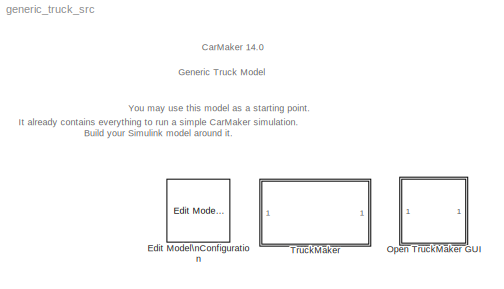
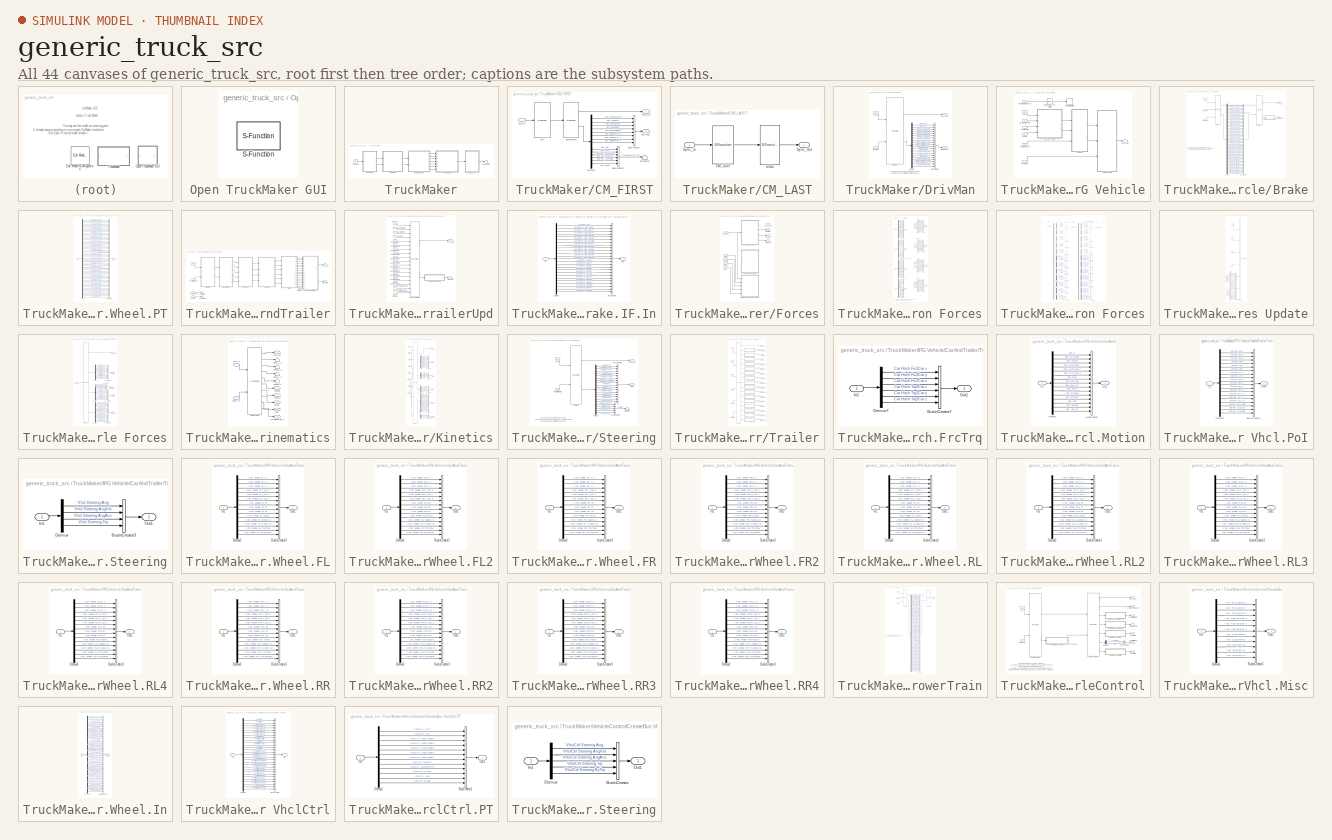
[diagram: thumbnail index - all 44 canvases of the model, root first then tree order]
MODEL generic_truck_src
KIND model
BLOCK [Reference] Edit Model\nConfiguration  REF=TruckMaker4SL/Edit Model\nConfiguration
  MultithreadedSim = auto
  Ports = []
  SFunctionModules = ''
  SID = 758
  SourceBlock = TruckMaker4SL/Edit Model\nConfiguration
  SourceProductName = TruckMaker4SL
BLOCK [SubSystem] Open TruckMaker GUI
  LoadFcn = if ~length(which('cmself')), cmenv; end
  OpenFcn = cmblockmagic('gui_fix_display'); TM_Simulink
  Ports = []
  RequestExecContextInheritance = off
  SID = 759
BLOCK [S-Function] Open TruckMaker GUI/S-Function
  EnableBusSupport = off
  FunctionName = cm_gui
  Ports = []
  SFcnIsStateOwnerBlock = off
  SFunctionDeploymentMode = off
  SID = 761
BLOCK [SubSystem] TruckMaker
  Ports = []
  RequestExecContextInheritance = off
  SID = 2126
  TreatAsAtomicUnit = on
BLOCK [SubSystem] TruckMaker/CM_FIRST
  Ports = [1, 2]
  RequestExecContextInheritance = off
  SID = 2127
BLOCK [BusCreator] TruckMaker/CM_FIRST/BusCreator1
  InheritFromInputs = on
  Inputs = 8
  Ports = [8, 1]
  SID = 2129
BLOCK [BusCreator] TruckMaker/CM_FIRST/BusCreator2
  InheritFromInputs = on
  Inputs = 6
  Ports = [6, 1]
  SID = 2130
BLOCK [Demux] TruckMaker/CM_FIRST/Demux1
  DisplayOption = none
  Outputs = 14
  Ports = [1, 14]
  SID = 2131
BLOCK [Outport] TruckMaker/CM_FIRST/Env.Misc
  Port = 2
  SID = 2136
  VectorParamsAs1DForOutWhenUnconnected = off
BLOCK [S-Function] TruckMaker/CM_FIRST/Environment
  EnableBusSupport = off
  FunctionName = TM_Sfun
  Parameters = 'Environment'
  Ports = [1, 2]
  SFcnIsStateOwnerBlock = off
  SFunctionDeploymentMode = off
  SID = 2132
BLOCK [S-Function] TruckMaker/CM_FIRST/IoIn
  EnableBusSupport = off
  FunctionName = TM_Sfun
  Parameters = 'IoIn'
  Ports = [1, 1]
  SFcnIsStateOwnerBlock = off
  SFunctionDeploymentMode = off
  SID = 2133
BLOCK [Inport] TruckMaker/CM_FIRST/Sync_In
  SID = 2128
BLOCK [Outport] TruckMaker/CM_FIRST/Sync_Out
  SID = 2135
  VectorParamsAs1DForOutWhenUnconnected = off
BLOCK [Terminator] TruckMaker/CM_FIRST/Terminator
  SID = 2134
BLOCK [SubSystem] TruckMaker/CM_LAST
  Ports = [1, 1]
  RequestExecContextInheritance = off
  SID = 2137
BLOCK [S-Function] TruckMaker/CM_LAST/CM_User
  EnableBusSupport = off
  FunctionName = TM_Sfun
  Parameters = 'CM_User'
  Ports = [1, 1]
  SFcnIsStateOwnerBlock = off
  SFunctionDeploymentMode = off
  SID = 2139
BLOCK [S-Function] TruckMaker/CM_LAST/IoOut
  EnableBusSupport = off
  FunctionName = TM_Sfun
  Parameters = 'IoOut'
  Ports = [1, 1]
  SFcnIsStateOwnerBlock = off
  SFunctionDeploymentMode = off
  SID = 2140
BLOCK [Inport] TruckMaker/CM_LAST/Sync_In
  SID = 2138
BLOCK [Outport] TruckMaker/CM_LAST/Sync_Out
  SID = 2141
  VectorParamsAs1DForOutWhenUnconnected = off
BLOCK [SubSystem] TruckMaker/DrivMan
  Ports = [2, 2]
  RequestExecContextInheritance = off
  SID = 2142
BLOCK [BusCreator] TruckMaker/DrivMan/BusCreator
  InheritFromInputs = on
  Inputs = 20
  Ports = [20, 1]
  SID = 2145
BLOCK [Demux] TruckMaker/DrivMan/Demux
  DisplayOption = none
  Outputs = 20
  Ports = [1, 20]
  SID = 2146
BLOCK [S-Function] TruckMaker/DrivMan/DrivMan
  EnableBusSupport = off
  FunctionName = TM_Sfun
  Parameters = 'DrivMan'
  Ports = [2, 2]
  SFcnIsStateOwnerBlock = off
  SFunctionDeploymentMode = off
  SID = 2147
BLOCK [Outport] TruckMaker/DrivMan/DrivMan.Out
  Port = 2
  SID = 2149
  VectorParamsAs1DForOutWhenUnconnected = off
BLOCK [Inport] TruckMaker/DrivMan/Env.Misc
  Port = 2
  SID = 2144
BLOCK [Inport] TruckMaker/DrivMan/Sync_In
  SID = 2143
BLOCK [Outport] TruckMaker/DrivMan/Sync_Out
  SID = 2148
  VectorParamsAs1DForOutWhenUnconnected = off
BLOCK [Ground] TruckMaker/Ground
  SID = 2151
BLOCK [SubSystem] TruckMaker/IPG Vehicle
  Ports = [7, 1]
  RequestExecContextInheritance = off
  SID = 2152
  TreatAsAtomicUnit = on
BLOCK [SubSystem] TruckMaker/IPG Vehicle/Brake
  Ports = [3, 2]
  RequestExecContextInheritance = off
  SID = 2600
BLOCK [S-Function] TruckMaker/IPG Vehicle/Brake/Brake
  EnableBusSupport = off
  FunctionName = TM_Sfun
  Parameters = 'Brake'
  Ports = [3, 2]
  SFcnIsStateOwnerBlock = off
  SFunctionDeploymentMode = off
  SID = 2604
BLOCK [Inport] TruckMaker/IPG Vehicle/Brake/Brake.IF.In
  Port = 2
  SID = 2602
BLOCK [S-Function] TruckMaker/IPG Vehicle/Brake/BrakeUpd
  EnableBusSupport = off
  FunctionName = TM_Sfun
  Parameters = 'BrakeUpd'
  Ports = [2, 2]
  SFcnIsStateOwnerBlock = off
  SFunctionDeploymentMode = off
  SID = 2605
BLOCK [BusCreator] TruckMaker/IPG Vehicle/Brake/BusCreator
  InheritFromInputs = on
  Inputs = 48
  Ports = [48, 1]
  SID = 2606
BLOCK [SubSystem] TruckMaker/IPG Vehicle/Brake/CreateBus Vhcl.Wheel.PT
  Ports = [1, 1]
  RequestExecContextInheritance = off
  SID = 2607
BLOCK [BusCreator] TruckMaker/IPG Vehicle/Brake/CreateBus Vhcl.Wheel.PT/BusCreator
  InheritFromInputs = on
  Inputs = 60
  Ports = [60, 1]
  SID = 2609
BLOCK [Demux] TruckMaker/IPG Vehicle/Brake/CreateBus Vhcl.Wheel.PT/Demux
  DisplayOption = none
  Outputs = 60
  Ports = [1, 60]
  SID = 2610
BLOCK [Inport] TruckMaker/IPG Vehicle/Brake/CreateBus Vhcl.Wheel.PT/In
  SID = 2608
BLOCK [Outport] TruckMaker/IPG Vehicle/Brake/CreateBus Vhcl.Wheel.PT/Out
  SID = 2611
  VectorParamsAs1DForOutWhenUnconnected = off
BLOCK [Demux] TruckMaker/IPG Vehicle/Brake/Demux
  DisplayOption = none
  Outputs = 48
  Ports = [1, 48]
  SID = 2612
BLOCK [Inport] TruckMaker/IPG Vehicle/Brake/Sync_In
  SID = 2601
BLOCK [Outport] TruckMaker/IPG Vehicle/Brake/Sync_Out
  SID = 2613
  VectorParamsAs1DForOutWhenUnconnected = off
BLOCK [Outport] TruckMaker/IPG Vehicle/Brake/Vhcl.Wheel.PT
  Port = 2
  SID = 2614
  VectorParamsAs1DForOutWhenUnconnected = off
BLOCK [Inport] TruckMaker/IPG Vehicle/Brake/VhclCtrl.Brake
  Port = 3
  SID = 2603
BLOCK [SubSystem] TruckMaker/IPG Vehicle/CarAndTrailer
  Ports = [4, 2]
  RequestExecContextInheritance = off
  SID = 2177
BLOCK [Outport] TruckMaker/IPG Vehicle/CarAndTrailer/Brake.IF.In
  Port = 2
  SID = 2543
  VectorParamsAs1DForOutWhenUnconnected = off
BLOCK [SubSystem] TruckMaker/IPG Vehicle/CarAndTrailer/CarAndTrailerUpd
  Ports = [18, 2]
  RequestExecContextInheritance = off
  SID = 2182
BLOCK [Outport] TruckMaker/IPG Vehicle/CarAndTrailer/CarAndTrailerUpd/Brake.IF.In
  Port = 2
  SID = 2208
  VectorParamsAs1DForOutWhenUnconnected = off
BLOCK [Inport] TruckMaker/IPG Vehicle/CarAndTrailer/CarAndTrailerUpd/Car.Hitch.FrcTrq
  Port = 17
  SID = 2199
BLOCK [S-Function] TruckMaker/IPG Vehicle/CarAndTrailer/CarAndTrailerUpd/CarAndTrailerUpd
  EnableBusSupport = off
  FunctionName = TM_Sfun
  Parameters = 'CarAndTrUpd'
  Ports = [18, 2]
  SFcnIsStateOwnerBlock = off
  SFunctionDeploymentMode = off
  SID = 2201
BLOCK [SubSystem] TruckMaker/IPG Vehicle/CarAndTrailer/CarAndTrailerUpd/CreateBus Brake.IF.In
  Ports = [1, 1]
  RequestExecContextInheritance = off
  SID = 2202
BLOCK [BusCreator] TruckMaker/IPG Vehicle/CarAndTrailer/CarAndTrailerUpd/CreateBus Brake.IF.In/BusCreator
  InheritFromInputs = on
  Inputs = 25
  Ports = [25, 1]
  SID = 2204
BLOCK [Demux] TruckMaker/IPG Vehicle/CarAndTrailer/CarAndTrailerUpd/CreateBus Brake.IF.In/Demux
  DisplayOption = none
  Outputs = 25
  Ports = [1, 25]
  SID = 2205
BLOCK [Inport] TruckMaker/IPG Vehicle/CarAndTrailer/CarAndTrailerUpd/CreateBus Brake.IF.In/In
  SID = 2203
BLOCK [Outport] TruckMaker/IPG Vehicle/CarAndTrailer/CarAndTrailerUpd/CreateBus Brake.IF.In/Out
  SID = 2206
  VectorParamsAs1DForOutWhenUnconnected = off
BLOCK [Inport] TruckMaker/IPG Vehicle/CarAndTrailer/CarAndTrailerUpd/Sync_In
  SID = 2183
BLOCK [Outport] TruckMaker/IPG Vehicle/CarAndTrailer/CarAndTrailerUpd/Sync_Out
  SID = 2207
  VectorParamsAs1DForOutWhenUnconnected = off
BLOCK [Inport] TruckMaker/IPG Vehicle/CarAndTrailer/CarAndTrailerUpd/Vhcl.Fr1A
  Port = 18
  SID = 2200
BLOCK [Inport] TruckMaker/IPG Vehicle/CarAndTrailer/CarAndTrailerUpd/Vhcl.Motion
  Port = 3
  SID = 2185
BLOCK [Inport] TruckMaker/IPG Vehicle/CarAndTrailer/CarAndTrailerUpd/Vhcl.PoI
  Port = 4
  SID = 2186
BLOCK [Inport] TruckMaker/IPG Vehicle/CarAndTrailer/CarAndTrailerUpd/Vhcl.Steering
  Port = 2
  SID = 2184
BLOCK [Inport] TruckMaker/IPG Vehicle/CarAndTrailer/CarAndTrailerUpd/Vhcl.Wheel.FL
  Port = 5
  SID = 2187
BLOCK [Inport] TruckMaker/IPG Vehicle/CarAndTrailer/CarAndTrailerUpd/Vhcl.Wheel.FL2
  Port = 11
  SID = 2193
BLOCK [Inport] TruckMaker/IPG Vehicle/CarAndTrailer/CarAndTrailerUpd/Vhcl.Wheel.FR
  Port = 6
  SID = 2188
BLOCK [Inport] TruckMaker/IPG Vehicle/CarAndTrailer/CarAndTrailerUpd/Vhcl.Wheel.FR2
  Port = 12
  SID = 2194
BLOCK [Inport] TruckMaker/IPG Vehicle/CarAndTrailer/CarAndTrailerUpd/Vhcl.Wheel.RL
  Port = 7
  SID = 2189
BLOCK [Inport] TruckMaker/IPG Vehicle/CarAndTrailer/CarAndTrailerUpd/Vhcl.Wheel.RL2
  Port = 9
  SID = 2191
BLOCK [Inport] TruckMaker/IPG Vehicle/CarAndTrailer/CarAndTrailerUpd/Vhcl.Wheel.RL3
  Port = 13
  SID = 2195
BLOCK [Inport] TruckMaker/IPG Vehicle/CarAndTrailer/CarAndTrailerUpd/Vhcl.Wheel.RL4
  Port = 15
  SID = 2197
BLOCK [Inport] TruckMaker/IPG Vehicle/CarAndTrailer/CarAndTrailerUpd/Vhcl.Wheel.RR
  Port = 8
  SID = 2190
BLOCK [Inport] TruckMaker/IPG Vehicle/CarAndTrailer/CarAndTrailerUpd/Vhcl.Wheel.RR2
  Port = 10
  SID = 2192
BLOCK [Inport] TruckMaker/IPG Vehicle/CarAndTrailer/CarAndTrailerUpd/Vhcl.Wheel.RR3
  Port = 14
  SID = 2196
BLOCK [Inport] TruckMaker/IPG Vehicle/CarAndTrailer/CarAndTrailerUpd/Vhcl.Wheel.RR4
  Port = 16
  SID = 2198
BLOCK [SubSystem] TruckMaker/IPG Vehicle/CarAndTrailer/Forces
  Ports = [5, 4]
  RequestExecContextInheritance = off
  SID = 2209
BLOCK [Outport] TruckMaker/IPG Vehicle/CarAndTrailer/Forces/Car.Aero
  Port = 3
  SID = 2374
  VectorParamsAs1DForOutWhenUnconnected = off
BLOCK [Outport] TruckMaker/IPG Vehicle/CarAndTrailer/Forces/Car.Load
  Port = 4
  SID = 2375
  VectorParamsAs1DForOutWhenUnconnected = off
BLOCK [Outport] TruckMaker/IPG Vehicle/CarAndTrailer/Forces/Car.Virtual
  Port = 2
  SID = 2373
  VectorParamsAs1DForOutWhenUnconnected = off
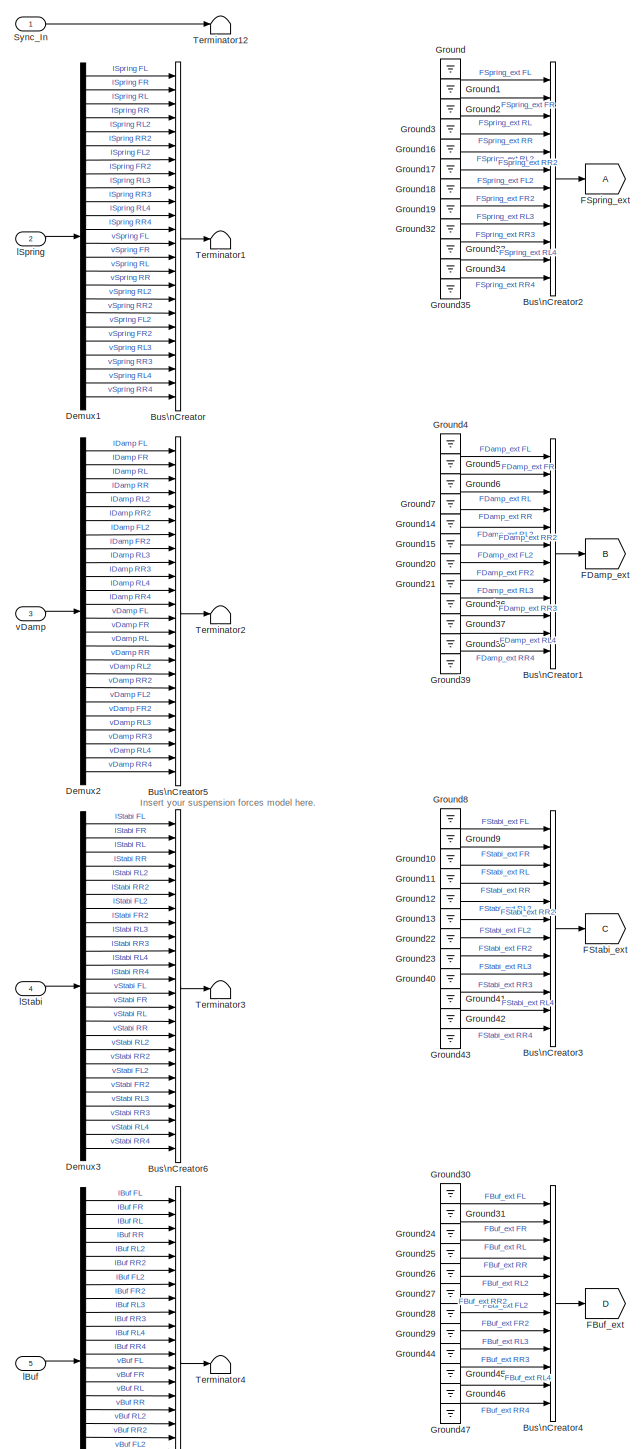
[diagram: TruckMaker/IPG Vehicle/CarAndTrailer/Forces/External Suspension Forces - part 1/2, most of the canvas]
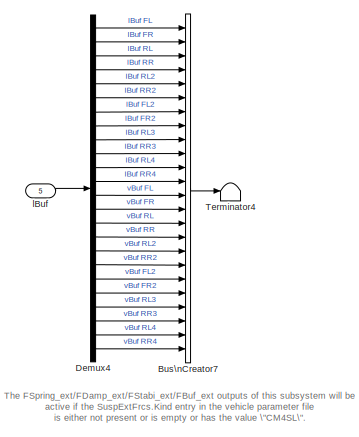
[diagram: TruckMaker/IPG Vehicle/CarAndTrailer/Forces/External Suspension Forces - part 2/2, bottom left region]
BLOCK [SubSystem] TruckMaker/IPG Vehicle/CarAndTrailer/Forces/External Suspension Forces
  Ports = [5]
  RequestExecContextInheritance = off
  SID = 2215
BLOCK [BusCreator] TruckMaker/IPG Vehicle/CarAndTrailer/Forces/External Suspension Forces/Bus\nCreator
  DisplayOption = bar
  InheritFromInputs = on
  Inputs = 24
  Ports = [24, 1]
  SID = 2221
BLOCK [BusCreator] TruckMaker/IPG Vehicle/CarAndTrailer/Forces/External Suspension Forces/Bus\nCreator1
  DisplayOption = bar
  InheritFromInputs = on
  Inputs = 12
  Ports = [12, 1]
  SID = 2222
BLOCK [BusCreator] TruckMaker/IPG Vehicle/CarAndTrailer/Forces/External Suspension Forces/Bus\nCreator2
  DisplayOption = bar
  InheritFromInputs = on
  Inputs = 12
  Ports = [12, 1]
  SID = 2223
BLOCK [BusCreator] TruckMaker/IPG Vehicle/CarAndTrailer/Forces/External Suspension Forces/Bus\nCreator3
  DisplayOption = bar
  InheritFromInputs = on
  Inputs = 12
  Ports = [12, 1]
  SID = 2224
BLOCK [BusCreator] TruckMaker/IPG Vehicle/CarAndTrailer/Forces/External Suspension Forces/Bus\nCreator4
  DisplayOption = bar
  InheritFromInputs = on
  Inputs = 12
  Ports = [12, 1]
  SID = 2225
BLOCK [BusCreator] TruckMaker/IPG Vehicle/CarAndTrailer/Forces/External Suspension Forces/Bus\nCreator5
  DisplayOption = bar
  InheritFromInputs = on
  Inputs = 24
  Ports = [24, 1]
  SID = 2226
BLOCK [BusCreator] TruckMaker/IPG Vehicle/CarAndTrailer/Forces/External Suspension Forces/Bus\nCreator6
  DisplayOption = bar
  InheritFromInputs = on
  Inputs = 24
  Ports = [24, 1]
  SID = 2227
BLOCK [BusCreator] TruckMaker/IPG Vehicle/CarAndTrailer/Forces/External Suspension Forces/Bus\nCreator7
  DisplayOption = bar
  InheritFromInputs = on
  Inputs = 24
  Ports = [24, 1]
  SID = 2228
BLOCK [Demux] TruckMaker/IPG Vehicle/CarAndTrailer/Forces/External Suspension Forces/Demux1
  DisplayOption = none
  Outputs = 24
  Ports = [1, 24]
  SID = 2229
BLOCK [Demux] TruckMaker/IPG Vehicle/CarAndTrailer/Forces/External Suspension Forces/Demux2
  DisplayOption = none
  Outputs = 24
  Ports = [1, 24]
  SID = 2230
BLOCK [Demux] TruckMaker/IPG Vehicle/CarAndTrailer/Forces/External Suspension Forces/Demux3
  DisplayOption = none
  Outputs = 24
  Ports = [1, 24]
  SID = 2231
BLOCK [Demux] TruckMaker/IPG Vehicle/CarAndTrailer/Forces/External Suspension Forces/Demux4
  DisplayOption = none
  Outputs = 24
  Ports = [1, 24]
  SID = 2232
BLOCK [Goto] TruckMaker/IPG Vehicle/CarAndTrailer/Forces/External Suspension Forces/FBuf_ext
  GotoTag = D
  SID = 2627
  TagVisibility = global
BLOCK [Goto] TruckMaker/IPG Vehicle/CarAndTrailer/Forces/External Suspension Forces/FDamp_ext
  GotoTag = B
  SID = 2624
  TagVisibility = global
BLOCK [Goto] TruckMaker/IPG Vehicle/CarAndTrailer/Forces/External Suspension Forces/FSpring_ext
  SID = 2625
  TagVisibility = global
BLOCK [Goto] TruckMaker/IPG Vehicle/CarAndTrailer/Forces/External Suspension Forces/FStabi_ext
  GotoTag = C
  SID = 2626
  TagVisibility = global
BLOCK [Ground] TruckMaker/IPG Vehicle/CarAndTrailer/Forces/External Suspension Forces/Ground
  SID = 2233
BLOCK [Ground] TruckMaker/IPG Vehicle/CarAndTrailer/Forces/External Suspension Forces/Ground1
  SID = 2234
BLOCK [Ground] TruckMaker/IPG Vehicle/CarAndTrailer/Forces/External Suspension Forces/Ground10
  SID = 2235
BLOCK [Ground] TruckMaker/IPG Vehicle/CarAndTrailer/Forces/External Suspension Forces/Ground11
  SID = 2236
BLOCK [Ground] TruckMaker/IPG Vehicle/CarAndTrailer/Forces/External Suspension Forces/Ground12
  SID = 2237
BLOCK [Ground] TruckMaker/IPG Vehicle/CarAndTrailer/Forces/External Suspension Forces/Ground13
  SID = 2238
BLOCK [Ground] TruckMaker/IPG Vehicle/CarAndTrailer/Forces/External Suspension Forces/Ground14
  SID = 2239
BLOCK [Ground] TruckMaker/IPG Vehicle/CarAndTrailer/Forces/External Suspension Forces/Ground15
  SID = 2240
BLOCK [Ground] TruckMaker/IPG Vehicle/CarAndTrailer/Forces/External Suspension Forces/Ground16
  SID = 2241
BLOCK [Ground] TruckMaker/IPG Vehicle/CarAndTrailer/Forces/External Suspension Forces/Ground17
  SID = 2242
BLOCK [Ground] TruckMaker/IPG Vehicle/CarAndTrailer/Forces/External Suspension Forces/Ground18
  SID = 2243
BLOCK [Ground] TruckMaker/IPG Vehicle/CarAndTrailer/Forces/External Suspension Forces/Ground19
  SID = 2244
BLOCK [Ground] TruckMaker/IPG Vehicle/CarAndTrailer/Forces/External Suspension Forces/Ground2
  SID = 2245
BLOCK [Ground] TruckMaker/IPG Vehicle/CarAndTrailer/Forces/External Suspension Forces/Ground20
  SID = 2246
BLOCK [Ground] TruckMaker/IPG Vehicle/CarAndTrailer/Forces/External Suspension Forces/Ground21
  SID = 2247
BLOCK [Ground] TruckMaker/IPG Vehicle/CarAndTrailer/Forces/External Suspension Forces/Ground22
  SID = 2248
BLOCK [Ground] TruckMaker/IPG Vehicle/CarAndTrailer/Forces/External Suspension Forces/Ground23
  SID = 2249
BLOCK [Ground] TruckMaker/IPG Vehicle/CarAndTrailer/Forces/External Suspension Forces/Ground24
  SID = 2250
BLOCK [Ground] TruckMaker/IPG Vehicle/CarAndTrailer/Forces/External Suspension Forces/Ground25
  SID = 2251
BLOCK [Ground] TruckMaker/IPG Vehicle/CarAndTrailer/Forces/External Suspension Forces/Ground26
  SID = 2252
BLOCK [Ground] TruckMaker/IPG Vehicle/CarAndTrailer/Forces/External Suspension Forces/Ground27
  SID = 2253
BLOCK [Ground] TruckMaker/IPG Vehicle/CarAndTrailer/Forces/External Suspension Forces/Ground28
  SID = 2254
BLOCK [Ground] TruckMaker/IPG Vehicle/CarAndTrailer/Forces/External Suspension Forces/Ground29
  SID = 2255
BLOCK [Ground] TruckMaker/IPG Vehicle/CarAndTrailer/Forces/External Suspension Forces/Ground3
  SID = 2256
BLOCK [Ground] TruckMaker/IPG Vehicle/CarAndTrailer/Forces/External Suspension Forces/Ground30
  SID = 2257
BLOCK [Ground] TruckMaker/IPG Vehicle/CarAndTrailer/Forces/External Suspension Forces/Ground31
  SID = 2258
BLOCK [Ground] TruckMaker/IPG Vehicle/CarAndTrailer/Forces/External Suspension Forces/Ground32
  SID = 2259
BLOCK [Ground] TruckMaker/IPG Vehicle/CarAndTrailer/Forces/External Suspension Forces/Ground33
  SID = 2260
BLOCK [Ground] TruckMaker/IPG Vehicle/CarAndTrailer/Forces/External Suspension Forces/Ground34
  SID = 2261
BLOCK [Ground] TruckMaker/IPG Vehicle/CarAndTrailer/Forces/External Suspension Forces/Ground35
  SID = 2262
BLOCK [Ground] TruckMaker/IPG Vehicle/CarAndTrailer/Forces/External Suspension Forces/Ground36
  SID = 2263
BLOCK [Ground] TruckMaker/IPG Vehicle/CarAndTrailer/Forces/External Suspension Forces/Ground37
  SID = 2264
BLOCK [Ground] TruckMaker/IPG Vehicle/CarAndTrailer/Forces/External Suspension Forces/Ground38
  SID = 2265
BLOCK [Ground] TruckMaker/IPG Vehicle/CarAndTrailer/Forces/External Suspension Forces/Ground39
  SID = 2266
BLOCK [Ground] TruckMaker/IPG Vehicle/CarAndTrailer/Forces/External Suspension Forces/Ground4
  SID = 2267
BLOCK [Ground] TruckMaker/IPG Vehicle/CarAndTrailer/Forces/External Suspension Forces/Ground40
  SID = 2268
BLOCK [Ground] TruckMaker/IPG Vehicle/CarAndTrailer/Forces/External Suspension Forces/Ground41
  SID = 2269
BLOCK [Ground] TruckMaker/IPG Vehicle/CarAndTrailer/Forces/External Suspension Forces/Ground42
  SID = 2270
BLOCK [Ground] TruckMaker/IPG Vehicle/CarAndTrailer/Forces/External Suspension Forces/Ground43
  SID = 2271
BLOCK [Ground] TruckMaker/IPG Vehicle/CarAndTrailer/Forces/External Suspension Forces/Ground44
  SID = 2272
BLOCK [Ground] TruckMaker/IPG Vehicle/CarAndTrailer/Forces/External Suspension Forces/Ground45
  SID = 2273
BLOCK [Ground] TruckMaker/IPG Vehicle/CarAndTrailer/Forces/External Suspension Forces/Ground46
  SID = 2274
BLOCK [Ground] TruckMaker/IPG Vehicle/CarAndTrailer/Forces/External Suspension Forces/Ground47
  SID = 2275
BLOCK [Ground] TruckMaker/IPG Vehicle/CarAndTrailer/Forces/External Suspension Forces/Ground5
  SID = 2276
BLOCK [Ground] TruckMaker/IPG Vehicle/CarAndTrailer/Forces/External Suspension Forces/Ground6
  SID = 2277
BLOCK [Ground] TruckMaker/IPG Vehicle/CarAndTrailer/Forces/External Suspension Forces/Ground7
  SID = 2278
BLOCK [Ground] TruckMaker/IPG Vehicle/CarAndTrailer/Forces/External Suspension Forces/Ground8
  SID = 2279
BLOCK [Ground] TruckMaker/IPG Vehicle/CarAndTrailer/Forces/External Suspension Forces/Ground9
  SID = 2280
BLOCK [Inport] TruckMaker/IPG Vehicle/CarAndTrailer/Forces/External Suspension Forces/Sync_In
  SID = 2216
BLOCK [Terminator] TruckMaker/IPG Vehicle/CarAndTrailer/Forces/External Suspension Forces/Terminator1
  SID = 2281
BLOCK [Terminator] TruckMaker/IPG Vehicle/CarAndTrailer/Forces/External Suspension Forces/Terminator12
  SID = 2282
BLOCK [Terminator] TruckMaker/IPG Vehicle/CarAndTrailer/Forces/External Suspension Forces/Terminator2
  SID = 2283
BLOCK [Terminator] TruckMaker/IPG Vehicle/CarAndTrailer/Forces/External Suspension Forces/Terminator3
  SID = 2284
BLOCK [Terminator] TruckMaker/IPG Vehicle/CarAndTrailer/Forces/External Suspension Forces/Terminator4
  SID = 2285
BLOCK [Inport] TruckMaker/IPG Vehicle/CarAndTrailer/Forces/External Suspension Forces/lBuf
  Port = 5
  SID = 2220
BLOCK [Inport] TruckMaker/IPG Vehicle/CarAndTrailer/Forces/External Suspension Forces/lSpring
  Port = 2
  SID = 2217
BLOCK [Inport] TruckMaker/IPG Vehicle/CarAndTrailer/Forces/External Suspension Forces/lStabi
  Port = 4
  SID = 2219
BLOCK [Inport] TruckMaker/IPG Vehicle/CarAndTrailer/Forces/External Suspension Forces/vDamp
  Port = 3
  SID = 2218
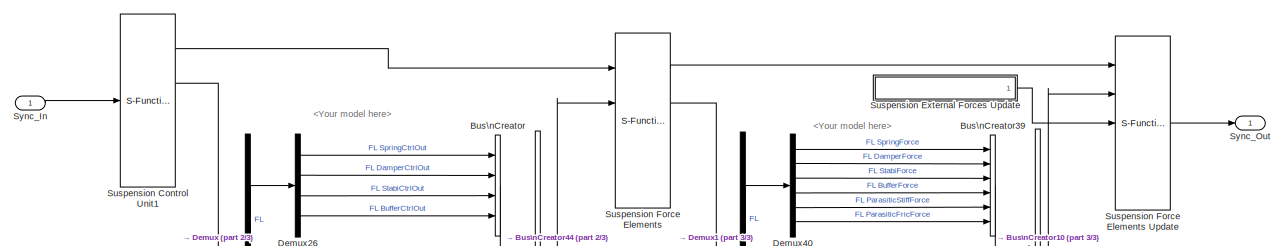
[diagram: TruckMaker/IPG Vehicle/CarAndTrailer/Forces/Suspension Forces - part 1/3, full width, top band]
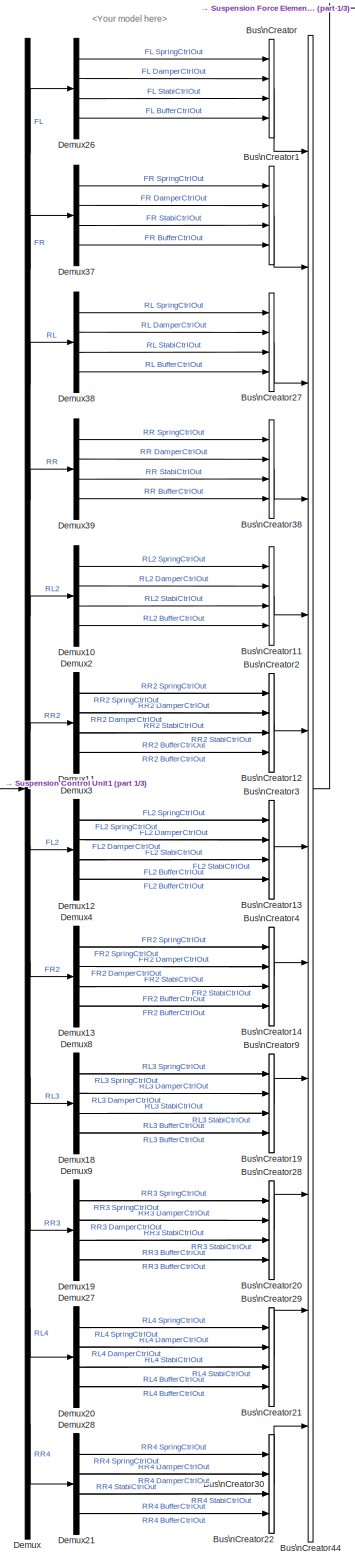
[diagram: TruckMaker/IPG Vehicle/CarAndTrailer/Forces/Suspension Forces - part 2/3, left side, full height]
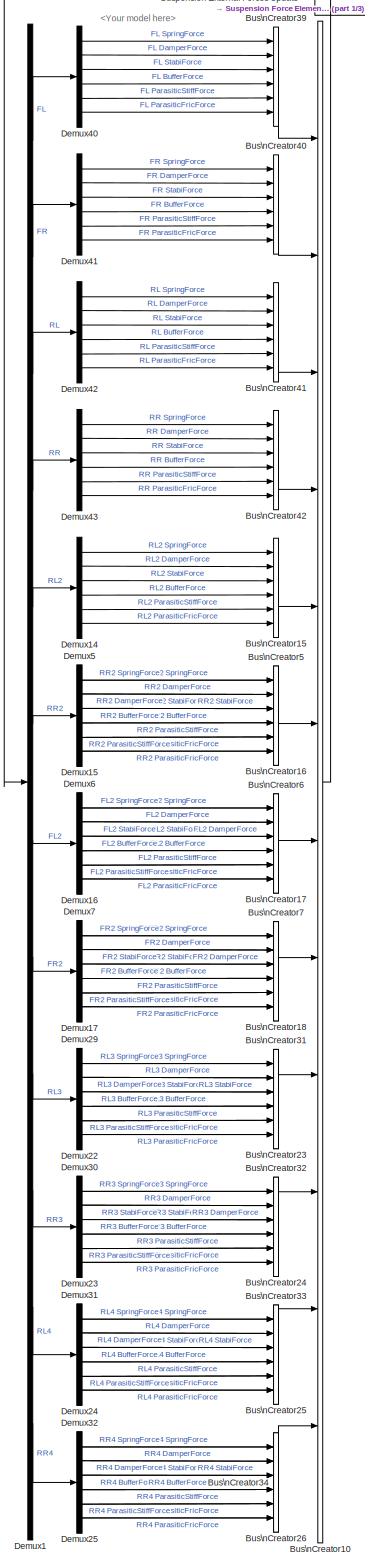
[diagram: TruckMaker/IPG Vehicle/CarAndTrailer/Forces/Suspension Forces - part 3/3, right side, full height]
BLOCK [SubSystem] TruckMaker/IPG Vehicle/CarAndTrailer/Forces/Suspension Forces
  Ports = [1, 1]
  RequestExecContextInheritance = off
  SID = 2292
BLOCK [BusCreator] TruckMaker/IPG Vehicle/CarAndTrailer/Forces/Suspension Forces/Bus\nCreator
  DisplayOption = bar
  InheritFromInputs = on
  Inputs = 4
  Ports = [4, 1]
  SID = 2991
BLOCK [BusCreator] TruckMaker/IPG Vehicle/CarAndTrailer/Forces/Suspension Forces/Bus\nCreator1
  DisplayOption = bar
  InheritFromInputs = on
  Inputs = 4
  Ports = [4, 1]
  SID = 2992
BLOCK [BusCreator] TruckMaker/IPG Vehicle/CarAndTrailer/Forces/Suspension Forces/Bus\nCreator10
  DisplayOption = bar
  InheritFromInputs = on
  Inputs = 12
  Ports = [12, 1]
  SID = 2993
BLOCK [BusCreator] TruckMaker/IPG Vehicle/CarAndTrailer/Forces/Suspension Forces/Bus\nCreator11
  DisplayOption = bar
  InheritFromInputs = on
  Inputs = 4
  Ports = [4, 1]
  SID = 2994
BLOCK [BusCreator] TruckMaker/IPG Vehicle/CarAndTrailer/Forces/Suspension Forces/Bus\nCreator12
  DisplayOption = bar
  InheritFromInputs = on
  Inputs = 4
  Ports = [4, 1]
  SID = 2302
BLOCK [BusCreator] TruckMaker/IPG Vehicle/CarAndTrailer/Forces/Suspension Forces/Bus\nCreator13
  DisplayOption = bar
  InheritFromInputs = on
  Inputs = 4
  Ports = [4, 1]
  SID = 2303
BLOCK [BusCreator] TruckMaker/IPG Vehicle/CarAndTrailer/Forces/Suspension Forces/Bus\nCreator14
  DisplayOption = bar
  InheritFromInputs = on
  Inputs = 4
  Ports = [4, 1]
  SID = 2304
BLOCK [BusCreator] TruckMaker/IPG Vehicle/CarAndTrailer/Forces/Suspension Forces/Bus\nCreator15
  DisplayOption = bar
  InheritFromInputs = on
  Inputs = 6
  Ports = [6, 1]
  SID = 2998
BLOCK [BusCreator] TruckMaker/IPG Vehicle/CarAndTrailer/Forces/Suspension Forces/Bus\nCreator16
  DisplayOption = bar
  InheritFromInputs = on
  Inputs = 6
  Ports = [6, 1]
  SID = 2306
BLOCK [BusCreator] TruckMaker/IPG Vehicle/CarAndTrailer/Forces/Suspension Forces/Bus\nCreator17
  DisplayOption = bar
  InheritFromInputs = on
  Inputs = 6
  Ports = [6, 1]
  SID = 2307
BLOCK [BusCreator] TruckMaker/IPG Vehicle/CarAndTrailer/Forces/Suspension Forces/Bus\nCreator18
  DisplayOption = bar
  InheritFromInputs = on
  Inputs = 6
  Ports = [6, 1]
  SID = 2308
BLOCK [BusCreator] TruckMaker/IPG Vehicle/CarAndTrailer/Forces/Suspension Forces/Bus\nCreator19
  DisplayOption = bar
  InheritFromInputs = on
  Inputs = 4
  Ports = [4, 1]
  SID = 2309
BLOCK [BusCreator] TruckMaker/IPG Vehicle/CarAndTrailer/Forces/Suspension Forces/Bus\nCreator2
  DisplayOption = bar
  InheritFromInputs = on
  Inputs = 4
  Ports = [4, 1]
  SID = 2995
BLOCK [BusCreator] TruckMaker/IPG Vehicle/CarAndTrailer/Forces/Suspension Forces/Bus\nCreator20
  DisplayOption = bar
  InheritFromInputs = on
  Inputs = 4
  Ports = [4, 1]
  SID = 2311
BLOCK [BusCreator] TruckMaker/IPG Vehicle/CarAndTrailer/Forces/Suspension Forces/Bus\nCreator21
  DisplayOption = bar
  InheritFromInputs = on
  Inputs = 4
  Ports = [4, 1]
  SID = 2312
BLOCK [BusCreator] TruckMaker/IPG Vehicle/CarAndTrailer/Forces/Suspension Forces/Bus\nCreator22
  DisplayOption = bar
  InheritFromInputs = on
  Inputs = 4
  Ports = [4, 1]
  SID = 2313
BLOCK [BusCreator] TruckMaker/IPG Vehicle/CarAndTrailer/Forces/Suspension Forces/Bus\nCreator23
  DisplayOption = bar
  InheritFromInputs = on
  Inputs = 6
  Ports = [6, 1]
  SID = 2314
BLOCK [BusCreator] TruckMaker/IPG Vehicle/CarAndTrailer/Forces/Suspension Forces/Bus\nCreator24
  DisplayOption = bar
  InheritFromInputs = on
  Inputs = 6
  Ports = [6, 1]
  SID = 2315
BLOCK [BusCreator] TruckMaker/IPG Vehicle/CarAndTrailer/Forces/Suspension Forces/Bus\nCreator25
  DisplayOption = bar
  InheritFromInputs = on
  Inputs = 6
  Ports = [6, 1]
  SID = 2316
BLOCK [BusCreator] TruckMaker/IPG Vehicle/CarAndTrailer/Forces/Suspension Forces/Bus\nCreator26
  DisplayOption = bar
  InheritFromInputs = on
  Inputs = 6
  Ports = [6, 1]
  SID = 2317
BLOCK [BusCreator] TruckMaker/IPG Vehicle/CarAndTrailer/Forces/Suspension Forces/Bus\nCreator27
  DisplayOption = bar
  InheritFromInputs = on
  Inputs = 4
  Ports = [4, 1]
  SID = 3003
BLOCK [BusCreator] TruckMaker/IPG Vehicle/CarAndTrailer/Forces/Suspension Forces/Bus\nCreator28
  DisplayOption = bar
  InheritFromInputs = on
  Inputs = 4
  Ports = [4, 1]
  SID = 3004
BLOCK [BusCreator] TruckMaker/IPG Vehicle/CarAndTrailer/Forces/Suspension Forces/Bus\nCreator29
  DisplayOption = bar
  InheritFromInputs = on
  Inputs = 4
  Ports = [4, 1]
  SID = 3005
BLOCK [BusCreator] TruckMaker/IPG Vehicle/CarAndTrailer/Forces/Suspension Forces/Bus\nCreator3
  DisplayOption = bar
  InheritFromInputs = on
  Inputs = 4
  Ports = [4, 1]
  SID = 2996
BLOCK [BusCreator] TruckMaker/IPG Vehicle/CarAndTrailer/Forces/Suspension Forces/Bus\nCreator30
  DisplayOption = bar
  InheritFromInputs = on
  Inputs = 4
  Ports = [4, 1]
  SID = 3006
BLOCK [BusCreator] TruckMaker/IPG Vehicle/CarAndTrailer/Forces/Suspension Forces/Bus\nCreator31
  DisplayOption = bar
  InheritFromInputs = on
  Inputs = 6
  Ports = [6, 1]
  SID = 3007
BLOCK [BusCreator] TruckMaker/IPG Vehicle/CarAndTrailer/Forces/Suspension Forces/Bus\nCreator32
  DisplayOption = bar
  InheritFromInputs = on
  Inputs = 6
  Ports = [6, 1]
  SID = 3008
BLOCK [BusCreator] TruckMaker/IPG Vehicle/CarAndTrailer/Forces/Suspension Forces/Bus\nCreator33
  DisplayOption = bar
  InheritFromInputs = on
  Inputs = 6
  Ports = [6, 1]
  SID = 3009
BLOCK [BusCreator] TruckMaker/IPG Vehicle/CarAndTrailer/Forces/Suspension Forces/Bus\nCreator34
  DisplayOption = bar
  InheritFromInputs = on
  Inputs = 6
  Ports = [6, 1]
  SID = 3010
BLOCK [BusCreator] TruckMaker/IPG Vehicle/CarAndTrailer/Forces/Suspension Forces/Bus\nCreator38
  DisplayOption = bar
  InheritFromInputs = on
  Inputs = 4
  Ports = [4, 1]
  SID = 3014
BLOCK [BusCreator] TruckMaker/IPG Vehicle/CarAndTrailer/Forces/Suspension Forces/Bus\nCreator39
  DisplayOption = bar
  InheritFromInputs = on
  Inputs = 6
  Ports = [6, 1]
  SID = 3015
BLOCK [BusCreator] TruckMaker/IPG Vehicle/CarAndTrailer/Forces/Suspension Forces/Bus\nCreator4
  DisplayOption = bar
  InheritFromInputs = on
  Inputs = 4
  Ports = [4, 1]
  SID = 2997
BLOCK [BusCreator] TruckMaker/IPG Vehicle/CarAndTrailer/Forces/Suspension Forces/Bus\nCreator40
  DisplayOption = bar
  InheritFromInputs = on
  Inputs = 6
  Ports = [6, 1]
  SID = 3016
BLOCK [BusCreator] TruckMaker/IPG Vehicle/CarAndTrailer/Forces/Suspension Forces/Bus\nCreator41
  DisplayOption = bar
  InheritFromInputs = on
  Inputs = 6
  Ports = [6, 1]
  SID = 3017
BLOCK [BusCreator] TruckMaker/IPG Vehicle/CarAndTrailer/Forces/Suspension Forces/Bus\nCreator42
  DisplayOption = bar
  InheritFromInputs = on
  Inputs = 6
  Ports = [6, 1]
  SID = 3018
BLOCK [BusCreator] TruckMaker/IPG Vehicle/CarAndTrailer/Forces/Suspension Forces/Bus\nCreator44
  DisplayOption = bar
  InheritFromInputs = on
  Inputs = 12
  Ports = [12, 1]
  SID = 3020
BLOCK [BusCreator] TruckMaker/IPG Vehicle/CarAndTrailer/Forces/Suspension Forces/Bus\nCreator5
  DisplayOption = bar
  InheritFromInputs = on
  Inputs = 6
  Ports = [6, 1]
  SID = 2999
BLOCK [BusCreator] TruckMaker/IPG Vehicle/CarAndTrailer/Forces/Suspension Forces/Bus\nCreator6
  DisplayOption = bar
  InheritFromInputs = on
  Inputs = 6
  Ports = [6, 1]
  SID = 3000
BLOCK [BusCreator] TruckMaker/IPG Vehicle/CarAndTrailer/Forces/Suspension Forces/Bus\nCreator7
  DisplayOption = bar
  InheritFromInputs = on
  Inputs = 6
  Ports = [6, 1]
  SID = 3001
BLOCK [BusCreator] TruckMaker/IPG Vehicle/CarAndTrailer/Forces/Suspension Forces/Bus\nCreator9
  DisplayOption = bar
  InheritFromInputs = on
  Inputs = 4
  Ports = [4, 1]
  SID = 3002
BLOCK [Demux] TruckMaker/IPG Vehicle/CarAndTrailer/Forces/Suspension Forces/Demux
  Outputs = 12
  Ports = [1, 12]
  SID = 3021
BLOCK [Demux] TruckMaker/IPG Vehicle/CarAndTrailer/Forces/Suspension Forces/Demux1
  Outputs = 12
  Ports = [1, 12]
  SID = 3022
BLOCK [Demux] TruckMaker/IPG Vehicle/CarAndTrailer/Forces/Suspension Forces/Demux10
  Ports = [1, 4]
  SID = 3023
BLOCK [Demux] TruckMaker/IPG Vehicle/CarAndTrailer/Forces/Suspension Forces/Demux11
  Ports = [1, 4]
  SID = 2328
BLOCK [Demux] TruckMaker/IPG Vehicle/CarAndTrailer/Forces/Suspension Forces/Demux12
  Ports = [1, 4]
  SID = 2329
BLOCK [Demux] TruckMaker/IPG Vehicle/CarAndTrailer/Forces/Suspension Forces/Demux13
  Ports = [1, 4]
  SID = 2330
BLOCK [Demux] TruckMaker/IPG Vehicle/CarAndTrailer/Forces/Suspension Forces/Demux14
  Outputs = 6
  Ports = [1, 6]
  SID = 3027
BLOCK [Demux] TruckMaker/IPG Vehicle/CarAndTrailer/Forces/Suspension Forces/Demux15
  Outputs = 6
  Ports = [1, 6]
  SID = 2332
BLOCK [Demux] TruckMaker/IPG Vehicle/CarAndTrailer/Forces/Suspension Forces/Demux16
  Outputs = 6
  Ports = [1, 6]
  SID = 2333
BLOCK [Demux] TruckMaker/IPG Vehicle/CarAndTrailer/Forces/Suspension Forces/Demux17
  Outputs = 6
  Ports = [1, 6]
  SID = 2334
BLOCK [Demux] TruckMaker/IPG Vehicle/CarAndTrailer/Forces/Suspension Forces/Demux18
  Ports = [1, 4]
  SID = 2335
BLOCK [Demux] TruckMaker/IPG Vehicle/CarAndTrailer/Forces/Suspension Forces/Demux19
  Ports = [1, 4]
  SID = 2336
BLOCK [Demux] TruckMaker/IPG Vehicle/CarAndTrailer/Forces/Suspension Forces/Demux2
  Ports = [1, 4]
  SID = 3024
BLOCK [Demux] TruckMaker/IPG Vehicle/CarAndTrailer/Forces/Suspension Forces/Demux20
  Ports = [1, 4]
  SID = 2338
BLOCK [Demux] TruckMaker/IPG Vehicle/CarAndTrailer/Forces/Suspension Forces/Demux21
  Ports = [1, 4]
  SID = 2339
BLOCK [Demux] TruckMaker/IPG Vehicle/CarAndTrailer/Forces/Suspension Forces/Demux22
  Outputs = 6
  Ports = [1, 6]
  SID = 2340
BLOCK [Demux] TruckMaker/IPG Vehicle/CarAndTrailer/Forces/Suspension Forces/Demux23
  Outputs = 6
  Ports = [1, 6]
  SID = 2341
BLOCK [Demux] TruckMaker/IPG Vehicle/CarAndTrailer/Forces/Suspension Forces/Demux24
  Outputs = 6
  Ports = [1, 6]
  SID = 2342
BLOCK [Demux] TruckMaker/IPG Vehicle/CarAndTrailer/Forces/Suspension Forces/Demux25
  Outputs = 6
  Ports = [1, 6]
  SID = 2343
BLOCK [Demux] TruckMaker/IPG Vehicle/CarAndTrailer/Forces/Suspension Forces/Demux26
  Ports = [1, 4]
  SID = 3033
BLOCK [Demux] TruckMaker/IPG Vehicle/CarAndTrailer/Forces/Suspension Forces/Demux27
  Ports = [1, 4]
  SID = 3034
BLOCK [Demux] TruckMaker/IPG Vehicle/CarAndTrailer/Forces/Suspension Forces/Demux28
  Ports = [1, 4]
  SID = 3035
BLOCK [Demux] TruckMaker/IPG Vehicle/CarAndTrailer/Forces/Suspension Forces/Demux29
  Outputs = 6
  Ports = [1, 6]
  SID = 3036
BLOCK [Demux] TruckMaker/IPG Vehicle/CarAndTrailer/Forces/Suspension Forces/Demux3
  Ports = [1, 4]
  SID = 3025
BLOCK [Demux] TruckMaker/IPG Vehicle/CarAndTrailer/Forces/Suspension Forces/Demux30
  Outputs = 6
  Ports = [1, 6]
  SID = 3037
BLOCK [Demux] TruckMaker/IPG Vehicle/CarAndTrailer/Forces/Suspension Forces/Demux31
  Outputs = 6
  Ports = [1, 6]
  SID = 3038
BLOCK [Demux] TruckMaker/IPG Vehicle/CarAndTrailer/Forces/Suspension Forces/Demux32
  Outputs = 6
  Ports = [1, 6]
  SID = 3039
BLOCK [Demux] TruckMaker/IPG Vehicle/CarAndTrailer/Forces/Suspension Forces/Demux37
  Ports = [1, 4]
  SID = 3044
BLOCK [Demux] TruckMaker/IPG Vehicle/CarAndTrailer/Forces/Suspension Forces/Demux38
  Ports = [1, 4]
  SID = 3045
BLOCK [Demux] TruckMaker/IPG Vehicle/CarAndTrailer/Forces/Suspension Forces/Demux39
  Ports = [1, 4]
  SID = 3046
BLOCK [Demux] TruckMaker/IPG Vehicle/CarAndTrailer/Forces/Suspension Forces/Demux4
  Ports = [1, 4]
  SID = 3026
BLOCK [Demux] TruckMaker/IPG Vehicle/CarAndTrailer/Forces/Suspension Forces/Demux40
  Outputs = 6
  Ports = [1, 6]
  SID = 3047
BLOCK [Demux] TruckMaker/IPG Vehicle/CarAndTrailer/Forces/Suspension Forces/Demux41
  Outputs = 6
  Ports = [1, 6]
  SID = 3048
BLOCK [Demux] TruckMaker/IPG Vehicle/CarAndTrailer/Forces/Suspension Forces/Demux42
  Outputs = 6
  Ports = [1, 6]
  SID = 3049
BLOCK [Demux] TruckMaker/IPG Vehicle/CarAndTrailer/Forces/Suspension Forces/Demux43
  Outputs = 6
  Ports = [1, 6]
  SID = 3050
BLOCK [Demux] TruckMaker/IPG Vehicle/CarAndTrailer/Forces/Suspension Forces/Demux5
  Outputs = 6
  Ports = [1, 6]
  SID = 3028
BLOCK [Demux] TruckMaker/IPG Vehicle/CarAndTrailer/Forces/Suspension Forces/Demux6
  Outputs = 6
  Ports = [1, 6]
  SID = 3029
BLOCK [Demux] TruckMaker/IPG Vehicle/CarAndTrailer/Forces/Suspension Forces/Demux7
  Outputs = 6
  Ports = [1, 6]
  SID = 3030
BLOCK [Demux] TruckMaker/IPG Vehicle/CarAndTrailer/Forces/Suspension Forces/Demux8
  Ports = [1, 4]
  SID = 3031
BLOCK [Demux] TruckMaker/IPG Vehicle/CarAndTrailer/Forces/Suspension Forces/Demux9
  Ports = [1, 4]
  SID = 3032
BLOCK [S-Function] TruckMaker/IPG Vehicle/CarAndTrailer/Forces/Suspension Forces/Suspension Control Unit1
  EnableBusSupport = off
  FunctionName = TM_Sfun
  Parameters = 'ForcesSuspControl'
  Ports = [1, 4]
  SFcnIsStateOwnerBlock = off
  SFunctionDeploymentMode = off
  SID = 3051
BLOCK [SubSystem] TruckMaker/IPG Vehicle/CarAndTrailer/Forces/Suspension Forces/Suspension External Forces Update
  Ports = [0, 1]
  RequestExecContextInheritance = off
  SID = 3052
BLOCK [BusCreator] TruckMaker/IPG Vehicle/CarAndTrailer/Forces/Suspension Forces/Suspension External Forces Update/Bus\nCreator1
  DisplayOption = bar
  InheritFromInputs = on
  Inputs = 12
  Ports = [12, 1]
  SID = 3053
BLOCK [BusCreator] TruckMaker/IPG Vehicle/CarAndTrailer/Forces/Suspension Forces/Suspension External Forces Update/Bus\nCreator21
  DisplayOption = bar
  InheritFromInputs = on
  Inputs = 6
  Ports = [6, 1]
  SID = 3054
BLOCK [BusCreator] TruckMaker/IPG Vehicle/CarAndTrailer/Forces/Suspension Forces/Suspension External Forces Update/Bus\nCreator3
  DisplayOption = bar
  InheritFromInputs = on
  Inputs = 12
  Ports = [12, 1]
  SID = 3055
BLOCK [From] TruckMaker/IPG Vehicle/CarAndTrailer/Forces/Suspension Forces/Suspension External Forces Update/From
  SID = 3056
  TagVisibility = global
BLOCK [From] TruckMaker/IPG Vehicle/CarAndTrailer/Forces/Suspension Forces/Suspension External Forces Update/From1
  GotoTag = B
  SID = 3057
  TagVisibility = global
BLOCK [From] TruckMaker/IPG Vehicle/CarAndTrailer/Forces/Suspension Forces/Suspension External Forces Update/From2
  GotoTag = C
  SID = 3058
  TagVisibility = global
BLOCK [From] TruckMaker/IPG Vehicle/CarAndTrailer/Forces/Suspension Forces/Suspension External Forces Update/From3
  GotoTag = D
  SID = 3059
  TagVisibility = global
BLOCK [Ground] TruckMaker/IPG Vehicle/CarAndTrailer/Forces/Suspension Forces/Suspension External Forces Update/Ground1
  SID = 3060
BLOCK [Ground] TruckMaker/IPG Vehicle/CarAndTrailer/Forces/Suspension Forces/Suspension External Forces Update/Ground10
  SID = 3061
BLOCK [Ground] TruckMaker/IPG Vehicle/CarAndTrailer/Forces/Suspension Forces/Suspension External Forces Update/Ground11
  SID = 3062
BLOCK [Ground] TruckMaker/IPG Vehicle/CarAndTrailer/Forces/Suspension Forces/Suspension External Forces Update/Ground12
  SID = 3063
BLOCK [Ground] TruckMaker/IPG Vehicle/CarAndTrailer/Forces/Suspension Forces/Suspension External Forces Update/Ground13
  SID = 3064
BLOCK [Ground] TruckMaker/IPG Vehicle/CarAndTrailer/Forces/Suspension Forces/Suspension External Forces Update/Ground14
  SID = 3065
BLOCK [Ground] TruckMaker/IPG Vehicle/CarAndTrailer/Forces/Suspension Forces/Suspension External Forces Update/Ground15
  SID = 3066
BLOCK [Ground] TruckMaker/IPG Vehicle/CarAndTrailer/Forces/Suspension Forces/Suspension External Forces Update/Ground16
  SID = 3067
BLOCK [Ground] TruckMaker/IPG Vehicle/CarAndTrailer/Forces/Suspension Forces/Suspension External Forces Update/Ground17
  SID = 3068
BLOCK [Ground] TruckMaker/IPG Vehicle/CarAndTrailer/Forces/Suspension Forces/Suspension External Forces Update/Ground18
  SID = 3069
BLOCK [Ground] TruckMaker/IPG Vehicle/CarAndTrailer/Forces/Suspension Forces/Suspension External Forces Update/Ground2
  SID = 3070
BLOCK [Ground] TruckMaker/IPG Vehicle/CarAndTrailer/Forces/Suspension Forces/Suspension External Forces Update/Ground22
  SID = 3071
BLOCK [Ground] TruckMaker/IPG Vehicle/CarAndTrailer/Forces/Suspension Forces/Suspension External Forces Update/Ground23
  SID = 3072
BLOCK [Ground] TruckMaker/IPG Vehicle/CarAndTrailer/Forces/Suspension Forces/Suspension External Forces Update/Ground3
  SID = 3073
BLOCK [Ground] TruckMaker/IPG Vehicle/CarAndTrailer/Forces/Suspension Forces/Suspension External Forces Update/Ground4
  SID = 3074
BLOCK [Ground] TruckMaker/IPG Vehicle/CarAndTrailer/Forces/Suspension Forces/Suspension External Forces Update/Ground40
  SID = 3075
BLOCK [Ground] TruckMaker/IPG Vehicle/CarAndTrailer/Forces/Suspension Forces/Suspension External Forces Update/Ground41
  SID = 3076
BLOCK [Ground] TruckMaker/IPG Vehicle/CarAndTrailer/Forces/Suspension Forces/Suspension External Forces Update/Ground42
  SID = 3077
BLOCK [Ground] TruckMaker/IPG Vehicle/CarAndTrailer/Forces/Suspension Forces/Suspension External Forces Update/Ground43
  SID = 3078
BLOCK [Ground] TruckMaker/IPG Vehicle/CarAndTrailer/Forces/Suspension Forces/Suspension External Forces Update/Ground5
  SID = 3079
BLOCK [Ground] TruckMaker/IPG Vehicle/CarAndTrailer/Forces/Suspension Forces/Suspension External Forces Update/Ground6
  SID = 3080
BLOCK [Ground] TruckMaker/IPG Vehicle/CarAndTrailer/Forces/Suspension Forces/Suspension External Forces Update/Ground7
  SID = 3081
BLOCK [Ground] TruckMaker/IPG Vehicle/CarAndTrailer/Forces/Suspension Forces/Suspension External Forces Update/Ground8
  SID = 3082
BLOCK [Ground] TruckMaker/IPG Vehicle/CarAndTrailer/Forces/Suspension Forces/Suspension External Forces Update/Ground9
  SID = 3083
BLOCK [Outport] TruckMaker/IPG Vehicle/CarAndTrailer/Forces/Suspension Forces/Suspension External Forces Update/Out1
  SID = 3084
BLOCK [S-Function] TruckMaker/IPG Vehicle/CarAndTrailer/Forces/Suspension Forces/Suspension Force Elements
  EnableBusSupport = off
  FunctionName = TM_Sfun
  Parameters = 'ForcesSusp'
  Ports = [4, 4]
  SFcnIsStateOwnerBlock = off
  SFunctionDeploymentMode = off
  SID = 3085
BLOCK [S-Function] TruckMaker/IPG Vehicle/CarAndTrailer/Forces/Suspension Forces/Suspension Force Elements Update
  EnableBusSupport = off
  FunctionName = TM_Sfun
  Parameters = 'ForcesSuspUpd'
  Ports = [5, 1]
  SFcnIsStateOwnerBlock = off
  SFunctionDeploymentMode = off
  SID = 3086
BLOCK [Inport] TruckMaker/IPG Vehicle/CarAndTrailer/Forces/Suspension Forces/Sync_In
  SID = 2986
BLOCK [Outport] TruckMaker/IPG Vehicle/CarAndTrailer/Forces/Suspension Forces/Sync_Out
  SID = 3091
  VectorParamsAs1DForOutWhenUnconnected = off
BLOCK [Inport] TruckMaker/IPG Vehicle/CarAndTrailer/Forces/Sync_In
  SID = 2210
BLOCK [Outport] TruckMaker/IPG Vehicle/CarAndTrailer/Forces/Sync_Out
  SID = 2372
  VectorParamsAs1DForOutWhenUnconnected = off
BLOCK [SubSystem] TruckMaker/IPG Vehicle/CarAndTrailer/Forces/Vehicle Forces
  Ports = [1, 4]
  RequestExecContextInheritance = off
  SID = 2357
BLOCK [BusCreator] TruckMaker/IPG Vehicle/CarAndTrailer/Forces/Vehicle Forces/BusCreator1
  InheritFromInputs = on
  Inputs = 4
  Ports = [4, 1]
  SID = 2361
BLOCK [BusCreator] TruckMaker/IPG Vehicle/CarAndTrailer/Forces/Vehicle Forces/BusCreator2
  InheritFromInputs = on
  Inputs = 9
  Ports = [9, 1]
  SID = 2362
BLOCK [BusCreator] TruckMaker/IPG Vehicle/CarAndTrailer/Forces/Vehicle Forces/Bus\nCreator1
  DisplayOption = bar
  InheritFromInputs = on
  Inputs = 12
  Ports = [12, 1]
  SID = 2359
BLOCK [BusCreator] TruckMaker/IPG Vehicle/CarAndTrailer/Forces/Vehicle Forces/Bus\nCreator8
  DisplayOption = bar
  InheritFromInputs = on
  Inputs = 16
  Ports = [16, 1]
  SID = 2360
BLOCK [Outport] TruckMaker/IPG Vehicle/CarAndTrailer/Forces/Vehicle Forces/Car.Aero
  Port = 3
  SID = 2370
  VectorParamsAs1DForOutWhenUnconnected = off
BLOCK [Outport] TruckMaker/IPG Vehicle/CarAndTrailer/Forces/Vehicle Forces/Car.Load
  Port = 4
  SID = 2371
  VectorParamsAs1DForOutWhenUnconnected = off
BLOCK [Outport] TruckMaker/IPG Vehicle/CarAndTrailer/Forces/Vehicle Forces/Car.Virtual
  Port = 2
  SID = 2369
  VectorParamsAs1DForOutWhenUnconnected = off
BLOCK [Demux] TruckMaker/IPG Vehicle/CarAndTrailer/Forces/Vehicle Forces/Demux
  DisplayOption = none
  Outputs = 16
  Ports = [1, 16]
  SID = 2363
BLOCK [Demux] TruckMaker/IPG Vehicle/CarAndTrailer/Forces/Vehicle Forces/Demux1
  DisplayOption = none
  Outputs = 12
  Ports = [1, 12]
  SID = 2364
BLOCK [Demux] TruckMaker/IPG Vehicle/CarAndTrailer/Forces/Vehicle Forces/Demux2
  DisplayOption = none
  Outputs = 13
  Ports = [1, 13]
  SID = 2365
BLOCK [S-Function] TruckMaker/IPG Vehicle/CarAndTrailer/Forces/Vehicle Forces/Forces
  EnableBusSupport = off
  FunctionName = TM_Sfun
  Parameters = 'Forces'
  Ports = [1, 4]
  SFcnIsStateOwnerBlock = off
  SFunctionDeploymentMode = off
  SID = 2366
BLOCK [Inport] TruckMaker/IPG Vehicle/CarAndTrailer/Forces/Vehicle Forces/Sync_In
  SID = 2358
BLOCK [Outport] TruckMaker/IPG Vehicle/CarAndTrailer/Forces/Vehicle Forces/Sync_Out
  SID = 2368
  VectorParamsAs1DForOutWhenUnconnected = off
BLOCK [Terminator] TruckMaker/IPG Vehicle/CarAndTrailer/Forces/Vehicle Forces/Terminator
  SID = 2367
BLOCK [Inport] TruckMaker/IPG Vehicle/CarAndTrailer/Forces/lBuf
  Port = 5
  SID = 2214
BLOCK [Inport] TruckMaker/IPG Vehicle/CarAndTrailer/Forces/lSpring
  Port = 2
  SID = 2211
BLOCK [Inport] TruckMaker/IPG Vehicle/CarAndTrailer/Forces/lStabi
  Port = 4
  SID = 2213
BLOCK [Inport] TruckMaker/IPG Vehicle/CarAndTrailer/Forces/vDamp
  Port = 3
  SID = 2212
BLOCK [Ground] TruckMaker/IPG Vehicle/CarAndTrailer/Ground
  SID = 2380
BLOCK [SubSystem] TruckMaker/IPG Vehicle/CarAndTrailer/Kinematics
  Ports = [2, 6]
  RequestExecContextInheritance = off
  SID = 2381
BLOCK [S-Function] TruckMaker/IPG Vehicle/CarAndTrailer/Kinematics/Kinematics
  EnableBusSupport = off
  FunctionName = TM_Sfun
  Parameters = 'Kinematics'
  Ports = [2, 10]
  SFcnIsStateOwnerBlock = off
  SFunctionDeploymentMode = off
  SID = 2384
BLOCK [Inport] TruckMaker/IPG Vehicle/CarAndTrailer/Kinematics/Steer.IF
  Port = 2
  SID = 2383
BLOCK [Inport] TruckMaker/IPG Vehicle/CarAndTrailer/Kinematics/Sync_In
  SID = 2382
BLOCK [Outport] TruckMaker/IPG Vehicle/CarAndTrailer/Kinematics/Sync_Out
  SID = 2389
  VectorParamsAs1DForOutWhenUnconnected = off
BLOCK [Terminator] TruckMaker/IPG Vehicle/CarAndTrailer/Kinematics/TireFL.In
  SID = 2385
BLOCK [Terminator] TruckMaker/IPG Vehicle/CarAndTrailer/Kinematics/TireFR.In
  SID = 2386
BLOCK [Terminator] TruckMaker/IPG Vehicle/CarAndTrailer/Kinematics/TireRL.In
  SID = 2387
BLOCK [Terminator] TruckMaker/IPG Vehicle/CarAndTrailer/Kinematics/TireRR.In
  SID = 2388
BLOCK [Outport] TruckMaker/IPG Vehicle/CarAndTrailer/Kinematics/lBuf
  Port = 5
  SID = 2393
  VectorParamsAs1DForOutWhenUnconnected = off
BLOCK [Outport] TruckMaker/IPG Vehicle/CarAndTrailer/Kinematics/lSpring
  Port = 2
  SID = 2390
  VectorParamsAs1DForOutWhenUnconnected = off
BLOCK [Outport] TruckMaker/IPG Vehicle/CarAndTrailer/Kinematics/lStabi
  Port = 4
  SID = 2392
  VectorParamsAs1DForOutWhenUnconnected = off
BLOCK [Outport] TruckMaker/IPG Vehicle/CarAndTrailer/Kinematics/tWheelCarrier_z
  Port = 6
  SID = 2622
  VectorParamsAs1DForOutWhenUnconnected = off
BLOCK [Outport] TruckMaker/IPG Vehicle/CarAndTrailer/Kinematics/vDamp
  Port = 3
  SID = 2391
  VectorParamsAs1DForOutWhenUnconnected = off
BLOCK [SubSystem] TruckMaker/IPG Vehicle/CarAndTrailer/Kinetics
  Ports = [4, 6]
  RequestExecContextInheritance = off
  SID = 2394
BLOCK [BusCreator] TruckMaker/IPG Vehicle/CarAndTrailer/Kinetics/Bus\nCreator
  DisplayOption = bar
  InheritFromInputs = on
  Inputs = 20
  Ports = [20, 1]
  SID = 2403
BLOCK [BusCreator] TruckMaker/IPG Vehicle/CarAndTrailer/Kinetics/Bus\nCreator1
  DisplayOption = bar
  InheritFromInputs = on
  Inputs = 12
  Ports = [12, 1]
  SID = 2404
BLOCK [BusCreator] TruckMaker/IPG Vehicle/CarAndTrailer/Kinetics/Bus\nCreator2
  DisplayOption = bar
  InheritFromInputs = on
  Inputs = 6
  Ports = [6, 1]
  SID = 2405
BLOCK [BusCreator] TruckMaker/IPG Vehicle/CarAndTrailer/Kinetics/Bus\nCreator3
  DisplayOption = bar
  InheritFromInputs = on
  Inputs = 6
  Ports = [6, 1]
  SID = 2406
BLOCK [BusCreator] TruckMaker/IPG Vehicle/CarAndTrailer/Kinetics/Bus\nCreator4
  DisplayOption = bar
  InheritFromInputs = on
  Inputs = 4
  Ports = [4, 1]
  SID = 2407
BLOCK [Inport] TruckMaker/IPG Vehicle/CarAndTrailer/Kinetics/Car.Aero
  Port = 3
  SID = 2397
BLOCK [Outport] TruckMaker/IPG Vehicle/CarAndTrailer/Kinetics/Car.Fr1
  Port = 4
  SID = 2421
  VectorParamsAs1DForOutWhenUnconnected = off
BLOCK [Outport] TruckMaker/IPG Vehicle/CarAndTrailer/Kinetics/Car.Hitch
  Port = 3
  SID = 2420
  VectorParamsAs1DForOutWhenUnconnected = off
BLOCK [Inport] TruckMaker/IPG Vehicle/CarAndTrailer/Kinetics/Car.Load
  Port = 4
  SID = 2398
BLOCK [Outport] TruckMaker/IPG Vehicle/CarAndTrailer/Kinetics/Car.Trq_T2W
  Port = 5
  SID = 2422
  VectorParamsAs1DForOutWhenUnconnected = off
BLOCK [Inport] TruckMaker/IPG Vehicle/CarAndTrailer/Kinetics/Car.Virtual
  Port = 2
  SID = 2396
BLOCK [Demux] TruckMaker/IPG Vehicle/CarAndTrailer/Kinetics/Demux
  DisplayOption = none
  Outputs = 12
  Ports = [1, 12]
  SID = 2408
BLOCK [Demux] TruckMaker/IPG Vehicle/CarAndTrailer/Kinetics/Demux1
  DisplayOption = none
  Outputs = 6
  Ports = [1, 6]
  SID = 2409
BLOCK [Demux] TruckMaker/IPG Vehicle/CarAndTrailer/Kinetics/Demux2
  DisplayOption = none
  Outputs = 6
  Ports = [1, 6]
  SID = 2410
BLOCK [Demux] TruckMaker/IPG Vehicle/CarAndTrailer/Kinetics/Demux3
  DisplayOption = none
  Ports = [1, 4]
  SID = 2411
BLOCK [Demux] TruckMaker/IPG Vehicle/CarAndTrailer/Kinetics/Demux4
  DisplayOption = none
  Outputs = 20
  Ports = [1, 20]
  SID = 2412
BLOCK [S-Function] TruckMaker/IPG Vehicle/CarAndTrailer/Kinetics/Kinetics
  EnableBusSupport = off
  FunctionName = TM_Sfun
  Parameters = 'Kinetics'
  Ports = [8, 6]
  SFcnIsStateOwnerBlock = off
  SFunctionDeploymentMode = off
  SID = 2413
BLOCK [Inport] TruckMaker/IPG Vehicle/CarAndTrailer/Kinetics/Sync_In
  SID = 2395
BLOCK [Outport] TruckMaker/IPG Vehicle/CarAndTrailer/Kinetics/Sync_Out
  SID = 2418
  VectorParamsAs1DForOutWhenUnconnected = off
BLOCK [Ground] TruckMaker/IPG Vehicle/CarAndTrailer/Kinetics/TireFL.Out
  SID = 2414
BLOCK [Ground] TruckMaker/IPG Vehicle/CarAndTrailer/Kinetics/TireFR.Out
  SID = 2415
BLOCK [Ground] TruckMaker/IPG Vehicle/CarAndTrailer/Kinetics/TireRL.Out
  SID = 2416
BLOCK [Ground] TruckMaker/IPG Vehicle/CarAndTrailer/Kinetics/TireRR.Out
  SID = 2417
BLOCK [Outport] TruckMaker/IPG Vehicle/CarAndTrailer/Kinetics/Trailer.Load
  Port = 2
  SID = 2419
  VectorParamsAs1DForOutWhenUnconnected = off
BLOCK [Outport] TruckMaker/IPG Vehicle/CarAndTrailer/Kinetics/WheelCarrier.Misc
  Port = 6
  SID = 2423
  VectorParamsAs1DForOutWhenUnconnected = off
BLOCK [SubSystem] TruckMaker/IPG Vehicle/CarAndTrailer/Steering
  Ports = [2, 2]
  RequestExecContextInheritance = off
  SID = 2424
BLOCK [BusCreator] TruckMaker/IPG Vehicle/CarAndTrailer/Steering/Bus\nCreator1
  DisplayOption = bar
  InheritFromInputs = on
  Inputs = 16
  Ports = [16, 1]
  SID = 2427
BLOCK [BusCreator] TruckMaker/IPG Vehicle/CarAndTrailer/Steering/Bus\nCreator2
  DisplayOption = bar
  InheritFromInputs = on
  Inputs = 5
  Ports = [5, 1]
  SID = 2428
BLOCK [Demux] TruckMaker/IPG Vehicle/CarAndTrailer/Steering/Demux
  DisplayOption = none
  Outputs = 21
  Ports = [1, 21]
  SID = 2429
BLOCK [Outport] TruckMaker/IPG Vehicle/CarAndTrailer/Steering/Steer.IF
  Port = 2
  SID = 2433
  VectorParamsAs1DForOutWhenUnconnected = off
BLOCK [S-Function] TruckMaker/IPG Vehicle/CarAndTrailer/Steering/Steering
  EnableBusSupport = off
  FunctionName = TM_Sfun
  Parameters = 'Steering'
  Ports = [2, 2]
  SFcnIsStateOwnerBlock = off
  SFunctionDeploymentMode = off
  SID = 2430
BLOCK [Inport] TruckMaker/IPG Vehicle/CarAndTrailer/Steering/Sync_In
  SID = 2425
BLOCK [Outport] TruckMaker/IPG Vehicle/CarAndTrailer/Steering/Sync_Out
  SID = 2432
  VectorParamsAs1DForOutWhenUnconnected = off
BLOCK [Terminator] TruckMaker/IPG Vehicle/CarAndTrailer/Steering/Terminator
  SID = 2431
BLOCK [Inport] TruckMaker/IPG Vehicle/CarAndTrailer/Steering/VhclCtrl.Steering
  Port = 2
  SID = 2426
BLOCK [Inport] TruckMaker/IPG Vehicle/CarAndTrailer/Sync_In
  SID = 2178
BLOCK [Outport] TruckMaker/IPG Vehicle/CarAndTrailer/Sync_Out
  SID = 2542
  VectorParamsAs1DForOutWhenUnconnected = off
BLOCK [Terminator] TruckMaker/IPG Vehicle/CarAndTrailer/Terminator
  SID = 2435
BLOCK [Terminator] TruckMaker/IPG Vehicle/CarAndTrailer/Terminator1
  SID = 2436
BLOCK [SubSystem] TruckMaker/IPG Vehicle/CarAndTrailer/Trailer
  Ports = [6, 17]
  RequestExecContextInheritance = off
  SID = 2437
BLOCK [Inport] TruckMaker/IPG Vehicle/CarAndTrailer/Trailer/Car.Fr1
  Port = 4
  SID = 2441
BLOCK [Inport] TruckMaker/IPG Vehicle/CarAndTrailer/Trailer/Car.Hitch
  Port = 3
  SID = 2440
BLOCK [Outport] TruckMaker/IPG Vehicle/CarAndTrailer/Trailer/Car.Hitch.FrcTrq
  Port = 17
  SID = 2541
  VectorParamsAs1DForOutWhenUnconnected = off
BLOCK [Inport] TruckMaker/IPG Vehicle/CarAndTrailer/Trailer/Car.Trq_T2W
  Port = 5
  SID = 2442
BLOCK [SubSystem] TruckMaker/IPG Vehicle/CarAndTrailer/Trailer/CreateBus Car.Hitch.FrcTrq
  Ports = [1, 1]
  RequestExecContextInheritance = off
  SID = 2617
BLOCK [BusCreator] TruckMaker/IPG Vehicle/CarAndTrailer/Trailer/CreateBus Car.Hitch.FrcTrq/Bus\nCreator7
  DisplayOption = bar
  InheritFromInputs = on
  Inputs = 6
  Ports = [6, 1]
  SID = 2619
BLOCK [Demux] TruckMaker/IPG Vehicle/CarAndTrailer/Trailer/CreateBus Car.Hitch.FrcTrq/Demux7
  DisplayOption = none
  Outputs = 6
  Ports = [1, 6]
  SID = 2620
BLOCK [Inport] TruckMaker/IPG Vehicle/CarAndTrailer/Trailer/CreateBus Car.Hitch.FrcTrq/In1
  SID = 2618
BLOCK [Outport] TruckMaker/IPG Vehicle/CarAndTrailer/Trailer/CreateBus Car.Hitch.FrcTrq/Out1
  SID = 2621
  VectorParamsAs1DForOutWhenUnconnected = off
BLOCK [SubSystem] TruckMaker/IPG Vehicle/CarAndTrailer/Trailer/CreateBus Vhcl.Motion
  Ports = [1, 1]
  RequestExecContextInheritance = off
  SID = 2449
BLOCK [BusCreator] TruckMaker/IPG Vehicle/CarAndTrailer/Trailer/CreateBus Vhcl.Motion/BusCreator
  InheritFromInputs = on
  Inputs = 15
  Ports = [15, 1]
  SID = 2451
BLOCK [Demux] TruckMaker/IPG Vehicle/CarAndTrailer/Trailer/CreateBus Vhcl.Motion/Demux
  DisplayOption = none
  Outputs = 15
  Ports = [1, 15]
  SID = 2452
BLOCK [Inport] TruckMaker/IPG Vehicle/CarAndTrailer/Trailer/CreateBus Vhcl.Motion/In1
  SID = 2450
BLOCK [Outport] TruckMaker/IPG Vehicle/CarAndTrailer/Trailer/CreateBus Vhcl.Motion/Out1
  SID = 2453
  VectorParamsAs1DForOutWhenUnconnected = off
BLOCK [SubSystem] TruckMaker/IPG Vehicle/CarAndTrailer/Trailer/CreateBus Vhcl.PoI
  Ports = [1, 1]
  RequestExecContextInheritance = off
  SID = 2454
BLOCK [BusCreator] TruckMaker/IPG Vehicle/CarAndTrailer/Trailer/CreateBus Vhcl.PoI/Bus\nCreator3
  DisplayOption = bar
  InheritFromInputs = on
  Inputs = 18
  Ports = [18, 1]
  SID = 2456
BLOCK [Demux] TruckMaker/IPG Vehicle/CarAndTrailer/Trailer/CreateBus Vhcl.PoI/Demux3
  DisplayOption = none
  Outputs = 18
  Ports = [1, 18]
  SID = 2457
BLOCK [Inport] TruckMaker/IPG Vehicle/CarAndTrailer/Trailer/CreateBus Vhcl.PoI/In1
  SID = 2455
BLOCK [Outport] TruckMaker/IPG Vehicle/CarAndTrailer/Trailer/CreateBus Vhcl.PoI/Out1
  SID = 2458
  VectorParamsAs1DForOutWhenUnconnected = off
BLOCK [SubSystem] TruckMaker/IPG Vehicle/CarAndTrailer/Trailer/CreateBus Vhcl.Steering
  Ports = [1, 1]
  RequestExecContextInheritance = off
  SID = 2459
BLOCK [BusCreator] TruckMaker/IPG Vehicle/CarAndTrailer/Trailer/CreateBus Vhcl.Steering/Bus\nCreator3
  DisplayOption = bar
  InheritFromInputs = on
  Inputs = 4
  Ports = [4, 1]
  SID = 2461
BLOCK [Demux] TruckMaker/IPG Vehicle/CarAndTrailer/Trailer/CreateBus Vhcl.Steering/Demux
  DisplayOption = none
  Ports = [1, 4]
  SID = 2462
BLOCK [Inport] TruckMaker/IPG Vehicle/CarAndTrailer/Trailer/CreateBus Vhcl.Steering/In1
  SID = 2460
BLOCK [Outport] TruckMaker/IPG Vehicle/CarAndTrailer/Trailer/CreateBus Vhcl.Steering/Out1
  SID = 2463
  VectorParamsAs1DForOutWhenUnconnected = off
BLOCK [SubSystem] TruckMaker/IPG Vehicle/CarAndTrailer/Trailer/CreateBus Vhcl.Wheel.FL
  Ports = [1, 1]
  RequestExecContextInheritance = off
  SID = 2464
BLOCK [BusCreator] TruckMaker/IPG Vehicle/CarAndTrailer/Trailer/CreateBus Vhcl.Wheel.FL/Bus\nCreator3
  DisplayOption = bar
  InheritFromInputs = on
  Inputs = 14
  Ports = [14, 1]
  SID = 2466
BLOCK [Demux] TruckMaker/IPG Vehicle/CarAndTrailer/Trailer/CreateBus Vhcl.Wheel.FL/Demux3
  DisplayOption = none
  Outputs = 14
  Ports = [1, 14]
  SID = 2467
BLOCK [Inport] TruckMaker/IPG Vehicle/CarAndTrailer/Trailer/CreateBus Vhcl.Wheel.FL/In1
  SID = 2465
BLOCK [Outport] TruckMaker/IPG Vehicle/CarAndTrailer/Trailer/CreateBus Vhcl.Wheel.FL/Out1
  SID = 2468
  VectorParamsAs1DForOutWhenUnconnected = off
BLOCK [SubSystem] TruckMaker/IPG Vehicle/CarAndTrailer/Trailer/CreateBus Vhcl.Wheel.FL2
  Ports = [1, 1]
  RequestExecContextInheritance = off
  SID = 2469
BLOCK [BusCreator] TruckMaker/IPG Vehicle/CarAndTrailer/Trailer/CreateBus Vhcl.Wheel.FL2/Bus\nCreator3
  DisplayOption = bar
  InheritFromInputs = on
  Inputs = 14
  Ports = [14, 1]
  SID = 2471
BLOCK [Demux] TruckMaker/IPG Vehicle/CarAndTrailer/Trailer/CreateBus Vhcl.Wheel.FL2/Demux3
  DisplayOption = none
  Outputs = 14
  Ports = [1, 14]
  SID = 2472
BLOCK [Inport] TruckMaker/IPG Vehicle/CarAndTrailer/Trailer/CreateBus Vhcl.Wheel.FL2/In1
  SID = 2470
BLOCK [Outport] TruckMaker/IPG Vehicle/CarAndTrailer/Trailer/CreateBus Vhcl.Wheel.FL2/Out1
  SID = 2473
  VectorParamsAs1DForOutWhenUnconnected = off
BLOCK [SubSystem] TruckMaker/IPG Vehicle/CarAndTrailer/Trailer/CreateBus Vhcl.Wheel.FR
  Ports = [1, 1]
  RequestExecContextInheritance = off
  SID = 2474
BLOCK [BusCreator] TruckMaker/IPG Vehicle/CarAndTrailer/Trailer/CreateBus Vhcl.Wheel.FR/Bus\nCreator3
  DisplayOption = bar
  InheritFromInputs = on
  Inputs = 14
  Ports = [14, 1]
  SID = 2476
BLOCK [Demux] TruckMaker/IPG Vehicle/CarAndTrailer/Trailer/CreateBus Vhcl.Wheel.FR/Demux3
  DisplayOption = none
  Outputs = 14
  Ports = [1, 14]
  SID = 2477
BLOCK [Inport] TruckMaker/IPG Vehicle/CarAndTrailer/Trailer/CreateBus Vhcl.Wheel.FR/In1
  SID = 2475
BLOCK [Outport] TruckMaker/IPG Vehicle/CarAndTrailer/Trailer/CreateBus Vhcl.Wheel.FR/Out1
  SID = 2478
  VectorParamsAs1DForOutWhenUnconnected = off
BLOCK [SubSystem] TruckMaker/IPG Vehicle/CarAndTrailer/Trailer/CreateBus Vhcl.Wheel.FR2
  Ports = [1, 1]
  RequestExecContextInheritance = off
  SID = 2479
BLOCK [BusCreator] TruckMaker/IPG Vehicle/CarAndTrailer/Trailer/CreateBus Vhcl.Wheel.FR2/Bus\nCreator3
  DisplayOption = bar
  InheritFromInputs = on
  Inputs = 14
  Ports = [14, 1]
  SID = 2481
BLOCK [Demux] TruckMaker/IPG Vehicle/CarAndTrailer/Trailer/CreateBus Vhcl.Wheel.FR2/Demux3
  DisplayOption = none
  Outputs = 14
  Ports = [1, 14]
  SID = 2482
BLOCK [Inport] TruckMaker/IPG Vehicle/CarAndTrailer/Trailer/CreateBus Vhcl.Wheel.FR2/In1
  SID = 2480
BLOCK [Outport] TruckMaker/IPG Vehicle/CarAndTrailer/Trailer/CreateBus Vhcl.Wheel.FR2/Out1
  SID = 2483
  VectorParamsAs1DForOutWhenUnconnected = off
BLOCK [SubSystem] TruckMaker/IPG Vehicle/CarAndTrailer/Trailer/CreateBus Vhcl.Wheel.RL
  Ports = [1, 1]
  RequestExecContextInheritance = off
  SID = 2484
BLOCK [BusCreator] TruckMaker/IPG Vehicle/CarAndTrailer/Trailer/CreateBus Vhcl.Wheel.RL/Bus\nCreator3
  DisplayOption = bar
  InheritFromInputs = on
  Inputs = 14
  Ports = [14, 1]
  SID = 2486
BLOCK [Demux] TruckMaker/IPG Vehicle/CarAndTrailer/Trailer/CreateBus Vhcl.Wheel.RL/Demux3
  DisplayOption = none
  Outputs = 14
  Ports = [1, 14]
  SID = 2487
BLOCK [Inport] TruckMaker/IPG Vehicle/CarAndTrailer/Trailer/CreateBus Vhcl.Wheel.RL/In1
  SID = 2485
BLOCK [Outport] TruckMaker/IPG Vehicle/CarAndTrailer/Trailer/CreateBus Vhcl.Wheel.RL/Out1
  SID = 2488
  VectorParamsAs1DForOutWhenUnconnected = off
BLOCK [SubSystem] TruckMaker/IPG Vehicle/CarAndTrailer/Trailer/CreateBus Vhcl.Wheel.RL2
  Ports = [1, 1]
  RequestExecContextInheritance = off
  SID = 2489
BLOCK [BusCreator] TruckMaker/IPG Vehicle/CarAndTrailer/Trailer/CreateBus Vhcl.Wheel.RL2/Bus\nCreator3
  DisplayOption = bar
  InheritFromInputs = on
  Inputs = 14
  Ports = [14, 1]
  SID = 2491
BLOCK [Demux] TruckMaker/IPG Vehicle/CarAndTrailer/Trailer/CreateBus Vhcl.Wheel.RL2/Demux3
  DisplayOption = none
  Outputs = 14
  Ports = [1, 14]
  SID = 2492
BLOCK [Inport] TruckMaker/IPG Vehicle/CarAndTrailer/Trailer/CreateBus Vhcl.Wheel.RL2/In1
  SID = 2490
BLOCK [Outport] TruckMaker/IPG Vehicle/CarAndTrailer/Trailer/CreateBus Vhcl.Wheel.RL2/Out1
  SID = 2493
  VectorParamsAs1DForOutWhenUnconnected = off
BLOCK [SubSystem] TruckMaker/IPG Vehicle/CarAndTrailer/Trailer/CreateBus Vhcl.Wheel.RL3
  Ports = [1, 1]
  RequestExecContextInheritance = off
  SID = 2494
BLOCK [BusCreator] TruckMaker/IPG Vehicle/CarAndTrailer/Trailer/CreateBus Vhcl.Wheel.RL3/Bus\nCreator3
  DisplayOption = bar
  InheritFromInputs = on
  Inputs = 14
  Ports = [14, 1]
  SID = 2496
BLOCK [Demux] TruckMaker/IPG Vehicle/CarAndTrailer/Trailer/CreateBus Vhcl.Wheel.RL3/Demux3
  DisplayOption = none
  Outputs = 14
  Ports = [1, 14]
  SID = 2497
BLOCK [Inport] TruckMaker/IPG Vehicle/CarAndTrailer/Trailer/CreateBus Vhcl.Wheel.RL3/In1
  SID = 2495
BLOCK [Outport] TruckMaker/IPG Vehicle/CarAndTrailer/Trailer/CreateBus Vhcl.Wheel.RL3/Out1
  SID = 2498
  VectorParamsAs1DForOutWhenUnconnected = off
BLOCK [SubSystem] TruckMaker/IPG Vehicle/CarAndTrailer/Trailer/CreateBus Vhcl.Wheel.RL4
  Ports = [1, 1]
  RequestExecContextInheritance = off
  SID = 2499
BLOCK [BusCreator] TruckMaker/IPG Vehicle/CarAndTrailer/Trailer/CreateBus Vhcl.Wheel.RL4/Bus\nCreator3
  DisplayOption = bar
  InheritFromInputs = on
  Inputs = 14
  Ports = [14, 1]
  SID = 2501
BLOCK [Demux] TruckMaker/IPG Vehicle/CarAndTrailer/Trailer/CreateBus Vhcl.Wheel.RL4/Demux3
  DisplayOption = none
  Outputs = 14
  Ports = [1, 14]
  SID = 2502
BLOCK [Inport] TruckMaker/IPG Vehicle/CarAndTrailer/Trailer/CreateBus Vhcl.Wheel.RL4/In1
  SID = 2500
BLOCK [Outport] TruckMaker/IPG Vehicle/CarAndTrailer/Trailer/CreateBus Vhcl.Wheel.RL4/Out1
  SID = 2503
  VectorParamsAs1DForOutWhenUnconnected = off
BLOCK [SubSystem] TruckMaker/IPG Vehicle/CarAndTrailer/Trailer/CreateBus Vhcl.Wheel.RR
  Ports = [1, 1]
  RequestExecContextInheritance = off
  SID = 2504
BLOCK [BusCreator] TruckMaker/IPG Vehicle/CarAndTrailer/Trailer/CreateBus Vhcl.Wheel.RR/Bus\nCreator3
  DisplayOption = bar
  InheritFromInputs = on
  Inputs = 14
  Ports = [14, 1]
  SID = 2506
BLOCK [Demux] TruckMaker/IPG Vehicle/CarAndTrailer/Trailer/CreateBus Vhcl.Wheel.RR/Demux3
  DisplayOption = none
  Outputs = 14
  Ports = [1, 14]
  SID = 2507
BLOCK [Inport] TruckMaker/IPG Vehicle/CarAndTrailer/Trailer/CreateBus Vhcl.Wheel.RR/In1
  SID = 2505
BLOCK [Outport] TruckMaker/IPG Vehicle/CarAndTrailer/Trailer/CreateBus Vhcl.Wheel.RR/Out1
  SID = 2508
  VectorParamsAs1DForOutWhenUnconnected = off
BLOCK [SubSystem] TruckMaker/IPG Vehicle/CarAndTrailer/Trailer/CreateBus Vhcl.Wheel.RR2
  Ports = [1, 1]
  RequestExecContextInheritance = off
  SID = 2509
BLOCK [BusCreator] TruckMaker/IPG Vehicle/CarAndTrailer/Trailer/CreateBus Vhcl.Wheel.RR2/Bus\nCreator3
  DisplayOption = bar
  InheritFromInputs = on
  Inputs = 14
  Ports = [14, 1]
  SID = 2511
BLOCK [Demux] TruckMaker/IPG Vehicle/CarAndTrailer/Trailer/CreateBus Vhcl.Wheel.RR2/Demux3
  DisplayOption = none
  Outputs = 14
  Ports = [1, 14]
  SID = 2512
BLOCK [Inport] TruckMaker/IPG Vehicle/CarAndTrailer/Trailer/CreateBus Vhcl.Wheel.RR2/In1
  SID = 2510
BLOCK [Outport] TruckMaker/IPG Vehicle/CarAndTrailer/Trailer/CreateBus Vhcl.Wheel.RR2/Out1
  SID = 2513
  VectorParamsAs1DForOutWhenUnconnected = off
BLOCK [SubSystem] TruckMaker/IPG Vehicle/CarAndTrailer/Trailer/CreateBus Vhcl.Wheel.RR3
  Ports = [1, 1]
  RequestExecContextInheritance = off
  SID = 2514
BLOCK [BusCreator] TruckMaker/IPG Vehicle/CarAndTrailer/Trailer/CreateBus Vhcl.Wheel.RR3/Bus\nCreator3
  DisplayOption = bar
  InheritFromInputs = on
  Inputs = 14
  Ports = [14, 1]
  SID = 2516
BLOCK [Demux] TruckMaker/IPG Vehicle/CarAndTrailer/Trailer/CreateBus Vhcl.Wheel.RR3/Demux3
  DisplayOption = none
  Outputs = 14
  Ports = [1, 14]
  SID = 2517
BLOCK [Inport] TruckMaker/IPG Vehicle/CarAndTrailer/Trailer/CreateBus Vhcl.Wheel.RR3/In1
  SID = 2515
BLOCK [Outport] TruckMaker/IPG Vehicle/CarAndTrailer/Trailer/CreateBus Vhcl.Wheel.RR3/Out1
  SID = 2518
  VectorParamsAs1DForOutWhenUnconnected = off
BLOCK [SubSystem] TruckMaker/IPG Vehicle/CarAndTrailer/Trailer/CreateBus Vhcl.Wheel.RR4
  Ports = [1, 1]
  RequestExecContextInheritance = off
  SID = 2519
BLOCK [BusCreator] TruckMaker/IPG Vehicle/CarAndTrailer/Trailer/CreateBus Vhcl.Wheel.RR4/Bus\nCreator3
  DisplayOption = bar
  InheritFromInputs = on
  Inputs = 14
  Ports = [14, 1]
  SID = 2521
BLOCK [Demux] TruckMaker/IPG Vehicle/CarAndTrailer/Trailer/CreateBus Vhcl.Wheel.RR4/Demux3
  DisplayOption = none
  Outputs = 14
  Ports = [1, 14]
  SID = 2522
BLOCK [Inport] TruckMaker/IPG Vehicle/CarAndTrailer/Trailer/CreateBus Vhcl.Wheel.RR4/In1
  SID = 2520
BLOCK [Outport] TruckMaker/IPG Vehicle/CarAndTrailer/Trailer/CreateBus Vhcl.Wheel.RR4/Out1
  SID = 2523
  VectorParamsAs1DForOutWhenUnconnected = off
BLOCK [Inport] TruckMaker/IPG Vehicle/CarAndTrailer/Trailer/Sync_In
  SID = 2438
BLOCK [Outport] TruckMaker/IPG Vehicle/CarAndTrailer/Trailer/Sync_Out
  SID = 2525
  VectorParamsAs1DForOutWhenUnconnected = off
BLOCK [S-Function] TruckMaker/IPG Vehicle/CarAndTrailer/Trailer/Trailer
  EnableBusSupport = off
  FunctionName = TM_Sfun
  Parameters = 'Trailer'
  Ports = [6, 17]
  SFcnIsStateOwnerBlock = off
  SFunctionDeploymentMode = off
  SID = 2524
BLOCK [Inport] TruckMaker/IPG Vehicle/CarAndTrailer/Trailer/Trailer.Load
  Port = 2
  SID = 2439
BLOCK [Outport] TruckMaker/IPG Vehicle/CarAndTrailer/Trailer/Vhcl.Motion
  Port = 3
  SID = 2527
  VectorParamsAs1DForOutWhenUnconnected = off
BLOCK [Outport] TruckMaker/IPG Vehicle/CarAndTrailer/Trailer/Vhcl.PoI
  Port = 4
  SID = 2528
  VectorParamsAs1DForOutWhenUnconnected = off
BLOCK [Outport] TruckMaker/IPG Vehicle/CarAndTrailer/Trailer/Vhcl.Steering
  Port = 2
  SID = 2526
  VectorParamsAs1DForOutWhenUnconnected = off
BLOCK [Outport] TruckMaker/IPG Vehicle/CarAndTrailer/Trailer/Vhcl.Wheel.FL
  Port = 5
  SID = 2529
  VectorParamsAs1DForOutWhenUnconnected = off
BLOCK [Outport] TruckMaker/IPG Vehicle/CarAndTrailer/Trailer/Vhcl.Wheel.FL2
  Port = 11
  SID = 2535
  VectorParamsAs1DForOutWhenUnconnected = off
BLOCK [Outport] TruckMaker/IPG Vehicle/CarAndTrailer/Trailer/Vhcl.Wheel.FR
  Port = 6
  SID = 2530
  VectorParamsAs1DForOutWhenUnconnected = off
BLOCK [Outport] TruckMaker/IPG Vehicle/CarAndTrailer/Trailer/Vhcl.Wheel.FR2
  Port = 12
  SID = 2536
  VectorParamsAs1DForOutWhenUnconnected = off
BLOCK [Outport] TruckMaker/IPG Vehicle/CarAndTrailer/Trailer/Vhcl.Wheel.RL
  Port = 7
  SID = 2531
  VectorParamsAs1DForOutWhenUnconnected = off
BLOCK [Outport] TruckMaker/IPG Vehicle/CarAndTrailer/Trailer/Vhcl.Wheel.RL2
  Port = 9
  SID = 2533
  VectorParamsAs1DForOutWhenUnconnected = off
BLOCK [Outport] TruckMaker/IPG Vehicle/CarAndTrailer/Trailer/Vhcl.Wheel.RL3
  Port = 13
  SID = 2537
  VectorParamsAs1DForOutWhenUnconnected = off
BLOCK [Outport] TruckMaker/IPG Vehicle/CarAndTrailer/Trailer/Vhcl.Wheel.RL4
  Port = 15
  SID = 2539
  VectorParamsAs1DForOutWhenUnconnected = off
BLOCK [Outport] TruckMaker/IPG Vehicle/CarAndTrailer/Trailer/Vhcl.Wheel.RR
  Port = 8
  SID = 2532
  VectorParamsAs1DForOutWhenUnconnected = off
BLOCK [Outport] TruckMaker/IPG Vehicle/CarAndTrailer/Trailer/Vhcl.Wheel.RR2
  Port = 10
  SID = 2534
  VectorParamsAs1DForOutWhenUnconnected = off
BLOCK [Outport] TruckMaker/IPG Vehicle/CarAndTrailer/Trailer/Vhcl.Wheel.RR3
  Port = 14
  SID = 2538
  VectorParamsAs1DForOutWhenUnconnected = off
BLOCK [Outport] TruckMaker/IPG Vehicle/CarAndTrailer/Trailer/Vhcl.Wheel.RR4
  Port = 16
  SID = 2540
  VectorParamsAs1DForOutWhenUnconnected = off
BLOCK [Inport] TruckMaker/IPG Vehicle/CarAndTrailer/Trailer/WheelCarrier.Misc
  Port = 6
  SID = 2443
BLOCK [Inport] TruckMaker/IPG Vehicle/CarAndTrailer/Vhcl.Misc
  Port = 4
  SID = 2181
BLOCK [Inport] TruckMaker/IPG Vehicle/CarAndTrailer/Vhcl.Wheel.In
  Port = 3
  SID = 2180
BLOCK [Inport] TruckMaker/IPG Vehicle/CarAndTrailer/VhclCtrl.Steering
  Port = 2
  SID = 2179
BLOCK [SubSystem] TruckMaker/IPG Vehicle/PowerTrain
  Ports = [3, 1]
  RequestExecContextInheritance = off
  SID = 2544
BLOCK [BusCreator] TruckMaker/IPG Vehicle/PowerTrain/BusCreator
  InheritFromInputs = on
  Inputs = 98
  Ports = [98, 1]
  SID = 2548
BLOCK [Demux] TruckMaker/IPG Vehicle/PowerTrain/Demux
  DisplayOption = none
  Outputs = 98
  Ports = [1, 98]
  SID = 2549
BLOCK [S-Function] TruckMaker/IPG Vehicle/PowerTrain/PowerTrain
  EnableBusSupport = off
  FunctionName = TM_Sfun
  Parameters = 'PowerTrain'
  Ports = [3, 2]
  SFcnIsStateOwnerBlock = off
  SFunctionDeploymentMode = off
  SID = 2550
BLOCK [S-Function] TruckMaker/IPG Vehicle/PowerTrain/PowerTrainUpd
  EnableBusSupport = off
  FunctionName = TM_Sfun
  Parameters = 'PowerTrainUpd'
  Ports = [2, 1]
  SFcnIsStateOwnerBlock = off
  SFunctionDeploymentMode = off
  SID = 2551
BLOCK [Inport] TruckMaker/IPG Vehicle/PowerTrain/Sync_In
  SID = 2545
BLOCK [Outport] TruckMaker/IPG Vehicle/PowerTrain/Sync_Out
  SID = 2552
  VectorParamsAs1DForOutWhenUnconnected = off
BLOCK [Inport] TruckMaker/IPG Vehicle/PowerTrain/Vhcl.Wheel.PT
  Port = 2
  SID = 2546
BLOCK [Inport] TruckMaker/IPG Vehicle/PowerTrain/VhclCtrl.PT
  Port = 3
  SID = 2547
BLOCK [Stop] TruckMaker/IPG Vehicle/Stop Simulation
  SID = 2555
BLOCK [Inport] TruckMaker/IPG Vehicle/Sync_In
  SID = 2153
BLOCK [Outport] TruckMaker/IPG Vehicle/Sync_Out
  SID = 2557
  VectorParamsAs1DForOutWhenUnconnected = off
BLOCK [Reference] TruckMaker/IPG Vehicle/VehicleSource_BuiltIn  REF=simulink/Logic and Bit\nOperations/Compare\nTo Constant
  OutDataTypeStr = boolean
  Ports = [1, 1]
  RTWMemSecDataConstants = Inherit from model
  RTWMemSecDataInternal = Inherit from model
  RTWMemSecDataParameters = Inherit from model
  RTWMemSecFuncExecute = Inherit from model
  RTWMemSecFuncInitTerm = Inherit from model
  SID = 2556
  SourceBlock = simulink/Logic and Bit\nOperations/Compare\nTo Constant
  SourceProductBaseCode = SL
  SourceType = Compare To Constant
  ZeroCross = off
  const = 1
  relop = ~=
BLOCK [Inport] TruckMaker/IPG Vehicle/Vhcl.Misc
  Port = 5
  SID = 2157
BLOCK [Inport] TruckMaker/IPG Vehicle/Vhcl.Model.Source
  Port = 2
  SID = 2154
BLOCK [Inport] TruckMaker/IPG Vehicle/Vhcl.Wheel.In
  Port = 4
  SID = 2156
BLOCK [Inport] TruckMaker/IPG Vehicle/VhclCtrl.Brake
  Port = 6
  SID = 2158
BLOCK [Inport] TruckMaker/IPG Vehicle/VhclCtrl.PT
  Port = 7
  SID = 2159
BLOCK [Inport] TruckMaker/IPG Vehicle/VhclCtrl.Steering
  Port = 3
  SID = 2155
BLOCK [Terminator] TruckMaker/Terminator
  SID = 2558
BLOCK [SubSystem] TruckMaker/VehicleControl
  Ports = [2, 7]
  RequestExecContextInheritance = off
  SID = 2559
BLOCK [BusCreator] TruckMaker/VehicleControl/Bus\nCreator2
  DisplayOption = bar
  InheritFromInputs = on
  Inputs = 2
  Ports = [2, 1]
  SID = 2562
BLOCK [SubSystem] TruckMaker/VehicleControl/CreateBus Vhcl.Misc
  Ports = [1, 1]
  RequestExecContextInheritance = off
  SID = 2563
BLOCK [BusCreator] TruckMaker/VehicleControl/CreateBus Vhcl.Misc/Bus\nCreator5
  DisplayOption = bar
  InheritFromInputs = on
  Inputs = 11
  Ports = [11, 1]
  SID = 2565
BLOCK [Demux] TruckMaker/VehicleControl/CreateBus Vhcl.Misc/Demux5
  DisplayOption = none
  Outputs = 11
  Ports = [1, 11]
  SID = 2566
BLOCK [Inport] TruckMaker/VehicleControl/CreateBus Vhcl.Misc/In1
  SID = 2564
BLOCK [Outport] TruckMaker/VehicleControl/CreateBus Vhcl.Misc/Out1
  SID = 2567
  VectorParamsAs1DForOutWhenUnconnected = off
BLOCK [SubSystem] TruckMaker/VehicleControl/CreateBus Vhcl.Wheel.In
  Ports = [1, 1]
  RequestExecContextInheritance = off
  SID = 2568
BLOCK [BusCreator] TruckMaker/VehicleControl/CreateBus Vhcl.Wheel.In/Bus\nCreator1
  DisplayOption = bar
  InheritFromInputs = on
  Inputs = 36
  Ports = [36, 1]
  SID = 2570
BLOCK [Demux] TruckMaker/VehicleControl/CreateBus Vhcl.Wheel.In/Demux1
  DisplayOption = none
  Outputs = 36
  Ports = [1, 36]
  SID = 2571
BLOCK [Inport] TruckMaker/VehicleControl/CreateBus Vhcl.Wheel.In/In1
  SID = 2569
BLOCK [Outport] TruckMaker/VehicleControl/CreateBus Vhcl.Wheel.In/Out1
  SID = 2572
  VectorParamsAs1DForOutWhenUnconnected = off
BLOCK [SubSystem] TruckMaker/VehicleControl/CreateBus VhclCtrl
  Ports = [1, 1]
  RequestExecContextInheritance = off
  SID = 2573
BLOCK [SubSystem] TruckMaker/VehicleControl/CreateBus VhclCtrl.PT
  Ports = [1, 1]
  RequestExecContextInheritance = off
  SID = 2578
BLOCK [BusCreator] TruckMaker/VehicleControl/CreateBus VhclCtrl.PT/BusCreator1
  InheritFromInputs = on
  Inputs = 12
  Ports = [12, 1]
  SID = 2580
BLOCK [Demux] TruckMaker/VehicleControl/CreateBus VhclCtrl.PT/Demux1
  DisplayOption = none
  Outputs = 12
  Ports = [1, 12]
  SID = 2581
BLOCK [Inport] TruckMaker/VehicleControl/CreateBus VhclCtrl.PT/In1
  SID = 2579
BLOCK [Outport] TruckMaker/VehicleControl/CreateBus VhclCtrl.PT/Out1
  SID = 2582
  VectorParamsAs1DForOutWhenUnconnected = off
BLOCK [SubSystem] TruckMaker/VehicleControl/CreateBus VhclCtrl.Steering
  Ports = [1, 1]
  RequestExecContextInheritance = off
  SID = 2583
BLOCK [BusCreator] TruckMaker/VehicleControl/CreateBus VhclCtrl.Steering/Bus\nCreator
  DisplayOption = bar
  InheritFromInputs = on
  Inputs = 5
  Ports = [5, 1]
  SID = 2585
BLOCK [Demux] TruckMaker/VehicleControl/CreateBus VhclCtrl.Steering/Demux
  DisplayOption = none
  Outputs = 5
  Ports = [1, 5]
  SID = 2586
BLOCK [Inport] TruckMaker/VehicleControl/CreateBus VhclCtrl.Steering/In1
  SID = 2584
BLOCK [Outport] TruckMaker/VehicleControl/CreateBus VhclCtrl.Steering/Out1
  SID = 2587
  VectorParamsAs1DForOutWhenUnconnected = off
BLOCK [BusCreator] TruckMaker/VehicleControl/CreateBus VhclCtrl/BusCreator
  InheritFromInputs = on
  Inputs = 29
  Ports = [29, 1]
  SID = 2575
BLOCK [Demux] TruckMaker/VehicleControl/CreateBus VhclCtrl/Demux
  DisplayOption = none
  Outputs = 29
  Ports = [1, 29]
  SID = 2576
BLOCK [Inport] TruckMaker/VehicleControl/CreateBus VhclCtrl/In
  SID = 2574
BLOCK [Outport] TruckMaker/VehicleControl/CreateBus VhclCtrl/Out
  SID = 2577
  VectorParamsAs1DForOutWhenUnconnected = off
BLOCK [Demux] TruckMaker/VehicleControl/Demux2
  DisplayOption = none
  Outputs = 2
  Ports = [1, 2]
  SID = 2588
BLOCK [Inport] TruckMaker/VehicleControl/DrivMan.In
  Port = 2
  SID = 2561
BLOCK [Inport] TruckMaker/VehicleControl/Sync_In
  SID = 2560
BLOCK [Outport] TruckMaker/VehicleControl/Sync_Out
  SID = 2591
  VectorParamsAs1DForOutWhenUnconnected = off
BLOCK [S-Function] TruckMaker/VehicleControl/VehicleControl
  EnableBusSupport = off
  FunctionName = TM_Sfun
  Parameters = 'VehicleControl'
  Ports = [2, 2]
  SFcnIsStateOwnerBlock = off
  SFunctionDeploymentMode = off
  SID = 2589
BLOCK [S-Function] TruckMaker/VehicleControl/VehicleControlUpd
  EnableBusSupport = off
  FunctionName = TM_Sfun
  Parameters = 'VehicleControlUpd'
  Ports = [2, 7]
  SFcnIsStateOwnerBlock = off
  SFunctionDeploymentMode = off
  SID = 2590
BLOCK [Outport] TruckMaker/VehicleControl/Vhcl.Misc
  Port = 5
  SID = 2595
  VectorParamsAs1DForOutWhenUnconnected = off
BLOCK [Outport] TruckMaker/VehicleControl/Vhcl.Model.Source
  Port = 2
  SID = 2592
  VectorParamsAs1DForOutWhenUnconnected = off
BLOCK [Outport] TruckMaker/VehicleControl/Vhcl.Wheel.In
  Port = 4
  SID = 2594
  VectorParamsAs1DForOutWhenUnconnected = off
BLOCK [Outport] TruckMaker/VehicleControl/VhclCtrl.Brake
  Port = 6
  SID = 2596
  VectorParamsAs1DForOutWhenUnconnected = off
BLOCK [Outport] TruckMaker/VehicleControl/VhclCtrl.PT
  Port = 7
  SID = 2597
  VectorParamsAs1DForOutWhenUnconnected = off
BLOCK [Outport] TruckMaker/VehicleControl/VhclCtrl.Steering
  Port = 3
  SID = 2593
  VectorParamsAs1DForOutWhenUnconnected = off
ANNOTATION (root): CarMaker 14.0
ANNOTATION (root): Generic Truck Model
ANNOTATION (root): It already contains everything to run a simple CarMaker simulation.\nBuild your Simulink model around it.
ANNOTATION (root): You may use this model as a starting point.
ANNOTATION TruckMaker/DrivMan: There's rarely a reason to override DrivMan signals.\nUse the VehicleControl interface for this purpose.
ANNOTATION TruckMaker/IPG Vehicle/Brake: When replacing the entire braking system,\nbe sure to disable the IPG brake model by using the brake\nmodel 'Model Manager off' in the vehicle GUI.
ANNOTATION TruckMaker/IPG Vehicle/CarAndTrailer/Forces/External Suspension Forces: Insert your suspension forces model here.
ANNOTATION TruckMaker/IPG Vehicle/CarAndTrailer/Forces/External Suspension Forces: The FSpring_ext/FDamp_ext/FStabi_ext/FBuf_ext outputs of this subsystem will be\nactive if the SuspExtFrcs.Kind entry in the vehicle parameter file\nis either not present or is empty or has the value \"CM4SL\".
ANNOTATION TruckMaker/IPG Vehicle/CarAndTrailer/Steering: When replacing the entire steering system,\nbe sure to disable the IPG steering model by using the steering\nmodel 'Model Manager off' in the vehicle GUI.
ANNOTATION TruckMaker/IPG Vehicle/PowerTrain: When replacing the entire powertrain,\nbe sure to disable the IPG powertrain model by using the powertrain\nmodel 'Model Manager off' in the vehicle GUI.
ANNOTATION TruckMaker/VehicleControl: When implementing a vehicle control model,\nbe sure to add '-disablevehiclecontrol' to the command line arguments\nin the CarMaker Model Configuration block.\nOtherwise your model will possibly not see the original DrivMan signals\non its inputs, but those of a currently activated C-coded vehicle control model instead.
LINE TruckMaker/CM_FIRST/BusCreator1:1 -> TruckMaker/CM_FIRST/Env.Misc:1
LINE TruckMaker/CM_FIRST/BusCreator2:1 -> TruckMaker/CM_FIRST/Terminator:1
LINE TruckMaker/CM_FIRST/Demux1:1 -> TruckMaker/CM_FIRST/BusCreator1:1
LINE TruckMaker/CM_FIRST/Demux1:10 -> TruckMaker/CM_FIRST/BusCreator2:2
LINE TruckMaker/CM_FIRST/Demux1:11 -> TruckMaker/CM_FIRST/BusCreator2:3
LINE TruckMaker/CM_FIRST/Demux1:12 -> TruckMaker/CM_FIRST/BusCreator2:4
LINE TruckMaker/CM_FIRST/Demux1:13 -> TruckMaker/CM_FIRST/BusCreator2:5
LINE TruckMaker/CM_FIRST/Demux1:14 -> TruckMaker/CM_FIRST/BusCreator2:6
LINE TruckMaker/CM_FIRST/Demux1:2 -> TruckMaker/CM_FIRST/BusCreator1:2
LINE TruckMaker/CM_FIRST/Demux1:3 -> TruckMaker/CM_FIRST/BusCreator1:3
LINE TruckMaker/CM_FIRST/Demux1:4 -> TruckMaker/CM_FIRST/BusCreator1:4
LINE TruckMaker/CM_FIRST/Demux1:5 -> TruckMaker/CM_FIRST/BusCreator1:5
LINE TruckMaker/CM_FIRST/Demux1:6 -> TruckMaker/CM_FIRST/BusCreator1:6
LINE TruckMaker/CM_FIRST/Demux1:7 -> TruckMaker/CM_FIRST/BusCreator1:7
LINE TruckMaker/CM_FIRST/Demux1:8 -> TruckMaker/CM_FIRST/BusCreator1:8
LINE TruckMaker/CM_FIRST/Demux1:9 -> TruckMaker/CM_FIRST/BusCreator2:1
LINE TruckMaker/CM_FIRST/Environment:1 -> TruckMaker/CM_FIRST/Sync_Out:1
LINE TruckMaker/CM_FIRST/Environment:2 -> TruckMaker/CM_FIRST/Demux1:1
LINE TruckMaker/CM_FIRST/IoIn:1 -> TruckMaker/CM_FIRST/Environment:1
LINE TruckMaker/CM_FIRST/Sync_In:1 -> TruckMaker/CM_FIRST/IoIn:1
LINE TruckMaker/CM_FIRST:1 -> TruckMaker/DrivMan:1
LINE TruckMaker/CM_FIRST:2 -> TruckMaker/DrivMan:2
LINE TruckMaker/CM_LAST/CM_User:1 -> TruckMaker/CM_LAST/IoOut:1
LINE TruckMaker/CM_LAST/IoOut:1 -> TruckMaker/CM_LAST/Sync_Out:1
LINE TruckMaker/CM_LAST/Sync_In:1 -> TruckMaker/CM_LAST/CM_User:1
LINE TruckMaker/CM_LAST:1 -> TruckMaker/Terminator:1
LINE TruckMaker/DrivMan/BusCreator:1 -> TruckMaker/DrivMan/DrivMan.Out:1
LINE TruckMaker/DrivMan/Demux:1 -> TruckMaker/DrivMan/BusCreator:1
LINE TruckMaker/DrivMan/Demux:10 -> TruckMaker/DrivMan/BusCreator:10
LINE TruckMaker/DrivMan/Demux:11 -> TruckMaker/DrivMan/BusCreator:11
LINE TruckMaker/DrivMan/Demux:12 -> TruckMaker/DrivMan/BusCreator:12
LINE TruckMaker/DrivMan/Demux:13 -> TruckMaker/DrivMan/BusCreator:13
LINE TruckMaker/DrivMan/Demux:14 -> TruckMaker/DrivMan/BusCreator:14
LINE TruckMaker/DrivMan/Demux:15 -> TruckMaker/DrivMan/BusCreator:15
LINE TruckMaker/DrivMan/Demux:16 -> TruckMaker/DrivMan/BusCreator:16
LINE TruckMaker/DrivMan/Demux:17 -> TruckMaker/DrivMan/BusCreator:17
LINE TruckMaker/DrivMan/Demux:18 -> TruckMaker/DrivMan/BusCreator:18
LINE TruckMaker/DrivMan/Demux:19 -> TruckMaker/DrivMan/BusCreator:19
LINE TruckMaker/DrivMan/Demux:2 -> TruckMaker/DrivMan/BusCreator:2
LINE TruckMaker/DrivMan/Demux:20 -> TruckMaker/DrivMan/BusCreator:20
LINE TruckMaker/DrivMan/Demux:3 -> TruckMaker/DrivMan/BusCreator:3
LINE TruckMaker/DrivMan/Demux:4 -> TruckMaker/DrivMan/BusCreator:4
LINE TruckMaker/DrivMan/Demux:5 -> TruckMaker/DrivMan/BusCreator:5
LINE TruckMaker/DrivMan/Demux:6 -> TruckMaker/DrivMan/BusCreator:6
LINE TruckMaker/DrivMan/Demux:7 -> TruckMaker/DrivMan/BusCreator:7
LINE TruckMaker/DrivMan/Demux:8 -> TruckMaker/DrivMan/BusCreator:8
LINE TruckMaker/DrivMan/Demux:9 -> TruckMaker/DrivMan/BusCreator:9
LINE TruckMaker/DrivMan/DrivMan:1 -> TruckMaker/DrivMan/Sync_Out:1
LINE TruckMaker/DrivMan/DrivMan:2 -> TruckMaker/DrivMan/Demux:1
LINE TruckMaker/DrivMan/Env.Misc:1 -> TruckMaker/DrivMan/DrivMan:2
LINE TruckMaker/DrivMan/Sync_In:1 -> TruckMaker/DrivMan/DrivMan:1
LINE TruckMaker/DrivMan:1 -> TruckMaker/VehicleControl:1
LINE TruckMaker/DrivMan:2 -> TruckMaker/VehicleControl:2
LINE TruckMaker/Ground:1 -> TruckMaker/CM_FIRST:1
LINE TruckMaker/IPG Vehicle/Brake/Brake.IF.In:1 -> TruckMaker/IPG Vehicle/Brake/Brake:2
LINE TruckMaker/IPG Vehicle/Brake/Brake:1 -> TruckMaker/IPG Vehicle/Brake/BrakeUpd:1
LINE TruckMaker/IPG Vehicle/Brake/Brake:2 -> TruckMaker/IPG Vehicle/Brake/Demux:1
LINE TruckMaker/IPG Vehicle/Brake/BrakeUpd:1 -> TruckMaker/IPG Vehicle/Brake/Sync_Out:1
LINE TruckMaker/IPG Vehicle/Brake/BrakeUpd:2 -> TruckMaker/IPG Vehicle/Brake/CreateBus Vhcl.Wheel.PT:1
LINE TruckMaker/IPG Vehicle/Brake/BusCreator:1 -> TruckMaker/IPG Vehicle/Brake/BrakeUpd:2
LINE TruckMaker/IPG Vehicle/Brake/CreateBus Vhcl.Wheel.PT/BusCreator:1 -> TruckMaker/IPG Vehicle/Brake/CreateBus Vhcl.Wheel.PT/Out:1
LINE TruckMaker/IPG Vehicle/Brake/CreateBus Vhcl.Wheel.PT/Demux:1 -> TruckMaker/IPG Vehicle/Brake/CreateBus Vhcl.Wheel.PT/BusCreator:1
LINE TruckMaker/IPG Vehicle/Brake/CreateBus Vhcl.Wheel.PT/Demux:10 -> TruckMaker/IPG Vehicle/Brake/CreateBus Vhcl.Wheel.PT/BusCreator:10
LINE TruckMaker/IPG Vehicle/Brake/CreateBus Vhcl.Wheel.PT/Demux:11 -> TruckMaker/IPG Vehicle/Brake/CreateBus Vhcl.Wheel.PT/BusCreator:11
LINE TruckMaker/IPG Vehicle/Brake/CreateBus Vhcl.Wheel.PT/Demux:12 -> TruckMaker/IPG Vehicle/Brake/CreateBus Vhcl.Wheel.PT/BusCreator:12
LINE TruckMaker/IPG Vehicle/Brake/CreateBus Vhcl.Wheel.PT/Demux:13 -> TruckMaker/IPG Vehicle/Brake/CreateBus Vhcl.Wheel.PT/BusCreator:13
LINE TruckMaker/IPG Vehicle/Brake/CreateBus Vhcl.Wheel.PT/Demux:14 -> TruckMaker/IPG Vehicle/Brake/CreateBus Vhcl.Wheel.PT/BusCreator:14
LINE TruckMaker/IPG Vehicle/Brake/CreateBus Vhcl.Wheel.PT/Demux:15 -> TruckMaker/IPG Vehicle/Brake/CreateBus Vhcl.Wheel.PT/BusCreator:15
LINE TruckMaker/IPG Vehicle/Brake/CreateBus Vhcl.Wheel.PT/Demux:16 -> TruckMaker/IPG Vehicle/Brake/CreateBus Vhcl.Wheel.PT/BusCreator:16
LINE TruckMaker/IPG Vehicle/Brake/CreateBus Vhcl.Wheel.PT/Demux:17 -> TruckMaker/IPG Vehicle/Brake/CreateBus Vhcl.Wheel.PT/BusCreator:17
LINE TruckMaker/IPG Vehicle/Brake/CreateBus Vhcl.Wheel.PT/Demux:18 -> TruckMaker/IPG Vehicle/Brake/CreateBus Vhcl.Wheel.PT/BusCreator:18
LINE TruckMaker/IPG Vehicle/Brake/CreateBus Vhcl.Wheel.PT/Demux:19 -> TruckMaker/IPG Vehicle/Brake/CreateBus Vhcl.Wheel.PT/BusCreator:19
LINE TruckMaker/IPG Vehicle/Brake/CreateBus Vhcl.Wheel.PT/Demux:2 -> TruckMaker/IPG Vehicle/Brake/CreateBus Vhcl.Wheel.PT/BusCreator:2
LINE TruckMaker/IPG Vehicle/Brake/CreateBus Vhcl.Wheel.PT/Demux:20 -> TruckMaker/IPG Vehicle/Brake/CreateBus Vhcl.Wheel.PT/BusCreator:20
LINE TruckMaker/IPG Vehicle/Brake/CreateBus Vhcl.Wheel.PT/Demux:21 -> TruckMaker/IPG Vehicle/Brake/CreateBus Vhcl.Wheel.PT/BusCreator:21
LINE TruckMaker/IPG Vehicle/Brake/CreateBus Vhcl.Wheel.PT/Demux:22 -> TruckMaker/IPG Vehicle/Brake/CreateBus Vhcl.Wheel.PT/BusCreator:22
LINE TruckMaker/IPG Vehicle/Brake/CreateBus Vhcl.Wheel.PT/Demux:23 -> TruckMaker/IPG Vehicle/Brake/CreateBus Vhcl.Wheel.PT/BusCreator:23
LINE TruckMaker/IPG Vehicle/Brake/CreateBus Vhcl.Wheel.PT/Demux:24 -> TruckMaker/IPG Vehicle/Brake/CreateBus Vhcl.Wheel.PT/BusCreator:24
LINE TruckMaker/IPG Vehicle/Brake/CreateBus Vhcl.Wheel.PT/Demux:25 -> TruckMaker/IPG Vehicle/Brake/CreateBus Vhcl.Wheel.PT/BusCreator:25
LINE TruckMaker/IPG Vehicle/Brake/CreateBus Vhcl.Wheel.PT/Demux:26 -> TruckMaker/IPG Vehicle/Brake/CreateBus Vhcl.Wheel.PT/BusCreator:26
LINE TruckMaker/IPG Vehicle/Brake/CreateBus Vhcl.Wheel.PT/Demux:27 -> TruckMaker/IPG Vehicle/Brake/CreateBus Vhcl.Wheel.PT/BusCreator:27
LINE TruckMaker/IPG Vehicle/Brake/CreateBus Vhcl.Wheel.PT/Demux:28 -> TruckMaker/IPG Vehicle/Brake/CreateBus Vhcl.Wheel.PT/BusCreator:28
LINE TruckMaker/IPG Vehicle/Brake/CreateBus Vhcl.Wheel.PT/Demux:29 -> TruckMaker/IPG Vehicle/Brake/CreateBus Vhcl.Wheel.PT/BusCreator:29
LINE TruckMaker/IPG Vehicle/Brake/CreateBus Vhcl.Wheel.PT/Demux:3 -> TruckMaker/IPG Vehicle/Brake/CreateBus Vhcl.Wheel.PT/BusCreator:3
LINE TruckMaker/IPG Vehicle/Brake/CreateBus Vhcl.Wheel.PT/Demux:30 -> TruckMaker/IPG Vehicle/Brake/CreateBus Vhcl.Wheel.PT/BusCreator:30
LINE TruckMaker/IPG Vehicle/Brake/CreateBus Vhcl.Wheel.PT/Demux:31 -> TruckMaker/IPG Vehicle/Brake/CreateBus Vhcl.Wheel.PT/BusCreator:31
LINE TruckMaker/IPG Vehicle/Brake/CreateBus Vhcl.Wheel.PT/Demux:32 -> TruckMaker/IPG Vehicle/Brake/CreateBus Vhcl.Wheel.PT/BusCreator:32
LINE TruckMaker/IPG Vehicle/Brake/CreateBus Vhcl.Wheel.PT/Demux:33 -> TruckMaker/IPG Vehicle/Brake/CreateBus Vhcl.Wheel.PT/BusCreator:33
LINE TruckMaker/IPG Vehicle/Brake/CreateBus Vhcl.Wheel.PT/Demux:34 -> TruckMaker/IPG Vehicle/Brake/CreateBus Vhcl.Wheel.PT/BusCreator:34
LINE TruckMaker/IPG Vehicle/Brake/CreateBus Vhcl.Wheel.PT/Demux:35 -> TruckMaker/IPG Vehicle/Brake/CreateBus Vhcl.Wheel.PT/BusCreator:35
LINE TruckMaker/IPG Vehicle/Brake/CreateBus Vhcl.Wheel.PT/Demux:36 -> TruckMaker/IPG Vehicle/Brake/CreateBus Vhcl.Wheel.PT/BusCreator:36
LINE TruckMaker/IPG Vehicle/Brake/CreateBus Vhcl.Wheel.PT/Demux:37 -> TruckMaker/IPG Vehicle/Brake/CreateBus Vhcl.Wheel.PT/BusCreator:37
LINE TruckMaker/IPG Vehicle/Brake/CreateBus Vhcl.Wheel.PT/Demux:38 -> TruckMaker/IPG Vehicle/Brake/CreateBus Vhcl.Wheel.PT/BusCreator:38
LINE TruckMaker/IPG Vehicle/Brake/CreateBus Vhcl.Wheel.PT/Demux:39 -> TruckMaker/IPG Vehicle/Brake/CreateBus Vhcl.Wheel.PT/BusCreator:39
LINE TruckMaker/IPG Vehicle/Brake/CreateBus Vhcl.Wheel.PT/Demux:4 -> TruckMaker/IPG Vehicle/Brake/CreateBus Vhcl.Wheel.PT/BusCreator:4
LINE TruckMaker/IPG Vehicle/Brake/CreateBus Vhcl.Wheel.PT/Demux:40 -> TruckMaker/IPG Vehicle/Brake/CreateBus Vhcl.Wheel.PT/BusCreator:40
LINE TruckMaker/IPG Vehicle/Brake/CreateBus Vhcl.Wheel.PT/Demux:41 -> TruckMaker/IPG Vehicle/Brake/CreateBus Vhcl.Wheel.PT/BusCreator:41
LINE TruckMaker/IPG Vehicle/Brake/CreateBus Vhcl.Wheel.PT/Demux:42 -> TruckMaker/IPG Vehicle/Brake/CreateBus Vhcl.Wheel.PT/BusCreator:42
LINE TruckMaker/IPG Vehicle/Brake/CreateBus Vhcl.Wheel.PT/Demux:43 -> TruckMaker/IPG Vehicle/Brake/CreateBus Vhcl.Wheel.PT/BusCreator:43
LINE TruckMaker/IPG Vehicle/Brake/CreateBus Vhcl.Wheel.PT/Demux:44 -> TruckMaker/IPG Vehicle/Brake/CreateBus Vhcl.Wheel.PT/BusCreator:44
LINE TruckMaker/IPG Vehicle/Brake/CreateBus Vhcl.Wheel.PT/Demux:45 -> TruckMaker/IPG Vehicle/Brake/CreateBus Vhcl.Wheel.PT/BusCreator:45
LINE TruckMaker/IPG Vehicle/Brake/CreateBus Vhcl.Wheel.PT/Demux:46 -> TruckMaker/IPG Vehicle/Brake/CreateBus Vhcl.Wheel.PT/BusCreator:46
LINE TruckMaker/IPG Vehicle/Brake/CreateBus Vhcl.Wheel.PT/Demux:47 -> TruckMaker/IPG Vehicle/Brake/CreateBus Vhcl.Wheel.PT/BusCreator:47
LINE TruckMaker/IPG Vehicle/Brake/CreateBus Vhcl.Wheel.PT/Demux:48 -> TruckMaker/IPG Vehicle/Brake/CreateBus Vhcl.Wheel.PT/BusCreator:48
LINE TruckMaker/IPG Vehicle/Brake/CreateBus Vhcl.Wheel.PT/Demux:49 -> TruckMaker/IPG Vehicle/Brake/CreateBus Vhcl.Wheel.PT/BusCreator:49
LINE TruckMaker/IPG Vehicle/Brake/CreateBus Vhcl.Wheel.PT/Demux:5 -> TruckMaker/IPG Vehicle/Brake/CreateBus Vhcl.Wheel.PT/BusCreator:5
LINE TruckMaker/IPG Vehicle/Brake/CreateBus Vhcl.Wheel.PT/Demux:50 -> TruckMaker/IPG Vehicle/Brake/CreateBus Vhcl.Wheel.PT/BusCreator:50
LINE TruckMaker/IPG Vehicle/Brake/CreateBus Vhcl.Wheel.PT/Demux:51 -> TruckMaker/IPG Vehicle/Brake/CreateBus Vhcl.Wheel.PT/BusCreator:51
LINE TruckMaker/IPG Vehicle/Brake/CreateBus Vhcl.Wheel.PT/Demux:52 -> TruckMaker/IPG Vehicle/Brake/CreateBus Vhcl.Wheel.PT/BusCreator:52
LINE TruckMaker/IPG Vehicle/Brake/CreateBus Vhcl.Wheel.PT/Demux:53 -> TruckMaker/IPG Vehicle/Brake/CreateBus Vhcl.Wheel.PT/BusCreator:53
LINE TruckMaker/IPG Vehicle/Brake/CreateBus Vhcl.Wheel.PT/Demux:54 -> TruckMaker/IPG Vehicle/Brake/CreateBus Vhcl.Wheel.PT/BusCreator:54
LINE TruckMaker/IPG Vehicle/Brake/CreateBus Vhcl.Wheel.PT/Demux:55 -> TruckMaker/IPG Vehicle/Brake/CreateBus Vhcl.Wheel.PT/BusCreator:55
LINE TruckMaker/IPG Vehicle/Brake/CreateBus Vhcl.Wheel.PT/Demux:56 -> TruckMaker/IPG Vehicle/Brake/CreateBus Vhcl.Wheel.PT/BusCreator:56
LINE TruckMaker/IPG Vehicle/Brake/CreateBus Vhcl.Wheel.PT/Demux:57 -> TruckMaker/IPG Vehicle/Brake/CreateBus Vhcl.Wheel.PT/BusCreator:57
LINE TruckMaker/IPG Vehicle/Brake/CreateBus Vhcl.Wheel.PT/Demux:58 -> TruckMaker/IPG Vehicle/Brake/CreateBus Vhcl.Wheel.PT/BusCreator:58
LINE TruckMaker/IPG Vehicle/Brake/CreateBus Vhcl.Wheel.PT/Demux:59 -> TruckMaker/IPG Vehicle/Brake/CreateBus Vhcl.Wheel.PT/BusCreator:59
LINE TruckMaker/IPG Vehicle/Brake/CreateBus Vhcl.Wheel.PT/Demux:6 -> TruckMaker/IPG Vehicle/Brake/CreateBus Vhcl.Wheel.PT/BusCreator:6
LINE TruckMaker/IPG Vehicle/Brake/CreateBus Vhcl.Wheel.PT/Demux:60 -> TruckMaker/IPG Vehicle/Brake/CreateBus Vhcl.Wheel.PT/BusCreator:60
LINE TruckMaker/IPG Vehicle/Brake/CreateBus Vhcl.Wheel.PT/Demux:7 -> TruckMaker/IPG Vehicle/Brake/CreateBus Vhcl.Wheel.PT/BusCreator:7
LINE TruckMaker/IPG Vehicle/Brake/CreateBus Vhcl.Wheel.PT/Demux:8 -> TruckMaker/IPG Vehicle/Brake/CreateBus Vhcl.Wheel.PT/BusCreator:8
LINE TruckMaker/IPG Vehicle/Brake/CreateBus Vhcl.Wheel.PT/Demux:9 -> TruckMaker/IPG Vehicle/Brake/CreateBus Vhcl.Wheel.PT/BusCreator:9
LINE TruckMaker/IPG Vehicle/Brake/CreateBus Vhcl.Wheel.PT/In:1 -> TruckMaker/IPG Vehicle/Brake/CreateBus Vhcl.Wheel.PT/Demux:1
LINE TruckMaker/IPG Vehicle/Brake/CreateBus Vhcl.Wheel.PT:1 -> TruckMaker/IPG Vehicle/Brake/Vhcl.Wheel.PT:1
LINE TruckMaker/IPG Vehicle/Brake/Demux:1 -> TruckMaker/IPG Vehicle/Brake/BusCreator:1
LINE TruckMaker/IPG Vehicle/Brake/Demux:10 -> TruckMaker/IPG Vehicle/Brake/BusCreator:10
LINE TruckMaker/IPG Vehicle/Brake/Demux:11 -> TruckMaker/IPG Vehicle/Brake/BusCreator:11
LINE TruckMaker/IPG Vehicle/Brake/Demux:12 -> TruckMaker/IPG Vehicle/Brake/BusCreator:12
LINE TruckMaker/IPG Vehicle/Brake/Demux:13 -> TruckMaker/IPG Vehicle/Brake/BusCreator:13
LINE TruckMaker/IPG Vehicle/Brake/Demux:14 -> TruckMaker/IPG Vehicle/Brake/BusCreator:14
LINE TruckMaker/IPG Vehicle/Brake/Demux:15 -> TruckMaker/IPG Vehicle/Brake/BusCreator:15
LINE TruckMaker/IPG Vehicle/Brake/Demux:16 -> TruckMaker/IPG Vehicle/Brake/BusCreator:16
LINE TruckMaker/IPG Vehicle/Brake/Demux:17 -> TruckMaker/IPG Vehicle/Brake/BusCreator:17
LINE TruckMaker/IPG Vehicle/Brake/Demux:18 -> TruckMaker/IPG Vehicle/Brake/BusCreator:18
LINE TruckMaker/IPG Vehicle/Brake/Demux:19 -> TruckMaker/IPG Vehicle/Brake/BusCreator:19
LINE TruckMaker/IPG Vehicle/Brake/Demux:2 -> TruckMaker/IPG Vehicle/Brake/BusCreator:2
LINE TruckMaker/IPG Vehicle/Brake/Demux:20 -> TruckMaker/IPG Vehicle/Brake/BusCreator:20
LINE TruckMaker/IPG Vehicle/Brake/Demux:21 -> TruckMaker/IPG Vehicle/Brake/BusCreator:21
LINE TruckMaker/IPG Vehicle/Brake/Demux:22 -> TruckMaker/IPG Vehicle/Brake/BusCreator:22
LINE TruckMaker/IPG Vehicle/Brake/Demux:23 -> TruckMaker/IPG Vehicle/Brake/BusCreator:23
LINE TruckMaker/IPG Vehicle/Brake/Demux:24 -> TruckMaker/IPG Vehicle/Brake/BusCreator:24
LINE TruckMaker/IPG Vehicle/Brake/Demux:25 -> TruckMaker/IPG Vehicle/Brake/BusCreator:25
LINE TruckMaker/IPG Vehicle/Brake/Demux:26 -> TruckMaker/IPG Vehicle/Brake/BusCreator:26
LINE TruckMaker/IPG Vehicle/Brake/Demux:27 -> TruckMaker/IPG Vehicle/Brake/BusCreator:27
LINE TruckMaker/IPG Vehicle/Brake/Demux:28 -> TruckMaker/IPG Vehicle/Brake/BusCreator:28
LINE TruckMaker/IPG Vehicle/Brake/Demux:29 -> TruckMaker/IPG Vehicle/Brake/BusCreator:29
LINE TruckMaker/IPG Vehicle/Brake/Demux:3 -> TruckMaker/IPG Vehicle/Brake/BusCreator:3
LINE TruckMaker/IPG Vehicle/Brake/Demux:30 -> TruckMaker/IPG Vehicle/Brake/BusCreator:30
LINE TruckMaker/IPG Vehicle/Brake/Demux:31 -> TruckMaker/IPG Vehicle/Brake/BusCreator:31
LINE TruckMaker/IPG Vehicle/Brake/Demux:32 -> TruckMaker/IPG Vehicle/Brake/BusCreator:32
LINE TruckMaker/IPG Vehicle/Brake/Demux:33 -> TruckMaker/IPG Vehicle/Brake/BusCreator:33
LINE TruckMaker/IPG Vehicle/Brake/Demux:34 -> TruckMaker/IPG Vehicle/Brake/BusCreator:34
LINE TruckMaker/IPG Vehicle/Brake/Demux:35 -> TruckMaker/IPG Vehicle/Brake/BusCreator:35
LINE TruckMaker/IPG Vehicle/Brake/Demux:36 -> TruckMaker/IPG Vehicle/Brake/BusCreator:36
LINE TruckMaker/IPG Vehicle/Brake/Demux:37 -> TruckMaker/IPG Vehicle/Brake/BusCreator:37
LINE TruckMaker/IPG Vehicle/Brake/Demux:38 -> TruckMaker/IPG Vehicle/Brake/BusCreator:38
LINE TruckMaker/IPG Vehicle/Brake/Demux:39 -> TruckMaker/IPG Vehicle/Brake/BusCreator:39
LINE TruckMaker/IPG Vehicle/Brake/Demux:4 -> TruckMaker/IPG Vehicle/Brake/BusCreator:4
LINE TruckMaker/IPG Vehicle/Brake/Demux:40 -> TruckMaker/IPG Vehicle/Brake/BusCreator:40
LINE TruckMaker/IPG Vehicle/Brake/Demux:41 -> TruckMaker/IPG Vehicle/Brake/BusCreator:41
LINE TruckMaker/IPG Vehicle/Brake/Demux:42 -> TruckMaker/IPG Vehicle/Brake/BusCreator:42
LINE TruckMaker/IPG Vehicle/Brake/Demux:43 -> TruckMaker/IPG Vehicle/Brake/BusCreator:43
LINE TruckMaker/IPG Vehicle/Brake/Demux:44 -> TruckMaker/IPG Vehicle/Brake/BusCreator:44
LINE TruckMaker/IPG Vehicle/Brake/Demux:45 -> TruckMaker/IPG Vehicle/Brake/BusCreator:45
LINE TruckMaker/IPG Vehicle/Brake/Demux:46 -> TruckMaker/IPG Vehicle/Brake/BusCreator:46
LINE TruckMaker/IPG Vehicle/Brake/Demux:47 -> TruckMaker/IPG Vehicle/Brake/BusCreator:47
LINE TruckMaker/IPG Vehicle/Brake/Demux:48 -> TruckMaker/IPG Vehicle/Brake/BusCreator:48
LINE TruckMaker/IPG Vehicle/Brake/Demux:5 -> TruckMaker/IPG Vehicle/Brake/BusCreator:5
LINE TruckMaker/IPG Vehicle/Brake/Demux:6 -> TruckMaker/IPG Vehicle/Brake/BusCreator:6
LINE TruckMaker/IPG Vehicle/Brake/Demux:7 -> TruckMaker/IPG Vehicle/Brake/BusCreator:7
LINE TruckMaker/IPG Vehicle/Brake/Demux:8 -> TruckMaker/IPG Vehicle/Brake/BusCreator:8
LINE TruckMaker/IPG Vehicle/Brake/Demux:9 -> TruckMaker/IPG Vehicle/Brake/BusCreator:9
LINE TruckMaker/IPG Vehicle/Brake/Sync_In:1 -> TruckMaker/IPG Vehicle/Brake/Brake:1
LINE TruckMaker/IPG Vehicle/Brake/VhclCtrl.Brake:1 -> TruckMaker/IPG Vehicle/Brake/Brake:3
LINE TruckMaker/IPG Vehicle/Brake:1 -> TruckMaker/IPG Vehicle/PowerTrain:1
LINE TruckMaker/IPG Vehicle/Brake:2 -> TruckMaker/IPG Vehicle/PowerTrain:2
LINE TruckMaker/IPG Vehicle/CarAndTrailer/CarAndTrailerUpd/Car.Hitch.FrcTrq:1 -> TruckMaker/IPG Vehicle/CarAndTrailer/CarAndTrailerUpd/CarAndTrailerUpd:17
LINE TruckMaker/IPG Vehicle/CarAndTrailer/CarAndTrailerUpd/CarAndTrailerUpd:1 -> TruckMaker/IPG Vehicle/CarAndTrailer/CarAndTrailerUpd/Sync_Out:1
LINE TruckMaker/IPG Vehicle/CarAndTrailer/CarAndTrailerUpd/CarAndTrailerUpd:2 -> TruckMaker/IPG Vehicle/CarAndTrailer/CarAndTrailerUpd/CreateBus Brake.IF.In:1
LINE TruckMaker/IPG Vehicle/CarAndTrailer/CarAndTrailerUpd/CreateBus Brake.IF.In/BusCreator:1 -> TruckMaker/IPG Vehicle/CarAndTrailer/CarAndTrailerUpd/CreateBus Brake.IF.In/Out:1
LINE TruckMaker/IPG Vehicle/CarAndTrailer/CarAndTrailerUpd/CreateBus Brake.IF.In/Demux:1 -> TruckMaker/IPG Vehicle/CarAndTrailer/CarAndTrailerUpd/CreateBus Brake.IF.In/BusCreator:1
LINE TruckMaker/IPG Vehicle/CarAndTrailer/CarAndTrailerUpd/CreateBus Brake.IF.In/Demux:10 -> TruckMaker/IPG Vehicle/CarAndTrailer/CarAndTrailerUpd/CreateBus Brake.IF.In/BusCreator:10
LINE TruckMaker/IPG Vehicle/CarAndTrailer/CarAndTrailerUpd/CreateBus Brake.IF.In/Demux:11 -> TruckMaker/IPG Vehicle/CarAndTrailer/CarAndTrailerUpd/CreateBus Brake.IF.In/BusCreator:11
LINE TruckMaker/IPG Vehicle/CarAndTrailer/CarAndTrailerUpd/CreateBus Brake.IF.In/Demux:12 -> TruckMaker/IPG Vehicle/CarAndTrailer/CarAndTrailerUpd/CreateBus Brake.IF.In/BusCreator:12
LINE TruckMaker/IPG Vehicle/CarAndTrailer/CarAndTrailerUpd/CreateBus Brake.IF.In/Demux:13 -> TruckMaker/IPG Vehicle/CarAndTrailer/CarAndTrailerUpd/CreateBus Brake.IF.In/BusCreator:13
LINE TruckMaker/IPG Vehicle/CarAndTrailer/CarAndTrailerUpd/CreateBus Brake.IF.In/Demux:14 -> TruckMaker/IPG Vehicle/CarAndTrailer/CarAndTrailerUpd/CreateBus Brake.IF.In/BusCreator:14
LINE TruckMaker/IPG Vehicle/CarAndTrailer/CarAndTrailerUpd/CreateBus Brake.IF.In/Demux:15 -> TruckMaker/IPG Vehicle/CarAndTrailer/CarAndTrailerUpd/CreateBus Brake.IF.In/BusCreator:15
LINE TruckMaker/IPG Vehicle/CarAndTrailer/CarAndTrailerUpd/CreateBus Brake.IF.In/Demux:16 -> TruckMaker/IPG Vehicle/CarAndTrailer/CarAndTrailerUpd/CreateBus Brake.IF.In/BusCreator:16
LINE TruckMaker/IPG Vehicle/CarAndTrailer/CarAndTrailerUpd/CreateBus Brake.IF.In/Demux:17 -> TruckMaker/IPG Vehicle/CarAndTrailer/CarAndTrailerUpd/CreateBus Brake.IF.In/BusCreator:17
LINE TruckMaker/IPG Vehicle/CarAndTrailer/CarAndTrailerUpd/CreateBus Brake.IF.In/Demux:18 -> TruckMaker/IPG Vehicle/CarAndTrailer/CarAndTrailerUpd/CreateBus Brake.IF.In/BusCreator:18
LINE TruckMaker/IPG Vehicle/CarAndTrailer/CarAndTrailerUpd/CreateBus Brake.IF.In/Demux:19 -> TruckMaker/IPG Vehicle/CarAndTrailer/CarAndTrailerUpd/CreateBus Brake.IF.In/BusCreator:19
LINE TruckMaker/IPG Vehicle/CarAndTrailer/CarAndTrailerUpd/CreateBus Brake.IF.In/Demux:2 -> TruckMaker/IPG Vehicle/CarAndTrailer/CarAndTrailerUpd/CreateBus Brake.IF.In/BusCreator:2
LINE TruckMaker/IPG Vehicle/CarAndTrailer/CarAndTrailerUpd/CreateBus Brake.IF.In/Demux:20 -> TruckMaker/IPG Vehicle/CarAndTrailer/CarAndTrailerUpd/CreateBus Brake.IF.In/BusCreator:20
LINE TruckMaker/IPG Vehicle/CarAndTrailer/CarAndTrailerUpd/CreateBus Brake.IF.In/Demux:21 -> TruckMaker/IPG Vehicle/CarAndTrailer/CarAndTrailerUpd/CreateBus Brake.IF.In/BusCreator:21
LINE TruckMaker/IPG Vehicle/CarAndTrailer/CarAndTrailerUpd/CreateBus Brake.IF.In/Demux:22 -> TruckMaker/IPG Vehicle/CarAndTrailer/CarAndTrailerUpd/CreateBus Brake.IF.In/BusCreator:22
LINE TruckMaker/IPG Vehicle/CarAndTrailer/CarAndTrailerUpd/CreateBus Brake.IF.In/Demux:23 -> TruckMaker/IPG Vehicle/CarAndTrailer/CarAndTrailerUpd/CreateBus Brake.IF.In/BusCreator:23
LINE TruckMaker/IPG Vehicle/CarAndTrailer/CarAndTrailerUpd/CreateBus Brake.IF.In/Demux:24 -> TruckMaker/IPG Vehicle/CarAndTrailer/CarAndTrailerUpd/CreateBus Brake.IF.In/BusCreator:24
LINE TruckMaker/IPG Vehicle/CarAndTrailer/CarAndTrailerUpd/CreateBus Brake.IF.In/Demux:25 -> TruckMaker/IPG Vehicle/CarAndTrailer/CarAndTrailerUpd/CreateBus Brake.IF.In/BusCreator:25
LINE TruckMaker/IPG Vehicle/CarAndTrailer/CarAndTrailerUpd/CreateBus Brake.IF.In/Demux:3 -> TruckMaker/IPG Vehicle/CarAndTrailer/CarAndTrailerUpd/CreateBus Brake.IF.In/BusCreator:3
LINE TruckMaker/IPG Vehicle/CarAndTrailer/CarAndTrailerUpd/CreateBus Brake.IF.In/Demux:4 -> TruckMaker/IPG Vehicle/CarAndTrailer/CarAndTrailerUpd/CreateBus Brake.IF.In/BusCreator:4
LINE TruckMaker/IPG Vehicle/CarAndTrailer/CarAndTrailerUpd/CreateBus Brake.IF.In/Demux:5 -> TruckMaker/IPG Vehicle/CarAndTrailer/CarAndTrailerUpd/CreateBus Brake.IF.In/BusCreator:5
LINE TruckMaker/IPG Vehicle/CarAndTrailer/CarAndTrailerUpd/CreateBus Brake.IF.In/Demux:6 -> TruckMaker/IPG Vehicle/CarAndTrailer/CarAndTrailerUpd/CreateBus Brake.IF.In/BusCreator:6
LINE TruckMaker/IPG Vehicle/CarAndTrailer/CarAndTrailerUpd/CreateBus Brake.IF.In/Demux:7 -> TruckMaker/IPG Vehicle/CarAndTrailer/CarAndTrailerUpd/CreateBus Brake.IF.In/BusCreator:7
LINE TruckMaker/IPG Vehicle/CarAndTrailer/CarAndTrailerUpd/CreateBus Brake.IF.In/Demux:8 -> TruckMaker/IPG Vehicle/CarAndTrailer/CarAndTrailerUpd/CreateBus Brake.IF.In/BusCreator:8
LINE TruckMaker/IPG Vehicle/CarAndTrailer/CarAndTrailerUpd/CreateBus Brake.IF.In/Demux:9 -> TruckMaker/IPG Vehicle/CarAndTrailer/CarAndTrailerUpd/CreateBus Brake.IF.In/BusCreator:9
LINE TruckMaker/IPG Vehicle/CarAndTrailer/CarAndTrailerUpd/CreateBus Brake.IF.In/In:1 -> TruckMaker/IPG Vehicle/CarAndTrailer/CarAndTrailerUpd/CreateBus Brake.IF.In/Demux:1
LINE TruckMaker/IPG Vehicle/CarAndTrailer/CarAndTrailerUpd/CreateBus Brake.IF.In:1 -> TruckMaker/IPG Vehicle/CarAndTrailer/CarAndTrailerUpd/Brake.IF.In:1
LINE TruckMaker/IPG Vehicle/CarAndTrailer/CarAndTrailerUpd/Sync_In:1 -> TruckMaker/IPG Vehicle/CarAndTrailer/CarAndTrailerUpd/CarAndTrailerUpd:1
LINE TruckMaker/IPG Vehicle/CarAndTrailer/CarAndTrailerUpd/Vhcl.Fr1A:1 -> TruckMaker/IPG Vehicle/CarAndTrailer/CarAndTrailerUpd/CarAndTrailerUpd:18
LINE TruckMaker/IPG Vehicle/CarAndTrailer/CarAndTrailerUpd/Vhcl.Motion:1 -> TruckMaker/IPG Vehicle/CarAndTrailer/CarAndTrailerUpd/CarAndTrailerUpd:3
LINE TruckMaker/IPG Vehicle/CarAndTrailer/CarAndTrailerUpd/Vhcl.PoI:1 -> TruckMaker/IPG Vehicle/CarAndTrailer/CarAndTrailerUpd/CarAndTrailerUpd:4
LINE TruckMaker/IPG Vehicle/CarAndTrailer/CarAndTrailerUpd/Vhcl.Steering:1 -> TruckMaker/IPG Vehicle/CarAndTrailer/CarAndTrailerUpd/CarAndTrailerUpd:2
LINE TruckMaker/IPG Vehicle/CarAndTrailer/CarAndTrailerUpd/Vhcl.Wheel.FL2:1 -> TruckMaker/IPG Vehicle/CarAndTrailer/CarAndTrailerUpd/CarAndTrailerUpd:11
LINE TruckMaker/IPG Vehicle/CarAndTrailer/CarAndTrailerUpd/Vhcl.Wheel.FL:1 -> TruckMaker/IPG Vehicle/CarAndTrailer/CarAndTrailerUpd/CarAndTrailerUpd:5
LINE TruckMaker/IPG Vehicle/CarAndTrailer/CarAndTrailerUpd/Vhcl.Wheel.FR2:1 -> TruckMaker/IPG Vehicle/CarAndTrailer/CarAndTrailerUpd/CarAndTrailerUpd:12
LINE TruckMaker/IPG Vehicle/CarAndTrailer/CarAndTrailerUpd/Vhcl.Wheel.FR:1 -> TruckMaker/IPG Vehicle/CarAndTrailer/CarAndTrailerUpd/CarAndTrailerUpd:6
LINE TruckMaker/IPG Vehicle/CarAndTrailer/CarAndTrailerUpd/Vhcl.Wheel.RL2:1 -> TruckMaker/IPG Vehicle/CarAndTrailer/CarAndTrailerUpd/CarAndTrailerUpd:9
LINE TruckMaker/IPG Vehicle/CarAndTrailer/CarAndTrailerUpd/Vhcl.Wheel.RL3:1 -> TruckMaker/IPG Vehicle/CarAndTrailer/CarAndTrailerUpd/CarAndTrailerUpd:13
LINE TruckMaker/IPG Vehicle/CarAndTrailer/CarAndTrailerUpd/Vhcl.Wheel.RL4:1 -> TruckMaker/IPG Vehicle/CarAndTrailer/CarAndTrailerUpd/CarAndTrailerUpd:15
LINE TruckMaker/IPG Vehicle/CarAndTrailer/CarAndTrailerUpd/Vhcl.Wheel.RL:1 -> TruckMaker/IPG Vehicle/CarAndTrailer/CarAndTrailerUpd/CarAndTrailerUpd:7
LINE TruckMaker/IPG Vehicle/CarAndTrailer/CarAndTrailerUpd/Vhcl.Wheel.RR2:1 -> TruckMaker/IPG Vehicle/CarAndTrailer/CarAndTrailerUpd/CarAndTrailerUpd:10
LINE TruckMaker/IPG Vehicle/CarAndTrailer/CarAndTrailerUpd/Vhcl.Wheel.RR3:1 -> TruckMaker/IPG Vehicle/CarAndTrailer/CarAndTrailerUpd/CarAndTrailerUpd:14
LINE TruckMaker/IPG Vehicle/CarAndTrailer/CarAndTrailerUpd/Vhcl.Wheel.RR4:1 -> TruckMaker/IPG Vehicle/CarAndTrailer/CarAndTrailerUpd/CarAndTrailerUpd:16
LINE TruckMaker/IPG Vehicle/CarAndTrailer/CarAndTrailerUpd/Vhcl.Wheel.RR:1 -> TruckMaker/IPG Vehicle/CarAndTrailer/CarAndTrailerUpd/CarAndTrailerUpd:8
LINE TruckMaker/IPG Vehicle/CarAndTrailer/CarAndTrailerUpd:1 -> TruckMaker/IPG Vehicle/CarAndTrailer/Sync_Out:1
LINE TruckMaker/IPG Vehicle/CarAndTrailer/CarAndTrailerUpd:2 -> TruckMaker/IPG Vehicle/CarAndTrailer/Brake.IF.In:1
LINE TruckMaker/IPG Vehicle/CarAndTrailer/Forces/External Suspension Forces/Bus\nCreator1:1 -> TruckMaker/IPG Vehicle/CarAndTrailer/Forces/External Suspension Forces/FDamp_ext:1
LINE TruckMaker/IPG Vehicle/CarAndTrailer/Forces/External Suspension Forces/Bus\nCreator2:1 -> TruckMaker/IPG Vehicle/CarAndTrailer/Forces/External Suspension Forces/FSpring_ext:1
LINE TruckMaker/IPG Vehicle/CarAndTrailer/Forces/External Suspension Forces/Bus\nCreator3:1 -> TruckMaker/IPG Vehicle/CarAndTrailer/Forces/External Suspension Forces/FStabi_ext:1
LINE TruckMaker/IPG Vehicle/CarAndTrailer/Forces/External Suspension Forces/Bus\nCreator4:1 -> TruckMaker/IPG Vehicle/CarAndTrailer/Forces/External Suspension Forces/FBuf_ext:1
LINE TruckMaker/IPG Vehicle/CarAndTrailer/Forces/External Suspension Forces/Bus\nCreator5:1 -> TruckMaker/IPG Vehicle/CarAndTrailer/Forces/External Suspension Forces/Terminator2:1
LINE TruckMaker/IPG Vehicle/CarAndTrailer/Forces/External Suspension Forces/Bus\nCreator6:1 -> TruckMaker/IPG Vehicle/CarAndTrailer/Forces/External Suspension Forces/Terminator3:1
LINE TruckMaker/IPG Vehicle/CarAndTrailer/Forces/External Suspension Forces/Bus\nCreator7:1 -> TruckMaker/IPG Vehicle/CarAndTrailer/Forces/External Suspension Forces/Terminator4:1
LINE TruckMaker/IPG Vehicle/CarAndTrailer/Forces/External Suspension Forces/Bus\nCreator:1 -> TruckMaker/IPG Vehicle/CarAndTrailer/Forces/External Suspension Forces/Terminator1:1
LINE TruckMaker/IPG Vehicle/CarAndTrailer/Forces/External Suspension Forces/Demux1:1 -> TruckMaker/IPG Vehicle/CarAndTrailer/Forces/External Suspension Forces/Bus\nCreator:1
LINE TruckMaker/IPG Vehicle/CarAndTrailer/Forces/External Suspension Forces/Demux1:10 -> TruckMaker/IPG Vehicle/CarAndTrailer/Forces/External Suspension Forces/Bus\nCreator:10
LINE TruckMaker/IPG Vehicle/CarAndTrailer/Forces/External Suspension Forces/Demux1:11 -> TruckMaker/IPG Vehicle/CarAndTrailer/Forces/External Suspension Forces/Bus\nCreator:11
LINE TruckMaker/IPG Vehicle/CarAndTrailer/Forces/External Suspension Forces/Demux1:12 -> TruckMaker/IPG Vehicle/CarAndTrailer/Forces/External Suspension Forces/Bus\nCreator:12
LINE TruckMaker/IPG Vehicle/CarAndTrailer/Forces/External Suspension Forces/Demux1:13 -> TruckMaker/IPG Vehicle/CarAndTrailer/Forces/External Suspension Forces/Bus\nCreator:13
LINE TruckMaker/IPG Vehicle/CarAndTrailer/Forces/External Suspension Forces/Demux1:14 -> TruckMaker/IPG Vehicle/CarAndTrailer/Forces/External Suspension Forces/Bus\nCreator:14
LINE TruckMaker/IPG Vehicle/CarAndTrailer/Forces/External Suspension Forces/Demux1:15 -> TruckMaker/IPG Vehicle/CarAndTrailer/Forces/External Suspension Forces/Bus\nCreator:15
LINE TruckMaker/IPG Vehicle/CarAndTrailer/Forces/External Suspension Forces/Demux1:16 -> TruckMaker/IPG Vehicle/CarAndTrailer/Forces/External Suspension Forces/Bus\nCreator:16
LINE TruckMaker/IPG Vehicle/CarAndTrailer/Forces/External Suspension Forces/Demux1:17 -> TruckMaker/IPG Vehicle/CarAndTrailer/Forces/External Suspension Forces/Bus\nCreator:17
LINE TruckMaker/IPG Vehicle/CarAndTrailer/Forces/External Suspension Forces/Demux1:18 -> TruckMaker/IPG Vehicle/CarAndTrailer/Forces/External Suspension Forces/Bus\nCreator:18
LINE TruckMaker/IPG Vehicle/CarAndTrailer/Forces/External Suspension Forces/Demux1:19 -> TruckMaker/IPG Vehicle/CarAndTrailer/Forces/External Suspension Forces/Bus\nCreator:19
LINE TruckMaker/IPG Vehicle/CarAndTrailer/Forces/External Suspension Forces/Demux1:2 -> TruckMaker/IPG Vehicle/CarAndTrailer/Forces/External Suspension Forces/Bus\nCreator:2
LINE TruckMaker/IPG Vehicle/CarAndTrailer/Forces/External Suspension Forces/Demux1:20 -> TruckMaker/IPG Vehicle/CarAndTrailer/Forces/External Suspension Forces/Bus\nCreator:20
LINE TruckMaker/IPG Vehicle/CarAndTrailer/Forces/External Suspension Forces/Demux1:21 -> TruckMaker/IPG Vehicle/CarAndTrailer/Forces/External Suspension Forces/Bus\nCreator:21
LINE TruckMaker/IPG Vehicle/CarAndTrailer/Forces/External Suspension Forces/Demux1:22 -> TruckMaker/IPG Vehicle/CarAndTrailer/Forces/External Suspension Forces/Bus\nCreator:22
LINE TruckMaker/IPG Vehicle/CarAndTrailer/Forces/External Suspension Forces/Demux1:23 -> TruckMaker/IPG Vehicle/CarAndTrailer/Forces/External Suspension Forces/Bus\nCreator:23
LINE TruckMaker/IPG Vehicle/CarAndTrailer/Forces/External Suspension Forces/Demux1:24 -> TruckMaker/IPG Vehicle/CarAndTrailer/Forces/External Suspension Forces/Bus\nCreator:24
LINE TruckMaker/IPG Vehicle/CarAndTrailer/Forces/External Suspension Forces/Demux1:3 -> TruckMaker/IPG Vehicle/CarAndTrailer/Forces/External Suspension Forces/Bus\nCreator:3
LINE TruckMaker/IPG Vehicle/CarAndTrailer/Forces/External Suspension Forces/Demux1:4 -> TruckMaker/IPG Vehicle/CarAndTrailer/Forces/External Suspension Forces/Bus\nCreator:4
LINE TruckMaker/IPG Vehicle/CarAndTrailer/Forces/External Suspension Forces/Demux1:5 -> TruckMaker/IPG Vehicle/CarAndTrailer/Forces/External Suspension Forces/Bus\nCreator:5
LINE TruckMaker/IPG Vehicle/CarAndTrailer/Forces/External Suspension Forces/Demux1:6 -> TruckMaker/IPG Vehicle/CarAndTrailer/Forces/External Suspension Forces/Bus\nCreator:6
LINE TruckMaker/IPG Vehicle/CarAndTrailer/Forces/External Suspension Forces/Demux1:7 -> TruckMaker/IPG Vehicle/CarAndTrailer/Forces/External Suspension Forces/Bus\nCreator:7
LINE TruckMaker/IPG Vehicle/CarAndTrailer/Forces/External Suspension Forces/Demux1:8 -> TruckMaker/IPG Vehicle/CarAndTrailer/Forces/External Suspension Forces/Bus\nCreator:8
LINE TruckMaker/IPG Vehicle/CarAndTrailer/Forces/External Suspension Forces/Demux1:9 -> TruckMaker/IPG Vehicle/CarAndTrailer/Forces/External Suspension Forces/Bus\nCreator:9
LINE TruckMaker/IPG Vehicle/CarAndTrailer/Forces/External Suspension Forces/Demux2:1 -> TruckMaker/IPG Vehicle/CarAndTrailer/Forces/External Suspension Forces/Bus\nCreator5:1
LINE TruckMaker/IPG Vehicle/CarAndTrailer/Forces/External Suspension Forces/Demux2:10 -> TruckMaker/IPG Vehicle/CarAndTrailer/Forces/External Suspension Forces/Bus\nCreator5:10
LINE TruckMaker/IPG Vehicle/CarAndTrailer/Forces/External Suspension Forces/Demux2:11 -> TruckMaker/IPG Vehicle/CarAndTrailer/Forces/External Suspension Forces/Bus\nCreator5:11
LINE TruckMaker/IPG Vehicle/CarAndTrailer/Forces/External Suspension Forces/Demux2:12 -> TruckMaker/IPG Vehicle/CarAndTrailer/Forces/External Suspension Forces/Bus\nCreator5:12
LINE TruckMaker/IPG Vehicle/CarAndTrailer/Forces/External Suspension Forces/Demux2:13 -> TruckMaker/IPG Vehicle/CarAndTrailer/Forces/External Suspension Forces/Bus\nCreator5:13
LINE TruckMaker/IPG Vehicle/CarAndTrailer/Forces/External Suspension Forces/Demux2:14 -> TruckMaker/IPG Vehicle/CarAndTrailer/Forces/External Suspension Forces/Bus\nCreator5:14
LINE TruckMaker/IPG Vehicle/CarAndTrailer/Forces/External Suspension Forces/Demux2:15 -> TruckMaker/IPG Vehicle/CarAndTrailer/Forces/External Suspension Forces/Bus\nCreator5:15
LINE TruckMaker/IPG Vehicle/CarAndTrailer/Forces/External Suspension Forces/Demux2:16 -> TruckMaker/IPG Vehicle/CarAndTrailer/Forces/External Suspension Forces/Bus\nCreator5:16
LINE TruckMaker/IPG Vehicle/CarAndTrailer/Forces/External Suspension Forces/Demux2:17 -> TruckMaker/IPG Vehicle/CarAndTrailer/Forces/External Suspension Forces/Bus\nCreator5:17
LINE TruckMaker/IPG Vehicle/CarAndTrailer/Forces/External Suspension Forces/Demux2:18 -> TruckMaker/IPG Vehicle/CarAndTrailer/Forces/External Suspension Forces/Bus\nCreator5:18
LINE TruckMaker/IPG Vehicle/CarAndTrailer/Forces/External Suspension Forces/Demux2:19 -> TruckMaker/IPG Vehicle/CarAndTrailer/Forces/External Suspension Forces/Bus\nCreator5:19
LINE TruckMaker/IPG Vehicle/CarAndTrailer/Forces/External Suspension Forces/Demux2:2 -> TruckMaker/IPG Vehicle/CarAndTrailer/Forces/External Suspension Forces/Bus\nCreator5:2
LINE TruckMaker/IPG Vehicle/CarAndTrailer/Forces/External Suspension Forces/Demux2:20 -> TruckMaker/IPG Vehicle/CarAndTrailer/Forces/External Suspension Forces/Bus\nCreator5:20
LINE TruckMaker/IPG Vehicle/CarAndTrailer/Forces/External Suspension Forces/Demux2:21 -> TruckMaker/IPG Vehicle/CarAndTrailer/Forces/External Suspension Forces/Bus\nCreator5:21
LINE TruckMaker/IPG Vehicle/CarAndTrailer/Forces/External Suspension Forces/Demux2:22 -> TruckMaker/IPG Vehicle/CarAndTrailer/Forces/External Suspension Forces/Bus\nCreator5:22
LINE TruckMaker/IPG Vehicle/CarAndTrailer/Forces/External Suspension Forces/Demux2:23 -> TruckMaker/IPG Vehicle/CarAndTrailer/Forces/External Suspension Forces/Bus\nCreator5:23
LINE TruckMaker/IPG Vehicle/CarAndTrailer/Forces/External Suspension Forces/Demux2:24 -> TruckMaker/IPG Vehicle/CarAndTrailer/Forces/External Suspension Forces/Bus\nCreator5:24
LINE TruckMaker/IPG Vehicle/CarAndTrailer/Forces/External Suspension Forces/Demux2:3 -> TruckMaker/IPG Vehicle/CarAndTrailer/Forces/External Suspension Forces/Bus\nCreator5:3
LINE TruckMaker/IPG Vehicle/CarAndTrailer/Forces/External Suspension Forces/Demux2:4 -> TruckMaker/IPG Vehicle/CarAndTrailer/Forces/External Suspension Forces/Bus\nCreator5:4
LINE TruckMaker/IPG Vehicle/CarAndTrailer/Forces/External Suspension Forces/Demux2:5 -> TruckMaker/IPG Vehicle/CarAndTrailer/Forces/External Suspension Forces/Bus\nCreator5:5
LINE TruckMaker/IPG Vehicle/CarAndTrailer/Forces/External Suspension Forces/Demux2:6 -> TruckMaker/IPG Vehicle/CarAndTrailer/Forces/External Suspension Forces/Bus\nCreator5:6
LINE TruckMaker/IPG Vehicle/CarAndTrailer/Forces/External Suspension Forces/Demux2:7 -> TruckMaker/IPG Vehicle/CarAndTrailer/Forces/External Suspension Forces/Bus\nCreator5:7
LINE TruckMaker/IPG Vehicle/CarAndTrailer/Forces/External Suspension Forces/Demux2:8 -> TruckMaker/IPG Vehicle/CarAndTrailer/Forces/External Suspension Forces/Bus\nCreator5:8
LINE TruckMaker/IPG Vehicle/CarAndTrailer/Forces/External Suspension Forces/Demux2:9 -> TruckMaker/IPG Vehicle/CarAndTrailer/Forces/External Suspension Forces/Bus\nCreator5:9
LINE TruckMaker/IPG Vehicle/CarAndTrailer/Forces/External Suspension Forces/Demux3:1 -> TruckMaker/IPG Vehicle/CarAndTrailer/Forces/External Suspension Forces/Bus\nCreator6:1
LINE TruckMaker/IPG Vehicle/CarAndTrailer/Forces/External Suspension Forces/Demux3:10 -> TruckMaker/IPG Vehicle/CarAndTrailer/Forces/External Suspension Forces/Bus\nCreator6:10
LINE TruckMaker/IPG Vehicle/CarAndTrailer/Forces/External Suspension Forces/Demux3:11 -> TruckMaker/IPG Vehicle/CarAndTrailer/Forces/External Suspension Forces/Bus\nCreator6:11
LINE TruckMaker/IPG Vehicle/CarAndTrailer/Forces/External Suspension Forces/Demux3:12 -> TruckMaker/IPG Vehicle/CarAndTrailer/Forces/External Suspension Forces/Bus\nCreator6:12
LINE TruckMaker/IPG Vehicle/CarAndTrailer/Forces/External Suspension Forces/Demux3:13 -> TruckMaker/IPG Vehicle/CarAndTrailer/Forces/External Suspension Forces/Bus\nCreator6:13
LINE TruckMaker/IPG Vehicle/CarAndTrailer/Forces/External Suspension Forces/Demux3:14 -> TruckMaker/IPG Vehicle/CarAndTrailer/Forces/External Suspension Forces/Bus\nCreator6:14
LINE TruckMaker/IPG Vehicle/CarAndTrailer/Forces/External Suspension Forces/Demux3:15 -> TruckMaker/IPG Vehicle/CarAndTrailer/Forces/External Suspension Forces/Bus\nCreator6:15
LINE TruckMaker/IPG Vehicle/CarAndTrailer/Forces/External Suspension Forces/Demux3:16 -> TruckMaker/IPG Vehicle/CarAndTrailer/Forces/External Suspension Forces/Bus\nCreator6:16
LINE TruckMaker/IPG Vehicle/CarAndTrailer/Forces/External Suspension Forces/Demux3:17 -> TruckMaker/IPG Vehicle/CarAndTrailer/Forces/External Suspension Forces/Bus\nCreator6:17
LINE TruckMaker/IPG Vehicle/CarAndTrailer/Forces/External Suspension Forces/Demux3:18 -> TruckMaker/IPG Vehicle/CarAndTrailer/Forces/External Suspension Forces/Bus\nCreator6:18
LINE TruckMaker/IPG Vehicle/CarAndTrailer/Forces/External Suspension Forces/Demux3:19 -> TruckMaker/IPG Vehicle/CarAndTrailer/Forces/External Suspension Forces/Bus\nCreator6:19
LINE TruckMaker/IPG Vehicle/CarAndTrailer/Forces/External Suspension Forces/Demux3:2 -> TruckMaker/IPG Vehicle/CarAndTrailer/Forces/External Suspension Forces/Bus\nCreator6:2
LINE TruckMaker/IPG Vehicle/CarAndTrailer/Forces/External Suspension Forces/Demux3:20 -> TruckMaker/IPG Vehicle/CarAndTrailer/Forces/External Suspension Forces/Bus\nCreator6:20
LINE TruckMaker/IPG Vehicle/CarAndTrailer/Forces/External Suspension Forces/Demux3:21 -> TruckMaker/IPG Vehicle/CarAndTrailer/Forces/External Suspension Forces/Bus\nCreator6:21
LINE TruckMaker/IPG Vehicle/CarAndTrailer/Forces/External Suspension Forces/Demux3:22 -> TruckMaker/IPG Vehicle/CarAndTrailer/Forces/External Suspension Forces/Bus\nCreator6:22
LINE TruckMaker/IPG Vehicle/CarAndTrailer/Forces/External Suspension Forces/Demux3:23 -> TruckMaker/IPG Vehicle/CarAndTrailer/Forces/External Suspension Forces/Bus\nCreator6:23
LINE TruckMaker/IPG Vehicle/CarAndTrailer/Forces/External Suspension Forces/Demux3:24 -> TruckMaker/IPG Vehicle/CarAndTrailer/Forces/External Suspension Forces/Bus\nCreator6:24
LINE TruckMaker/IPG Vehicle/CarAndTrailer/Forces/External Suspension Forces/Demux3:3 -> TruckMaker/IPG Vehicle/CarAndTrailer/Forces/External Suspension Forces/Bus\nCreator6:3
LINE TruckMaker/IPG Vehicle/CarAndTrailer/Forces/External Suspension Forces/Demux3:4 -> TruckMaker/IPG Vehicle/CarAndTrailer/Forces/External Suspension Forces/Bus\nCreator6:4
LINE TruckMaker/IPG Vehicle/CarAndTrailer/Forces/External Suspension Forces/Demux3:5 -> TruckMaker/IPG Vehicle/CarAndTrailer/Forces/External Suspension Forces/Bus\nCreator6:5
LINE TruckMaker/IPG Vehicle/CarAndTrailer/Forces/External Suspension Forces/Demux3:6 -> TruckMaker/IPG Vehicle/CarAndTrailer/Forces/External Suspension Forces/Bus\nCreator6:6
LINE TruckMaker/IPG Vehicle/CarAndTrailer/Forces/External Suspension Forces/Demux3:7 -> TruckMaker/IPG Vehicle/CarAndTrailer/Forces/External Suspension Forces/Bus\nCreator6:7
LINE TruckMaker/IPG Vehicle/CarAndTrailer/Forces/External Suspension Forces/Demux3:8 -> TruckMaker/IPG Vehicle/CarAndTrailer/Forces/External Suspension Forces/Bus\nCreator6:8
LINE TruckMaker/IPG Vehicle/CarAndTrailer/Forces/External Suspension Forces/Demux3:9 -> TruckMaker/IPG Vehicle/CarAndTrailer/Forces/External Suspension Forces/Bus\nCreator6:9
LINE TruckMaker/IPG Vehicle/CarAndTrailer/Forces/External Suspension Forces/Demux4:1 -> TruckMaker/IPG Vehicle/CarAndTrailer/Forces/External Suspension Forces/Bus\nCreator7:1
LINE TruckMaker/IPG Vehicle/CarAndTrailer/Forces/External Suspension Forces/Demux4:10 -> TruckMaker/IPG Vehicle/CarAndTrailer/Forces/External Suspension Forces/Bus\nCreator7:10
LINE TruckMaker/IPG Vehicle/CarAndTrailer/Forces/External Suspension Forces/Demux4:11 -> TruckMaker/IPG Vehicle/CarAndTrailer/Forces/External Suspension Forces/Bus\nCreator7:11
LINE TruckMaker/IPG Vehicle/CarAndTrailer/Forces/External Suspension Forces/Demux4:12 -> TruckMaker/IPG Vehicle/CarAndTrailer/Forces/External Suspension Forces/Bus\nCreator7:12
LINE TruckMaker/IPG Vehicle/CarAndTrailer/Forces/External Suspension Forces/Demux4:13 -> TruckMaker/IPG Vehicle/CarAndTrailer/Forces/External Suspension Forces/Bus\nCreator7:13
LINE TruckMaker/IPG Vehicle/CarAndTrailer/Forces/External Suspension Forces/Demux4:14 -> TruckMaker/IPG Vehicle/CarAndTrailer/Forces/External Suspension Forces/Bus\nCreator7:14
LINE TruckMaker/IPG Vehicle/CarAndTrailer/Forces/External Suspension Forces/Demux4:15 -> TruckMaker/IPG Vehicle/CarAndTrailer/Forces/External Suspension Forces/Bus\nCreator7:15
LINE TruckMaker/IPG Vehicle/CarAndTrailer/Forces/External Suspension Forces/Demux4:16 -> TruckMaker/IPG Vehicle/CarAndTrailer/Forces/External Suspension Forces/Bus\nCreator7:16
LINE TruckMaker/IPG Vehicle/CarAndTrailer/Forces/External Suspension Forces/Demux4:17 -> TruckMaker/IPG Vehicle/CarAndTrailer/Forces/External Suspension Forces/Bus\nCreator7:17
LINE TruckMaker/IPG Vehicle/CarAndTrailer/Forces/External Suspension Forces/Demux4:18 -> TruckMaker/IPG Vehicle/CarAndTrailer/Forces/External Suspension Forces/Bus\nCreator7:18
LINE TruckMaker/IPG Vehicle/CarAndTrailer/Forces/External Suspension Forces/Demux4:19 -> TruckMaker/IPG Vehicle/CarAndTrailer/Forces/External Suspension Forces/Bus\nCreator7:19
LINE TruckMaker/IPG Vehicle/CarAndTrailer/Forces/External Suspension Forces/Demux4:2 -> TruckMaker/IPG Vehicle/CarAndTrailer/Forces/External Suspension Forces/Bus\nCreator7:2
LINE TruckMaker/IPG Vehicle/CarAndTrailer/Forces/External Suspension Forces/Demux4:20 -> TruckMaker/IPG Vehicle/CarAndTrailer/Forces/External Suspension Forces/Bus\nCreator7:20
LINE TruckMaker/IPG Vehicle/CarAndTrailer/Forces/External Suspension Forces/Demux4:21 -> TruckMaker/IPG Vehicle/CarAndTrailer/Forces/External Suspension Forces/Bus\nCreator7:21
LINE TruckMaker/IPG Vehicle/CarAndTrailer/Forces/External Suspension Forces/Demux4:22 -> TruckMaker/IPG Vehicle/CarAndTrailer/Forces/External Suspension Forces/Bus\nCreator7:22
LINE TruckMaker/IPG Vehicle/CarAndTrailer/Forces/External Suspension Forces/Demux4:23 -> TruckMaker/IPG Vehicle/CarAndTrailer/Forces/External Suspension Forces/Bus\nCreator7:23
LINE TruckMaker/IPG Vehicle/CarAndTrailer/Forces/External Suspension Forces/Demux4:24 -> TruckMaker/IPG Vehicle/CarAndTrailer/Forces/External Suspension Forces/Bus\nCreator7:24
LINE TruckMaker/IPG Vehicle/CarAndTrailer/Forces/External Suspension Forces/Demux4:3 -> TruckMaker/IPG Vehicle/CarAndTrailer/Forces/External Suspension Forces/Bus\nCreator7:3
LINE TruckMaker/IPG Vehicle/CarAndTrailer/Forces/External Suspension Forces/Demux4:4 -> TruckMaker/IPG Vehicle/CarAndTrailer/Forces/External Suspension Forces/Bus\nCreator7:4
LINE TruckMaker/IPG Vehicle/CarAndTrailer/Forces/External Suspension Forces/Demux4:5 -> TruckMaker/IPG Vehicle/CarAndTrailer/Forces/External Suspension Forces/Bus\nCreator7:5
LINE TruckMaker/IPG Vehicle/CarAndTrailer/Forces/External Suspension Forces/Demux4:6 -> TruckMaker/IPG Vehicle/CarAndTrailer/Forces/External Suspension Forces/Bus\nCreator7:6
LINE TruckMaker/IPG Vehicle/CarAndTrailer/Forces/External Suspension Forces/Demux4:7 -> TruckMaker/IPG Vehicle/CarAndTrailer/Forces/External Suspension Forces/Bus\nCreator7:7
LINE TruckMaker/IPG Vehicle/CarAndTrailer/Forces/External Suspension Forces/Demux4:8 -> TruckMaker/IPG Vehicle/CarAndTrailer/Forces/External Suspension Forces/Bus\nCreator7:8
LINE TruckMaker/IPG Vehicle/CarAndTrailer/Forces/External Suspension Forces/Demux4:9 -> TruckMaker/IPG Vehicle/CarAndTrailer/Forces/External Suspension Forces/Bus\nCreator7:9
LINE TruckMaker/IPG Vehicle/CarAndTrailer/Forces/External Suspension Forces/Ground10:1 -> TruckMaker/IPG Vehicle/CarAndTrailer/Forces/External Suspension Forces/Bus\nCreator3:3
LINE TruckMaker/IPG Vehicle/CarAndTrailer/Forces/External Suspension Forces/Ground11:1 -> TruckMaker/IPG Vehicle/CarAndTrailer/Forces/External Suspension Forces/Bus\nCreator3:4
LINE TruckMaker/IPG Vehicle/CarAndTrailer/Forces/External Suspension Forces/Ground12:1 -> TruckMaker/IPG Vehicle/CarAndTrailer/Forces/External Suspension Forces/Bus\nCreator3:5
LINE TruckMaker/IPG Vehicle/CarAndTrailer/Forces/External Suspension Forces/Ground13:1 -> TruckMaker/IPG Vehicle/CarAndTrailer/Forces/External Suspension Forces/Bus\nCreator3:6
LINE TruckMaker/IPG Vehicle/CarAndTrailer/Forces/External Suspension Forces/Ground14:1 -> TruckMaker/IPG Vehicle/CarAndTrailer/Forces/External Suspension Forces/Bus\nCreator1:5
LINE TruckMaker/IPG Vehicle/CarAndTrailer/Forces/External Suspension Forces/Ground15:1 -> TruckMaker/IPG Vehicle/CarAndTrailer/Forces/External Suspension Forces/Bus\nCreator1:6
LINE TruckMaker/IPG Vehicle/CarAndTrailer/Forces/External Suspension Forces/Ground16:1 -> TruckMaker/IPG Vehicle/CarAndTrailer/Forces/External Suspension Forces/Bus\nCreator2:5
LINE TruckMaker/IPG Vehicle/CarAndTrailer/Forces/External Suspension Forces/Ground17:1 -> TruckMaker/IPG Vehicle/CarAndTrailer/Forces/External Suspension Forces/Bus\nCreator2:6
LINE TruckMaker/IPG Vehicle/CarAndTrailer/Forces/External Suspension Forces/Ground18:1 -> TruckMaker/IPG Vehicle/CarAndTrailer/Forces/External Suspension Forces/Bus\nCreator2:7
LINE TruckMaker/IPG Vehicle/CarAndTrailer/Forces/External Suspension Forces/Ground19:1 -> TruckMaker/IPG Vehicle/CarAndTrailer/Forces/External Suspension Forces/Bus\nCreator2:8
LINE TruckMaker/IPG Vehicle/CarAndTrailer/Forces/External Suspension Forces/Ground1:1 -> TruckMaker/IPG Vehicle/CarAndTrailer/Forces/External Suspension Forces/Bus\nCreator2:2
LINE TruckMaker/IPG Vehicle/CarAndTrailer/Forces/External Suspension Forces/Ground20:1 -> TruckMaker/IPG Vehicle/CarAndTrailer/Forces/External Suspension Forces/Bus\nCreator1:7
LINE TruckMaker/IPG Vehicle/CarAndTrailer/Forces/External Suspension Forces/Ground21:1 -> TruckMaker/IPG Vehicle/CarAndTrailer/Forces/External Suspension Forces/Bus\nCreator1:8
LINE TruckMaker/IPG Vehicle/CarAndTrailer/Forces/External Suspension Forces/Ground22:1 -> TruckMaker/IPG Vehicle/CarAndTrailer/Forces/External Suspension Forces/Bus\nCreator3:7
LINE TruckMaker/IPG Vehicle/CarAndTrailer/Forces/External Suspension Forces/Ground23:1 -> TruckMaker/IPG Vehicle/CarAndTrailer/Forces/External Suspension Forces/Bus\nCreator3:8
LINE TruckMaker/IPG Vehicle/CarAndTrailer/Forces/External Suspension Forces/Ground24:1 -> TruckMaker/IPG Vehicle/CarAndTrailer/Forces/External Suspension Forces/Bus\nCreator4:3
LINE TruckMaker/IPG Vehicle/CarAndTrailer/Forces/External Suspension Forces/Ground25:1 -> TruckMaker/IPG Vehicle/CarAndTrailer/Forces/External Suspension Forces/Bus\nCreator4:4
LINE TruckMaker/IPG Vehicle/CarAndTrailer/Forces/External Suspension Forces/Ground26:1 -> TruckMaker/IPG Vehicle/CarAndTrailer/Forces/External Suspension Forces/Bus\nCreator4:5
LINE TruckMaker/IPG Vehicle/CarAndTrailer/Forces/External Suspension Forces/Ground27:1 -> TruckMaker/IPG Vehicle/CarAndTrailer/Forces/External Suspension Forces/Bus\nCreator4:6
LINE TruckMaker/IPG Vehicle/CarAndTrailer/Forces/External Suspension Forces/Ground28:1 -> TruckMaker/IPG Vehicle/CarAndTrailer/Forces/External Suspension Forces/Bus\nCreator4:7
LINE TruckMaker/IPG Vehicle/CarAndTrailer/Forces/External Suspension Forces/Ground29:1 -> TruckMaker/IPG Vehicle/CarAndTrailer/Forces/External Suspension Forces/Bus\nCreator4:8
LINE TruckMaker/IPG Vehicle/CarAndTrailer/Forces/External Suspension Forces/Ground2:1 -> TruckMaker/IPG Vehicle/CarAndTrailer/Forces/External Suspension Forces/Bus\nCreator2:3
LINE TruckMaker/IPG Vehicle/CarAndTrailer/Forces/External Suspension Forces/Ground30:1 -> TruckMaker/IPG Vehicle/CarAndTrailer/Forces/External Suspension Forces/Bus\nCreator4:1
LINE TruckMaker/IPG Vehicle/CarAndTrailer/Forces/External Suspension Forces/Ground31:1 -> TruckMaker/IPG Vehicle/CarAndTrailer/Forces/External Suspension Forces/Bus\nCreator4:2
LINE TruckMaker/IPG Vehicle/CarAndTrailer/Forces/External Suspension Forces/Ground32:1 -> TruckMaker/IPG Vehicle/CarAndTrailer/Forces/External Suspension Forces/Bus\nCreator2:9
LINE TruckMaker/IPG Vehicle/CarAndTrailer/Forces/External Suspension Forces/Ground33:1 -> TruckMaker/IPG Vehicle/CarAndTrailer/Forces/External Suspension Forces/Bus\nCreator2:10
LINE TruckMaker/IPG Vehicle/CarAndTrailer/Forces/External Suspension Forces/Ground34:1 -> TruckMaker/IPG Vehicle/CarAndTrailer/Forces/External Suspension Forces/Bus\nCreator2:11
LINE TruckMaker/IPG Vehicle/CarAndTrailer/Forces/External Suspension Forces/Ground35:1 -> TruckMaker/IPG Vehicle/CarAndTrailer/Forces/External Suspension Forces/Bus\nCreator2:12
LINE TruckMaker/IPG Vehicle/CarAndTrailer/Forces/External Suspension Forces/Ground36:1 -> TruckMaker/IPG Vehicle/CarAndTrailer/Forces/External Suspension Forces/Bus\nCreator1:9
LINE TruckMaker/IPG Vehicle/CarAndTrailer/Forces/External Suspension Forces/Ground37:1 -> TruckMaker/IPG Vehicle/CarAndTrailer/Forces/External Suspension Forces/Bus\nCreator1:10
LINE TruckMaker/IPG Vehicle/CarAndTrailer/Forces/External Suspension Forces/Ground38:1 -> TruckMaker/IPG Vehicle/CarAndTrailer/Forces/External Suspension Forces/Bus\nCreator1:11
LINE TruckMaker/IPG Vehicle/CarAndTrailer/Forces/External Suspension Forces/Ground39:1 -> TruckMaker/IPG Vehicle/CarAndTrailer/Forces/External Suspension Forces/Bus\nCreator1:12
LINE TruckMaker/IPG Vehicle/CarAndTrailer/Forces/External Suspension Forces/Ground3:1 -> TruckMaker/IPG Vehicle/CarAndTrailer/Forces/External Suspension Forces/Bus\nCreator2:4
LINE TruckMaker/IPG Vehicle/CarAndTrailer/Forces/External Suspension Forces/Ground40:1 -> TruckMaker/IPG Vehicle/CarAndTrailer/Forces/External Suspension Forces/Bus\nCreator3:9
LINE TruckMaker/IPG Vehicle/CarAndTrailer/Forces/External Suspension Forces/Ground41:1 -> TruckMaker/IPG Vehicle/CarAndTrailer/Forces/External Suspension Forces/Bus\nCreator3:10
LINE TruckMaker/IPG Vehicle/CarAndTrailer/Forces/External Suspension Forces/Ground42:1 -> TruckMaker/IPG Vehicle/CarAndTrailer/Forces/External Suspension Forces/Bus\nCreator3:11
LINE TruckMaker/IPG Vehicle/CarAndTrailer/Forces/External Suspension Forces/Ground43:1 -> TruckMaker/IPG Vehicle/CarAndTrailer/Forces/External Suspension Forces/Bus\nCreator3:12
LINE TruckMaker/IPG Vehicle/CarAndTrailer/Forces/External Suspension Forces/Ground44:1 -> TruckMaker/IPG Vehicle/CarAndTrailer/Forces/External Suspension Forces/Bus\nCreator4:9
LINE TruckMaker/IPG Vehicle/CarAndTrailer/Forces/External Suspension Forces/Ground45:1 -> TruckMaker/IPG Vehicle/CarAndTrailer/Forces/External Suspension Forces/Bus\nCreator4:10
LINE TruckMaker/IPG Vehicle/CarAndTrailer/Forces/External Suspension Forces/Ground46:1 -> TruckMaker/IPG Vehicle/CarAndTrailer/Forces/External Suspension Forces/Bus\nCreator4:11
LINE TruckMaker/IPG Vehicle/CarAndTrailer/Forces/External Suspension Forces/Ground47:1 -> TruckMaker/IPG Vehicle/CarAndTrailer/Forces/External Suspension Forces/Bus\nCreator4:12
LINE TruckMaker/IPG Vehicle/CarAndTrailer/Forces/External Suspension Forces/Ground4:1 -> TruckMaker/IPG Vehicle/CarAndTrailer/Forces/External Suspension Forces/Bus\nCreator1:1
LINE TruckMaker/IPG Vehicle/CarAndTrailer/Forces/External Suspension Forces/Ground5:1 -> TruckMaker/IPG Vehicle/CarAndTrailer/Forces/External Suspension Forces/Bus\nCreator1:2
LINE TruckMaker/IPG Vehicle/CarAndTrailer/Forces/External Suspension Forces/Ground6:1 -> TruckMaker/IPG Vehicle/CarAndTrailer/Forces/External Suspension Forces/Bus\nCreator1:3
LINE TruckMaker/IPG Vehicle/CarAndTrailer/Forces/External Suspension Forces/Ground7:1 -> TruckMaker/IPG Vehicle/CarAndTrailer/Forces/External Suspension Forces/Bus\nCreator1:4
LINE TruckMaker/IPG Vehicle/CarAndTrailer/Forces/External Suspension Forces/Ground8:1 -> TruckMaker/IPG Vehicle/CarAndTrailer/Forces/External Suspension Forces/Bus\nCreator3:1
LINE TruckMaker/IPG Vehicle/CarAndTrailer/Forces/External Suspension Forces/Ground9:1 -> TruckMaker/IPG Vehicle/CarAndTrailer/Forces/External Suspension Forces/Bus\nCreator3:2
LINE TruckMaker/IPG Vehicle/CarAndTrailer/Forces/External Suspension Forces/Ground:1 -> TruckMaker/IPG Vehicle/CarAndTrailer/Forces/External Suspension Forces/Bus\nCreator2:1
LINE TruckMaker/IPG Vehicle/CarAndTrailer/Forces/External Suspension Forces/Sync_In:1 -> TruckMaker/IPG Vehicle/CarAndTrailer/Forces/External Suspension Forces/Terminator12:1
LINE TruckMaker/IPG Vehicle/CarAndTrailer/Forces/External Suspension Forces/lBuf:1 -> TruckMaker/IPG Vehicle/CarAndTrailer/Forces/External Suspension Forces/Demux4:1
LINE TruckMaker/IPG Vehicle/CarAndTrailer/Forces/External Suspension Forces/lSpring:1 -> TruckMaker/IPG Vehicle/CarAndTrailer/Forces/External Suspension Forces/Demux1:1
LINE TruckMaker/IPG Vehicle/CarAndTrailer/Forces/External Suspension Forces/lStabi:1 -> TruckMaker/IPG Vehicle/CarAndTrailer/Forces/External Suspension Forces/Demux3:1
LINE TruckMaker/IPG Vehicle/CarAndTrailer/Forces/External Suspension Forces/vDamp:1 -> TruckMaker/IPG Vehicle/CarAndTrailer/Forces/External Suspension Forces/Demux2:1
LINE TruckMaker/IPG Vehicle/CarAndTrailer/Forces/Suspension Forces/Bus\nCreator10:1 -> TruckMaker/IPG Vehicle/CarAndTrailer/Forces/Suspension Forces/Suspension Force Elements Update:2
LINE TruckMaker/IPG Vehicle/CarAndTrailer/Forces/Suspension Forces/Bus\nCreator11:1 -> TruckMaker/IPG Vehicle/CarAndTrailer/Forces/Suspension Forces/Bus\nCreator44:5
LINE TruckMaker/IPG Vehicle/CarAndTrailer/Forces/Suspension Forces/Bus\nCreator15:1 -> TruckMaker/IPG Vehicle/CarAndTrailer/Forces/Suspension Forces/Bus\nCreator10:5
LINE TruckMaker/IPG Vehicle/CarAndTrailer/Forces/Suspension Forces/Bus\nCreator1:1 -> TruckMaker/IPG Vehicle/CarAndTrailer/Forces/Suspension Forces/Bus\nCreator44:2
LINE TruckMaker/IPG Vehicle/CarAndTrailer/Forces/Suspension Forces/Bus\nCreator27:1 -> TruckMaker/IPG Vehicle/CarAndTrailer/Forces/Suspension Forces/Bus\nCreator44:3
LINE TruckMaker/IPG Vehicle/CarAndTrailer/Forces/Suspension Forces/Bus\nCreator28:1 -> TruckMaker/IPG Vehicle/CarAndTrailer/Forces/Suspension Forces/Bus\nCreator44:10
LINE TruckMaker/IPG Vehicle/CarAndTrailer/Forces/Suspension Forces/Bus\nCreator29:1 -> TruckMaker/IPG Vehicle/CarAndTrailer/Forces/Suspension Forces/Bus\nCreator44:11
LINE TruckMaker/IPG Vehicle/CarAndTrailer/Forces/Suspension Forces/Bus\nCreator2:1 -> TruckMaker/IPG Vehicle/CarAndTrailer/Forces/Suspension Forces/Bus\nCreator44:6
LINE TruckMaker/IPG Vehicle/CarAndTrailer/Forces/Suspension Forces/Bus\nCreator30:1 -> TruckMaker/IPG Vehicle/CarAndTrailer/Forces/Suspension Forces/Bus\nCreator44:12
LINE TruckMaker/IPG Vehicle/CarAndTrailer/Forces/Suspension Forces/Bus\nCreator31:1 -> TruckMaker/IPG Vehicle/CarAndTrailer/Forces/Suspension Forces/Bus\nCreator10:9
LINE TruckMaker/IPG Vehicle/CarAndTrailer/Forces/Suspension Forces/Bus\nCreator32:1 -> TruckMaker/IPG Vehicle/CarAndTrailer/Forces/Suspension Forces/Bus\nCreator10:10
LINE TruckMaker/IPG Vehicle/CarAndTrailer/Forces/Suspension Forces/Bus\nCreator33:1 -> TruckMaker/IPG Vehicle/CarAndTrailer/Forces/Suspension Forces/Bus\nCreator10:11
LINE TruckMaker/IPG Vehicle/CarAndTrailer/Forces/Suspension Forces/Bus\nCreator34:1 -> TruckMaker/IPG Vehicle/CarAndTrailer/Forces/Suspension Forces/Bus\nCreator10:12
LINE TruckMaker/IPG Vehicle/CarAndTrailer/Forces/Suspension Forces/Bus\nCreator38:1 -> TruckMaker/IPG Vehicle/CarAndTrailer/Forces/Suspension Forces/Bus\nCreator44:4
LINE TruckMaker/IPG Vehicle/CarAndTrailer/Forces/Suspension Forces/Bus\nCreator39:1 -> TruckMaker/IPG Vehicle/CarAndTrailer/Forces/Suspension Forces/Bus\nCreator10:1
LINE TruckMaker/IPG Vehicle/CarAndTrailer/Forces/Suspension Forces/Bus\nCreator3:1 -> TruckMaker/IPG Vehicle/CarAndTrailer/Forces/Suspension Forces/Bus\nCreator44:7
LINE TruckMaker/IPG Vehicle/CarAndTrailer/Forces/Suspension Forces/Bus\nCreator40:1 -> TruckMaker/IPG Vehicle/CarAndTrailer/Forces/Suspension Forces/Bus\nCreator10:2
LINE TruckMaker/IPG Vehicle/CarAndTrailer/Forces/Suspension Forces/Bus\nCreator41:1 -> TruckMaker/IPG Vehicle/CarAndTrailer/Forces/Suspension Forces/Bus\nCreator10:3
LINE TruckMaker/IPG Vehicle/CarAndTrailer/Forces/Suspension Forces/Bus\nCreator42:1 -> TruckMaker/IPG Vehicle/CarAndTrailer/Forces/Suspension Forces/Bus\nCreator10:4
LINE TruckMaker/IPG Vehicle/CarAndTrailer/Forces/Suspension Forces/Bus\nCreator44:1 -> TruckMaker/IPG Vehicle/CarAndTrailer/Forces/Suspension Forces/Suspension Force Elements:2
LINE TruckMaker/IPG Vehicle/CarAndTrailer/Forces/Suspension Forces/Bus\nCreator4:1 -> TruckMaker/IPG Vehicle/CarAndTrailer/Forces/Suspension Forces/Bus\nCreator44:8
LINE TruckMaker/IPG Vehicle/CarAndTrailer/Forces/Suspension Forces/Bus\nCreator5:1 -> TruckMaker/IPG Vehicle/CarAndTrailer/Forces/Suspension Forces/Bus\nCreator10:6
LINE TruckMaker/IPG Vehicle/CarAndTrailer/Forces/Suspension Forces/Bus\nCreator6:1 -> TruckMaker/IPG Vehicle/CarAndTrailer/Forces/Suspension Forces/Bus\nCreator10:7
LINE TruckMaker/IPG Vehicle/CarAndTrailer/Forces/Suspension Forces/Bus\nCreator7:1 -> TruckMaker/IPG Vehicle/CarAndTrailer/Forces/Suspension Forces/Bus\nCreator10:8
LINE TruckMaker/IPG Vehicle/CarAndTrailer/Forces/Suspension Forces/Bus\nCreator9:1 -> TruckMaker/IPG Vehicle/CarAndTrailer/Forces/Suspension Forces/Bus\nCreator44:9
LINE TruckMaker/IPG Vehicle/CarAndTrailer/Forces/Suspension Forces/Bus\nCreator:1 -> TruckMaker/IPG Vehicle/CarAndTrailer/Forces/Suspension Forces/Bus\nCreator44:1
LINE TruckMaker/IPG Vehicle/CarAndTrailer/Forces/Suspension Forces/Demux10:1 -> TruckMaker/IPG Vehicle/CarAndTrailer/Forces/Suspension Forces/Bus\nCreator11:1
LINE TruckMaker/IPG Vehicle/CarAndTrailer/Forces/Suspension Forces/Demux10:2 -> TruckMaker/IPG Vehicle/CarAndTrailer/Forces/Suspension Forces/Bus\nCreator11:2
LINE TruckMaker/IPG Vehicle/CarAndTrailer/Forces/Suspension Forces/Demux10:3 -> TruckMaker/IPG Vehicle/CarAndTrailer/Forces/Suspension Forces/Bus\nCreator11:3
LINE TruckMaker/IPG Vehicle/CarAndTrailer/Forces/Suspension Forces/Demux10:4 -> TruckMaker/IPG Vehicle/CarAndTrailer/Forces/Suspension Forces/Bus\nCreator11:4
LINE TruckMaker/IPG Vehicle/CarAndTrailer/Forces/Suspension Forces/Demux11:1 -> TruckMaker/IPG Vehicle/CarAndTrailer/Forces/Suspension Forces/Bus\nCreator12:1
LINE TruckMaker/IPG Vehicle/CarAndTrailer/Forces/Suspension Forces/Demux11:2 -> TruckMaker/IPG Vehicle/CarAndTrailer/Forces/Suspension Forces/Bus\nCreator12:2
LINE TruckMaker/IPG Vehicle/CarAndTrailer/Forces/Suspension Forces/Demux11:3 -> TruckMaker/IPG Vehicle/CarAndTrailer/Forces/Suspension Forces/Bus\nCreator12:3
LINE TruckMaker/IPG Vehicle/CarAndTrailer/Forces/Suspension Forces/Demux11:4 -> TruckMaker/IPG Vehicle/CarAndTrailer/Forces/Suspension Forces/Bus\nCreator12:4
LINE TruckMaker/IPG Vehicle/CarAndTrailer/Forces/Suspension Forces/Demux12:1 -> TruckMaker/IPG Vehicle/CarAndTrailer/Forces/Suspension Forces/Bus\nCreator13:1
LINE TruckMaker/IPG Vehicle/CarAndTrailer/Forces/Suspension Forces/Demux12:2 -> TruckMaker/IPG Vehicle/CarAndTrailer/Forces/Suspension Forces/Bus\nCreator13:2
LINE TruckMaker/IPG Vehicle/CarAndTrailer/Forces/Suspension Forces/Demux12:3 -> TruckMaker/IPG Vehicle/CarAndTrailer/Forces/Suspension Forces/Bus\nCreator13:3
LINE TruckMaker/IPG Vehicle/CarAndTrailer/Forces/Suspension Forces/Demux12:4 -> TruckMaker/IPG Vehicle/CarAndTrailer/Forces/Suspension Forces/Bus\nCreator13:4
LINE TruckMaker/IPG Vehicle/CarAndTrailer/Forces/Suspension Forces/Demux13:1 -> TruckMaker/IPG Vehicle/CarAndTrailer/Forces/Suspension Forces/Bus\nCreator14:1
LINE TruckMaker/IPG Vehicle/CarAndTrailer/Forces/Suspension Forces/Demux13:2 -> TruckMaker/IPG Vehicle/CarAndTrailer/Forces/Suspension Forces/Bus\nCreator14:2
LINE TruckMaker/IPG Vehicle/CarAndTrailer/Forces/Suspension Forces/Demux13:3 -> TruckMaker/IPG Vehicle/CarAndTrailer/Forces/Suspension Forces/Bus\nCreator14:3
LINE TruckMaker/IPG Vehicle/CarAndTrailer/Forces/Suspension Forces/Demux13:4 -> TruckMaker/IPG Vehicle/CarAndTrailer/Forces/Suspension Forces/Bus\nCreator14:4
LINE TruckMaker/IPG Vehicle/CarAndTrailer/Forces/Suspension Forces/Demux14:1 -> TruckMaker/IPG Vehicle/CarAndTrailer/Forces/Suspension Forces/Bus\nCreator15:1
LINE TruckMaker/IPG Vehicle/CarAndTrailer/Forces/Suspension Forces/Demux14:2 -> TruckMaker/IPG Vehicle/CarAndTrailer/Forces/Suspension Forces/Bus\nCreator15:2
LINE TruckMaker/IPG Vehicle/CarAndTrailer/Forces/Suspension Forces/Demux14:3 -> TruckMaker/IPG Vehicle/CarAndTrailer/Forces/Suspension Forces/Bus\nCreator15:3
LINE TruckMaker/IPG Vehicle/CarAndTrailer/Forces/Suspension Forces/Demux14:4 -> TruckMaker/IPG Vehicle/CarAndTrailer/Forces/Suspension Forces/Bus\nCreator15:4
LINE TruckMaker/IPG Vehicle/CarAndTrailer/Forces/Suspension Forces/Demux14:5 -> TruckMaker/IPG Vehicle/CarAndTrailer/Forces/Suspension Forces/Bus\nCreator15:5
LINE TruckMaker/IPG Vehicle/CarAndTrailer/Forces/Suspension Forces/Demux14:6 -> TruckMaker/IPG Vehicle/CarAndTrailer/Forces/Suspension Forces/Bus\nCreator15:6
LINE TruckMaker/IPG Vehicle/CarAndTrailer/Forces/Suspension Forces/Demux15:1 -> TruckMaker/IPG Vehicle/CarAndTrailer/Forces/Suspension Forces/Bus\nCreator16:1
LINE TruckMaker/IPG Vehicle/CarAndTrailer/Forces/Suspension Forces/Demux15:2 -> TruckMaker/IPG Vehicle/CarAndTrailer/Forces/Suspension Forces/Bus\nCreator16:2
LINE TruckMaker/IPG Vehicle/CarAndTrailer/Forces/Suspension Forces/Demux15:3 -> TruckMaker/IPG Vehicle/CarAndTrailer/Forces/Suspension Forces/Bus\nCreator16:3
LINE TruckMaker/IPG Vehicle/CarAndTrailer/Forces/Suspension Forces/Demux15:4 -> TruckMaker/IPG Vehicle/CarAndTrailer/Forces/Suspension Forces/Bus\nCreator16:4
LINE TruckMaker/IPG Vehicle/CarAndTrailer/Forces/Suspension Forces/Demux15:5 -> TruckMaker/IPG Vehicle/CarAndTrailer/Forces/Suspension Forces/Bus\nCreator16:5
LINE TruckMaker/IPG Vehicle/CarAndTrailer/Forces/Suspension Forces/Demux15:6 -> TruckMaker/IPG Vehicle/CarAndTrailer/Forces/Suspension Forces/Bus\nCreator16:6
LINE TruckMaker/IPG Vehicle/CarAndTrailer/Forces/Suspension Forces/Demux16:1 -> TruckMaker/IPG Vehicle/CarAndTrailer/Forces/Suspension Forces/Bus\nCreator17:1
LINE TruckMaker/IPG Vehicle/CarAndTrailer/Forces/Suspension Forces/Demux16:2 -> TruckMaker/IPG Vehicle/CarAndTrailer/Forces/Suspension Forces/Bus\nCreator17:2
LINE TruckMaker/IPG Vehicle/CarAndTrailer/Forces/Suspension Forces/Demux16:3 -> TruckMaker/IPG Vehicle/CarAndTrailer/Forces/Suspension Forces/Bus\nCreator17:3
LINE TruckMaker/IPG Vehicle/CarAndTrailer/Forces/Suspension Forces/Demux16:4 -> TruckMaker/IPG Vehicle/CarAndTrailer/Forces/Suspension Forces/Bus\nCreator17:4
LINE TruckMaker/IPG Vehicle/CarAndTrailer/Forces/Suspension Forces/Demux16:5 -> TruckMaker/IPG Vehicle/CarAndTrailer/Forces/Suspension Forces/Bus\nCreator17:5
LINE TruckMaker/IPG Vehicle/CarAndTrailer/Forces/Suspension Forces/Demux16:6 -> TruckMaker/IPG Vehicle/CarAndTrailer/Forces/Suspension Forces/Bus\nCreator17:6
LINE TruckMaker/IPG Vehicle/CarAndTrailer/Forces/Suspension Forces/Demux17:1 -> TruckMaker/IPG Vehicle/CarAndTrailer/Forces/Suspension Forces/Bus\nCreator18:1
LINE TruckMaker/IPG Vehicle/CarAndTrailer/Forces/Suspension Forces/Demux17:2 -> TruckMaker/IPG Vehicle/CarAndTrailer/Forces/Suspension Forces/Bus\nCreator18:2
LINE TruckMaker/IPG Vehicle/CarAndTrailer/Forces/Suspension Forces/Demux17:3 -> TruckMaker/IPG Vehicle/CarAndTrailer/Forces/Suspension Forces/Bus\nCreator18:3
LINE TruckMaker/IPG Vehicle/CarAndTrailer/Forces/Suspension Forces/Demux17:4 -> TruckMaker/IPG Vehicle/CarAndTrailer/Forces/Suspension Forces/Bus\nCreator18:4
LINE TruckMaker/IPG Vehicle/CarAndTrailer/Forces/Suspension Forces/Demux17:5 -> TruckMaker/IPG Vehicle/CarAndTrailer/Forces/Suspension Forces/Bus\nCreator18:5
LINE TruckMaker/IPG Vehicle/CarAndTrailer/Forces/Suspension Forces/Demux17:6 -> TruckMaker/IPG Vehicle/CarAndTrailer/Forces/Suspension Forces/Bus\nCreator18:6
LINE TruckMaker/IPG Vehicle/CarAndTrailer/Forces/Suspension Forces/Demux18:1 -> TruckMaker/IPG Vehicle/CarAndTrailer/Forces/Suspension Forces/Bus\nCreator19:1
LINE TruckMaker/IPG Vehicle/CarAndTrailer/Forces/Suspension Forces/Demux18:2 -> TruckMaker/IPG Vehicle/CarAndTrailer/Forces/Suspension Forces/Bus\nCreator19:2
LINE TruckMaker/IPG Vehicle/CarAndTrailer/Forces/Suspension Forces/Demux18:3 -> TruckMaker/IPG Vehicle/CarAndTrailer/Forces/Suspension Forces/Bus\nCreator19:3
LINE TruckMaker/IPG Vehicle/CarAndTrailer/Forces/Suspension Forces/Demux18:4 -> TruckMaker/IPG Vehicle/CarAndTrailer/Forces/Suspension Forces/Bus\nCreator19:4
LINE TruckMaker/IPG Vehicle/CarAndTrailer/Forces/Suspension Forces/Demux19:1 -> TruckMaker/IPG Vehicle/CarAndTrailer/Forces/Suspension Forces/Bus\nCreator20:1
LINE TruckMaker/IPG Vehicle/CarAndTrailer/Forces/Suspension Forces/Demux19:2 -> TruckMaker/IPG Vehicle/CarAndTrailer/Forces/Suspension Forces/Bus\nCreator20:2
LINE TruckMaker/IPG Vehicle/CarAndTrailer/Forces/Suspension Forces/Demux19:3 -> TruckMaker/IPG Vehicle/CarAndTrailer/Forces/Suspension Forces/Bus\nCreator20:3
LINE TruckMaker/IPG Vehicle/CarAndTrailer/Forces/Suspension Forces/Demux19:4 -> TruckMaker/IPG Vehicle/CarAndTrailer/Forces/Suspension Forces/Bus\nCreator20:4
LINE TruckMaker/IPG Vehicle/CarAndTrailer/Forces/Suspension Forces/Demux1:1 -> TruckMaker/IPG Vehicle/CarAndTrailer/Forces/Suspension Forces/Demux40:1
LINE TruckMaker/IPG Vehicle/CarAndTrailer/Forces/Suspension Forces/Demux1:10 -> TruckMaker/IPG Vehicle/CarAndTrailer/Forces/Suspension Forces/Demux30:1
LINE TruckMaker/IPG Vehicle/CarAndTrailer/Forces/Suspension Forces/Demux1:11 -> TruckMaker/IPG Vehicle/CarAndTrailer/Forces/Suspension Forces/Demux31:1
LINE TruckMaker/IPG Vehicle/CarAndTrailer/Forces/Suspension Forces/Demux1:12 -> TruckMaker/IPG Vehicle/CarAndTrailer/Forces/Suspension Forces/Demux32:1
LINE TruckMaker/IPG Vehicle/CarAndTrailer/Forces/Suspension Forces/Demux1:2 -> TruckMaker/IPG Vehicle/CarAndTrailer/Forces/Suspension Forces/Demux41:1
LINE TruckMaker/IPG Vehicle/CarAndTrailer/Forces/Suspension Forces/Demux1:3 -> TruckMaker/IPG Vehicle/CarAndTrailer/Forces/Suspension Forces/Demux42:1
LINE TruckMaker/IPG Vehicle/CarAndTrailer/Forces/Suspension Forces/Demux1:4 -> TruckMaker/IPG Vehicle/CarAndTrailer/Forces/Suspension Forces/Demux43:1
LINE TruckMaker/IPG Vehicle/CarAndTrailer/Forces/Suspension Forces/Demux1:5 -> TruckMaker/IPG Vehicle/CarAndTrailer/Forces/Suspension Forces/Demux14:1
LINE TruckMaker/IPG Vehicle/CarAndTrailer/Forces/Suspension Forces/Demux1:6 -> TruckMaker/IPG Vehicle/CarAndTrailer/Forces/Suspension Forces/Demux5:1
LINE TruckMaker/IPG Vehicle/CarAndTrailer/Forces/Suspension Forces/Demux1:7 -> TruckMaker/IPG Vehicle/CarAndTrailer/Forces/Suspension Forces/Demux6:1
LINE TruckMaker/IPG Vehicle/CarAndTrailer/Forces/Suspension Forces/Demux1:8 -> TruckMaker/IPG Vehicle/CarAndTrailer/Forces/Suspension Forces/Demux7:1
LINE TruckMaker/IPG Vehicle/CarAndTrailer/Forces/Suspension Forces/Demux1:9 -> TruckMaker/IPG Vehicle/CarAndTrailer/Forces/Suspension Forces/Demux29:1
LINE TruckMaker/IPG Vehicle/CarAndTrailer/Forces/Suspension Forces/Demux20:1 -> TruckMaker/IPG Vehicle/CarAndTrailer/Forces/Suspension Forces/Bus\nCreator21:1
LINE TruckMaker/IPG Vehicle/CarAndTrailer/Forces/Suspension Forces/Demux20:2 -> TruckMaker/IPG Vehicle/CarAndTrailer/Forces/Suspension Forces/Bus\nCreator21:2
LINE TruckMaker/IPG Vehicle/CarAndTrailer/Forces/Suspension Forces/Demux20:3 -> TruckMaker/IPG Vehicle/CarAndTrailer/Forces/Suspension Forces/Bus\nCreator21:3
LINE TruckMaker/IPG Vehicle/CarAndTrailer/Forces/Suspension Forces/Demux20:4 -> TruckMaker/IPG Vehicle/CarAndTrailer/Forces/Suspension Forces/Bus\nCreator21:4
LINE TruckMaker/IPG Vehicle/CarAndTrailer/Forces/Suspension Forces/Demux21:1 -> TruckMaker/IPG Vehicle/CarAndTrailer/Forces/Suspension Forces/Bus\nCreator22:1
LINE TruckMaker/IPG Vehicle/CarAndTrailer/Forces/Suspension Forces/Demux21:2 -> TruckMaker/IPG Vehicle/CarAndTrailer/Forces/Suspension Forces/Bus\nCreator22:2
LINE TruckMaker/IPG Vehicle/CarAndTrailer/Forces/Suspension Forces/Demux21:3 -> TruckMaker/IPG Vehicle/CarAndTrailer/Forces/Suspension Forces/Bus\nCreator22:3
LINE TruckMaker/IPG Vehicle/CarAndTrailer/Forces/Suspension Forces/Demux21:4 -> TruckMaker/IPG Vehicle/CarAndTrailer/Forces/Suspension Forces/Bus\nCreator22:4
LINE TruckMaker/IPG Vehicle/CarAndTrailer/Forces/Suspension Forces/Demux22:1 -> TruckMaker/IPG Vehicle/CarAndTrailer/Forces/Suspension Forces/Bus\nCreator23:1
LINE TruckMaker/IPG Vehicle/CarAndTrailer/Forces/Suspension Forces/Demux22:2 -> TruckMaker/IPG Vehicle/CarAndTrailer/Forces/Suspension Forces/Bus\nCreator23:2
LINE TruckMaker/IPG Vehicle/CarAndTrailer/Forces/Suspension Forces/Demux22:3 -> TruckMaker/IPG Vehicle/CarAndTrailer/Forces/Suspension Forces/Bus\nCreator23:3
LINE TruckMaker/IPG Vehicle/CarAndTrailer/Forces/Suspension Forces/Demux22:4 -> TruckMaker/IPG Vehicle/CarAndTrailer/Forces/Suspension Forces/Bus\nCreator23:4
LINE TruckMaker/IPG Vehicle/CarAndTrailer/Forces/Suspension Forces/Demux22:5 -> TruckMaker/IPG Vehicle/CarAndTrailer/Forces/Suspension Forces/Bus\nCreator23:5
LINE TruckMaker/IPG Vehicle/CarAndTrailer/Forces/Suspension Forces/Demux22:6 -> TruckMaker/IPG Vehicle/CarAndTrailer/Forces/Suspension Forces/Bus\nCreator23:6
LINE TruckMaker/IPG Vehicle/CarAndTrailer/Forces/Suspension Forces/Demux23:1 -> TruckMaker/IPG Vehicle/CarAndTrailer/Forces/Suspension Forces/Bus\nCreator24:1
LINE TruckMaker/IPG Vehicle/CarAndTrailer/Forces/Suspension Forces/Demux23:2 -> TruckMaker/IPG Vehicle/CarAndTrailer/Forces/Suspension Forces/Bus\nCreator24:2
LINE TruckMaker/IPG Vehicle/CarAndTrailer/Forces/Suspension Forces/Demux23:3 -> TruckMaker/IPG Vehicle/CarAndTrailer/Forces/Suspension Forces/Bus\nCreator24:3
LINE TruckMaker/IPG Vehicle/CarAndTrailer/Forces/Suspension Forces/Demux23:4 -> TruckMaker/IPG Vehicle/CarAndTrailer/Forces/Suspension Forces/Bus\nCreator24:4
LINE TruckMaker/IPG Vehicle/CarAndTrailer/Forces/Suspension Forces/Demux23:5 -> TruckMaker/IPG Vehicle/CarAndTrailer/Forces/Suspension Forces/Bus\nCreator24:5
LINE TruckMaker/IPG Vehicle/CarAndTrailer/Forces/Suspension Forces/Demux23:6 -> TruckMaker/IPG Vehicle/CarAndTrailer/Forces/Suspension Forces/Bus\nCreator24:6
LINE TruckMaker/IPG Vehicle/CarAndTrailer/Forces/Suspension Forces/Demux24:1 -> TruckMaker/IPG Vehicle/CarAndTrailer/Forces/Suspension Forces/Bus\nCreator25:1
LINE TruckMaker/IPG Vehicle/CarAndTrailer/Forces/Suspension Forces/Demux24:2 -> TruckMaker/IPG Vehicle/CarAndTrailer/Forces/Suspension Forces/Bus\nCreator25:2
LINE TruckMaker/IPG Vehicle/CarAndTrailer/Forces/Suspension Forces/Demux24:3 -> TruckMaker/IPG Vehicle/CarAndTrailer/Forces/Suspension Forces/Bus\nCreator25:3
LINE TruckMaker/IPG Vehicle/CarAndTrailer/Forces/Suspension Forces/Demux24:4 -> TruckMaker/IPG Vehicle/CarAndTrailer/Forces/Suspension Forces/Bus\nCreator25:4
LINE TruckMaker/IPG Vehicle/CarAndTrailer/Forces/Suspension Forces/Demux24:5 -> TruckMaker/IPG Vehicle/CarAndTrailer/Forces/Suspension Forces/Bus\nCreator25:5
LINE TruckMaker/IPG Vehicle/CarAndTrailer/Forces/Suspension Forces/Demux24:6 -> TruckMaker/IPG Vehicle/CarAndTrailer/Forces/Suspension Forces/Bus\nCreator25:6
LINE TruckMaker/IPG Vehicle/CarAndTrailer/Forces/Suspension Forces/Demux25:1 -> TruckMaker/IPG Vehicle/CarAndTrailer/Forces/Suspension Forces/Bus\nCreator26:1
LINE TruckMaker/IPG Vehicle/CarAndTrailer/Forces/Suspension Forces/Demux25:2 -> TruckMaker/IPG Vehicle/CarAndTrailer/Forces/Suspension Forces/Bus\nCreator26:2
LINE TruckMaker/IPG Vehicle/CarAndTrailer/Forces/Suspension Forces/Demux25:3 -> TruckMaker/IPG Vehicle/CarAndTrailer/Forces/Suspension Forces/Bus\nCreator26:3
LINE TruckMaker/IPG Vehicle/CarAndTrailer/Forces/Suspension Forces/Demux25:4 -> TruckMaker/IPG Vehicle/CarAndTrailer/Forces/Suspension Forces/Bus\nCreator26:4
LINE TruckMaker/IPG Vehicle/CarAndTrailer/Forces/Suspension Forces/Demux25:5 -> TruckMaker/IPG Vehicle/CarAndTrailer/Forces/Suspension Forces/Bus\nCreator26:5
LINE TruckMaker/IPG Vehicle/CarAndTrailer/Forces/Suspension Forces/Demux25:6 -> TruckMaker/IPG Vehicle/CarAndTrailer/Forces/Suspension Forces/Bus\nCreator26:6
LINE TruckMaker/IPG Vehicle/CarAndTrailer/Forces/Suspension Forces/Demux26:1 -> TruckMaker/IPG Vehicle/CarAndTrailer/Forces/Suspension Forces/Bus\nCreator:1
LINE TruckMaker/IPG Vehicle/CarAndTrailer/Forces/Suspension Forces/Demux26:2 -> TruckMaker/IPG Vehicle/CarAndTrailer/Forces/Suspension Forces/Bus\nCreator:2
LINE TruckMaker/IPG Vehicle/CarAndTrailer/Forces/Suspension Forces/Demux26:3 -> TruckMaker/IPG Vehicle/CarAndTrailer/Forces/Suspension Forces/Bus\nCreator:3
LINE TruckMaker/IPG Vehicle/CarAndTrailer/Forces/Suspension Forces/Demux26:4 -> TruckMaker/IPG Vehicle/CarAndTrailer/Forces/Suspension Forces/Bus\nCreator:4
LINE TruckMaker/IPG Vehicle/CarAndTrailer/Forces/Suspension Forces/Demux27:1 -> TruckMaker/IPG Vehicle/CarAndTrailer/Forces/Suspension Forces/Bus\nCreator29:1
LINE TruckMaker/IPG Vehicle/CarAndTrailer/Forces/Suspension Forces/Demux27:2 -> TruckMaker/IPG Vehicle/CarAndTrailer/Forces/Suspension Forces/Bus\nCreator29:2
LINE TruckMaker/IPG Vehicle/CarAndTrailer/Forces/Suspension Forces/Demux27:3 -> TruckMaker/IPG Vehicle/CarAndTrailer/Forces/Suspension Forces/Bus\nCreator29:3
LINE TruckMaker/IPG Vehicle/CarAndTrailer/Forces/Suspension Forces/Demux27:4 -> TruckMaker/IPG Vehicle/CarAndTrailer/Forces/Suspension Forces/Bus\nCreator29:4
LINE TruckMaker/IPG Vehicle/CarAndTrailer/Forces/Suspension Forces/Demux28:1 -> TruckMaker/IPG Vehicle/CarAndTrailer/Forces/Suspension Forces/Bus\nCreator30:1
LINE TruckMaker/IPG Vehicle/CarAndTrailer/Forces/Suspension Forces/Demux28:2 -> TruckMaker/IPG Vehicle/CarAndTrailer/Forces/Suspension Forces/Bus\nCreator30:2
LINE TruckMaker/IPG Vehicle/CarAndTrailer/Forces/Suspension Forces/Demux28:3 -> TruckMaker/IPG Vehicle/CarAndTrailer/Forces/Suspension Forces/Bus\nCreator30:3
LINE TruckMaker/IPG Vehicle/CarAndTrailer/Forces/Suspension Forces/Demux28:4 -> TruckMaker/IPG Vehicle/CarAndTrailer/Forces/Suspension Forces/Bus\nCreator30:4
LINE TruckMaker/IPG Vehicle/CarAndTrailer/Forces/Suspension Forces/Demux29:1 -> TruckMaker/IPG Vehicle/CarAndTrailer/Forces/Suspension Forces/Bus\nCreator31:1
LINE TruckMaker/IPG Vehicle/CarAndTrailer/Forces/Suspension Forces/Demux29:2 -> TruckMaker/IPG Vehicle/CarAndTrailer/Forces/Suspension Forces/Bus\nCreator31:2
LINE TruckMaker/IPG Vehicle/CarAndTrailer/Forces/Suspension Forces/Demux29:3 -> TruckMaker/IPG Vehicle/CarAndTrailer/Forces/Suspension Forces/Bus\nCreator31:3
LINE TruckMaker/IPG Vehicle/CarAndTrailer/Forces/Suspension Forces/Demux29:4 -> TruckMaker/IPG Vehicle/CarAndTrailer/Forces/Suspension Forces/Bus\nCreator31:4
LINE TruckMaker/IPG Vehicle/CarAndTrailer/Forces/Suspension Forces/Demux29:5 -> TruckMaker/IPG Vehicle/CarAndTrailer/Forces/Suspension Forces/Bus\nCreator31:5
LINE TruckMaker/IPG Vehicle/CarAndTrailer/Forces/Suspension Forces/Demux29:6 -> TruckMaker/IPG Vehicle/CarAndTrailer/Forces/Suspension Forces/Bus\nCreator31:6
LINE TruckMaker/IPG Vehicle/CarAndTrailer/Forces/Suspension Forces/Demux2:1 -> TruckMaker/IPG Vehicle/CarAndTrailer/Forces/Suspension Forces/Bus\nCreator2:1
LINE TruckMaker/IPG Vehicle/CarAndTrailer/Forces/Suspension Forces/Demux2:2 -> TruckMaker/IPG Vehicle/CarAndTrailer/Forces/Suspension Forces/Bus\nCreator2:2
LINE TruckMaker/IPG Vehicle/CarAndTrailer/Forces/Suspension Forces/Demux2:3 -> TruckMaker/IPG Vehicle/CarAndTrailer/Forces/Suspension Forces/Bus\nCreator2:3
LINE TruckMaker/IPG Vehicle/CarAndTrailer/Forces/Suspension Forces/Demux2:4 -> TruckMaker/IPG Vehicle/CarAndTrailer/Forces/Suspension Forces/Bus\nCreator2:4
LINE TruckMaker/IPG Vehicle/CarAndTrailer/Forces/Suspension Forces/Demux30:1 -> TruckMaker/IPG Vehicle/CarAndTrailer/Forces/Suspension Forces/Bus\nCreator32:1
LINE TruckMaker/IPG Vehicle/CarAndTrailer/Forces/Suspension Forces/Demux30:2 -> TruckMaker/IPG Vehicle/CarAndTrailer/Forces/Suspension Forces/Bus\nCreator32:2
LINE TruckMaker/IPG Vehicle/CarAndTrailer/Forces/Suspension Forces/Demux30:3 -> TruckMaker/IPG Vehicle/CarAndTrailer/Forces/Suspension Forces/Bus\nCreator32:3
LINE TruckMaker/IPG Vehicle/CarAndTrailer/Forces/Suspension Forces/Demux30:4 -> TruckMaker/IPG Vehicle/CarAndTrailer/Forces/Suspension Forces/Bus\nCreator32:4
LINE TruckMaker/IPG Vehicle/CarAndTrailer/Forces/Suspension Forces/Demux30:5 -> TruckMaker/IPG Vehicle/CarAndTrailer/Forces/Suspension Forces/Bus\nCreator32:5
LINE TruckMaker/IPG Vehicle/CarAndTrailer/Forces/Suspension Forces/Demux30:6 -> TruckMaker/IPG Vehicle/CarAndTrailer/Forces/Suspension Forces/Bus\nCreator32:6
LINE TruckMaker/IPG Vehicle/CarAndTrailer/Forces/Suspension Forces/Demux31:1 -> TruckMaker/IPG Vehicle/CarAndTrailer/Forces/Suspension Forces/Bus\nCreator33:1
LINE TruckMaker/IPG Vehicle/CarAndTrailer/Forces/Suspension Forces/Demux31:2 -> TruckMaker/IPG Vehicle/CarAndTrailer/Forces/Suspension Forces/Bus\nCreator33:2
LINE TruckMaker/IPG Vehicle/CarAndTrailer/Forces/Suspension Forces/Demux31:3 -> TruckMaker/IPG Vehicle/CarAndTrailer/Forces/Suspension Forces/Bus\nCreator33:3
LINE TruckMaker/IPG Vehicle/CarAndTrailer/Forces/Suspension Forces/Demux31:4 -> TruckMaker/IPG Vehicle/CarAndTrailer/Forces/Suspension Forces/Bus\nCreator33:4
LINE TruckMaker/IPG Vehicle/CarAndTrailer/Forces/Suspension Forces/Demux31:5 -> TruckMaker/IPG Vehicle/CarAndTrailer/Forces/Suspension Forces/Bus\nCreator33:5
LINE TruckMaker/IPG Vehicle/CarAndTrailer/Forces/Suspension Forces/Demux31:6 -> TruckMaker/IPG Vehicle/CarAndTrailer/Forces/Suspension Forces/Bus\nCreator33:6
LINE TruckMaker/IPG Vehicle/CarAndTrailer/Forces/Suspension Forces/Demux32:1 -> TruckMaker/IPG Vehicle/CarAndTrailer/Forces/Suspension Forces/Bus\nCreator34:1
LINE TruckMaker/IPG Vehicle/CarAndTrailer/Forces/Suspension Forces/Demux32:2 -> TruckMaker/IPG Vehicle/CarAndTrailer/Forces/Suspension Forces/Bus\nCreator34:2
LINE TruckMaker/IPG Vehicle/CarAndTrailer/Forces/Suspension Forces/Demux32:3 -> TruckMaker/IPG Vehicle/CarAndTrailer/Forces/Suspension Forces/Bus\nCreator34:3
LINE TruckMaker/IPG Vehicle/CarAndTrailer/Forces/Suspension Forces/Demux32:4 -> TruckMaker/IPG Vehicle/CarAndTrailer/Forces/Suspension Forces/Bus\nCreator34:4
LINE TruckMaker/IPG Vehicle/CarAndTrailer/Forces/Suspension Forces/Demux32:5 -> TruckMaker/IPG Vehicle/CarAndTrailer/Forces/Suspension Forces/Bus\nCreator34:5
LINE TruckMaker/IPG Vehicle/CarAndTrailer/Forces/Suspension Forces/Demux32:6 -> TruckMaker/IPG Vehicle/CarAndTrailer/Forces/Suspension Forces/Bus\nCreator34:6
LINE TruckMaker/IPG Vehicle/CarAndTrailer/Forces/Suspension Forces/Demux37:1 -> TruckMaker/IPG Vehicle/CarAndTrailer/Forces/Suspension Forces/Bus\nCreator1:1
LINE TruckMaker/IPG Vehicle/CarAndTrailer/Forces/Suspension Forces/Demux37:2 -> TruckMaker/IPG Vehicle/CarAndTrailer/Forces/Suspension Forces/Bus\nCreator1:2
LINE TruckMaker/IPG Vehicle/CarAndTrailer/Forces/Suspension Forces/Demux37:3 -> TruckMaker/IPG Vehicle/CarAndTrailer/Forces/Suspension Forces/Bus\nCreator1:3
LINE TruckMaker/IPG Vehicle/CarAndTrailer/Forces/Suspension Forces/Demux37:4 -> TruckMaker/IPG Vehicle/CarAndTrailer/Forces/Suspension Forces/Bus\nCreator1:4
LINE TruckMaker/IPG Vehicle/CarAndTrailer/Forces/Suspension Forces/Demux38:1 -> TruckMaker/IPG Vehicle/CarAndTrailer/Forces/Suspension Forces/Bus\nCreator27:1
LINE TruckMaker/IPG Vehicle/CarAndTrailer/Forces/Suspension Forces/Demux38:2 -> TruckMaker/IPG Vehicle/CarAndTrailer/Forces/Suspension Forces/Bus\nCreator27:2
LINE TruckMaker/IPG Vehicle/CarAndTrailer/Forces/Suspension Forces/Demux38:3 -> TruckMaker/IPG Vehicle/CarAndTrailer/Forces/Suspension Forces/Bus\nCreator27:3
LINE TruckMaker/IPG Vehicle/CarAndTrailer/Forces/Suspension Forces/Demux38:4 -> TruckMaker/IPG Vehicle/CarAndTrailer/Forces/Suspension Forces/Bus\nCreator27:4
LINE TruckMaker/IPG Vehicle/CarAndTrailer/Forces/Suspension Forces/Demux39:1 -> TruckMaker/IPG Vehicle/CarAndTrailer/Forces/Suspension Forces/Bus\nCreator38:1
LINE TruckMaker/IPG Vehicle/CarAndTrailer/Forces/Suspension Forces/Demux39:2 -> TruckMaker/IPG Vehicle/CarAndTrailer/Forces/Suspension Forces/Bus\nCreator38:2
LINE TruckMaker/IPG Vehicle/CarAndTrailer/Forces/Suspension Forces/Demux39:3 -> TruckMaker/IPG Vehicle/CarAndTrailer/Forces/Suspension Forces/Bus\nCreator38:3
LINE TruckMaker/IPG Vehicle/CarAndTrailer/Forces/Suspension Forces/Demux39:4 -> TruckMaker/IPG Vehicle/CarAndTrailer/Forces/Suspension Forces/Bus\nCreator38:4
LINE TruckMaker/IPG Vehicle/CarAndTrailer/Forces/Suspension Forces/Demux3:1 -> TruckMaker/IPG Vehicle/CarAndTrailer/Forces/Suspension Forces/Bus\nCreator3:1
LINE TruckMaker/IPG Vehicle/CarAndTrailer/Forces/Suspension Forces/Demux3:2 -> TruckMaker/IPG Vehicle/CarAndTrailer/Forces/Suspension Forces/Bus\nCreator3:2
LINE TruckMaker/IPG Vehicle/CarAndTrailer/Forces/Suspension Forces/Demux3:3 -> TruckMaker/IPG Vehicle/CarAndTrailer/Forces/Suspension Forces/Bus\nCreator3:3
LINE TruckMaker/IPG Vehicle/CarAndTrailer/Forces/Suspension Forces/Demux3:4 -> TruckMaker/IPG Vehicle/CarAndTrailer/Forces/Suspension Forces/Bus\nCreator3:4
LINE TruckMaker/IPG Vehicle/CarAndTrailer/Forces/Suspension Forces/Demux40:1 -> TruckMaker/IPG Vehicle/CarAndTrailer/Forces/Suspension Forces/Bus\nCreator39:1
LINE TruckMaker/IPG Vehicle/CarAndTrailer/Forces/Suspension Forces/Demux40:2 -> TruckMaker/IPG Vehicle/CarAndTrailer/Forces/Suspension Forces/Bus\nCreator39:2
LINE TruckMaker/IPG Vehicle/CarAndTrailer/Forces/Suspension Forces/Demux40:3 -> TruckMaker/IPG Vehicle/CarAndTrailer/Forces/Suspension Forces/Bus\nCreator39:3
LINE TruckMaker/IPG Vehicle/CarAndTrailer/Forces/Suspension Forces/Demux40:4 -> TruckMaker/IPG Vehicle/CarAndTrailer/Forces/Suspension Forces/Bus\nCreator39:4
LINE TruckMaker/IPG Vehicle/CarAndTrailer/Forces/Suspension Forces/Demux40:5 -> TruckMaker/IPG Vehicle/CarAndTrailer/Forces/Suspension Forces/Bus\nCreator39:5
LINE TruckMaker/IPG Vehicle/CarAndTrailer/Forces/Suspension Forces/Demux40:6 -> TruckMaker/IPG Vehicle/CarAndTrailer/Forces/Suspension Forces/Bus\nCreator39:6
LINE TruckMaker/IPG Vehicle/CarAndTrailer/Forces/Suspension Forces/Demux41:1 -> TruckMaker/IPG Vehicle/CarAndTrailer/Forces/Suspension Forces/Bus\nCreator40:1
LINE TruckMaker/IPG Vehicle/CarAndTrailer/Forces/Suspension Forces/Demux41:2 -> TruckMaker/IPG Vehicle/CarAndTrailer/Forces/Suspension Forces/Bus\nCreator40:2
LINE TruckMaker/IPG Vehicle/CarAndTrailer/Forces/Suspension Forces/Demux41:3 -> TruckMaker/IPG Vehicle/CarAndTrailer/Forces/Suspension Forces/Bus\nCreator40:3
LINE TruckMaker/IPG Vehicle/CarAndTrailer/Forces/Suspension Forces/Demux41:4 -> TruckMaker/IPG Vehicle/CarAndTrailer/Forces/Suspension Forces/Bus\nCreator40:4
LINE TruckMaker/IPG Vehicle/CarAndTrailer/Forces/Suspension Forces/Demux41:5 -> TruckMaker/IPG Vehicle/CarAndTrailer/Forces/Suspension Forces/Bus\nCreator40:5
LINE TruckMaker/IPG Vehicle/CarAndTrailer/Forces/Suspension Forces/Demux41:6 -> TruckMaker/IPG Vehicle/CarAndTrailer/Forces/Suspension Forces/Bus\nCreator40:6
LINE TruckMaker/IPG Vehicle/CarAndTrailer/Forces/Suspension Forces/Demux42:1 -> TruckMaker/IPG Vehicle/CarAndTrailer/Forces/Suspension Forces/Bus\nCreator41:1
LINE TruckMaker/IPG Vehicle/CarAndTrailer/Forces/Suspension Forces/Demux42:2 -> TruckMaker/IPG Vehicle/CarAndTrailer/Forces/Suspension Forces/Bus\nCreator41:2
LINE TruckMaker/IPG Vehicle/CarAndTrailer/Forces/Suspension Forces/Demux42:3 -> TruckMaker/IPG Vehicle/CarAndTrailer/Forces/Suspension Forces/Bus\nCreator41:3
LINE TruckMaker/IPG Vehicle/CarAndTrailer/Forces/Suspension Forces/Demux42:4 -> TruckMaker/IPG Vehicle/CarAndTrailer/Forces/Suspension Forces/Bus\nCreator41:4
LINE TruckMaker/IPG Vehicle/CarAndTrailer/Forces/Suspension Forces/Demux42:5 -> TruckMaker/IPG Vehicle/CarAndTrailer/Forces/Suspension Forces/Bus\nCreator41:5
LINE TruckMaker/IPG Vehicle/CarAndTrailer/Forces/Suspension Forces/Demux42:6 -> TruckMaker/IPG Vehicle/CarAndTrailer/Forces/Suspension Forces/Bus\nCreator41:6
LINE TruckMaker/IPG Vehicle/CarAndTrailer/Forces/Suspension Forces/Demux43:1 -> TruckMaker/IPG Vehicle/CarAndTrailer/Forces/Suspension Forces/Bus\nCreator42:1
LINE TruckMaker/IPG Vehicle/CarAndTrailer/Forces/Suspension Forces/Demux43:2 -> TruckMaker/IPG Vehicle/CarAndTrailer/Forces/Suspension Forces/Bus\nCreator42:2
LINE TruckMaker/IPG Vehicle/CarAndTrailer/Forces/Suspension Forces/Demux43:3 -> TruckMaker/IPG Vehicle/CarAndTrailer/Forces/Suspension Forces/Bus\nCreator42:3
LINE TruckMaker/IPG Vehicle/CarAndTrailer/Forces/Suspension Forces/Demux43:4 -> TruckMaker/IPG Vehicle/CarAndTrailer/Forces/Suspension Forces/Bus\nCreator42:4
LINE TruckMaker/IPG Vehicle/CarAndTrailer/Forces/Suspension Forces/Demux43:5 -> TruckMaker/IPG Vehicle/CarAndTrailer/Forces/Suspension Forces/Bus\nCreator42:5
LINE TruckMaker/IPG Vehicle/CarAndTrailer/Forces/Suspension Forces/Demux43:6 -> TruckMaker/IPG Vehicle/CarAndTrailer/Forces/Suspension Forces/Bus\nCreator42:6
LINE TruckMaker/IPG Vehicle/CarAndTrailer/Forces/Suspension Forces/Demux4:1 -> TruckMaker/IPG Vehicle/CarAndTrailer/Forces/Suspension Forces/Bus\nCreator4:1
LINE TruckMaker/IPG Vehicle/CarAndTrailer/Forces/Suspension Forces/Demux4:2 -> TruckMaker/IPG Vehicle/CarAndTrailer/Forces/Suspension Forces/Bus\nCreator4:2
LINE TruckMaker/IPG Vehicle/CarAndTrailer/Forces/Suspension Forces/Demux4:3 -> TruckMaker/IPG Vehicle/CarAndTrailer/Forces/Suspension Forces/Bus\nCreator4:3
LINE TruckMaker/IPG Vehicle/CarAndTrailer/Forces/Suspension Forces/Demux4:4 -> TruckMaker/IPG Vehicle/CarAndTrailer/Forces/Suspension Forces/Bus\nCreator4:4
LINE TruckMaker/IPG Vehicle/CarAndTrailer/Forces/Suspension Forces/Demux5:1 -> TruckMaker/IPG Vehicle/CarAndTrailer/Forces/Suspension Forces/Bus\nCreator5:1
LINE TruckMaker/IPG Vehicle/CarAndTrailer/Forces/Suspension Forces/Demux5:2 -> TruckMaker/IPG Vehicle/CarAndTrailer/Forces/Suspension Forces/Bus\nCreator5:2
LINE TruckMaker/IPG Vehicle/CarAndTrailer/Forces/Suspension Forces/Demux5:3 -> TruckMaker/IPG Vehicle/CarAndTrailer/Forces/Suspension Forces/Bus\nCreator5:3
LINE TruckMaker/IPG Vehicle/CarAndTrailer/Forces/Suspension Forces/Demux5:4 -> TruckMaker/IPG Vehicle/CarAndTrailer/Forces/Suspension Forces/Bus\nCreator5:4
LINE TruckMaker/IPG Vehicle/CarAndTrailer/Forces/Suspension Forces/Demux5:5 -> TruckMaker/IPG Vehicle/CarAndTrailer/Forces/Suspension Forces/Bus\nCreator5:5
LINE TruckMaker/IPG Vehicle/CarAndTrailer/Forces/Suspension Forces/Demux5:6 -> TruckMaker/IPG Vehicle/CarAndTrailer/Forces/Suspension Forces/Bus\nCreator5:6
LINE TruckMaker/IPG Vehicle/CarAndTrailer/Forces/Suspension Forces/Demux6:1 -> TruckMaker/IPG Vehicle/CarAndTrailer/Forces/Suspension Forces/Bus\nCreator6:1
LINE TruckMaker/IPG Vehicle/CarAndTrailer/Forces/Suspension Forces/Demux6:2 -> TruckMaker/IPG Vehicle/CarAndTrailer/Forces/Suspension Forces/Bus\nCreator6:2
LINE TruckMaker/IPG Vehicle/CarAndTrailer/Forces/Suspension Forces/Demux6:3 -> TruckMaker/IPG Vehicle/CarAndTrailer/Forces/Suspension Forces/Bus\nCreator6:3
LINE TruckMaker/IPG Vehicle/CarAndTrailer/Forces/Suspension Forces/Demux6:4 -> TruckMaker/IPG Vehicle/CarAndTrailer/Forces/Suspension Forces/Bus\nCreator6:4
LINE TruckMaker/IPG Vehicle/CarAndTrailer/Forces/Suspension Forces/Demux6:5 -> TruckMaker/IPG Vehicle/CarAndTrailer/Forces/Suspension Forces/Bus\nCreator6:5
LINE TruckMaker/IPG Vehicle/CarAndTrailer/Forces/Suspension Forces/Demux6:6 -> TruckMaker/IPG Vehicle/CarAndTrailer/Forces/Suspension Forces/Bus\nCreator6:6
LINE TruckMaker/IPG Vehicle/CarAndTrailer/Forces/Suspension Forces/Demux7:1 -> TruckMaker/IPG Vehicle/CarAndTrailer/Forces/Suspension Forces/Bus\nCreator7:1
LINE TruckMaker/IPG Vehicle/CarAndTrailer/Forces/Suspension Forces/Demux7:2 -> TruckMaker/IPG Vehicle/CarAndTrailer/Forces/Suspension Forces/Bus\nCreator7:2
LINE TruckMaker/IPG Vehicle/CarAndTrailer/Forces/Suspension Forces/Demux7:3 -> TruckMaker/IPG Vehicle/CarAndTrailer/Forces/Suspension Forces/Bus\nCreator7:3
LINE TruckMaker/IPG Vehicle/CarAndTrailer/Forces/Suspension Forces/Demux7:4 -> TruckMaker/IPG Vehicle/CarAndTrailer/Forces/Suspension Forces/Bus\nCreator7:4
LINE TruckMaker/IPG Vehicle/CarAndTrailer/Forces/Suspension Forces/Demux7:5 -> TruckMaker/IPG Vehicle/CarAndTrailer/Forces/Suspension Forces/Bus\nCreator7:5
LINE TruckMaker/IPG Vehicle/CarAndTrailer/Forces/Suspension Forces/Demux7:6 -> TruckMaker/IPG Vehicle/CarAndTrailer/Forces/Suspension Forces/Bus\nCreator7:6
LINE TruckMaker/IPG Vehicle/CarAndTrailer/Forces/Suspension Forces/Demux8:1 -> TruckMaker/IPG Vehicle/CarAndTrailer/Forces/Suspension Forces/Bus\nCreator9:1
LINE TruckMaker/IPG Vehicle/CarAndTrailer/Forces/Suspension Forces/Demux8:2 -> TruckMaker/IPG Vehicle/CarAndTrailer/Forces/Suspension Forces/Bus\nCreator9:2
LINE TruckMaker/IPG Vehicle/CarAndTrailer/Forces/Suspension Forces/Demux8:3 -> TruckMaker/IPG Vehicle/CarAndTrailer/Forces/Suspension Forces/Bus\nCreator9:3
LINE TruckMaker/IPG Vehicle/CarAndTrailer/Forces/Suspension Forces/Demux8:4 -> TruckMaker/IPG Vehicle/CarAndTrailer/Forces/Suspension Forces/Bus\nCreator9:4
LINE TruckMaker/IPG Vehicle/CarAndTrailer/Forces/Suspension Forces/Demux9:1 -> TruckMaker/IPG Vehicle/CarAndTrailer/Forces/Suspension Forces/Bus\nCreator28:1
LINE TruckMaker/IPG Vehicle/CarAndTrailer/Forces/Suspension Forces/Demux9:2 -> TruckMaker/IPG Vehicle/CarAndTrailer/Forces/Suspension Forces/Bus\nCreator28:2
LINE TruckMaker/IPG Vehicle/CarAndTrailer/Forces/Suspension Forces/Demux9:3 -> TruckMaker/IPG Vehicle/CarAndTrailer/Forces/Suspension Forces/Bus\nCreator28:3
LINE TruckMaker/IPG Vehicle/CarAndTrailer/Forces/Suspension Forces/Demux9:4 -> TruckMaker/IPG Vehicle/CarAndTrailer/Forces/Suspension Forces/Bus\nCreator28:4
LINE TruckMaker/IPG Vehicle/CarAndTrailer/Forces/Suspension Forces/Demux:1 -> TruckMaker/IPG Vehicle/CarAndTrailer/Forces/Suspension Forces/Demux26:1
LINE TruckMaker/IPG Vehicle/CarAndTrailer/Forces/Suspension Forces/Demux:10 -> TruckMaker/IPG Vehicle/CarAndTrailer/Forces/Suspension Forces/Demux9:1
LINE TruckMaker/IPG Vehicle/CarAndTrailer/Forces/Suspension Forces/Demux:11 -> TruckMaker/IPG Vehicle/CarAndTrailer/Forces/Suspension Forces/Demux27:1
LINE TruckMaker/IPG Vehicle/CarAndTrailer/Forces/Suspension Forces/Demux:12 -> TruckMaker/IPG Vehicle/CarAndTrailer/Forces/Suspension Forces/Demux28:1
LINE TruckMaker/IPG Vehicle/CarAndTrailer/Forces/Suspension Forces/Demux:2 -> TruckMaker/IPG Vehicle/CarAndTrailer/Forces/Suspension Forces/Demux37:1
LINE TruckMaker/IPG Vehicle/CarAndTrailer/Forces/Suspension Forces/Demux:3 -> TruckMaker/IPG Vehicle/CarAndTrailer/Forces/Suspension Forces/Demux38:1
LINE TruckMaker/IPG Vehicle/CarAndTrailer/Forces/Suspension Forces/Demux:4 -> TruckMaker/IPG Vehicle/CarAndTrailer/Forces/Suspension Forces/Demux39:1
LINE TruckMaker/IPG Vehicle/CarAndTrailer/Forces/Suspension Forces/Demux:5 -> TruckMaker/IPG Vehicle/CarAndTrailer/Forces/Suspension Forces/Demux10:1
LINE TruckMaker/IPG Vehicle/CarAndTrailer/Forces/Suspension Forces/Demux:6 -> TruckMaker/IPG Vehicle/CarAndTrailer/Forces/Suspension Forces/Demux2:1
LINE TruckMaker/IPG Vehicle/CarAndTrailer/Forces/Suspension Forces/Demux:7 -> TruckMaker/IPG Vehicle/CarAndTrailer/Forces/Suspension Forces/Demux3:1
LINE TruckMaker/IPG Vehicle/CarAndTrailer/Forces/Suspension Forces/Demux:8 -> TruckMaker/IPG Vehicle/CarAndTrailer/Forces/Suspension Forces/Demux4:1
LINE TruckMaker/IPG Vehicle/CarAndTrailer/Forces/Suspension Forces/Demux:9 -> TruckMaker/IPG Vehicle/CarAndTrailer/Forces/Suspension Forces/Demux8:1
LINE TruckMaker/IPG Vehicle/CarAndTrailer/Forces/Suspension Forces/Suspension Control Unit1:1 -> TruckMaker/IPG Vehicle/CarAndTrailer/Forces/Suspension Forces/Suspension Force Elements:1
LINE TruckMaker/IPG Vehicle/CarAndTrailer/Forces/Suspension Forces/Suspension Control Unit1:2 -> TruckMaker/IPG Vehicle/CarAndTrailer/Forces/Suspension Forces/Demux:1
LINE TruckMaker/IPG Vehicle/CarAndTrailer/Forces/Suspension Forces/Suspension External Forces Update/Bus\nCreator1:1 -> TruckMaker/IPG Vehicle/CarAndTrailer/Forces/Suspension Forces/Suspension External Forces Update/Bus\nCreator21:6
LINE TruckMaker/IPG Vehicle/CarAndTrailer/Forces/Suspension Forces/Suspension External Forces Update/Bus\nCreator21:1 -> TruckMaker/IPG Vehicle/CarAndTrailer/Forces/Suspension Forces/Suspension External Forces Update/Out1:1
LINE TruckMaker/IPG Vehicle/CarAndTrailer/Forces/Suspension Forces/Suspension External Forces Update/Bus\nCreator3:1 -> TruckMaker/IPG Vehicle/CarAndTrailer/Forces/Suspension Forces/Suspension External Forces Update/Bus\nCreator21:5
LINE TruckMaker/IPG Vehicle/CarAndTrailer/Forces/Suspension Forces/Suspension External Forces Update/From1:1 -> TruckMaker/IPG Vehicle/CarAndTrailer/Forces/Suspension Forces/Suspension External Forces Update/Bus\nCreator21:2
LINE TruckMaker/IPG Vehicle/CarAndTrailer/Forces/Suspension Forces/Suspension External Forces Update/From2:1 -> TruckMaker/IPG Vehicle/CarAndTrailer/Forces/Suspension Forces/Suspension External Forces Update/Bus\nCreator21:3
LINE TruckMaker/IPG Vehicle/CarAndTrailer/Forces/Suspension Forces/Suspension External Forces Update/From3:1 -> TruckMaker/IPG Vehicle/CarAndTrailer/Forces/Suspension Forces/Suspension External Forces Update/Bus\nCreator21:4
LINE TruckMaker/IPG Vehicle/CarAndTrailer/Forces/Suspension Forces/Suspension External Forces Update/From:1 -> TruckMaker/IPG Vehicle/CarAndTrailer/Forces/Suspension Forces/Suspension External Forces Update/Bus\nCreator21:1
LINE TruckMaker/IPG Vehicle/CarAndTrailer/Forces/Suspension Forces/Suspension External Forces Update/Ground10:1 -> TruckMaker/IPG Vehicle/CarAndTrailer/Forces/Suspension Forces/Suspension External Forces Update/Bus\nCreator3:3
LINE TruckMaker/IPG Vehicle/CarAndTrailer/Forces/Suspension Forces/Suspension External Forces Update/Ground11:1 -> TruckMaker/IPG Vehicle/CarAndTrailer/Forces/Suspension Forces/Suspension External Forces Update/Bus\nCreator3:4
LINE TruckMaker/IPG Vehicle/CarAndTrailer/Forces/Suspension Forces/Suspension External Forces Update/Ground12:1 -> TruckMaker/IPG Vehicle/CarAndTrailer/Forces/Suspension Forces/Suspension External Forces Update/Bus\nCreator3:5
LINE TruckMaker/IPG Vehicle/CarAndTrailer/Forces/Suspension Forces/Suspension External Forces Update/Ground13:1 -> TruckMaker/IPG Vehicle/CarAndTrailer/Forces/Suspension Forces/Suspension External Forces Update/Bus\nCreator3:6
LINE TruckMaker/IPG Vehicle/CarAndTrailer/Forces/Suspension Forces/Suspension External Forces Update/Ground14:1 -> TruckMaker/IPG Vehicle/CarAndTrailer/Forces/Suspension Forces/Suspension External Forces Update/Bus\nCreator1:10
LINE TruckMaker/IPG Vehicle/CarAndTrailer/Forces/Suspension Forces/Suspension External Forces Update/Ground15:1 -> TruckMaker/IPG Vehicle/CarAndTrailer/Forces/Suspension Forces/Suspension External Forces Update/Bus\nCreator1:11
LINE TruckMaker/IPG Vehicle/CarAndTrailer/Forces/Suspension Forces/Suspension External Forces Update/Ground16:1 -> TruckMaker/IPG Vehicle/CarAndTrailer/Forces/Suspension Forces/Suspension External Forces Update/Bus\nCreator1:12
LINE TruckMaker/IPG Vehicle/CarAndTrailer/Forces/Suspension Forces/Suspension External Forces Update/Ground17:1 -> TruckMaker/IPG Vehicle/CarAndTrailer/Forces/Suspension Forces/Suspension External Forces Update/Bus\nCreator1:1
LINE TruckMaker/IPG Vehicle/CarAndTrailer/Forces/Suspension Forces/Suspension External Forces Update/Ground18:1 -> TruckMaker/IPG Vehicle/CarAndTrailer/Forces/Suspension Forces/Suspension External Forces Update/Bus\nCreator1:2
LINE TruckMaker/IPG Vehicle/CarAndTrailer/Forces/Suspension Forces/Suspension External Forces Update/Ground1:1 -> TruckMaker/IPG Vehicle/CarAndTrailer/Forces/Suspension Forces/Suspension External Forces Update/Bus\nCreator1:3
LINE TruckMaker/IPG Vehicle/CarAndTrailer/Forces/Suspension Forces/Suspension External Forces Update/Ground22:1 -> TruckMaker/IPG Vehicle/CarAndTrailer/Forces/Suspension Forces/Suspension External Forces Update/Bus\nCreator3:7
LINE TruckMaker/IPG Vehicle/CarAndTrailer/Forces/Suspension Forces/Suspension External Forces Update/Ground23:1 -> TruckMaker/IPG Vehicle/CarAndTrailer/Forces/Suspension Forces/Suspension External Forces Update/Bus\nCreator3:8
LINE TruckMaker/IPG Vehicle/CarAndTrailer/Forces/Suspension Forces/Suspension External Forces Update/Ground2:1 -> TruckMaker/IPG Vehicle/CarAndTrailer/Forces/Suspension Forces/Suspension External Forces Update/Bus\nCreator1:4
LINE TruckMaker/IPG Vehicle/CarAndTrailer/Forces/Suspension Forces/Suspension External Forces Update/Ground3:1 -> TruckMaker/IPG Vehicle/CarAndTrailer/Forces/Suspension Forces/Suspension External Forces Update/Bus\nCreator1:5
LINE TruckMaker/IPG Vehicle/CarAndTrailer/Forces/Suspension Forces/Suspension External Forces Update/Ground40:1 -> TruckMaker/IPG Vehicle/CarAndTrailer/Forces/Suspension Forces/Suspension External Forces Update/Bus\nCreator3:9
LINE TruckMaker/IPG Vehicle/CarAndTrailer/Forces/Suspension Forces/Suspension External Forces Update/Ground41:1 -> TruckMaker/IPG Vehicle/CarAndTrailer/Forces/Suspension Forces/Suspension External Forces Update/Bus\nCreator3:10
LINE TruckMaker/IPG Vehicle/CarAndTrailer/Forces/Suspension Forces/Suspension External Forces Update/Ground42:1 -> TruckMaker/IPG Vehicle/CarAndTrailer/Forces/Suspension Forces/Suspension External Forces Update/Bus\nCreator3:11
LINE TruckMaker/IPG Vehicle/CarAndTrailer/Forces/Suspension Forces/Suspension External Forces Update/Ground43:1 -> TruckMaker/IPG Vehicle/CarAndTrailer/Forces/Suspension Forces/Suspension External Forces Update/Bus\nCreator3:12
LINE TruckMaker/IPG Vehicle/CarAndTrailer/Forces/Suspension Forces/Suspension External Forces Update/Ground4:1 -> TruckMaker/IPG Vehicle/CarAndTrailer/Forces/Suspension Forces/Suspension External Forces Update/Bus\nCreator1:6
LINE TruckMaker/IPG Vehicle/CarAndTrailer/Forces/Suspension Forces/Suspension External Forces Update/Ground5:1 -> TruckMaker/IPG Vehicle/CarAndTrailer/Forces/Suspension Forces/Suspension External Forces Update/Bus\nCreator1:7
LINE TruckMaker/IPG Vehicle/CarAndTrailer/Forces/Suspension Forces/Suspension External Forces Update/Ground6:1 -> TruckMaker/IPG Vehicle/CarAndTrailer/Forces/Suspension Forces/Suspension External Forces Update/Bus\nCreator1:8
LINE TruckMaker/IPG Vehicle/CarAndTrailer/Forces/Suspension Forces/Suspension External Forces Update/Ground7:1 -> TruckMaker/IPG Vehicle/CarAndTrailer/Forces/Suspension Forces/Suspension External Forces Update/Bus\nCreator1:9
LINE TruckMaker/IPG Vehicle/CarAndTrailer/Forces/Suspension Forces/Suspension External Forces Update/Ground8:1 -> TruckMaker/IPG Vehicle/CarAndTrailer/Forces/Suspension Forces/Suspension External Forces Update/Bus\nCreator3:1
LINE TruckMaker/IPG Vehicle/CarAndTrailer/Forces/Suspension Forces/Suspension External Forces Update/Ground9:1 -> TruckMaker/IPG Vehicle/CarAndTrailer/Forces/Suspension Forces/Suspension External Forces Update/Bus\nCreator3:2
LINE TruckMaker/IPG Vehicle/CarAndTrailer/Forces/Suspension Forces/Suspension External Forces Update:1 -> TruckMaker/IPG Vehicle/CarAndTrailer/Forces/Suspension Forces/Suspension Force Elements Update:3
LINE TruckMaker/IPG Vehicle/CarAndTrailer/Forces/Suspension Forces/Suspension Force Elements Update:1 -> TruckMaker/IPG Vehicle/CarAndTrailer/Forces/Suspension Forces/Sync_Out:1
LINE TruckMaker/IPG Vehicle/CarAndTrailer/Forces/Suspension Forces/Suspension Force Elements:1 -> TruckMaker/IPG Vehicle/CarAndTrailer/Forces/Suspension Forces/Suspension Force Elements Update:1
LINE TruckMaker/IPG Vehicle/CarAndTrailer/Forces/Suspension Forces/Suspension Force Elements:2 -> TruckMaker/IPG Vehicle/CarAndTrailer/Forces/Suspension Forces/Demux1:1
LINE TruckMaker/IPG Vehicle/CarAndTrailer/Forces/Suspension Forces/Sync_In:1 -> TruckMaker/IPG Vehicle/CarAndTrailer/Forces/Suspension Forces/Suspension Control Unit1:1
NET TruckMaker/IPG Vehicle/CarAndTrailer/Forces/Sync_In:1 -> TruckMaker/IPG Vehicle/CarAndTrailer/Forces/External Suspension Forces:1, TruckMaker/IPG Vehicle/CarAndTrailer/Forces/Vehicle Forces:1
LINE TruckMaker/IPG Vehicle/CarAndTrailer/Forces/Vehicle Forces/BusCreator1:1 -> TruckMaker/IPG Vehicle/CarAndTrailer/Forces/Vehicle Forces/Terminator:1
LINE TruckMaker/IPG Vehicle/CarAndTrailer/Forces/Vehicle Forces/BusCreator2:1 -> TruckMaker/IPG Vehicle/CarAndTrailer/Forces/Vehicle Forces/Car.Aero:1
LINE TruckMaker/IPG Vehicle/CarAndTrailer/Forces/Vehicle Forces/Bus\nCreator1:1 -> TruckMaker/IPG Vehicle/CarAndTrailer/Forces/Vehicle Forces/Car.Virtual:1
LINE TruckMaker/IPG Vehicle/CarAndTrailer/Forces/Vehicle Forces/Bus\nCreator8:1 -> TruckMaker/IPG Vehicle/CarAndTrailer/Forces/Vehicle Forces/Car.Load:1
LINE TruckMaker/IPG Vehicle/CarAndTrailer/Forces/Vehicle Forces/Demux1:1 -> TruckMaker/IPG Vehicle/CarAndTrailer/Forces/Vehicle Forces/Bus\nCreator1:1
LINE TruckMaker/IPG Vehicle/CarAndTrailer/Forces/Vehicle Forces/Demux1:10 -> TruckMaker/IPG Vehicle/CarAndTrailer/Forces/Vehicle Forces/Bus\nCreator1:10
LINE TruckMaker/IPG Vehicle/CarAndTrailer/Forces/Vehicle Forces/Demux1:11 -> TruckMaker/IPG Vehicle/CarAndTrailer/Forces/Vehicle Forces/Bus\nCreator1:11
LINE TruckMaker/IPG Vehicle/CarAndTrailer/Forces/Vehicle Forces/Demux1:12 -> TruckMaker/IPG Vehicle/CarAndTrailer/Forces/Vehicle Forces/Bus\nCreator1:12
LINE TruckMaker/IPG Vehicle/CarAndTrailer/Forces/Vehicle Forces/Demux1:2 -> TruckMaker/IPG Vehicle/CarAndTrailer/Forces/Vehicle Forces/Bus\nCreator1:2
LINE TruckMaker/IPG Vehicle/CarAndTrailer/Forces/Vehicle Forces/Demux1:3 -> TruckMaker/IPG Vehicle/CarAndTrailer/Forces/Vehicle Forces/Bus\nCreator1:3
LINE TruckMaker/IPG Vehicle/CarAndTrailer/Forces/Vehicle Forces/Demux1:4 -> TruckMaker/IPG Vehicle/CarAndTrailer/Forces/Vehicle Forces/Bus\nCreator1:4
LINE TruckMaker/IPG Vehicle/CarAndTrailer/Forces/Vehicle Forces/Demux1:5 -> TruckMaker/IPG Vehicle/CarAndTrailer/Forces/Vehicle Forces/Bus\nCreator1:5
LINE TruckMaker/IPG Vehicle/CarAndTrailer/Forces/Vehicle Forces/Demux1:6 -> TruckMaker/IPG Vehicle/CarAndTrailer/Forces/Vehicle Forces/Bus\nCreator1:6
LINE TruckMaker/IPG Vehicle/CarAndTrailer/Forces/Vehicle Forces/Demux1:7 -> TruckMaker/IPG Vehicle/CarAndTrailer/Forces/Vehicle Forces/Bus\nCreator1:7
LINE TruckMaker/IPG Vehicle/CarAndTrailer/Forces/Vehicle Forces/Demux1:8 -> TruckMaker/IPG Vehicle/CarAndTrailer/Forces/Vehicle Forces/Bus\nCreator1:8
LINE TruckMaker/IPG Vehicle/CarAndTrailer/Forces/Vehicle Forces/Demux1:9 -> TruckMaker/IPG Vehicle/CarAndTrailer/Forces/Vehicle Forces/Bus\nCreator1:9
LINE TruckMaker/IPG Vehicle/CarAndTrailer/Forces/Vehicle Forces/Demux2:1 -> TruckMaker/IPG Vehicle/CarAndTrailer/Forces/Vehicle Forces/BusCreator1:1
LINE TruckMaker/IPG Vehicle/CarAndTrailer/Forces/Vehicle Forces/Demux2:10 -> TruckMaker/IPG Vehicle/CarAndTrailer/Forces/Vehicle Forces/BusCreator2:6
LINE TruckMaker/IPG Vehicle/CarAndTrailer/Forces/Vehicle Forces/Demux2:11 -> TruckMaker/IPG Vehicle/CarAndTrailer/Forces/Vehicle Forces/BusCreator2:7
LINE TruckMaker/IPG Vehicle/CarAndTrailer/Forces/Vehicle Forces/Demux2:12 -> TruckMaker/IPG Vehicle/CarAndTrailer/Forces/Vehicle Forces/BusCreator2:8
LINE TruckMaker/IPG Vehicle/CarAndTrailer/Forces/Vehicle Forces/Demux2:13 -> TruckMaker/IPG Vehicle/CarAndTrailer/Forces/Vehicle Forces/BusCreator2:9
LINE TruckMaker/IPG Vehicle/CarAndTrailer/Forces/Vehicle Forces/Demux2:2 -> TruckMaker/IPG Vehicle/CarAndTrailer/Forces/Vehicle Forces/BusCreator1:2
LINE TruckMaker/IPG Vehicle/CarAndTrailer/Forces/Vehicle Forces/Demux2:3 -> TruckMaker/IPG Vehicle/CarAndTrailer/Forces/Vehicle Forces/BusCreator1:3
LINE TruckMaker/IPG Vehicle/CarAndTrailer/Forces/Vehicle Forces/Demux2:4 -> TruckMaker/IPG Vehicle/CarAndTrailer/Forces/Vehicle Forces/BusCreator1:4
LINE TruckMaker/IPG Vehicle/CarAndTrailer/Forces/Vehicle Forces/Demux2:5 -> TruckMaker/IPG Vehicle/CarAndTrailer/Forces/Vehicle Forces/BusCreator2:1
LINE TruckMaker/IPG Vehicle/CarAndTrailer/Forces/Vehicle Forces/Demux2:6 -> TruckMaker/IPG Vehicle/CarAndTrailer/Forces/Vehicle Forces/BusCreator2:2
LINE TruckMaker/IPG Vehicle/CarAndTrailer/Forces/Vehicle Forces/Demux2:7 -> TruckMaker/IPG Vehicle/CarAndTrailer/Forces/Vehicle Forces/BusCreator2:3
LINE TruckMaker/IPG Vehicle/CarAndTrailer/Forces/Vehicle Forces/Demux2:8 -> TruckMaker/IPG Vehicle/CarAndTrailer/Forces/Vehicle Forces/BusCreator2:4
LINE TruckMaker/IPG Vehicle/CarAndTrailer/Forces/Vehicle Forces/Demux2:9 -> TruckMaker/IPG Vehicle/CarAndTrailer/Forces/Vehicle Forces/BusCreator2:5
LINE TruckMaker/IPG Vehicle/CarAndTrailer/Forces/Vehicle Forces/Demux:1 -> TruckMaker/IPG Vehicle/CarAndTrailer/Forces/Vehicle Forces/Bus\nCreator8:1
LINE TruckMaker/IPG Vehicle/CarAndTrailer/Forces/Vehicle Forces/Demux:10 -> TruckMaker/IPG Vehicle/CarAndTrailer/Forces/Vehicle Forces/Bus\nCreator8:10
LINE TruckMaker/IPG Vehicle/CarAndTrailer/Forces/Vehicle Forces/Demux:11 -> TruckMaker/IPG Vehicle/CarAndTrailer/Forces/Vehicle Forces/Bus\nCreator8:11
LINE TruckMaker/IPG Vehicle/CarAndTrailer/Forces/Vehicle Forces/Demux:12 -> TruckMaker/IPG Vehicle/CarAndTrailer/Forces/Vehicle Forces/Bus\nCreator8:12
LINE TruckMaker/IPG Vehicle/CarAndTrailer/Forces/Vehicle Forces/Demux:13 -> TruckMaker/IPG Vehicle/CarAndTrailer/Forces/Vehicle Forces/Bus\nCreator8:13
LINE TruckMaker/IPG Vehicle/CarAndTrailer/Forces/Vehicle Forces/Demux:14 -> TruckMaker/IPG Vehicle/CarAndTrailer/Forces/Vehicle Forces/Bus\nCreator8:14
LINE TruckMaker/IPG Vehicle/CarAndTrailer/Forces/Vehicle Forces/Demux:15 -> TruckMaker/IPG Vehicle/CarAndTrailer/Forces/Vehicle Forces/Bus\nCreator8:15
LINE TruckMaker/IPG Vehicle/CarAndTrailer/Forces/Vehicle Forces/Demux:16 -> TruckMaker/IPG Vehicle/CarAndTrailer/Forces/Vehicle Forces/Bus\nCreator8:16
LINE TruckMaker/IPG Vehicle/CarAndTrailer/Forces/Vehicle Forces/Demux:2 -> TruckMaker/IPG Vehicle/CarAndTrailer/Forces/Vehicle Forces/Bus\nCreator8:2
LINE TruckMaker/IPG Vehicle/CarAndTrailer/Forces/Vehicle Forces/Demux:3 -> TruckMaker/IPG Vehicle/CarAndTrailer/Forces/Vehicle Forces/Bus\nCreator8:3
LINE TruckMaker/IPG Vehicle/CarAndTrailer/Forces/Vehicle Forces/Demux:4 -> TruckMaker/IPG Vehicle/CarAndTrailer/Forces/Vehicle Forces/Bus\nCreator8:4
LINE TruckMaker/IPG Vehicle/CarAndTrailer/Forces/Vehicle Forces/Demux:5 -> TruckMaker/IPG Vehicle/CarAndTrailer/Forces/Vehicle Forces/Bus\nCreator8:5
LINE TruckMaker/IPG Vehicle/CarAndTrailer/Forces/Vehicle Forces/Demux:6 -> TruckMaker/IPG Vehicle/CarAndTrailer/Forces/Vehicle Forces/Bus\nCreator8:6
LINE TruckMaker/IPG Vehicle/CarAndTrailer/Forces/Vehicle Forces/Demux:7 -> TruckMaker/IPG Vehicle/CarAndTrailer/Forces/Vehicle Forces/Bus\nCreator8:7
LINE TruckMaker/IPG Vehicle/CarAndTrailer/Forces/Vehicle Forces/Demux:8 -> TruckMaker/IPG Vehicle/CarAndTrailer/Forces/Vehicle Forces/Bus\nCreator8:8
LINE TruckMaker/IPG Vehicle/CarAndTrailer/Forces/Vehicle Forces/Demux:9 -> TruckMaker/IPG Vehicle/CarAndTrailer/Forces/Vehicle Forces/Bus\nCreator8:9
LINE TruckMaker/IPG Vehicle/CarAndTrailer/Forces/Vehicle Forces/Forces:1 -> TruckMaker/IPG Vehicle/CarAndTrailer/Forces/Vehicle Forces/Sync_Out:1
LINE TruckMaker/IPG Vehicle/CarAndTrailer/Forces/Vehicle Forces/Forces:2 -> TruckMaker/IPG Vehicle/CarAndTrailer/Forces/Vehicle Forces/Demux1:1
LINE TruckMaker/IPG Vehicle/CarAndTrailer/Forces/Vehicle Forces/Forces:3 -> TruckMaker/IPG Vehicle/CarAndTrailer/Forces/Vehicle Forces/Demux2:1
LINE TruckMaker/IPG Vehicle/CarAndTrailer/Forces/Vehicle Forces/Forces:4 -> TruckMaker/IPG Vehicle/CarAndTrailer/Forces/Vehicle Forces/Demux:1
LINE TruckMaker/IPG Vehicle/CarAndTrailer/Forces/Vehicle Forces/Sync_In:1 -> TruckMaker/IPG Vehicle/CarAndTrailer/Forces/Vehicle Forces/Forces:1
LINE TruckMaker/IPG Vehicle/CarAndTrailer/Forces/Vehicle Forces:2 -> TruckMaker/IPG Vehicle/CarAndTrailer/Forces/Car.Virtual:1
LINE TruckMaker/IPG Vehicle/CarAndTrailer/Forces/Vehicle Forces:3 -> TruckMaker/IPG Vehicle/CarAndTrailer/Forces/Car.Aero:1
LINE TruckMaker/IPG Vehicle/CarAndTrailer/Forces/Vehicle Forces:4 -> TruckMaker/IPG Vehicle/CarAndTrailer/Forces/Car.Load:1
LINE TruckMaker/IPG Vehicle/CarAndTrailer/Forces/lBuf:1 -> TruckMaker/IPG Vehicle/CarAndTrailer/Forces/External Suspension Forces:5
LINE TruckMaker/IPG Vehicle/CarAndTrailer/Forces/lSpring:1 -> TruckMaker/IPG Vehicle/CarAndTrailer/Forces/External Suspension Forces:2
LINE TruckMaker/IPG Vehicle/CarAndTrailer/Forces/lStabi:1 -> TruckMaker/IPG Vehicle/CarAndTrailer/Forces/External Suspension Forces:4
LINE TruckMaker/IPG Vehicle/CarAndTrailer/Forces/vDamp:1 -> TruckMaker/IPG Vehicle/CarAndTrailer/Forces/External Suspension Forces:3
LINE TruckMaker/IPG Vehicle/CarAndTrailer/Forces:1 -> TruckMaker/IPG Vehicle/CarAndTrailer/Kinetics:1
LINE TruckMaker/IPG Vehicle/CarAndTrailer/Forces:2 -> TruckMaker/IPG Vehicle/CarAndTrailer/Kinetics:2
LINE TruckMaker/IPG Vehicle/CarAndTrailer/Forces:3 -> TruckMaker/IPG Vehicle/CarAndTrailer/Kinetics:3
LINE TruckMaker/IPG Vehicle/CarAndTrailer/Forces:4 -> TruckMaker/IPG Vehicle/CarAndTrailer/Kinetics:4
LINE TruckMaker/IPG Vehicle/CarAndTrailer/Ground:1 -> TruckMaker/IPG Vehicle/CarAndTrailer/CarAndTrailerUpd:18
LINE TruckMaker/IPG Vehicle/CarAndTrailer/Kinematics/Kinematics:1 -> TruckMaker/IPG Vehicle/CarAndTrailer/Kinematics/Sync_Out:1
LINE TruckMaker/IPG Vehicle/CarAndTrailer/Kinematics/Kinematics:10 -> TruckMaker/IPG Vehicle/CarAndTrailer/Kinematics/tWheelCarrier_z:1
LINE TruckMaker/IPG Vehicle/CarAndTrailer/Kinematics/Kinematics:2 -> TruckMaker/IPG Vehicle/CarAndTrailer/Kinematics/TireFL.In:1
LINE TruckMaker/IPG Vehicle/CarAndTrailer/Kinematics/Kinematics:3 -> TruckMaker/IPG Vehicle/CarAndTrailer/Kinematics/TireFR.In:1
LINE TruckMaker/IPG Vehicle/CarAndTrailer/Kinematics/Kinematics:4 -> TruckMaker/IPG Vehicle/CarAndTrailer/Kinematics/TireRL.In:1
LINE TruckMaker/IPG Vehicle/CarAndTrailer/Kinematics/Kinematics:5 -> TruckMaker/IPG Vehicle/CarAndTrailer/Kinematics/TireRR.In:1
LINE TruckMaker/IPG Vehicle/CarAndTrailer/Kinematics/Kinematics:6 -> TruckMaker/IPG Vehicle/CarAndTrailer/Kinematics/lSpring:1
LINE TruckMaker/IPG Vehicle/CarAndTrailer/Kinematics/Kinematics:7 -> TruckMaker/IPG Vehicle/CarAndTrailer/Kinematics/vDamp:1
LINE TruckMaker/IPG Vehicle/CarAndTrailer/Kinematics/Kinematics:8 -> TruckMaker/IPG Vehicle/CarAndTrailer/Kinematics/lStabi:1
LINE TruckMaker/IPG Vehicle/CarAndTrailer/Kinematics/Kinematics:9 -> TruckMaker/IPG Vehicle/CarAndTrailer/Kinematics/lBuf:1
LINE TruckMaker/IPG Vehicle/CarAndTrailer/Kinematics/Steer.IF:1 -> TruckMaker/IPG Vehicle/CarAndTrailer/Kinematics/Kinematics:2
LINE TruckMaker/IPG Vehicle/CarAndTrailer/Kinematics/Sync_In:1 -> TruckMaker/IPG Vehicle/CarAndTrailer/Kinematics/Kinematics:1
LINE TruckMaker/IPG Vehicle/CarAndTrailer/Kinematics:1 -> TruckMaker/IPG Vehicle/CarAndTrailer/Forces:1
LINE TruckMaker/IPG Vehicle/CarAndTrailer/Kinematics:2 -> TruckMaker/IPG Vehicle/CarAndTrailer/Forces:2
LINE TruckMaker/IPG Vehicle/CarAndTrailer/Kinematics:3 -> TruckMaker/IPG Vehicle/CarAndTrailer/Forces:3
LINE TruckMaker/IPG Vehicle/CarAndTrailer/Kinematics:4 -> TruckMaker/IPG Vehicle/CarAndTrailer/Forces:4
LINE TruckMaker/IPG Vehicle/CarAndTrailer/Kinematics:5 -> TruckMaker/IPG Vehicle/CarAndTrailer/Forces:5
LINE TruckMaker/IPG Vehicle/CarAndTrailer/Kinetics/Bus\nCreator1:1 -> TruckMaker/IPG Vehicle/CarAndTrailer/Kinetics/Trailer.Load:1
LINE TruckMaker/IPG Vehicle/CarAndTrailer/Kinetics/Bus\nCreator2:1 -> TruckMaker/IPG Vehicle/CarAndTrailer/Kinetics/Car.Hitch:1
LINE TruckMaker/IPG Vehicle/CarAndTrailer/Kinetics/Bus\nCreator3:1 -> TruckMaker/IPG Vehicle/CarAndTrailer/Kinetics/Car.Fr1:1
LINE TruckMaker/IPG Vehicle/CarAndTrailer/Kinetics/Bus\nCreator4:1 -> TruckMaker/IPG Vehicle/CarAndTrailer/Kinetics/WheelCarrier.Misc:1
LINE TruckMaker/IPG Vehicle/CarAndTrailer/Kinetics/Bus\nCreator:1 -> TruckMaker/IPG Vehicle/CarAndTrailer/Kinetics/Car.Trq_T2W:1
LINE TruckMaker/IPG Vehicle/CarAndTrailer/Kinetics/Car.Aero:1 -> TruckMaker/IPG Vehicle/CarAndTrailer/Kinetics/Kinetics:3
LINE TruckMaker/IPG Vehicle/CarAndTrailer/Kinetics/Car.Load:1 -> TruckMaker/IPG Vehicle/CarAndTrailer/Kinetics/Kinetics:4
LINE TruckMaker/IPG Vehicle/CarAndTrailer/Kinetics/Car.Virtual:1 -> TruckMaker/IPG Vehicle/CarAndTrailer/Kinetics/Kinetics:2
LINE TruckMaker/IPG Vehicle/CarAndTrailer/Kinetics/Demux1:1 -> TruckMaker/IPG Vehicle/CarAndTrailer/Kinetics/Bus\nCreator2:1
LINE TruckMaker/IPG Vehicle/CarAndTrailer/Kinetics/Demux1:2 -> TruckMaker/IPG Vehicle/CarAndTrailer/Kinetics/Bus\nCreator2:2
LINE TruckMaker/IPG Vehicle/CarAndTrailer/Kinetics/Demux1:3 -> TruckMaker/IPG Vehicle/CarAndTrailer/Kinetics/Bus\nCreator2:3
LINE TruckMaker/IPG Vehicle/CarAndTrailer/Kinetics/Demux1:4 -> TruckMaker/IPG Vehicle/CarAndTrailer/Kinetics/Bus\nCreator2:4
LINE TruckMaker/IPG Vehicle/CarAndTrailer/Kinetics/Demux1:5 -> TruckMaker/IPG Vehicle/CarAndTrailer/Kinetics/Bus\nCreator2:5
LINE TruckMaker/IPG Vehicle/CarAndTrailer/Kinetics/Demux1:6 -> TruckMaker/IPG Vehicle/CarAndTrailer/Kinetics/Bus\nCreator2:6
LINE TruckMaker/IPG Vehicle/CarAndTrailer/Kinetics/Demux2:1 -> TruckMaker/IPG Vehicle/CarAndTrailer/Kinetics/Bus\nCreator3:1
LINE TruckMaker/IPG Vehicle/CarAndTrailer/Kinetics/Demux2:2 -> TruckMaker/IPG Vehicle/CarAndTrailer/Kinetics/Bus\nCreator3:2
LINE TruckMaker/IPG Vehicle/CarAndTrailer/Kinetics/Demux2:3 -> TruckMaker/IPG Vehicle/CarAndTrailer/Kinetics/Bus\nCreator3:3
LINE TruckMaker/IPG Vehicle/CarAndTrailer/Kinetics/Demux2:4 -> TruckMaker/IPG Vehicle/CarAndTrailer/Kinetics/Bus\nCreator3:4
LINE TruckMaker/IPG Vehicle/CarAndTrailer/Kinetics/Demux2:5 -> TruckMaker/IPG Vehicle/CarAndTrailer/Kinetics/Bus\nCreator3:5
LINE TruckMaker/IPG Vehicle/CarAndTrailer/Kinetics/Demux2:6 -> TruckMaker/IPG Vehicle/CarAndTrailer/Kinetics/Bus\nCreator3:6
LINE TruckMaker/IPG Vehicle/CarAndTrailer/Kinetics/Demux3:1 -> TruckMaker/IPG Vehicle/CarAndTrailer/Kinetics/Bus\nCreator4:1
LINE TruckMaker/IPG Vehicle/CarAndTrailer/Kinetics/Demux3:2 -> TruckMaker/IPG Vehicle/CarAndTrailer/Kinetics/Bus\nCreator4:2
LINE TruckMaker/IPG Vehicle/CarAndTrailer/Kinetics/Demux3:3 -> TruckMaker/IPG Vehicle/CarAndTrailer/Kinetics/Bus\nCreator4:3
LINE TruckMaker/IPG Vehicle/CarAndTrailer/Kinetics/Demux3:4 -> TruckMaker/IPG Vehicle/CarAndTrailer/Kinetics/Bus\nCreator4:4
LINE TruckMaker/IPG Vehicle/CarAndTrailer/Kinetics/Demux4:1 -> TruckMaker/IPG Vehicle/CarAndTrailer/Kinetics/Bus\nCreator:1
LINE TruckMaker/IPG Vehicle/CarAndTrailer/Kinetics/Demux4:10 -> TruckMaker/IPG Vehicle/CarAndTrailer/Kinetics/Bus\nCreator:10
LINE TruckMaker/IPG Vehicle/CarAndTrailer/Kinetics/Demux4:11 -> TruckMaker/IPG Vehicle/CarAndTrailer/Kinetics/Bus\nCreator:11
LINE TruckMaker/IPG Vehicle/CarAndTrailer/Kinetics/Demux4:12 -> TruckMaker/IPG Vehicle/CarAndTrailer/Kinetics/Bus\nCreator:12
LINE TruckMaker/IPG Vehicle/CarAndTrailer/Kinetics/Demux4:13 -> TruckMaker/IPG Vehicle/CarAndTrailer/Kinetics/Bus\nCreator:13
LINE TruckMaker/IPG Vehicle/CarAndTrailer/Kinetics/Demux4:14 -> TruckMaker/IPG Vehicle/CarAndTrailer/Kinetics/Bus\nCreator:14
LINE TruckMaker/IPG Vehicle/CarAndTrailer/Kinetics/Demux4:15 -> TruckMaker/IPG Vehicle/CarAndTrailer/Kinetics/Bus\nCreator:15
LINE TruckMaker/IPG Vehicle/CarAndTrailer/Kinetics/Demux4:16 -> TruckMaker/IPG Vehicle/CarAndTrailer/Kinetics/Bus\nCreator:16
LINE TruckMaker/IPG Vehicle/CarAndTrailer/Kinetics/Demux4:17 -> TruckMaker/IPG Vehicle/CarAndTrailer/Kinetics/Bus\nCreator:17
LINE TruckMaker/IPG Vehicle/CarAndTrailer/Kinetics/Demux4:18 -> TruckMaker/IPG Vehicle/CarAndTrailer/Kinetics/Bus\nCreator:18
LINE TruckMaker/IPG Vehicle/CarAndTrailer/Kinetics/Demux4:19 -> TruckMaker/IPG Vehicle/CarAndTrailer/Kinetics/Bus\nCreator:19
LINE TruckMaker/IPG Vehicle/CarAndTrailer/Kinetics/Demux4:2 -> TruckMaker/IPG Vehicle/CarAndTrailer/Kinetics/Bus\nCreator:2
LINE TruckMaker/IPG Vehicle/CarAndTrailer/Kinetics/Demux4:20 -> TruckMaker/IPG Vehicle/CarAndTrailer/Kinetics/Bus\nCreator:20
LINE TruckMaker/IPG Vehicle/CarAndTrailer/Kinetics/Demux4:3 -> TruckMaker/IPG Vehicle/CarAndTrailer/Kinetics/Bus\nCreator:3
LINE TruckMaker/IPG Vehicle/CarAndTrailer/Kinetics/Demux4:4 -> TruckMaker/IPG Vehicle/CarAndTrailer/Kinetics/Bus\nCreator:4
LINE TruckMaker/IPG Vehicle/CarAndTrailer/Kinetics/Demux4:5 -> TruckMaker/IPG Vehicle/CarAndTrailer/Kinetics/Bus\nCreator:5
LINE TruckMaker/IPG Vehicle/CarAndTrailer/Kinetics/Demux4:6 -> TruckMaker/IPG Vehicle/CarAndTrailer/Kinetics/Bus\nCreator:6
LINE TruckMaker/IPG Vehicle/CarAndTrailer/Kinetics/Demux4:7 -> TruckMaker/IPG Vehicle/CarAndTrailer/Kinetics/Bus\nCreator:7
LINE TruckMaker/IPG Vehicle/CarAndTrailer/Kinetics/Demux4:8 -> TruckMaker/IPG Vehicle/CarAndTrailer/Kinetics/Bus\nCreator:8
LINE TruckMaker/IPG Vehicle/CarAndTrailer/Kinetics/Demux4:9 -> TruckMaker/IPG Vehicle/CarAndTrailer/Kinetics/Bus\nCreator:9
LINE TruckMaker/IPG Vehicle/CarAndTrailer/Kinetics/Demux:1 -> TruckMaker/IPG Vehicle/CarAndTrailer/Kinetics/Bus\nCreator1:1
LINE TruckMaker/IPG Vehicle/CarAndTrailer/Kinetics/Demux:10 -> TruckMaker/IPG Vehicle/CarAndTrailer/Kinetics/Bus\nCreator1:10
LINE TruckMaker/IPG Vehicle/CarAndTrailer/Kinetics/Demux:11 -> TruckMaker/IPG Vehicle/CarAndTrailer/Kinetics/Bus\nCreator1:11
LINE TruckMaker/IPG Vehicle/CarAndTrailer/Kinetics/Demux:12 -> TruckMaker/IPG Vehicle/CarAndTrailer/Kinetics/Bus\nCreator1:12
LINE TruckMaker/IPG Vehicle/CarAndTrailer/Kinetics/Demux:2 -> TruckMaker/IPG Vehicle/CarAndTrailer/Kinetics/Bus\nCreator1:2
LINE TruckMaker/IPG Vehicle/CarAndTrailer/Kinetics/Demux:3 -> TruckMaker/IPG Vehicle/CarAndTrailer/Kinetics/Bus\nCreator1:3
LINE TruckMaker/IPG Vehicle/CarAndTrailer/Kinetics/Demux:4 -> TruckMaker/IPG Vehicle/CarAndTrailer/Kinetics/Bus\nCreator1:4
LINE TruckMaker/IPG Vehicle/CarAndTrailer/Kinetics/Demux:5 -> TruckMaker/IPG Vehicle/CarAndTrailer/Kinetics/Bus\nCreator1:5
LINE TruckMaker/IPG Vehicle/CarAndTrailer/Kinetics/Demux:6 -> TruckMaker/IPG Vehicle/CarAndTrailer/Kinetics/Bus\nCreator1:6
LINE TruckMaker/IPG Vehicle/CarAndTrailer/Kinetics/Demux:7 -> TruckMaker/IPG Vehicle/CarAndTrailer/Kinetics/Bus\nCreator1:7
LINE TruckMaker/IPG Vehicle/CarAndTrailer/Kinetics/Demux:8 -> TruckMaker/IPG Vehicle/CarAndTrailer/Kinetics/Bus\nCreator1:8
LINE TruckMaker/IPG Vehicle/CarAndTrailer/Kinetics/Demux:9 -> TruckMaker/IPG Vehicle/CarAndTrailer/Kinetics/Bus\nCreator1:9
LINE TruckMaker/IPG Vehicle/CarAndTrailer/Kinetics/Kinetics:1 -> TruckMaker/IPG Vehicle/CarAndTrailer/Kinetics/Sync_Out:1
LINE TruckMaker/IPG Vehicle/CarAndTrailer/Kinetics/Kinetics:2 -> TruckMaker/IPG Vehicle/CarAndTrailer/Kinetics/Demux:1
LINE TruckMaker/IPG Vehicle/CarAndTrailer/Kinetics/Kinetics:3 -> TruckMaker/IPG Vehicle/CarAndTrailer/Kinetics/Demux1:1
LINE TruckMaker/IPG Vehicle/CarAndTrailer/Kinetics/Kinetics:4 -> TruckMaker/IPG Vehicle/CarAndTrailer/Kinetics/Demux2:1
LINE TruckMaker/IPG Vehicle/CarAndTrailer/Kinetics/Kinetics:5 -> TruckMaker/IPG Vehicle/CarAndTrailer/Kinetics/Demux4:1
LINE TruckMaker/IPG Vehicle/CarAndTrailer/Kinetics/Kinetics:6 -> TruckMaker/IPG Vehicle/CarAndTrailer/Kinetics/Demux3:1
LINE TruckMaker/IPG Vehicle/CarAndTrailer/Kinetics/Sync_In:1 -> TruckMaker/IPG Vehicle/CarAndTrailer/Kinetics/Kinetics:1
LINE TruckMaker/IPG Vehicle/CarAndTrailer/Kinetics/TireFL.Out:1 -> TruckMaker/IPG Vehicle/CarAndTrailer/Kinetics/Kinetics:5
LINE TruckMaker/IPG Vehicle/CarAndTrailer/Kinetics/TireFR.Out:1 -> TruckMaker/IPG Vehicle/CarAndTrailer/Kinetics/Kinetics:6
LINE TruckMaker/IPG Vehicle/CarAndTrailer/Kinetics/TireRL.Out:1 -> TruckMaker/IPG Vehicle/CarAndTrailer/Kinetics/Kinetics:7
LINE TruckMaker/IPG Vehicle/CarAndTrailer/Kinetics/TireRR.Out:1 -> TruckMaker/IPG Vehicle/CarAndTrailer/Kinetics/Kinetics:8
LINE TruckMaker/IPG Vehicle/CarAndTrailer/Kinetics:1 -> TruckMaker/IPG Vehicle/CarAndTrailer/Trailer:1
LINE TruckMaker/IPG Vehicle/CarAndTrailer/Kinetics:2 -> TruckMaker/IPG Vehicle/CarAndTrailer/Trailer:2
LINE TruckMaker/IPG Vehicle/CarAndTrailer/Kinetics:3 -> TruckMaker/IPG Vehicle/CarAndTrailer/Trailer:3
LINE TruckMaker/IPG Vehicle/CarAndTrailer/Kinetics:4 -> TruckMaker/IPG Vehicle/CarAndTrailer/Trailer:4
LINE TruckMaker/IPG Vehicle/CarAndTrailer/Kinetics:5 -> TruckMaker/IPG Vehicle/CarAndTrailer/Trailer:5
LINE TruckMaker/IPG Vehicle/CarAndTrailer/Kinetics:6 -> TruckMaker/IPG Vehicle/CarAndTrailer/Trailer:6
LINE TruckMaker/IPG Vehicle/CarAndTrailer/Steering/Bus\nCreator1:1 -> TruckMaker/IPG Vehicle/CarAndTrailer/Steering/Steer.IF:1
LINE TruckMaker/IPG Vehicle/CarAndTrailer/Steering/Bus\nCreator2:1 -> TruckMaker/IPG Vehicle/CarAndTrailer/Steering/Terminator:1
LINE TruckMaker/IPG Vehicle/CarAndTrailer/Steering/Demux:1 -> TruckMaker/IPG Vehicle/CarAndTrailer/Steering/Bus\nCreator1:1
LINE TruckMaker/IPG Vehicle/CarAndTrailer/Steering/Demux:10 -> TruckMaker/IPG Vehicle/CarAndTrailer/Steering/Bus\nCreator1:10
LINE TruckMaker/IPG Vehicle/CarAndTrailer/Steering/Demux:11 -> TruckMaker/IPG Vehicle/CarAndTrailer/Steering/Bus\nCreator1:11
LINE TruckMaker/IPG Vehicle/CarAndTrailer/Steering/Demux:12 -> TruckMaker/IPG Vehicle/CarAndTrailer/Steering/Bus\nCreator1:12
LINE TruckMaker/IPG Vehicle/CarAndTrailer/Steering/Demux:13 -> TruckMaker/IPG Vehicle/CarAndTrailer/Steering/Bus\nCreator1:13
LINE TruckMaker/IPG Vehicle/CarAndTrailer/Steering/Demux:14 -> TruckMaker/IPG Vehicle/CarAndTrailer/Steering/Bus\nCreator1:14
LINE TruckMaker/IPG Vehicle/CarAndTrailer/Steering/Demux:15 -> TruckMaker/IPG Vehicle/CarAndTrailer/Steering/Bus\nCreator1:15
LINE TruckMaker/IPG Vehicle/CarAndTrailer/Steering/Demux:16 -> TruckMaker/IPG Vehicle/CarAndTrailer/Steering/Bus\nCreator1:16
LINE TruckMaker/IPG Vehicle/CarAndTrailer/Steering/Demux:17 -> TruckMaker/IPG Vehicle/CarAndTrailer/Steering/Bus\nCreator2:1
LINE TruckMaker/IPG Vehicle/CarAndTrailer/Steering/Demux:18 -> TruckMaker/IPG Vehicle/CarAndTrailer/Steering/Bus\nCreator2:2
LINE TruckMaker/IPG Vehicle/CarAndTrailer/Steering/Demux:19 -> TruckMaker/IPG Vehicle/CarAndTrailer/Steering/Bus\nCreator2:3
LINE TruckMaker/IPG Vehicle/CarAndTrailer/Steering/Demux:2 -> TruckMaker/IPG Vehicle/CarAndTrailer/Steering/Bus\nCreator1:2
LINE TruckMaker/IPG Vehicle/CarAndTrailer/Steering/Demux:20 -> TruckMaker/IPG Vehicle/CarAndTrailer/Steering/Bus\nCreator2:4
LINE TruckMaker/IPG Vehicle/CarAndTrailer/Steering/Demux:21 -> TruckMaker/IPG Vehicle/CarAndTrailer/Steering/Bus\nCreator2:5
LINE TruckMaker/IPG Vehicle/CarAndTrailer/Steering/Demux:3 -> TruckMaker/IPG Vehicle/CarAndTrailer/Steering/Bus\nCreator1:3
LINE TruckMaker/IPG Vehicle/CarAndTrailer/Steering/Demux:4 -> TruckMaker/IPG Vehicle/CarAndTrailer/Steering/Bus\nCreator1:4
LINE TruckMaker/IPG Vehicle/CarAndTrailer/Steering/Demux:5 -> TruckMaker/IPG Vehicle/CarAndTrailer/Steering/Bus\nCreator1:5
LINE TruckMaker/IPG Vehicle/CarAndTrailer/Steering/Demux:6 -> TruckMaker/IPG Vehicle/CarAndTrailer/Steering/Bus\nCreator1:6
LINE TruckMaker/IPG Vehicle/CarAndTrailer/Steering/Demux:7 -> TruckMaker/IPG Vehicle/CarAndTrailer/Steering/Bus\nCreator1:7
LINE TruckMaker/IPG Vehicle/CarAndTrailer/Steering/Demux:8 -> TruckMaker/IPG Vehicle/CarAndTrailer/Steering/Bus\nCreator1:8
LINE TruckMaker/IPG Vehicle/CarAndTrailer/Steering/Demux:9 -> TruckMaker/IPG Vehicle/CarAndTrailer/Steering/Bus\nCreator1:9
LINE TruckMaker/IPG Vehicle/CarAndTrailer/Steering/Steering:1 -> TruckMaker/IPG Vehicle/CarAndTrailer/Steering/Sync_Out:1
LINE TruckMaker/IPG Vehicle/CarAndTrailer/Steering/Steering:2 -> TruckMaker/IPG Vehicle/CarAndTrailer/Steering/Demux:1
LINE TruckMaker/IPG Vehicle/CarAndTrailer/Steering/Sync_In:1 -> TruckMaker/IPG Vehicle/CarAndTrailer/Steering/Steering:1
LINE TruckMaker/IPG Vehicle/CarAndTrailer/Steering/VhclCtrl.Steering:1 -> TruckMaker/IPG Vehicle/CarAndTrailer/Steering/Steering:2
LINE TruckMaker/IPG Vehicle/CarAndTrailer/Steering:1 -> TruckMaker/IPG Vehicle/CarAndTrailer/Kinematics:1
LINE TruckMaker/IPG Vehicle/CarAndTrailer/Steering:2 -> TruckMaker/IPG Vehicle/CarAndTrailer/Kinematics:2
LINE TruckMaker/IPG Vehicle/CarAndTrailer/Sync_In:1 -> TruckMaker/IPG Vehicle/CarAndTrailer/Steering:1
LINE TruckMaker/IPG Vehicle/CarAndTrailer/Trailer/Car.Fr1:1 -> TruckMaker/IPG Vehicle/CarAndTrailer/Trailer/Trailer:4
LINE TruckMaker/IPG Vehicle/CarAndTrailer/Trailer/Car.Hitch:1 -> TruckMaker/IPG Vehicle/CarAndTrailer/Trailer/Trailer:3
LINE TruckMaker/IPG Vehicle/CarAndTrailer/Trailer/Car.Trq_T2W:1 -> TruckMaker/IPG Vehicle/CarAndTrailer/Trailer/Trailer:5
LINE TruckMaker/IPG Vehicle/CarAndTrailer/Trailer/CreateBus Car.Hitch.FrcTrq/Bus\nCreator7:1 -> TruckMaker/IPG Vehicle/CarAndTrailer/Trailer/CreateBus Car.Hitch.FrcTrq/Out1:1
LINE TruckMaker/IPG Vehicle/CarAndTrailer/Trailer/CreateBus Car.Hitch.FrcTrq/Demux7:1 -> TruckMaker/IPG Vehicle/CarAndTrailer/Trailer/CreateBus Car.Hitch.FrcTrq/Bus\nCreator7:1
LINE TruckMaker/IPG Vehicle/CarAndTrailer/Trailer/CreateBus Car.Hitch.FrcTrq/Demux7:2 -> TruckMaker/IPG Vehicle/CarAndTrailer/Trailer/CreateBus Car.Hitch.FrcTrq/Bus\nCreator7:2
LINE TruckMaker/IPG Vehicle/CarAndTrailer/Trailer/CreateBus Car.Hitch.FrcTrq/Demux7:3 -> TruckMaker/IPG Vehicle/CarAndTrailer/Trailer/CreateBus Car.Hitch.FrcTrq/Bus\nCreator7:3
LINE TruckMaker/IPG Vehicle/CarAndTrailer/Trailer/CreateBus Car.Hitch.FrcTrq/Demux7:4 -> TruckMaker/IPG Vehicle/CarAndTrailer/Trailer/CreateBus Car.Hitch.FrcTrq/Bus\nCreator7:4
LINE TruckMaker/IPG Vehicle/CarAndTrailer/Trailer/CreateBus Car.Hitch.FrcTrq/Demux7:5 -> TruckMaker/IPG Vehicle/CarAndTrailer/Trailer/CreateBus Car.Hitch.FrcTrq/Bus\nCreator7:5
LINE TruckMaker/IPG Vehicle/CarAndTrailer/Trailer/CreateBus Car.Hitch.FrcTrq/Demux7:6 -> TruckMaker/IPG Vehicle/CarAndTrailer/Trailer/CreateBus Car.Hitch.FrcTrq/Bus\nCreator7:6
LINE TruckMaker/IPG Vehicle/CarAndTrailer/Trailer/CreateBus Car.Hitch.FrcTrq/In1:1 -> TruckMaker/IPG Vehicle/CarAndTrailer/Trailer/CreateBus Car.Hitch.FrcTrq/Demux7:1
LINE TruckMaker/IPG Vehicle/CarAndTrailer/Trailer/CreateBus Car.Hitch.FrcTrq:1 -> TruckMaker/IPG Vehicle/CarAndTrailer/Trailer/Car.Hitch.FrcTrq:1
LINE TruckMaker/IPG Vehicle/CarAndTrailer/Trailer/CreateBus Vhcl.Motion/BusCreator:1 -> TruckMaker/IPG Vehicle/CarAndTrailer/Trailer/CreateBus Vhcl.Motion/Out1:1
LINE TruckMaker/IPG Vehicle/CarAndTrailer/Trailer/CreateBus Vhcl.Motion/Demux:1 -> TruckMaker/IPG Vehicle/CarAndTrailer/Trailer/CreateBus Vhcl.Motion/BusCreator:1
LINE TruckMaker/IPG Vehicle/CarAndTrailer/Trailer/CreateBus Vhcl.Motion/Demux:10 -> TruckMaker/IPG Vehicle/CarAndTrailer/Trailer/CreateBus Vhcl.Motion/BusCreator:10
LINE TruckMaker/IPG Vehicle/CarAndTrailer/Trailer/CreateBus Vhcl.Motion/Demux:11 -> TruckMaker/IPG Vehicle/CarAndTrailer/Trailer/CreateBus Vhcl.Motion/BusCreator:11
LINE TruckMaker/IPG Vehicle/CarAndTrailer/Trailer/CreateBus Vhcl.Motion/Demux:12 -> TruckMaker/IPG Vehicle/CarAndTrailer/Trailer/CreateBus Vhcl.Motion/BusCreator:12
LINE TruckMaker/IPG Vehicle/CarAndTrailer/Trailer/CreateBus Vhcl.Motion/Demux:13 -> TruckMaker/IPG Vehicle/CarAndTrailer/Trailer/CreateBus Vhcl.Motion/BusCreator:13
LINE TruckMaker/IPG Vehicle/CarAndTrailer/Trailer/CreateBus Vhcl.Motion/Demux:14 -> TruckMaker/IPG Vehicle/CarAndTrailer/Trailer/CreateBus Vhcl.Motion/BusCreator:14
LINE TruckMaker/IPG Vehicle/CarAndTrailer/Trailer/CreateBus Vhcl.Motion/Demux:15 -> TruckMaker/IPG Vehicle/CarAndTrailer/Trailer/CreateBus Vhcl.Motion/BusCreator:15
LINE TruckMaker/IPG Vehicle/CarAndTrailer/Trailer/CreateBus Vhcl.Motion/Demux:2 -> TruckMaker/IPG Vehicle/CarAndTrailer/Trailer/CreateBus Vhcl.Motion/BusCreator:2
LINE TruckMaker/IPG Vehicle/CarAndTrailer/Trailer/CreateBus Vhcl.Motion/Demux:3 -> TruckMaker/IPG Vehicle/CarAndTrailer/Trailer/CreateBus Vhcl.Motion/BusCreator:3
LINE TruckMaker/IPG Vehicle/CarAndTrailer/Trailer/CreateBus Vhcl.Motion/Demux:4 -> TruckMaker/IPG Vehicle/CarAndTrailer/Trailer/CreateBus Vhcl.Motion/BusCreator:4
LINE TruckMaker/IPG Vehicle/CarAndTrailer/Trailer/CreateBus Vhcl.Motion/Demux:5 -> TruckMaker/IPG Vehicle/CarAndTrailer/Trailer/CreateBus Vhcl.Motion/BusCreator:5
LINE TruckMaker/IPG Vehicle/CarAndTrailer/Trailer/CreateBus Vhcl.Motion/Demux:6 -> TruckMaker/IPG Vehicle/CarAndTrailer/Trailer/CreateBus Vhcl.Motion/BusCreator:6
LINE TruckMaker/IPG Vehicle/CarAndTrailer/Trailer/CreateBus Vhcl.Motion/Demux:7 -> TruckMaker/IPG Vehicle/CarAndTrailer/Trailer/CreateBus Vhcl.Motion/BusCreator:7
LINE TruckMaker/IPG Vehicle/CarAndTrailer/Trailer/CreateBus Vhcl.Motion/Demux:8 -> TruckMaker/IPG Vehicle/CarAndTrailer/Trailer/CreateBus Vhcl.Motion/BusCreator:8
LINE TruckMaker/IPG Vehicle/CarAndTrailer/Trailer/CreateBus Vhcl.Motion/Demux:9 -> TruckMaker/IPG Vehicle/CarAndTrailer/Trailer/CreateBus Vhcl.Motion/BusCreator:9
LINE TruckMaker/IPG Vehicle/CarAndTrailer/Trailer/CreateBus Vhcl.Motion/In1:1 -> TruckMaker/IPG Vehicle/CarAndTrailer/Trailer/CreateBus Vhcl.Motion/Demux:1
LINE TruckMaker/IPG Vehicle/CarAndTrailer/Trailer/CreateBus Vhcl.Motion:1 -> TruckMaker/IPG Vehicle/CarAndTrailer/Trailer/Vhcl.Motion:1
LINE TruckMaker/IPG Vehicle/CarAndTrailer/Trailer/CreateBus Vhcl.PoI/Bus\nCreator3:1 -> TruckMaker/IPG Vehicle/CarAndTrailer/Trailer/CreateBus Vhcl.PoI/Out1:1
LINE TruckMaker/IPG Vehicle/CarAndTrailer/Trailer/CreateBus Vhcl.PoI/Demux3:1 -> TruckMaker/IPG Vehicle/CarAndTrailer/Trailer/CreateBus Vhcl.PoI/Bus\nCreator3:1
LINE TruckMaker/IPG Vehicle/CarAndTrailer/Trailer/CreateBus Vhcl.PoI/Demux3:10 -> TruckMaker/IPG Vehicle/CarAndTrailer/Trailer/CreateBus Vhcl.PoI/Bus\nCreator3:10
LINE TruckMaker/IPG Vehicle/CarAndTrailer/Trailer/CreateBus Vhcl.PoI/Demux3:11 -> TruckMaker/IPG Vehicle/CarAndTrailer/Trailer/CreateBus Vhcl.PoI/Bus\nCreator3:11
LINE TruckMaker/IPG Vehicle/CarAndTrailer/Trailer/CreateBus Vhcl.PoI/Demux3:12 -> TruckMaker/IPG Vehicle/CarAndTrailer/Trailer/CreateBus Vhcl.PoI/Bus\nCreator3:12
LINE TruckMaker/IPG Vehicle/CarAndTrailer/Trailer/CreateBus Vhcl.PoI/Demux3:13 -> TruckMaker/IPG Vehicle/CarAndTrailer/Trailer/CreateBus Vhcl.PoI/Bus\nCreator3:13
LINE TruckMaker/IPG Vehicle/CarAndTrailer/Trailer/CreateBus Vhcl.PoI/Demux3:14 -> TruckMaker/IPG Vehicle/CarAndTrailer/Trailer/CreateBus Vhcl.PoI/Bus\nCreator3:14
LINE TruckMaker/IPG Vehicle/CarAndTrailer/Trailer/CreateBus Vhcl.PoI/Demux3:15 -> TruckMaker/IPG Vehicle/CarAndTrailer/Trailer/CreateBus Vhcl.PoI/Bus\nCreator3:15
LINE TruckMaker/IPG Vehicle/CarAndTrailer/Trailer/CreateBus Vhcl.PoI/Demux3:16 -> TruckMaker/IPG Vehicle/CarAndTrailer/Trailer/CreateBus Vhcl.PoI/Bus\nCreator3:16
LINE TruckMaker/IPG Vehicle/CarAndTrailer/Trailer/CreateBus Vhcl.PoI/Demux3:17 -> TruckMaker/IPG Vehicle/CarAndTrailer/Trailer/CreateBus Vhcl.PoI/Bus\nCreator3:17
LINE TruckMaker/IPG Vehicle/CarAndTrailer/Trailer/CreateBus Vhcl.PoI/Demux3:18 -> TruckMaker/IPG Vehicle/CarAndTrailer/Trailer/CreateBus Vhcl.PoI/Bus\nCreator3:18
LINE TruckMaker/IPG Vehicle/CarAndTrailer/Trailer/CreateBus Vhcl.PoI/Demux3:2 -> TruckMaker/IPG Vehicle/CarAndTrailer/Trailer/CreateBus Vhcl.PoI/Bus\nCreator3:2
LINE TruckMaker/IPG Vehicle/CarAndTrailer/Trailer/CreateBus Vhcl.PoI/Demux3:3 -> TruckMaker/IPG Vehicle/CarAndTrailer/Trailer/CreateBus Vhcl.PoI/Bus\nCreator3:3
LINE TruckMaker/IPG Vehicle/CarAndTrailer/Trailer/CreateBus Vhcl.PoI/Demux3:4 -> TruckMaker/IPG Vehicle/CarAndTrailer/Trailer/CreateBus Vhcl.PoI/Bus\nCreator3:4
LINE TruckMaker/IPG Vehicle/CarAndTrailer/Trailer/CreateBus Vhcl.PoI/Demux3:5 -> TruckMaker/IPG Vehicle/CarAndTrailer/Trailer/CreateBus Vhcl.PoI/Bus\nCreator3:5
LINE TruckMaker/IPG Vehicle/CarAndTrailer/Trailer/CreateBus Vhcl.PoI/Demux3:6 -> TruckMaker/IPG Vehicle/CarAndTrailer/Trailer/CreateBus Vhcl.PoI/Bus\nCreator3:6
LINE TruckMaker/IPG Vehicle/CarAndTrailer/Trailer/CreateBus Vhcl.PoI/Demux3:7 -> TruckMaker/IPG Vehicle/CarAndTrailer/Trailer/CreateBus Vhcl.PoI/Bus\nCreator3:7
LINE TruckMaker/IPG Vehicle/CarAndTrailer/Trailer/CreateBus Vhcl.PoI/Demux3:8 -> TruckMaker/IPG Vehicle/CarAndTrailer/Trailer/CreateBus Vhcl.PoI/Bus\nCreator3:8
LINE TruckMaker/IPG Vehicle/CarAndTrailer/Trailer/CreateBus Vhcl.PoI/Demux3:9 -> TruckMaker/IPG Vehicle/CarAndTrailer/Trailer/CreateBus Vhcl.PoI/Bus\nCreator3:9
LINE TruckMaker/IPG Vehicle/CarAndTrailer/Trailer/CreateBus Vhcl.PoI/In1:1 -> TruckMaker/IPG Vehicle/CarAndTrailer/Trailer/CreateBus Vhcl.PoI/Demux3:1
LINE TruckMaker/IPG Vehicle/CarAndTrailer/Trailer/CreateBus Vhcl.PoI:1 -> TruckMaker/IPG Vehicle/CarAndTrailer/Trailer/Vhcl.PoI:1
LINE TruckMaker/IPG Vehicle/CarAndTrailer/Trailer/CreateBus Vhcl.Steering/Bus\nCreator3:1 -> TruckMaker/IPG Vehicle/CarAndTrailer/Trailer/CreateBus Vhcl.Steering/Out1:1
LINE TruckMaker/IPG Vehicle/CarAndTrailer/Trailer/CreateBus Vhcl.Steering/Demux:1 -> TruckMaker/IPG Vehicle/CarAndTrailer/Trailer/CreateBus Vhcl.Steering/Bus\nCreator3:1
LINE TruckMaker/IPG Vehicle/CarAndTrailer/Trailer/CreateBus Vhcl.Steering/Demux:2 -> TruckMaker/IPG Vehicle/CarAndTrailer/Trailer/CreateBus Vhcl.Steering/Bus\nCreator3:2
LINE TruckMaker/IPG Vehicle/CarAndTrailer/Trailer/CreateBus Vhcl.Steering/Demux:3 -> TruckMaker/IPG Vehicle/CarAndTrailer/Trailer/CreateBus Vhcl.Steering/Bus\nCreator3:3
LINE TruckMaker/IPG Vehicle/CarAndTrailer/Trailer/CreateBus Vhcl.Steering/Demux:4 -> TruckMaker/IPG Vehicle/CarAndTrailer/Trailer/CreateBus Vhcl.Steering/Bus\nCreator3:4
LINE TruckMaker/IPG Vehicle/CarAndTrailer/Trailer/CreateBus Vhcl.Steering/In1:1 -> TruckMaker/IPG Vehicle/CarAndTrailer/Trailer/CreateBus Vhcl.Steering/Demux:1
LINE TruckMaker/IPG Vehicle/CarAndTrailer/Trailer/CreateBus Vhcl.Steering:1 -> TruckMaker/IPG Vehicle/CarAndTrailer/Trailer/Vhcl.Steering:1
LINE TruckMaker/IPG Vehicle/CarAndTrailer/Trailer/CreateBus Vhcl.Wheel.FL/Bus\nCreator3:1 -> TruckMaker/IPG Vehicle/CarAndTrailer/Trailer/CreateBus Vhcl.Wheel.FL/Out1:1
LINE TruckMaker/IPG Vehicle/CarAndTrailer/Trailer/CreateBus Vhcl.Wheel.FL/Demux3:1 -> TruckMaker/IPG Vehicle/CarAndTrailer/Trailer/CreateBus Vhcl.Wheel.FL/Bus\nCreator3:1
LINE TruckMaker/IPG Vehicle/CarAndTrailer/Trailer/CreateBus Vhcl.Wheel.FL/Demux3:10 -> TruckMaker/IPG Vehicle/CarAndTrailer/Trailer/CreateBus Vhcl.Wheel.FL/Bus\nCreator3:10
LINE TruckMaker/IPG Vehicle/CarAndTrailer/Trailer/CreateBus Vhcl.Wheel.FL/Demux3:11 -> TruckMaker/IPG Vehicle/CarAndTrailer/Trailer/CreateBus Vhcl.Wheel.FL/Bus\nCreator3:11
LINE TruckMaker/IPG Vehicle/CarAndTrailer/Trailer/CreateBus Vhcl.Wheel.FL/Demux3:12 -> TruckMaker/IPG Vehicle/CarAndTrailer/Trailer/CreateBus Vhcl.Wheel.FL/Bus\nCreator3:12
LINE TruckMaker/IPG Vehicle/CarAndTrailer/Trailer/CreateBus Vhcl.Wheel.FL/Demux3:13 -> TruckMaker/IPG Vehicle/CarAndTrailer/Trailer/CreateBus Vhcl.Wheel.FL/Bus\nCreator3:13
LINE TruckMaker/IPG Vehicle/CarAndTrailer/Trailer/CreateBus Vhcl.Wheel.FL/Demux3:14 -> TruckMaker/IPG Vehicle/CarAndTrailer/Trailer/CreateBus Vhcl.Wheel.FL/Bus\nCreator3:14
LINE TruckMaker/IPG Vehicle/CarAndTrailer/Trailer/CreateBus Vhcl.Wheel.FL/Demux3:2 -> TruckMaker/IPG Vehicle/CarAndTrailer/Trailer/CreateBus Vhcl.Wheel.FL/Bus\nCreator3:2
LINE TruckMaker/IPG Vehicle/CarAndTrailer/Trailer/CreateBus Vhcl.Wheel.FL/Demux3:3 -> TruckMaker/IPG Vehicle/CarAndTrailer/Trailer/CreateBus Vhcl.Wheel.FL/Bus\nCreator3:3
LINE TruckMaker/IPG Vehicle/CarAndTrailer/Trailer/CreateBus Vhcl.Wheel.FL/Demux3:4 -> TruckMaker/IPG Vehicle/CarAndTrailer/Trailer/CreateBus Vhcl.Wheel.FL/Bus\nCreator3:4
LINE TruckMaker/IPG Vehicle/CarAndTrailer/Trailer/CreateBus Vhcl.Wheel.FL/Demux3:5 -> TruckMaker/IPG Vehicle/CarAndTrailer/Trailer/CreateBus Vhcl.Wheel.FL/Bus\nCreator3:5
LINE TruckMaker/IPG Vehicle/CarAndTrailer/Trailer/CreateBus Vhcl.Wheel.FL/Demux3:6 -> TruckMaker/IPG Vehicle/CarAndTrailer/Trailer/CreateBus Vhcl.Wheel.FL/Bus\nCreator3:6
LINE TruckMaker/IPG Vehicle/CarAndTrailer/Trailer/CreateBus Vhcl.Wheel.FL/Demux3:7 -> TruckMaker/IPG Vehicle/CarAndTrailer/Trailer/CreateBus Vhcl.Wheel.FL/Bus\nCreator3:7
LINE TruckMaker/IPG Vehicle/CarAndTrailer/Trailer/CreateBus Vhcl.Wheel.FL/Demux3:8 -> TruckMaker/IPG Vehicle/CarAndTrailer/Trailer/CreateBus Vhcl.Wheel.FL/Bus\nCreator3:8
LINE TruckMaker/IPG Vehicle/CarAndTrailer/Trailer/CreateBus Vhcl.Wheel.FL/Demux3:9 -> TruckMaker/IPG Vehicle/CarAndTrailer/Trailer/CreateBus Vhcl.Wheel.FL/Bus\nCreator3:9
LINE TruckMaker/IPG Vehicle/CarAndTrailer/Trailer/CreateBus Vhcl.Wheel.FL/In1:1 -> TruckMaker/IPG Vehicle/CarAndTrailer/Trailer/CreateBus Vhcl.Wheel.FL/Demux3:1
LINE TruckMaker/IPG Vehicle/CarAndTrailer/Trailer/CreateBus Vhcl.Wheel.FL2/Bus\nCreator3:1 -> TruckMaker/IPG Vehicle/CarAndTrailer/Trailer/CreateBus Vhcl.Wheel.FL2/Out1:1
LINE TruckMaker/IPG Vehicle/CarAndTrailer/Trailer/CreateBus Vhcl.Wheel.FL2/Demux3:1 -> TruckMaker/IPG Vehicle/CarAndTrailer/Trailer/CreateBus Vhcl.Wheel.FL2/Bus\nCreator3:1
LINE TruckMaker/IPG Vehicle/CarAndTrailer/Trailer/CreateBus Vhcl.Wheel.FL2/Demux3:10 -> TruckMaker/IPG Vehicle/CarAndTrailer/Trailer/CreateBus Vhcl.Wheel.FL2/Bus\nCreator3:10
LINE TruckMaker/IPG Vehicle/CarAndTrailer/Trailer/CreateBus Vhcl.Wheel.FL2/Demux3:11 -> TruckMaker/IPG Vehicle/CarAndTrailer/Trailer/CreateBus Vhcl.Wheel.FL2/Bus\nCreator3:11
LINE TruckMaker/IPG Vehicle/CarAndTrailer/Trailer/CreateBus Vhcl.Wheel.FL2/Demux3:12 -> TruckMaker/IPG Vehicle/CarAndTrailer/Trailer/CreateBus Vhcl.Wheel.FL2/Bus\nCreator3:12
LINE TruckMaker/IPG Vehicle/CarAndTrailer/Trailer/CreateBus Vhcl.Wheel.FL2/Demux3:13 -> TruckMaker/IPG Vehicle/CarAndTrailer/Trailer/CreateBus Vhcl.Wheel.FL2/Bus\nCreator3:13
LINE TruckMaker/IPG Vehicle/CarAndTrailer/Trailer/CreateBus Vhcl.Wheel.FL2/Demux3:14 -> TruckMaker/IPG Vehicle/CarAndTrailer/Trailer/CreateBus Vhcl.Wheel.FL2/Bus\nCreator3:14
LINE TruckMaker/IPG Vehicle/CarAndTrailer/Trailer/CreateBus Vhcl.Wheel.FL2/Demux3:2 -> TruckMaker/IPG Vehicle/CarAndTrailer/Trailer/CreateBus Vhcl.Wheel.FL2/Bus\nCreator3:2
LINE TruckMaker/IPG Vehicle/CarAndTrailer/Trailer/CreateBus Vhcl.Wheel.FL2/Demux3:3 -> TruckMaker/IPG Vehicle/CarAndTrailer/Trailer/CreateBus Vhcl.Wheel.FL2/Bus\nCreator3:3
LINE TruckMaker/IPG Vehicle/CarAndTrailer/Trailer/CreateBus Vhcl.Wheel.FL2/Demux3:4 -> TruckMaker/IPG Vehicle/CarAndTrailer/Trailer/CreateBus Vhcl.Wheel.FL2/Bus\nCreator3:4
LINE TruckMaker/IPG Vehicle/CarAndTrailer/Trailer/CreateBus Vhcl.Wheel.FL2/Demux3:5 -> TruckMaker/IPG Vehicle/CarAndTrailer/Trailer/CreateBus Vhcl.Wheel.FL2/Bus\nCreator3:5
LINE TruckMaker/IPG Vehicle/CarAndTrailer/Trailer/CreateBus Vhcl.Wheel.FL2/Demux3:6 -> TruckMaker/IPG Vehicle/CarAndTrailer/Trailer/CreateBus Vhcl.Wheel.FL2/Bus\nCreator3:6
LINE TruckMaker/IPG Vehicle/CarAndTrailer/Trailer/CreateBus Vhcl.Wheel.FL2/Demux3:7 -> TruckMaker/IPG Vehicle/CarAndTrailer/Trailer/CreateBus Vhcl.Wheel.FL2/Bus\nCreator3:7
LINE TruckMaker/IPG Vehicle/CarAndTrailer/Trailer/CreateBus Vhcl.Wheel.FL2/Demux3:8 -> TruckMaker/IPG Vehicle/CarAndTrailer/Trailer/CreateBus Vhcl.Wheel.FL2/Bus\nCreator3:8
LINE TruckMaker/IPG Vehicle/CarAndTrailer/Trailer/CreateBus Vhcl.Wheel.FL2/Demux3:9 -> TruckMaker/IPG Vehicle/CarAndTrailer/Trailer/CreateBus Vhcl.Wheel.FL2/Bus\nCreator3:9
LINE TruckMaker/IPG Vehicle/CarAndTrailer/Trailer/CreateBus Vhcl.Wheel.FL2/In1:1 -> TruckMaker/IPG Vehicle/CarAndTrailer/Trailer/CreateBus Vhcl.Wheel.FL2/Demux3:1
LINE TruckMaker/IPG Vehicle/CarAndTrailer/Trailer/CreateBus Vhcl.Wheel.FL2:1 -> TruckMaker/IPG Vehicle/CarAndTrailer/Trailer/Vhcl.Wheel.FL2:1
LINE TruckMaker/IPG Vehicle/CarAndTrailer/Trailer/CreateBus Vhcl.Wheel.FL:1 -> TruckMaker/IPG Vehicle/CarAndTrailer/Trailer/Vhcl.Wheel.FL:1
LINE TruckMaker/IPG Vehicle/CarAndTrailer/Trailer/CreateBus Vhcl.Wheel.FR/Bus\nCreator3:1 -> TruckMaker/IPG Vehicle/CarAndTrailer/Trailer/CreateBus Vhcl.Wheel.FR/Out1:1
LINE TruckMaker/IPG Vehicle/CarAndTrailer/Trailer/CreateBus Vhcl.Wheel.FR/Demux3:1 -> TruckMaker/IPG Vehicle/CarAndTrailer/Trailer/CreateBus Vhcl.Wheel.FR/Bus\nCreator3:1
LINE TruckMaker/IPG Vehicle/CarAndTrailer/Trailer/CreateBus Vhcl.Wheel.FR/Demux3:10 -> TruckMaker/IPG Vehicle/CarAndTrailer/Trailer/CreateBus Vhcl.Wheel.FR/Bus\nCreator3:10
LINE TruckMaker/IPG Vehicle/CarAndTrailer/Trailer/CreateBus Vhcl.Wheel.FR/Demux3:11 -> TruckMaker/IPG Vehicle/CarAndTrailer/Trailer/CreateBus Vhcl.Wheel.FR/Bus\nCreator3:11
LINE TruckMaker/IPG Vehicle/CarAndTrailer/Trailer/CreateBus Vhcl.Wheel.FR/Demux3:12 -> TruckMaker/IPG Vehicle/CarAndTrailer/Trailer/CreateBus Vhcl.Wheel.FR/Bus\nCreator3:12
LINE TruckMaker/IPG Vehicle/CarAndTrailer/Trailer/CreateBus Vhcl.Wheel.FR/Demux3:13 -> TruckMaker/IPG Vehicle/CarAndTrailer/Trailer/CreateBus Vhcl.Wheel.FR/Bus\nCreator3:13
LINE TruckMaker/IPG Vehicle/CarAndTrailer/Trailer/CreateBus Vhcl.Wheel.FR/Demux3:14 -> TruckMaker/IPG Vehicle/CarAndTrailer/Trailer/CreateBus Vhcl.Wheel.FR/Bus\nCreator3:14
LINE TruckMaker/IPG Vehicle/CarAndTrailer/Trailer/CreateBus Vhcl.Wheel.FR/Demux3:2 -> TruckMaker/IPG Vehicle/CarAndTrailer/Trailer/CreateBus Vhcl.Wheel.FR/Bus\nCreator3:2
LINE TruckMaker/IPG Vehicle/CarAndTrailer/Trailer/CreateBus Vhcl.Wheel.FR/Demux3:3 -> TruckMaker/IPG Vehicle/CarAndTrailer/Trailer/CreateBus Vhcl.Wheel.FR/Bus\nCreator3:3
LINE TruckMaker/IPG Vehicle/CarAndTrailer/Trailer/CreateBus Vhcl.Wheel.FR/Demux3:4 -> TruckMaker/IPG Vehicle/CarAndTrailer/Trailer/CreateBus Vhcl.Wheel.FR/Bus\nCreator3:4
LINE TruckMaker/IPG Vehicle/CarAndTrailer/Trailer/CreateBus Vhcl.Wheel.FR/Demux3:5 -> TruckMaker/IPG Vehicle/CarAndTrailer/Trailer/CreateBus Vhcl.Wheel.FR/Bus\nCreator3:5
LINE TruckMaker/IPG Vehicle/CarAndTrailer/Trailer/CreateBus Vhcl.Wheel.FR/Demux3:6 -> TruckMaker/IPG Vehicle/CarAndTrailer/Trailer/CreateBus Vhcl.Wheel.FR/Bus\nCreator3:6
LINE TruckMaker/IPG Vehicle/CarAndTrailer/Trailer/CreateBus Vhcl.Wheel.FR/Demux3:7 -> TruckMaker/IPG Vehicle/CarAndTrailer/Trailer/CreateBus Vhcl.Wheel.FR/Bus\nCreator3:7
LINE TruckMaker/IPG Vehicle/CarAndTrailer/Trailer/CreateBus Vhcl.Wheel.FR/Demux3:8 -> TruckMaker/IPG Vehicle/CarAndTrailer/Trailer/CreateBus Vhcl.Wheel.FR/Bus\nCreator3:8
LINE TruckMaker/IPG Vehicle/CarAndTrailer/Trailer/CreateBus Vhcl.Wheel.FR/Demux3:9 -> TruckMaker/IPG Vehicle/CarAndTrailer/Trailer/CreateBus Vhcl.Wheel.FR/Bus\nCreator3:9
LINE TruckMaker/IPG Vehicle/CarAndTrailer/Trailer/CreateBus Vhcl.Wheel.FR/In1:1 -> TruckMaker/IPG Vehicle/CarAndTrailer/Trailer/CreateBus Vhcl.Wheel.FR/Demux3:1
LINE TruckMaker/IPG Vehicle/CarAndTrailer/Trailer/CreateBus Vhcl.Wheel.FR2/Bus\nCreator3:1 -> TruckMaker/IPG Vehicle/CarAndTrailer/Trailer/CreateBus Vhcl.Wheel.FR2/Out1:1
LINE TruckMaker/IPG Vehicle/CarAndTrailer/Trailer/CreateBus Vhcl.Wheel.FR2/Demux3:1 -> TruckMaker/IPG Vehicle/CarAndTrailer/Trailer/CreateBus Vhcl.Wheel.FR2/Bus\nCreator3:1
LINE TruckMaker/IPG Vehicle/CarAndTrailer/Trailer/CreateBus Vhcl.Wheel.FR2/Demux3:10 -> TruckMaker/IPG Vehicle/CarAndTrailer/Trailer/CreateBus Vhcl.Wheel.FR2/Bus\nCreator3:10
LINE TruckMaker/IPG Vehicle/CarAndTrailer/Trailer/CreateBus Vhcl.Wheel.FR2/Demux3:11 -> TruckMaker/IPG Vehicle/CarAndTrailer/Trailer/CreateBus Vhcl.Wheel.FR2/Bus\nCreator3:11
LINE TruckMaker/IPG Vehicle/CarAndTrailer/Trailer/CreateBus Vhcl.Wheel.FR2/Demux3:12 -> TruckMaker/IPG Vehicle/CarAndTrailer/Trailer/CreateBus Vhcl.Wheel.FR2/Bus\nCreator3:12
LINE TruckMaker/IPG Vehicle/CarAndTrailer/Trailer/CreateBus Vhcl.Wheel.FR2/Demux3:13 -> TruckMaker/IPG Vehicle/CarAndTrailer/Trailer/CreateBus Vhcl.Wheel.FR2/Bus\nCreator3:13
LINE TruckMaker/IPG Vehicle/CarAndTrailer/Trailer/CreateBus Vhcl.Wheel.FR2/Demux3:14 -> TruckMaker/IPG Vehicle/CarAndTrailer/Trailer/CreateBus Vhcl.Wheel.FR2/Bus\nCreator3:14
LINE TruckMaker/IPG Vehicle/CarAndTrailer/Trailer/CreateBus Vhcl.Wheel.FR2/Demux3:2 -> TruckMaker/IPG Vehicle/CarAndTrailer/Trailer/CreateBus Vhcl.Wheel.FR2/Bus\nCreator3:2
LINE TruckMaker/IPG Vehicle/CarAndTrailer/Trailer/CreateBus Vhcl.Wheel.FR2/Demux3:3 -> TruckMaker/IPG Vehicle/CarAndTrailer/Trailer/CreateBus Vhcl.Wheel.FR2/Bus\nCreator3:3
LINE TruckMaker/IPG Vehicle/CarAndTrailer/Trailer/CreateBus Vhcl.Wheel.FR2/Demux3:4 -> TruckMaker/IPG Vehicle/CarAndTrailer/Trailer/CreateBus Vhcl.Wheel.FR2/Bus\nCreator3:4
LINE TruckMaker/IPG Vehicle/CarAndTrailer/Trailer/CreateBus Vhcl.Wheel.FR2/Demux3:5 -> TruckMaker/IPG Vehicle/CarAndTrailer/Trailer/CreateBus Vhcl.Wheel.FR2/Bus\nCreator3:5
LINE TruckMaker/IPG Vehicle/CarAndTrailer/Trailer/CreateBus Vhcl.Wheel.FR2/Demux3:6 -> TruckMaker/IPG Vehicle/CarAndTrailer/Trailer/CreateBus Vhcl.Wheel.FR2/Bus\nCreator3:6
LINE TruckMaker/IPG Vehicle/CarAndTrailer/Trailer/CreateBus Vhcl.Wheel.FR2/Demux3:7 -> TruckMaker/IPG Vehicle/CarAndTrailer/Trailer/CreateBus Vhcl.Wheel.FR2/Bus\nCreator3:7
LINE TruckMaker/IPG Vehicle/CarAndTrailer/Trailer/CreateBus Vhcl.Wheel.FR2/Demux3:8 -> TruckMaker/IPG Vehicle/CarAndTrailer/Trailer/CreateBus Vhcl.Wheel.FR2/Bus\nCreator3:8
LINE TruckMaker/IPG Vehicle/CarAndTrailer/Trailer/CreateBus Vhcl.Wheel.FR2/Demux3:9 -> TruckMaker/IPG Vehicle/CarAndTrailer/Trailer/CreateBus Vhcl.Wheel.FR2/Bus\nCreator3:9
LINE TruckMaker/IPG Vehicle/CarAndTrailer/Trailer/CreateBus Vhcl.Wheel.FR2/In1:1 -> TruckMaker/IPG Vehicle/CarAndTrailer/Trailer/CreateBus Vhcl.Wheel.FR2/Demux3:1
LINE TruckMaker/IPG Vehicle/CarAndTrailer/Trailer/CreateBus Vhcl.Wheel.FR2:1 -> TruckMaker/IPG Vehicle/CarAndTrailer/Trailer/Vhcl.Wheel.FR2:1
LINE TruckMaker/IPG Vehicle/CarAndTrailer/Trailer/CreateBus Vhcl.Wheel.FR:1 -> TruckMaker/IPG Vehicle/CarAndTrailer/Trailer/Vhcl.Wheel.FR:1
LINE TruckMaker/IPG Vehicle/CarAndTrailer/Trailer/CreateBus Vhcl.Wheel.RL/Bus\nCreator3:1 -> TruckMaker/IPG Vehicle/CarAndTrailer/Trailer/CreateBus Vhcl.Wheel.RL/Out1:1
LINE TruckMaker/IPG Vehicle/CarAndTrailer/Trailer/CreateBus Vhcl.Wheel.RL/Demux3:1 -> TruckMaker/IPG Vehicle/CarAndTrailer/Trailer/CreateBus Vhcl.Wheel.RL/Bus\nCreator3:1
LINE TruckMaker/IPG Vehicle/CarAndTrailer/Trailer/CreateBus Vhcl.Wheel.RL/Demux3:10 -> TruckMaker/IPG Vehicle/CarAndTrailer/Trailer/CreateBus Vhcl.Wheel.RL/Bus\nCreator3:10
LINE TruckMaker/IPG Vehicle/CarAndTrailer/Trailer/CreateBus Vhcl.Wheel.RL/Demux3:11 -> TruckMaker/IPG Vehicle/CarAndTrailer/Trailer/CreateBus Vhcl.Wheel.RL/Bus\nCreator3:11
LINE TruckMaker/IPG Vehicle/CarAndTrailer/Trailer/CreateBus Vhcl.Wheel.RL/Demux3:12 -> TruckMaker/IPG Vehicle/CarAndTrailer/Trailer/CreateBus Vhcl.Wheel.RL/Bus\nCreator3:12
LINE TruckMaker/IPG Vehicle/CarAndTrailer/Trailer/CreateBus Vhcl.Wheel.RL/Demux3:13 -> TruckMaker/IPG Vehicle/CarAndTrailer/Trailer/CreateBus Vhcl.Wheel.RL/Bus\nCreator3:13
LINE TruckMaker/IPG Vehicle/CarAndTrailer/Trailer/CreateBus Vhcl.Wheel.RL/Demux3:14 -> TruckMaker/IPG Vehicle/CarAndTrailer/Trailer/CreateBus Vhcl.Wheel.RL/Bus\nCreator3:14
LINE TruckMaker/IPG Vehicle/CarAndTrailer/Trailer/CreateBus Vhcl.Wheel.RL/Demux3:2 -> TruckMaker/IPG Vehicle/CarAndTrailer/Trailer/CreateBus Vhcl.Wheel.RL/Bus\nCreator3:2
LINE TruckMaker/IPG Vehicle/CarAndTrailer/Trailer/CreateBus Vhcl.Wheel.RL/Demux3:3 -> TruckMaker/IPG Vehicle/CarAndTrailer/Trailer/CreateBus Vhcl.Wheel.RL/Bus\nCreator3:3
LINE TruckMaker/IPG Vehicle/CarAndTrailer/Trailer/CreateBus Vhcl.Wheel.RL/Demux3:4 -> TruckMaker/IPG Vehicle/CarAndTrailer/Trailer/CreateBus Vhcl.Wheel.RL/Bus\nCreator3:4
LINE TruckMaker/IPG Vehicle/CarAndTrailer/Trailer/CreateBus Vhcl.Wheel.RL/Demux3:5 -> TruckMaker/IPG Vehicle/CarAndTrailer/Trailer/CreateBus Vhcl.Wheel.RL/Bus\nCreator3:5
LINE TruckMaker/IPG Vehicle/CarAndTrailer/Trailer/CreateBus Vhcl.Wheel.RL/Demux3:6 -> TruckMaker/IPG Vehicle/CarAndTrailer/Trailer/CreateBus Vhcl.Wheel.RL/Bus\nCreator3:6
LINE TruckMaker/IPG Vehicle/CarAndTrailer/Trailer/CreateBus Vhcl.Wheel.RL/Demux3:7 -> TruckMaker/IPG Vehicle/CarAndTrailer/Trailer/CreateBus Vhcl.Wheel.RL/Bus\nCreator3:7
LINE TruckMaker/IPG Vehicle/CarAndTrailer/Trailer/CreateBus Vhcl.Wheel.RL/Demux3:8 -> TruckMaker/IPG Vehicle/CarAndTrailer/Trailer/CreateBus Vhcl.Wheel.RL/Bus\nCreator3:8
LINE TruckMaker/IPG Vehicle/CarAndTrailer/Trailer/CreateBus Vhcl.Wheel.RL/Demux3:9 -> TruckMaker/IPG Vehicle/CarAndTrailer/Trailer/CreateBus Vhcl.Wheel.RL/Bus\nCreator3:9
LINE TruckMaker/IPG Vehicle/CarAndTrailer/Trailer/CreateBus Vhcl.Wheel.RL/In1:1 -> TruckMaker/IPG Vehicle/CarAndTrailer/Trailer/CreateBus Vhcl.Wheel.RL/Demux3:1
LINE TruckMaker/IPG Vehicle/CarAndTrailer/Trailer/CreateBus Vhcl.Wheel.RL2/Bus\nCreator3:1 -> TruckMaker/IPG Vehicle/CarAndTrailer/Trailer/CreateBus Vhcl.Wheel.RL2/Out1:1
LINE TruckMaker/IPG Vehicle/CarAndTrailer/Trailer/CreateBus Vhcl.Wheel.RL2/Demux3:1 -> TruckMaker/IPG Vehicle/CarAndTrailer/Trailer/CreateBus Vhcl.Wheel.RL2/Bus\nCreator3:1
LINE TruckMaker/IPG Vehicle/CarAndTrailer/Trailer/CreateBus Vhcl.Wheel.RL2/Demux3:10 -> TruckMaker/IPG Vehicle/CarAndTrailer/Trailer/CreateBus Vhcl.Wheel.RL2/Bus\nCreator3:10
LINE TruckMaker/IPG Vehicle/CarAndTrailer/Trailer/CreateBus Vhcl.Wheel.RL2/Demux3:11 -> TruckMaker/IPG Vehicle/CarAndTrailer/Trailer/CreateBus Vhcl.Wheel.RL2/Bus\nCreator3:11
LINE TruckMaker/IPG Vehicle/CarAndTrailer/Trailer/CreateBus Vhcl.Wheel.RL2/Demux3:12 -> TruckMaker/IPG Vehicle/CarAndTrailer/Trailer/CreateBus Vhcl.Wheel.RL2/Bus\nCreator3:12
LINE TruckMaker/IPG Vehicle/CarAndTrailer/Trailer/CreateBus Vhcl.Wheel.RL2/Demux3:13 -> TruckMaker/IPG Vehicle/CarAndTrailer/Trailer/CreateBus Vhcl.Wheel.RL2/Bus\nCreator3:13
LINE TruckMaker/IPG Vehicle/CarAndTrailer/Trailer/CreateBus Vhcl.Wheel.RL2/Demux3:14 -> TruckMaker/IPG Vehicle/CarAndTrailer/Trailer/CreateBus Vhcl.Wheel.RL2/Bus\nCreator3:14
LINE TruckMaker/IPG Vehicle/CarAndTrailer/Trailer/CreateBus Vhcl.Wheel.RL2/Demux3:2 -> TruckMaker/IPG Vehicle/CarAndTrailer/Trailer/CreateBus Vhcl.Wheel.RL2/Bus\nCreator3:2
LINE TruckMaker/IPG Vehicle/CarAndTrailer/Trailer/CreateBus Vhcl.Wheel.RL2/Demux3:3 -> TruckMaker/IPG Vehicle/CarAndTrailer/Trailer/CreateBus Vhcl.Wheel.RL2/Bus\nCreator3:3
LINE TruckMaker/IPG Vehicle/CarAndTrailer/Trailer/CreateBus Vhcl.Wheel.RL2/Demux3:4 -> TruckMaker/IPG Vehicle/CarAndTrailer/Trailer/CreateBus Vhcl.Wheel.RL2/Bus\nCreator3:4
LINE TruckMaker/IPG Vehicle/CarAndTrailer/Trailer/CreateBus Vhcl.Wheel.RL2/Demux3:5 -> TruckMaker/IPG Vehicle/CarAndTrailer/Trailer/CreateBus Vhcl.Wheel.RL2/Bus\nCreator3:5
LINE TruckMaker/IPG Vehicle/CarAndTrailer/Trailer/CreateBus Vhcl.Wheel.RL2/Demux3:6 -> TruckMaker/IPG Vehicle/CarAndTrailer/Trailer/CreateBus Vhcl.Wheel.RL2/Bus\nCreator3:6
LINE TruckMaker/IPG Vehicle/CarAndTrailer/Trailer/CreateBus Vhcl.Wheel.RL2/Demux3:7 -> TruckMaker/IPG Vehicle/CarAndTrailer/Trailer/CreateBus Vhcl.Wheel.RL2/Bus\nCreator3:7
LINE TruckMaker/IPG Vehicle/CarAndTrailer/Trailer/CreateBus Vhcl.Wheel.RL2/Demux3:8 -> TruckMaker/IPG Vehicle/CarAndTrailer/Trailer/CreateBus Vhcl.Wheel.RL2/Bus\nCreator3:8
LINE TruckMaker/IPG Vehicle/CarAndTrailer/Trailer/CreateBus Vhcl.Wheel.RL2/Demux3:9 -> TruckMaker/IPG Vehicle/CarAndTrailer/Trailer/CreateBus Vhcl.Wheel.RL2/Bus\nCreator3:9
LINE TruckMaker/IPG Vehicle/CarAndTrailer/Trailer/CreateBus Vhcl.Wheel.RL2/In1:1 -> TruckMaker/IPG Vehicle/CarAndTrailer/Trailer/CreateBus Vhcl.Wheel.RL2/Demux3:1
LINE TruckMaker/IPG Vehicle/CarAndTrailer/Trailer/CreateBus Vhcl.Wheel.RL2:1 -> TruckMaker/IPG Vehicle/CarAndTrailer/Trailer/Vhcl.Wheel.RL2:1
LINE TruckMaker/IPG Vehicle/CarAndTrailer/Trailer/CreateBus Vhcl.Wheel.RL3/Bus\nCreator3:1 -> TruckMaker/IPG Vehicle/CarAndTrailer/Trailer/CreateBus Vhcl.Wheel.RL3/Out1:1
LINE TruckMaker/IPG Vehicle/CarAndTrailer/Trailer/CreateBus Vhcl.Wheel.RL3/Demux3:1 -> TruckMaker/IPG Vehicle/CarAndTrailer/Trailer/CreateBus Vhcl.Wheel.RL3/Bus\nCreator3:1
LINE TruckMaker/IPG Vehicle/CarAndTrailer/Trailer/CreateBus Vhcl.Wheel.RL3/Demux3:10 -> TruckMaker/IPG Vehicle/CarAndTrailer/Trailer/CreateBus Vhcl.Wheel.RL3/Bus\nCreator3:10
LINE TruckMaker/IPG Vehicle/CarAndTrailer/Trailer/CreateBus Vhcl.Wheel.RL3/Demux3:11 -> TruckMaker/IPG Vehicle/CarAndTrailer/Trailer/CreateBus Vhcl.Wheel.RL3/Bus\nCreator3:11
LINE TruckMaker/IPG Vehicle/CarAndTrailer/Trailer/CreateBus Vhcl.Wheel.RL3/Demux3:12 -> TruckMaker/IPG Vehicle/CarAndTrailer/Trailer/CreateBus Vhcl.Wheel.RL3/Bus\nCreator3:12
LINE TruckMaker/IPG Vehicle/CarAndTrailer/Trailer/CreateBus Vhcl.Wheel.RL3/Demux3:13 -> TruckMaker/IPG Vehicle/CarAndTrailer/Trailer/CreateBus Vhcl.Wheel.RL3/Bus\nCreator3:13
LINE TruckMaker/IPG Vehicle/CarAndTrailer/Trailer/CreateBus Vhcl.Wheel.RL3/Demux3:14 -> TruckMaker/IPG Vehicle/CarAndTrailer/Trailer/CreateBus Vhcl.Wheel.RL3/Bus\nCreator3:14
LINE TruckMaker/IPG Vehicle/CarAndTrailer/Trailer/CreateBus Vhcl.Wheel.RL3/Demux3:2 -> TruckMaker/IPG Vehicle/CarAndTrailer/Trailer/CreateBus Vhcl.Wheel.RL3/Bus\nCreator3:2
LINE TruckMaker/IPG Vehicle/CarAndTrailer/Trailer/CreateBus Vhcl.Wheel.RL3/Demux3:3 -> TruckMaker/IPG Vehicle/CarAndTrailer/Trailer/CreateBus Vhcl.Wheel.RL3/Bus\nCreator3:3
LINE TruckMaker/IPG Vehicle/CarAndTrailer/Trailer/CreateBus Vhcl.Wheel.RL3/Demux3:4 -> TruckMaker/IPG Vehicle/CarAndTrailer/Trailer/CreateBus Vhcl.Wheel.RL3/Bus\nCreator3:4
LINE TruckMaker/IPG Vehicle/CarAndTrailer/Trailer/CreateBus Vhcl.Wheel.RL3/Demux3:5 -> TruckMaker/IPG Vehicle/CarAndTrailer/Trailer/CreateBus Vhcl.Wheel.RL3/Bus\nCreator3:5
LINE TruckMaker/IPG Vehicle/CarAndTrailer/Trailer/CreateBus Vhcl.Wheel.RL3/Demux3:6 -> TruckMaker/IPG Vehicle/CarAndTrailer/Trailer/CreateBus Vhcl.Wheel.RL3/Bus\nCreator3:6
LINE TruckMaker/IPG Vehicle/CarAndTrailer/Trailer/CreateBus Vhcl.Wheel.RL3/Demux3:7 -> TruckMaker/IPG Vehicle/CarAndTrailer/Trailer/CreateBus Vhcl.Wheel.RL3/Bus\nCreator3:7
LINE TruckMaker/IPG Vehicle/CarAndTrailer/Trailer/CreateBus Vhcl.Wheel.RL3/Demux3:8 -> TruckMaker/IPG Vehicle/CarAndTrailer/Trailer/CreateBus Vhcl.Wheel.RL3/Bus\nCreator3:8
LINE TruckMaker/IPG Vehicle/CarAndTrailer/Trailer/CreateBus Vhcl.Wheel.RL3/Demux3:9 -> TruckMaker/IPG Vehicle/CarAndTrailer/Trailer/CreateBus Vhcl.Wheel.RL3/Bus\nCreator3:9
LINE TruckMaker/IPG Vehicle/CarAndTrailer/Trailer/CreateBus Vhcl.Wheel.RL3/In1:1 -> TruckMaker/IPG Vehicle/CarAndTrailer/Trailer/CreateBus Vhcl.Wheel.RL3/Demux3:1
LINE TruckMaker/IPG Vehicle/CarAndTrailer/Trailer/CreateBus Vhcl.Wheel.RL3:1 -> TruckMaker/IPG Vehicle/CarAndTrailer/Trailer/Vhcl.Wheel.RL3:1
LINE TruckMaker/IPG Vehicle/CarAndTrailer/Trailer/CreateBus Vhcl.Wheel.RL4/Bus\nCreator3:1 -> TruckMaker/IPG Vehicle/CarAndTrailer/Trailer/CreateBus Vhcl.Wheel.RL4/Out1:1
LINE TruckMaker/IPG Vehicle/CarAndTrailer/Trailer/CreateBus Vhcl.Wheel.RL4/Demux3:1 -> TruckMaker/IPG Vehicle/CarAndTrailer/Trailer/CreateBus Vhcl.Wheel.RL4/Bus\nCreator3:1
LINE TruckMaker/IPG Vehicle/CarAndTrailer/Trailer/CreateBus Vhcl.Wheel.RL4/Demux3:10 -> TruckMaker/IPG Vehicle/CarAndTrailer/Trailer/CreateBus Vhcl.Wheel.RL4/Bus\nCreator3:10
LINE TruckMaker/IPG Vehicle/CarAndTrailer/Trailer/CreateBus Vhcl.Wheel.RL4/Demux3:11 -> TruckMaker/IPG Vehicle/CarAndTrailer/Trailer/CreateBus Vhcl.Wheel.RL4/Bus\nCreator3:11
LINE TruckMaker/IPG Vehicle/CarAndTrailer/Trailer/CreateBus Vhcl.Wheel.RL4/Demux3:12 -> TruckMaker/IPG Vehicle/CarAndTrailer/Trailer/CreateBus Vhcl.Wheel.RL4/Bus\nCreator3:12
LINE TruckMaker/IPG Vehicle/CarAndTrailer/Trailer/CreateBus Vhcl.Wheel.RL4/Demux3:13 -> TruckMaker/IPG Vehicle/CarAndTrailer/Trailer/CreateBus Vhcl.Wheel.RL4/Bus\nCreator3:13
LINE TruckMaker/IPG Vehicle/CarAndTrailer/Trailer/CreateBus Vhcl.Wheel.RL4/Demux3:14 -> TruckMaker/IPG Vehicle/CarAndTrailer/Trailer/CreateBus Vhcl.Wheel.RL4/Bus\nCreator3:14
LINE TruckMaker/IPG Vehicle/CarAndTrailer/Trailer/CreateBus Vhcl.Wheel.RL4/Demux3:2 -> TruckMaker/IPG Vehicle/CarAndTrailer/Trailer/CreateBus Vhcl.Wheel.RL4/Bus\nCreator3:2
LINE TruckMaker/IPG Vehicle/CarAndTrailer/Trailer/CreateBus Vhcl.Wheel.RL4/Demux3:3 -> TruckMaker/IPG Vehicle/CarAndTrailer/Trailer/CreateBus Vhcl.Wheel.RL4/Bus\nCreator3:3
LINE TruckMaker/IPG Vehicle/CarAndTrailer/Trailer/CreateBus Vhcl.Wheel.RL4/Demux3:4 -> TruckMaker/IPG Vehicle/CarAndTrailer/Trailer/CreateBus Vhcl.Wheel.RL4/Bus\nCreator3:4
LINE TruckMaker/IPG Vehicle/CarAndTrailer/Trailer/CreateBus Vhcl.Wheel.RL4/Demux3:5 -> TruckMaker/IPG Vehicle/CarAndTrailer/Trailer/CreateBus Vhcl.Wheel.RL4/Bus\nCreator3:5
LINE TruckMaker/IPG Vehicle/CarAndTrailer/Trailer/CreateBus Vhcl.Wheel.RL4/Demux3:6 -> TruckMaker/IPG Vehicle/CarAndTrailer/Trailer/CreateBus Vhcl.Wheel.RL4/Bus\nCreator3:6
LINE TruckMaker/IPG Vehicle/CarAndTrailer/Trailer/CreateBus Vhcl.Wheel.RL4/Demux3:7 -> TruckMaker/IPG Vehicle/CarAndTrailer/Trailer/CreateBus Vhcl.Wheel.RL4/Bus\nCreator3:7
LINE TruckMaker/IPG Vehicle/CarAndTrailer/Trailer/CreateBus Vhcl.Wheel.RL4/Demux3:8 -> TruckMaker/IPG Vehicle/CarAndTrailer/Trailer/CreateBus Vhcl.Wheel.RL4/Bus\nCreator3:8
LINE TruckMaker/IPG Vehicle/CarAndTrailer/Trailer/CreateBus Vhcl.Wheel.RL4/Demux3:9 -> TruckMaker/IPG Vehicle/CarAndTrailer/Trailer/CreateBus Vhcl.Wheel.RL4/Bus\nCreator3:9
LINE TruckMaker/IPG Vehicle/CarAndTrailer/Trailer/CreateBus Vhcl.Wheel.RL4/In1:1 -> TruckMaker/IPG Vehicle/CarAndTrailer/Trailer/CreateBus Vhcl.Wheel.RL4/Demux3:1
LINE TruckMaker/IPG Vehicle/CarAndTrailer/Trailer/CreateBus Vhcl.Wheel.RL4:1 -> TruckMaker/IPG Vehicle/CarAndTrailer/Trailer/Vhcl.Wheel.RL4:1
LINE TruckMaker/IPG Vehicle/CarAndTrailer/Trailer/CreateBus Vhcl.Wheel.RL:1 -> TruckMaker/IPG Vehicle/CarAndTrailer/Trailer/Vhcl.Wheel.RL:1
LINE TruckMaker/IPG Vehicle/CarAndTrailer/Trailer/CreateBus Vhcl.Wheel.RR/Bus\nCreator3:1 -> TruckMaker/IPG Vehicle/CarAndTrailer/Trailer/CreateBus Vhcl.Wheel.RR/Out1:1
LINE TruckMaker/IPG Vehicle/CarAndTrailer/Trailer/CreateBus Vhcl.Wheel.RR/Demux3:1 -> TruckMaker/IPG Vehicle/CarAndTrailer/Trailer/CreateBus Vhcl.Wheel.RR/Bus\nCreator3:1
LINE TruckMaker/IPG Vehicle/CarAndTrailer/Trailer/CreateBus Vhcl.Wheel.RR/Demux3:10 -> TruckMaker/IPG Vehicle/CarAndTrailer/Trailer/CreateBus Vhcl.Wheel.RR/Bus\nCreator3:10
LINE TruckMaker/IPG Vehicle/CarAndTrailer/Trailer/CreateBus Vhcl.Wheel.RR/Demux3:11 -> TruckMaker/IPG Vehicle/CarAndTrailer/Trailer/CreateBus Vhcl.Wheel.RR/Bus\nCreator3:11
LINE TruckMaker/IPG Vehicle/CarAndTrailer/Trailer/CreateBus Vhcl.Wheel.RR/Demux3:12 -> TruckMaker/IPG Vehicle/CarAndTrailer/Trailer/CreateBus Vhcl.Wheel.RR/Bus\nCreator3:12
LINE TruckMaker/IPG Vehicle/CarAndTrailer/Trailer/CreateBus Vhcl.Wheel.RR/Demux3:13 -> TruckMaker/IPG Vehicle/CarAndTrailer/Trailer/CreateBus Vhcl.Wheel.RR/Bus\nCreator3:13
LINE TruckMaker/IPG Vehicle/CarAndTrailer/Trailer/CreateBus Vhcl.Wheel.RR/Demux3:14 -> TruckMaker/IPG Vehicle/CarAndTrailer/Trailer/CreateBus Vhcl.Wheel.RR/Bus\nCreator3:14
LINE TruckMaker/IPG Vehicle/CarAndTrailer/Trailer/CreateBus Vhcl.Wheel.RR/Demux3:2 -> TruckMaker/IPG Vehicle/CarAndTrailer/Trailer/CreateBus Vhcl.Wheel.RR/Bus\nCreator3:2
LINE TruckMaker/IPG Vehicle/CarAndTrailer/Trailer/CreateBus Vhcl.Wheel.RR/Demux3:3 -> TruckMaker/IPG Vehicle/CarAndTrailer/Trailer/CreateBus Vhcl.Wheel.RR/Bus\nCreator3:3
LINE TruckMaker/IPG Vehicle/CarAndTrailer/Trailer/CreateBus Vhcl.Wheel.RR/Demux3:4 -> TruckMaker/IPG Vehicle/CarAndTrailer/Trailer/CreateBus Vhcl.Wheel.RR/Bus\nCreator3:4
LINE TruckMaker/IPG Vehicle/CarAndTrailer/Trailer/CreateBus Vhcl.Wheel.RR/Demux3:5 -> TruckMaker/IPG Vehicle/CarAndTrailer/Trailer/CreateBus Vhcl.Wheel.RR/Bus\nCreator3:5
LINE TruckMaker/IPG Vehicle/CarAndTrailer/Trailer/CreateBus Vhcl.Wheel.RR/Demux3:6 -> TruckMaker/IPG Vehicle/CarAndTrailer/Trailer/CreateBus Vhcl.Wheel.RR/Bus\nCreator3:6
LINE TruckMaker/IPG Vehicle/CarAndTrailer/Trailer/CreateBus Vhcl.Wheel.RR/Demux3:7 -> TruckMaker/IPG Vehicle/CarAndTrailer/Trailer/CreateBus Vhcl.Wheel.RR/Bus\nCreator3:7
LINE TruckMaker/IPG Vehicle/CarAndTrailer/Trailer/CreateBus Vhcl.Wheel.RR/Demux3:8 -> TruckMaker/IPG Vehicle/CarAndTrailer/Trailer/CreateBus Vhcl.Wheel.RR/Bus\nCreator3:8
LINE TruckMaker/IPG Vehicle/CarAndTrailer/Trailer/CreateBus Vhcl.Wheel.RR/Demux3:9 -> TruckMaker/IPG Vehicle/CarAndTrailer/Trailer/CreateBus Vhcl.Wheel.RR/Bus\nCreator3:9
LINE TruckMaker/IPG Vehicle/CarAndTrailer/Trailer/CreateBus Vhcl.Wheel.RR/In1:1 -> TruckMaker/IPG Vehicle/CarAndTrailer/Trailer/CreateBus Vhcl.Wheel.RR/Demux3:1
LINE TruckMaker/IPG Vehicle/CarAndTrailer/Trailer/CreateBus Vhcl.Wheel.RR2/Bus\nCreator3:1 -> TruckMaker/IPG Vehicle/CarAndTrailer/Trailer/CreateBus Vhcl.Wheel.RR2/Out1:1
LINE TruckMaker/IPG Vehicle/CarAndTrailer/Trailer/CreateBus Vhcl.Wheel.RR2/Demux3:1 -> TruckMaker/IPG Vehicle/CarAndTrailer/Trailer/CreateBus Vhcl.Wheel.RR2/Bus\nCreator3:1
LINE TruckMaker/IPG Vehicle/CarAndTrailer/Trailer/CreateBus Vhcl.Wheel.RR2/Demux3:10 -> TruckMaker/IPG Vehicle/CarAndTrailer/Trailer/CreateBus Vhcl.Wheel.RR2/Bus\nCreator3:10
LINE TruckMaker/IPG Vehicle/CarAndTrailer/Trailer/CreateBus Vhcl.Wheel.RR2/Demux3:11 -> TruckMaker/IPG Vehicle/CarAndTrailer/Trailer/CreateBus Vhcl.Wheel.RR2/Bus\nCreator3:11
LINE TruckMaker/IPG Vehicle/CarAndTrailer/Trailer/CreateBus Vhcl.Wheel.RR2/Demux3:12 -> TruckMaker/IPG Vehicle/CarAndTrailer/Trailer/CreateBus Vhcl.Wheel.RR2/Bus\nCreator3:12
LINE TruckMaker/IPG Vehicle/CarAndTrailer/Trailer/CreateBus Vhcl.Wheel.RR2/Demux3:13 -> TruckMaker/IPG Vehicle/CarAndTrailer/Trailer/CreateBus Vhcl.Wheel.RR2/Bus\nCreator3:13
LINE TruckMaker/IPG Vehicle/CarAndTrailer/Trailer/CreateBus Vhcl.Wheel.RR2/Demux3:14 -> TruckMaker/IPG Vehicle/CarAndTrailer/Trailer/CreateBus Vhcl.Wheel.RR2/Bus\nCreator3:14
LINE TruckMaker/IPG Vehicle/CarAndTrailer/Trailer/CreateBus Vhcl.Wheel.RR2/Demux3:2 -> TruckMaker/IPG Vehicle/CarAndTrailer/Trailer/CreateBus Vhcl.Wheel.RR2/Bus\nCreator3:2
LINE TruckMaker/IPG Vehicle/CarAndTrailer/Trailer/CreateBus Vhcl.Wheel.RR2/Demux3:3 -> TruckMaker/IPG Vehicle/CarAndTrailer/Trailer/CreateBus Vhcl.Wheel.RR2/Bus\nCreator3:3
LINE TruckMaker/IPG Vehicle/CarAndTrailer/Trailer/CreateBus Vhcl.Wheel.RR2/Demux3:4 -> TruckMaker/IPG Vehicle/CarAndTrailer/Trailer/CreateBus Vhcl.Wheel.RR2/Bus\nCreator3:4
LINE TruckMaker/IPG Vehicle/CarAndTrailer/Trailer/CreateBus Vhcl.Wheel.RR2/Demux3:5 -> TruckMaker/IPG Vehicle/CarAndTrailer/Trailer/CreateBus Vhcl.Wheel.RR2/Bus\nCreator3:5
LINE TruckMaker/IPG Vehicle/CarAndTrailer/Trailer/CreateBus Vhcl.Wheel.RR2/Demux3:6 -> TruckMaker/IPG Vehicle/CarAndTrailer/Trailer/CreateBus Vhcl.Wheel.RR2/Bus\nCreator3:6
LINE TruckMaker/IPG Vehicle/CarAndTrailer/Trailer/CreateBus Vhcl.Wheel.RR2/Demux3:7 -> TruckMaker/IPG Vehicle/CarAndTrailer/Trailer/CreateBus Vhcl.Wheel.RR2/Bus\nCreator3:7
LINE TruckMaker/IPG Vehicle/CarAndTrailer/Trailer/CreateBus Vhcl.Wheel.RR2/Demux3:8 -> TruckMaker/IPG Vehicle/CarAndTrailer/Trailer/CreateBus Vhcl.Wheel.RR2/Bus\nCreator3:8
LINE TruckMaker/IPG Vehicle/CarAndTrailer/Trailer/CreateBus Vhcl.Wheel.RR2/Demux3:9 -> TruckMaker/IPG Vehicle/CarAndTrailer/Trailer/CreateBus Vhcl.Wheel.RR2/Bus\nCreator3:9
LINE TruckMaker/IPG Vehicle/CarAndTrailer/Trailer/CreateBus Vhcl.Wheel.RR2/In1:1 -> TruckMaker/IPG Vehicle/CarAndTrailer/Trailer/CreateBus Vhcl.Wheel.RR2/Demux3:1
LINE TruckMaker/IPG Vehicle/CarAndTrailer/Trailer/CreateBus Vhcl.Wheel.RR2:1 -> TruckMaker/IPG Vehicle/CarAndTrailer/Trailer/Vhcl.Wheel.RR2:1
LINE TruckMaker/IPG Vehicle/CarAndTrailer/Trailer/CreateBus Vhcl.Wheel.RR3/Bus\nCreator3:1 -> TruckMaker/IPG Vehicle/CarAndTrailer/Trailer/CreateBus Vhcl.Wheel.RR3/Out1:1
LINE TruckMaker/IPG Vehicle/CarAndTrailer/Trailer/CreateBus Vhcl.Wheel.RR3/Demux3:1 -> TruckMaker/IPG Vehicle/CarAndTrailer/Trailer/CreateBus Vhcl.Wheel.RR3/Bus\nCreator3:1
LINE TruckMaker/IPG Vehicle/CarAndTrailer/Trailer/CreateBus Vhcl.Wheel.RR3/Demux3:10 -> TruckMaker/IPG Vehicle/CarAndTrailer/Trailer/CreateBus Vhcl.Wheel.RR3/Bus\nCreator3:10
LINE TruckMaker/IPG Vehicle/CarAndTrailer/Trailer/CreateBus Vhcl.Wheel.RR3/Demux3:11 -> TruckMaker/IPG Vehicle/CarAndTrailer/Trailer/CreateBus Vhcl.Wheel.RR3/Bus\nCreator3:11
LINE TruckMaker/IPG Vehicle/CarAndTrailer/Trailer/CreateBus Vhcl.Wheel.RR3/Demux3:12 -> TruckMaker/IPG Vehicle/CarAndTrailer/Trailer/CreateBus Vhcl.Wheel.RR3/Bus\nCreator3:12
LINE TruckMaker/IPG Vehicle/CarAndTrailer/Trailer/CreateBus Vhcl.Wheel.RR3/Demux3:13 -> TruckMaker/IPG Vehicle/CarAndTrailer/Trailer/CreateBus Vhcl.Wheel.RR3/Bus\nCreator3:13
LINE TruckMaker/IPG Vehicle/CarAndTrailer/Trailer/CreateBus Vhcl.Wheel.RR3/Demux3:14 -> TruckMaker/IPG Vehicle/CarAndTrailer/Trailer/CreateBus Vhcl.Wheel.RR3/Bus\nCreator3:14
LINE TruckMaker/IPG Vehicle/CarAndTrailer/Trailer/CreateBus Vhcl.Wheel.RR3/Demux3:2 -> TruckMaker/IPG Vehicle/CarAndTrailer/Trailer/CreateBus Vhcl.Wheel.RR3/Bus\nCreator3:2
LINE TruckMaker/IPG Vehicle/CarAndTrailer/Trailer/CreateBus Vhcl.Wheel.RR3/Demux3:3 -> TruckMaker/IPG Vehicle/CarAndTrailer/Trailer/CreateBus Vhcl.Wheel.RR3/Bus\nCreator3:3
LINE TruckMaker/IPG Vehicle/CarAndTrailer/Trailer/CreateBus Vhcl.Wheel.RR3/Demux3:4 -> TruckMaker/IPG Vehicle/CarAndTrailer/Trailer/CreateBus Vhcl.Wheel.RR3/Bus\nCreator3:4
LINE TruckMaker/IPG Vehicle/CarAndTrailer/Trailer/CreateBus Vhcl.Wheel.RR3/Demux3:5 -> TruckMaker/IPG Vehicle/CarAndTrailer/Trailer/CreateBus Vhcl.Wheel.RR3/Bus\nCreator3:5
LINE TruckMaker/IPG Vehicle/CarAndTrailer/Trailer/CreateBus Vhcl.Wheel.RR3/Demux3:6 -> TruckMaker/IPG Vehicle/CarAndTrailer/Trailer/CreateBus Vhcl.Wheel.RR3/Bus\nCreator3:6
LINE TruckMaker/IPG Vehicle/CarAndTrailer/Trailer/CreateBus Vhcl.Wheel.RR3/Demux3:7 -> TruckMaker/IPG Vehicle/CarAndTrailer/Trailer/CreateBus Vhcl.Wheel.RR3/Bus\nCreator3:7
LINE TruckMaker/IPG Vehicle/CarAndTrailer/Trailer/CreateBus Vhcl.Wheel.RR3/Demux3:8 -> TruckMaker/IPG Vehicle/CarAndTrailer/Trailer/CreateBus Vhcl.Wheel.RR3/Bus\nCreator3:8
LINE TruckMaker/IPG Vehicle/CarAndTrailer/Trailer/CreateBus Vhcl.Wheel.RR3/Demux3:9 -> TruckMaker/IPG Vehicle/CarAndTrailer/Trailer/CreateBus Vhcl.Wheel.RR3/Bus\nCreator3:9
LINE TruckMaker/IPG Vehicle/CarAndTrailer/Trailer/CreateBus Vhcl.Wheel.RR3/In1:1 -> TruckMaker/IPG Vehicle/CarAndTrailer/Trailer/CreateBus Vhcl.Wheel.RR3/Demux3:1
LINE TruckMaker/IPG Vehicle/CarAndTrailer/Trailer/CreateBus Vhcl.Wheel.RR3:1 -> TruckMaker/IPG Vehicle/CarAndTrailer/Trailer/Vhcl.Wheel.RR3:1
LINE TruckMaker/IPG Vehicle/CarAndTrailer/Trailer/CreateBus Vhcl.Wheel.RR4/Bus\nCreator3:1 -> TruckMaker/IPG Vehicle/CarAndTrailer/Trailer/CreateBus Vhcl.Wheel.RR4/Out1:1
LINE TruckMaker/IPG Vehicle/CarAndTrailer/Trailer/CreateBus Vhcl.Wheel.RR4/Demux3:1 -> TruckMaker/IPG Vehicle/CarAndTrailer/Trailer/CreateBus Vhcl.Wheel.RR4/Bus\nCreator3:1
LINE TruckMaker/IPG Vehicle/CarAndTrailer/Trailer/CreateBus Vhcl.Wheel.RR4/Demux3:10 -> TruckMaker/IPG Vehicle/CarAndTrailer/Trailer/CreateBus Vhcl.Wheel.RR4/Bus\nCreator3:10
LINE TruckMaker/IPG Vehicle/CarAndTrailer/Trailer/CreateBus Vhcl.Wheel.RR4/Demux3:11 -> TruckMaker/IPG Vehicle/CarAndTrailer/Trailer/CreateBus Vhcl.Wheel.RR4/Bus\nCreator3:11
LINE TruckMaker/IPG Vehicle/CarAndTrailer/Trailer/CreateBus Vhcl.Wheel.RR4/Demux3:12 -> TruckMaker/IPG Vehicle/CarAndTrailer/Trailer/CreateBus Vhcl.Wheel.RR4/Bus\nCreator3:12
LINE TruckMaker/IPG Vehicle/CarAndTrailer/Trailer/CreateBus Vhcl.Wheel.RR4/Demux3:13 -> TruckMaker/IPG Vehicle/CarAndTrailer/Trailer/CreateBus Vhcl.Wheel.RR4/Bus\nCreator3:13
LINE TruckMaker/IPG Vehicle/CarAndTrailer/Trailer/CreateBus Vhcl.Wheel.RR4/Demux3:14 -> TruckMaker/IPG Vehicle/CarAndTrailer/Trailer/CreateBus Vhcl.Wheel.RR4/Bus\nCreator3:14
LINE TruckMaker/IPG Vehicle/CarAndTrailer/Trailer/CreateBus Vhcl.Wheel.RR4/Demux3:2 -> TruckMaker/IPG Vehicle/CarAndTrailer/Trailer/CreateBus Vhcl.Wheel.RR4/Bus\nCreator3:2
LINE TruckMaker/IPG Vehicle/CarAndTrailer/Trailer/CreateBus Vhcl.Wheel.RR4/Demux3:3 -> TruckMaker/IPG Vehicle/CarAndTrailer/Trailer/CreateBus Vhcl.Wheel.RR4/Bus\nCreator3:3
LINE TruckMaker/IPG Vehicle/CarAndTrailer/Trailer/CreateBus Vhcl.Wheel.RR4/Demux3:4 -> TruckMaker/IPG Vehicle/CarAndTrailer/Trailer/CreateBus Vhcl.Wheel.RR4/Bus\nCreator3:4
LINE TruckMaker/IPG Vehicle/CarAndTrailer/Trailer/CreateBus Vhcl.Wheel.RR4/Demux3:5 -> TruckMaker/IPG Vehicle/CarAndTrailer/Trailer/CreateBus Vhcl.Wheel.RR4/Bus\nCreator3:5
LINE TruckMaker/IPG Vehicle/CarAndTrailer/Trailer/CreateBus Vhcl.Wheel.RR4/Demux3:6 -> TruckMaker/IPG Vehicle/CarAndTrailer/Trailer/CreateBus Vhcl.Wheel.RR4/Bus\nCreator3:6
LINE TruckMaker/IPG Vehicle/CarAndTrailer/Trailer/CreateBus Vhcl.Wheel.RR4/Demux3:7 -> TruckMaker/IPG Vehicle/CarAndTrailer/Trailer/CreateBus Vhcl.Wheel.RR4/Bus\nCreator3:7
LINE TruckMaker/IPG Vehicle/CarAndTrailer/Trailer/CreateBus Vhcl.Wheel.RR4/Demux3:8 -> TruckMaker/IPG Vehicle/CarAndTrailer/Trailer/CreateBus Vhcl.Wheel.RR4/Bus\nCreator3:8
LINE TruckMaker/IPG Vehicle/CarAndTrailer/Trailer/CreateBus Vhcl.Wheel.RR4/Demux3:9 -> TruckMaker/IPG Vehicle/CarAndTrailer/Trailer/CreateBus Vhcl.Wheel.RR4/Bus\nCreator3:9
LINE TruckMaker/IPG Vehicle/CarAndTrailer/Trailer/CreateBus Vhcl.Wheel.RR4/In1:1 -> TruckMaker/IPG Vehicle/CarAndTrailer/Trailer/CreateBus Vhcl.Wheel.RR4/Demux3:1
LINE TruckMaker/IPG Vehicle/CarAndTrailer/Trailer/CreateBus Vhcl.Wheel.RR4:1 -> TruckMaker/IPG Vehicle/CarAndTrailer/Trailer/Vhcl.Wheel.RR4:1
LINE TruckMaker/IPG Vehicle/CarAndTrailer/Trailer/CreateBus Vhcl.Wheel.RR:1 -> TruckMaker/IPG Vehicle/CarAndTrailer/Trailer/Vhcl.Wheel.RR:1
LINE TruckMaker/IPG Vehicle/CarAndTrailer/Trailer/Sync_In:1 -> TruckMaker/IPG Vehicle/CarAndTrailer/Trailer/Trailer:1
LINE TruckMaker/IPG Vehicle/CarAndTrailer/Trailer/Trailer.Load:1 -> TruckMaker/IPG Vehicle/CarAndTrailer/Trailer/Trailer:2
LINE TruckMaker/IPG Vehicle/CarAndTrailer/Trailer/Trailer:1 -> TruckMaker/IPG Vehicle/CarAndTrailer/Trailer/Sync_Out:1
LINE TruckMaker/IPG Vehicle/CarAndTrailer/Trailer/Trailer:10 -> TruckMaker/IPG Vehicle/CarAndTrailer/Trailer/CreateBus Vhcl.Wheel.RR2:1
LINE TruckMaker/IPG Vehicle/CarAndTrailer/Trailer/Trailer:11 -> TruckMaker/IPG Vehicle/CarAndTrailer/Trailer/CreateBus Vhcl.Wheel.FL2:1
LINE TruckMaker/IPG Vehicle/CarAndTrailer/Trailer/Trailer:12 -> TruckMaker/IPG Vehicle/CarAndTrailer/Trailer/CreateBus Vhcl.Wheel.FR2:1
LINE TruckMaker/IPG Vehicle/CarAndTrailer/Trailer/Trailer:13 -> TruckMaker/IPG Vehicle/CarAndTrailer/Trailer/CreateBus Vhcl.Wheel.RL3:1
LINE TruckMaker/IPG Vehicle/CarAndTrailer/Trailer/Trailer:14 -> TruckMaker/IPG Vehicle/CarAndTrailer/Trailer/CreateBus Vhcl.Wheel.RR3:1
LINE TruckMaker/IPG Vehicle/CarAndTrailer/Trailer/Trailer:15 -> TruckMaker/IPG Vehicle/CarAndTrailer/Trailer/CreateBus Vhcl.Wheel.RL4:1
LINE TruckMaker/IPG Vehicle/CarAndTrailer/Trailer/Trailer:16 -> TruckMaker/IPG Vehicle/CarAndTrailer/Trailer/CreateBus Vhcl.Wheel.RR4:1
LINE TruckMaker/IPG Vehicle/CarAndTrailer/Trailer/Trailer:17 -> TruckMaker/IPG Vehicle/CarAndTrailer/Trailer/CreateBus Car.Hitch.FrcTrq:1
LINE TruckMaker/IPG Vehicle/CarAndTrailer/Trailer/Trailer:2 -> TruckMaker/IPG Vehicle/CarAndTrailer/Trailer/CreateBus Vhcl.Steering:1
LINE TruckMaker/IPG Vehicle/CarAndTrailer/Trailer/Trailer:3 -> TruckMaker/IPG Vehicle/CarAndTrailer/Trailer/CreateBus Vhcl.Motion:1
LINE TruckMaker/IPG Vehicle/CarAndTrailer/Trailer/Trailer:4 -> TruckMaker/IPG Vehicle/CarAndTrailer/Trailer/CreateBus Vhcl.PoI:1
LINE TruckMaker/IPG Vehicle/CarAndTrailer/Trailer/Trailer:5 -> TruckMaker/IPG Vehicle/CarAndTrailer/Trailer/CreateBus Vhcl.Wheel.FL:1
LINE TruckMaker/IPG Vehicle/CarAndTrailer/Trailer/Trailer:6 -> TruckMaker/IPG Vehicle/CarAndTrailer/Trailer/CreateBus Vhcl.Wheel.FR:1
LINE TruckMaker/IPG Vehicle/CarAndTrailer/Trailer/Trailer:7 -> TruckMaker/IPG Vehicle/CarAndTrailer/Trailer/CreateBus Vhcl.Wheel.RL:1
LINE TruckMaker/IPG Vehicle/CarAndTrailer/Trailer/Trailer:8 -> TruckMaker/IPG Vehicle/CarAndTrailer/Trailer/CreateBus Vhcl.Wheel.RR:1
LINE TruckMaker/IPG Vehicle/CarAndTrailer/Trailer/Trailer:9 -> TruckMaker/IPG Vehicle/CarAndTrailer/Trailer/CreateBus Vhcl.Wheel.RL2:1
LINE TruckMaker/IPG Vehicle/CarAndTrailer/Trailer/WheelCarrier.Misc:1 -> TruckMaker/IPG Vehicle/CarAndTrailer/Trailer/Trailer:6
LINE TruckMaker/IPG Vehicle/CarAndTrailer/Trailer:1 -> TruckMaker/IPG Vehicle/CarAndTrailer/CarAndTrailerUpd:1
LINE TruckMaker/IPG Vehicle/CarAndTrailer/Trailer:10 -> TruckMaker/IPG Vehicle/CarAndTrailer/CarAndTrailerUpd:10
LINE TruckMaker/IPG Vehicle/CarAndTrailer/Trailer:11 -> TruckMaker/IPG Vehicle/CarAndTrailer/CarAndTrailerUpd:11
LINE TruckMaker/IPG Vehicle/CarAndTrailer/Trailer:12 -> TruckMaker/IPG Vehicle/CarAndTrailer/CarAndTrailerUpd:12
LINE TruckMaker/IPG Vehicle/CarAndTrailer/Trailer:13 -> TruckMaker/IPG Vehicle/CarAndTrailer/CarAndTrailerUpd:13
LINE TruckMaker/IPG Vehicle/CarAndTrailer/Trailer:14 -> TruckMaker/IPG Vehicle/CarAndTrailer/CarAndTrailerUpd:14
LINE TruckMaker/IPG Vehicle/CarAndTrailer/Trailer:15 -> TruckMaker/IPG Vehicle/CarAndTrailer/CarAndTrailerUpd:15
LINE TruckMaker/IPG Vehicle/CarAndTrailer/Trailer:16 -> TruckMaker/IPG Vehicle/CarAndTrailer/CarAndTrailerUpd:16
LINE TruckMaker/IPG Vehicle/CarAndTrailer/Trailer:17 -> TruckMaker/IPG Vehicle/CarAndTrailer/CarAndTrailerUpd:17
LINE TruckMaker/IPG Vehicle/CarAndTrailer/Trailer:2 -> TruckMaker/IPG Vehicle/CarAndTrailer/CarAndTrailerUpd:2
LINE TruckMaker/IPG Vehicle/CarAndTrailer/Trailer:3 -> TruckMaker/IPG Vehicle/CarAndTrailer/CarAndTrailerUpd:3
LINE TruckMaker/IPG Vehicle/CarAndTrailer/Trailer:4 -> TruckMaker/IPG Vehicle/CarAndTrailer/CarAndTrailerUpd:4
LINE TruckMaker/IPG Vehicle/CarAndTrailer/Trailer:5 -> TruckMaker/IPG Vehicle/CarAndTrailer/CarAndTrailerUpd:5
LINE TruckMaker/IPG Vehicle/CarAndTrailer/Trailer:6 -> TruckMaker/IPG Vehicle/CarAndTrailer/CarAndTrailerUpd:6
LINE TruckMaker/IPG Vehicle/CarAndTrailer/Trailer:7 -> TruckMaker/IPG Vehicle/CarAndTrailer/CarAndTrailerUpd:7
LINE TruckMaker/IPG Vehicle/CarAndTrailer/Trailer:8 -> TruckMaker/IPG Vehicle/CarAndTrailer/CarAndTrailerUpd:8
LINE TruckMaker/IPG Vehicle/CarAndTrailer/Trailer:9 -> TruckMaker/IPG Vehicle/CarAndTrailer/CarAndTrailerUpd:9
LINE TruckMaker/IPG Vehicle/CarAndTrailer/Vhcl.Misc:1 -> TruckMaker/IPG Vehicle/CarAndTrailer/Terminator1:1
LINE TruckMaker/IPG Vehicle/CarAndTrailer/Vhcl.Wheel.In:1 -> TruckMaker/IPG Vehicle/CarAndTrailer/Terminator:1
LINE TruckMaker/IPG Vehicle/CarAndTrailer/VhclCtrl.Steering:1 -> TruckMaker/IPG Vehicle/CarAndTrailer/Steering:2
LINE TruckMaker/IPG Vehicle/CarAndTrailer:1 -> TruckMaker/IPG Vehicle/Brake:1
LINE TruckMaker/IPG Vehicle/CarAndTrailer:2 -> TruckMaker/IPG Vehicle/Brake:2
LINE TruckMaker/IPG Vehicle/PowerTrain/BusCreator:1 -> TruckMaker/IPG Vehicle/PowerTrain/PowerTrainUpd:2
LINE TruckMaker/IPG Vehicle/PowerTrain/Demux:1 -> TruckMaker/IPG Vehicle/PowerTrain/BusCreator:1
LINE TruckMaker/IPG Vehicle/PowerTrain/Demux:10 -> TruckMaker/IPG Vehicle/PowerTrain/BusCreator:10
LINE TruckMaker/IPG Vehicle/PowerTrain/Demux:11 -> TruckMaker/IPG Vehicle/PowerTrain/BusCreator:11
LINE TruckMaker/IPG Vehicle/PowerTrain/Demux:12 -> TruckMaker/IPG Vehicle/PowerTrain/BusCreator:12
LINE TruckMaker/IPG Vehicle/PowerTrain/Demux:13 -> TruckMaker/IPG Vehicle/PowerTrain/BusCreator:13
LINE TruckMaker/IPG Vehicle/PowerTrain/Demux:14 -> TruckMaker/IPG Vehicle/PowerTrain/BusCreator:14
LINE TruckMaker/IPG Vehicle/PowerTrain/Demux:15 -> TruckMaker/IPG Vehicle/PowerTrain/BusCreator:15
LINE TruckMaker/IPG Vehicle/PowerTrain/Demux:16 -> TruckMaker/IPG Vehicle/PowerTrain/BusCreator:16
LINE TruckMaker/IPG Vehicle/PowerTrain/Demux:17 -> TruckMaker/IPG Vehicle/PowerTrain/BusCreator:17
LINE TruckMaker/IPG Vehicle/PowerTrain/Demux:18 -> TruckMaker/IPG Vehicle/PowerTrain/BusCreator:18
LINE TruckMaker/IPG Vehicle/PowerTrain/Demux:19 -> TruckMaker/IPG Vehicle/PowerTrain/BusCreator:19
LINE TruckMaker/IPG Vehicle/PowerTrain/Demux:2 -> TruckMaker/IPG Vehicle/PowerTrain/BusCreator:2
LINE TruckMaker/IPG Vehicle/PowerTrain/Demux:20 -> TruckMaker/IPG Vehicle/PowerTrain/BusCreator:20
LINE TruckMaker/IPG Vehicle/PowerTrain/Demux:21 -> TruckMaker/IPG Vehicle/PowerTrain/BusCreator:21
LINE TruckMaker/IPG Vehicle/PowerTrain/Demux:22 -> TruckMaker/IPG Vehicle/PowerTrain/BusCreator:22
LINE TruckMaker/IPG Vehicle/PowerTrain/Demux:23 -> TruckMaker/IPG Vehicle/PowerTrain/BusCreator:23
LINE TruckMaker/IPG Vehicle/PowerTrain/Demux:24 -> TruckMaker/IPG Vehicle/PowerTrain/BusCreator:24
LINE TruckMaker/IPG Vehicle/PowerTrain/Demux:25 -> TruckMaker/IPG Vehicle/PowerTrain/BusCreator:25
LINE TruckMaker/IPG Vehicle/PowerTrain/Demux:26 -> TruckMaker/IPG Vehicle/PowerTrain/BusCreator:26
LINE TruckMaker/IPG Vehicle/PowerTrain/Demux:27 -> TruckMaker/IPG Vehicle/PowerTrain/BusCreator:27
LINE TruckMaker/IPG Vehicle/PowerTrain/Demux:28 -> TruckMaker/IPG Vehicle/PowerTrain/BusCreator:28
LINE TruckMaker/IPG Vehicle/PowerTrain/Demux:29 -> TruckMaker/IPG Vehicle/PowerTrain/BusCreator:29
LINE TruckMaker/IPG Vehicle/PowerTrain/Demux:3 -> TruckMaker/IPG Vehicle/PowerTrain/BusCreator:3
LINE TruckMaker/IPG Vehicle/PowerTrain/Demux:30 -> TruckMaker/IPG Vehicle/PowerTrain/BusCreator:30
LINE TruckMaker/IPG Vehicle/PowerTrain/Demux:31 -> TruckMaker/IPG Vehicle/PowerTrain/BusCreator:31
LINE TruckMaker/IPG Vehicle/PowerTrain/Demux:32 -> TruckMaker/IPG Vehicle/PowerTrain/BusCreator:32
LINE TruckMaker/IPG Vehicle/PowerTrain/Demux:33 -> TruckMaker/IPG Vehicle/PowerTrain/BusCreator:33
LINE TruckMaker/IPG Vehicle/PowerTrain/Demux:34 -> TruckMaker/IPG Vehicle/PowerTrain/BusCreator:34
LINE TruckMaker/IPG Vehicle/PowerTrain/Demux:35 -> TruckMaker/IPG Vehicle/PowerTrain/BusCreator:35
LINE TruckMaker/IPG Vehicle/PowerTrain/Demux:36 -> TruckMaker/IPG Vehicle/PowerTrain/BusCreator:36
LINE TruckMaker/IPG Vehicle/PowerTrain/Demux:37 -> TruckMaker/IPG Vehicle/PowerTrain/BusCreator:37
LINE TruckMaker/IPG Vehicle/PowerTrain/Demux:38 -> TruckMaker/IPG Vehicle/PowerTrain/BusCreator:38
LINE TruckMaker/IPG Vehicle/PowerTrain/Demux:39 -> TruckMaker/IPG Vehicle/PowerTrain/BusCreator:39
LINE TruckMaker/IPG Vehicle/PowerTrain/Demux:4 -> TruckMaker/IPG Vehicle/PowerTrain/BusCreator:4
LINE TruckMaker/IPG Vehicle/PowerTrain/Demux:40 -> TruckMaker/IPG Vehicle/PowerTrain/BusCreator:40
LINE TruckMaker/IPG Vehicle/PowerTrain/Demux:41 -> TruckMaker/IPG Vehicle/PowerTrain/BusCreator:41
LINE TruckMaker/IPG Vehicle/PowerTrain/Demux:42 -> TruckMaker/IPG Vehicle/PowerTrain/BusCreator:42
LINE TruckMaker/IPG Vehicle/PowerTrain/Demux:43 -> TruckMaker/IPG Vehicle/PowerTrain/BusCreator:43
LINE TruckMaker/IPG Vehicle/PowerTrain/Demux:44 -> TruckMaker/IPG Vehicle/PowerTrain/BusCreator:44
LINE TruckMaker/IPG Vehicle/PowerTrain/Demux:45 -> TruckMaker/IPG Vehicle/PowerTrain/BusCreator:45
LINE TruckMaker/IPG Vehicle/PowerTrain/Demux:46 -> TruckMaker/IPG Vehicle/PowerTrain/BusCreator:46
LINE TruckMaker/IPG Vehicle/PowerTrain/Demux:47 -> TruckMaker/IPG Vehicle/PowerTrain/BusCreator:47
LINE TruckMaker/IPG Vehicle/PowerTrain/Demux:48 -> TruckMaker/IPG Vehicle/PowerTrain/BusCreator:48
LINE TruckMaker/IPG Vehicle/PowerTrain/Demux:49 -> TruckMaker/IPG Vehicle/PowerTrain/BusCreator:49
LINE TruckMaker/IPG Vehicle/PowerTrain/Demux:5 -> TruckMaker/IPG Vehicle/PowerTrain/BusCreator:5
LINE TruckMaker/IPG Vehicle/PowerTrain/Demux:50 -> TruckMaker/IPG Vehicle/PowerTrain/BusCreator:50
LINE TruckMaker/IPG Vehicle/PowerTrain/Demux:51 -> TruckMaker/IPG Vehicle/PowerTrain/BusCreator:51
LINE TruckMaker/IPG Vehicle/PowerTrain/Demux:52 -> TruckMaker/IPG Vehicle/PowerTrain/BusCreator:52
LINE TruckMaker/IPG Vehicle/PowerTrain/Demux:53 -> TruckMaker/IPG Vehicle/PowerTrain/BusCreator:53
LINE TruckMaker/IPG Vehicle/PowerTrain/Demux:54 -> TruckMaker/IPG Vehicle/PowerTrain/BusCreator:54
LINE TruckMaker/IPG Vehicle/PowerTrain/Demux:55 -> TruckMaker/IPG Vehicle/PowerTrain/BusCreator:55
LINE TruckMaker/IPG Vehicle/PowerTrain/Demux:56 -> TruckMaker/IPG Vehicle/PowerTrain/BusCreator:56
LINE TruckMaker/IPG Vehicle/PowerTrain/Demux:57 -> TruckMaker/IPG Vehicle/PowerTrain/BusCreator:57
LINE TruckMaker/IPG Vehicle/PowerTrain/Demux:58 -> TruckMaker/IPG Vehicle/PowerTrain/BusCreator:58
LINE TruckMaker/IPG Vehicle/PowerTrain/Demux:59 -> TruckMaker/IPG Vehicle/PowerTrain/BusCreator:59
LINE TruckMaker/IPG Vehicle/PowerTrain/Demux:6 -> TruckMaker/IPG Vehicle/PowerTrain/BusCreator:6
LINE TruckMaker/IPG Vehicle/PowerTrain/Demux:60 -> TruckMaker/IPG Vehicle/PowerTrain/BusCreator:60
LINE TruckMaker/IPG Vehicle/PowerTrain/Demux:61 -> TruckMaker/IPG Vehicle/PowerTrain/BusCreator:61
LINE TruckMaker/IPG Vehicle/PowerTrain/Demux:62 -> TruckMaker/IPG Vehicle/PowerTrain/BusCreator:62
LINE TruckMaker/IPG Vehicle/PowerTrain/Demux:63 -> TruckMaker/IPG Vehicle/PowerTrain/BusCreator:63
LINE TruckMaker/IPG Vehicle/PowerTrain/Demux:64 -> TruckMaker/IPG Vehicle/PowerTrain/BusCreator:64
LINE TruckMaker/IPG Vehicle/PowerTrain/Demux:65 -> TruckMaker/IPG Vehicle/PowerTrain/BusCreator:65
LINE TruckMaker/IPG Vehicle/PowerTrain/Demux:66 -> TruckMaker/IPG Vehicle/PowerTrain/BusCreator:66
LINE TruckMaker/IPG Vehicle/PowerTrain/Demux:67 -> TruckMaker/IPG Vehicle/PowerTrain/BusCreator:67
LINE TruckMaker/IPG Vehicle/PowerTrain/Demux:68 -> TruckMaker/IPG Vehicle/PowerTrain/BusCreator:68
LINE TruckMaker/IPG Vehicle/PowerTrain/Demux:69 -> TruckMaker/IPG Vehicle/PowerTrain/BusCreator:69
LINE TruckMaker/IPG Vehicle/PowerTrain/Demux:7 -> TruckMaker/IPG Vehicle/PowerTrain/BusCreator:7
LINE TruckMaker/IPG Vehicle/PowerTrain/Demux:70 -> TruckMaker/IPG Vehicle/PowerTrain/BusCreator:70
LINE TruckMaker/IPG Vehicle/PowerTrain/Demux:71 -> TruckMaker/IPG Vehicle/PowerTrain/BusCreator:71
LINE TruckMaker/IPG Vehicle/PowerTrain/Demux:72 -> TruckMaker/IPG Vehicle/PowerTrain/BusCreator:72
LINE TruckMaker/IPG Vehicle/PowerTrain/Demux:73 -> TruckMaker/IPG Vehicle/PowerTrain/BusCreator:73
LINE TruckMaker/IPG Vehicle/PowerTrain/Demux:74 -> TruckMaker/IPG Vehicle/PowerTrain/BusCreator:74
LINE TruckMaker/IPG Vehicle/PowerTrain/Demux:75 -> TruckMaker/IPG Vehicle/PowerTrain/BusCreator:75
LINE TruckMaker/IPG Vehicle/PowerTrain/Demux:76 -> TruckMaker/IPG Vehicle/PowerTrain/BusCreator:76
LINE TruckMaker/IPG Vehicle/PowerTrain/Demux:77 -> TruckMaker/IPG Vehicle/PowerTrain/BusCreator:77
LINE TruckMaker/IPG Vehicle/PowerTrain/Demux:78 -> TruckMaker/IPG Vehicle/PowerTrain/BusCreator:78
LINE TruckMaker/IPG Vehicle/PowerTrain/Demux:79 -> TruckMaker/IPG Vehicle/PowerTrain/BusCreator:79
LINE TruckMaker/IPG Vehicle/PowerTrain/Demux:8 -> TruckMaker/IPG Vehicle/PowerTrain/BusCreator:8
LINE TruckMaker/IPG Vehicle/PowerTrain/Demux:80 -> TruckMaker/IPG Vehicle/PowerTrain/BusCreator:80
LINE TruckMaker/IPG Vehicle/PowerTrain/Demux:81 -> TruckMaker/IPG Vehicle/PowerTrain/BusCreator:81
LINE TruckMaker/IPG Vehicle/PowerTrain/Demux:82 -> TruckMaker/IPG Vehicle/PowerTrain/BusCreator:82
LINE TruckMaker/IPG Vehicle/PowerTrain/Demux:83 -> TruckMaker/IPG Vehicle/PowerTrain/BusCreator:83
LINE TruckMaker/IPG Vehicle/PowerTrain/Demux:84 -> TruckMaker/IPG Vehicle/PowerTrain/BusCreator:84
LINE TruckMaker/IPG Vehicle/PowerTrain/Demux:85 -> TruckMaker/IPG Vehicle/PowerTrain/BusCreator:85
LINE TruckMaker/IPG Vehicle/PowerTrain/Demux:86 -> TruckMaker/IPG Vehicle/PowerTrain/BusCreator:86
LINE TruckMaker/IPG Vehicle/PowerTrain/Demux:87 -> TruckMaker/IPG Vehicle/PowerTrain/BusCreator:87
LINE TruckMaker/IPG Vehicle/PowerTrain/Demux:88 -> TruckMaker/IPG Vehicle/PowerTrain/BusCreator:88
LINE TruckMaker/IPG Vehicle/PowerTrain/Demux:89 -> TruckMaker/IPG Vehicle/PowerTrain/BusCreator:89
LINE TruckMaker/IPG Vehicle/PowerTrain/Demux:9 -> TruckMaker/IPG Vehicle/PowerTrain/BusCreator:9
LINE TruckMaker/IPG Vehicle/PowerTrain/Demux:90 -> TruckMaker/IPG Vehicle/PowerTrain/BusCreator:90
LINE TruckMaker/IPG Vehicle/PowerTrain/Demux:91 -> TruckMaker/IPG Vehicle/PowerTrain/BusCreator:91
LINE TruckMaker/IPG Vehicle/PowerTrain/Demux:92 -> TruckMaker/IPG Vehicle/PowerTrain/BusCreator:92
LINE TruckMaker/IPG Vehicle/PowerTrain/Demux:93 -> TruckMaker/IPG Vehicle/PowerTrain/BusCreator:93
LINE TruckMaker/IPG Vehicle/PowerTrain/Demux:94 -> TruckMaker/IPG Vehicle/PowerTrain/BusCreator:94
LINE TruckMaker/IPG Vehicle/PowerTrain/Demux:95 -> TruckMaker/IPG Vehicle/PowerTrain/BusCreator:95
LINE TruckMaker/IPG Vehicle/PowerTrain/Demux:96 -> TruckMaker/IPG Vehicle/PowerTrain/BusCreator:96
LINE TruckMaker/IPG Vehicle/PowerTrain/Demux:97 -> TruckMaker/IPG Vehicle/PowerTrain/BusCreator:97
LINE TruckMaker/IPG Vehicle/PowerTrain/Demux:98 -> TruckMaker/IPG Vehicle/PowerTrain/BusCreator:98
LINE TruckMaker/IPG Vehicle/PowerTrain/PowerTrain:1 -> TruckMaker/IPG Vehicle/PowerTrain/PowerTrainUpd:1
LINE TruckMaker/IPG Vehicle/PowerTrain/PowerTrain:2 -> TruckMaker/IPG Vehicle/PowerTrain/Demux:1
LINE TruckMaker/IPG Vehicle/PowerTrain/PowerTrainUpd:1 -> TruckMaker/IPG Vehicle/PowerTrain/Sync_Out:1
LINE TruckMaker/IPG Vehicle/PowerTrain/Sync_In:1 -> TruckMaker/IPG Vehicle/PowerTrain/PowerTrain:1
LINE TruckMaker/IPG Vehicle/PowerTrain/Vhcl.Wheel.PT:1 -> TruckMaker/IPG Vehicle/PowerTrain/PowerTrain:2
LINE TruckMaker/IPG Vehicle/PowerTrain/VhclCtrl.PT:1 -> TruckMaker/IPG Vehicle/PowerTrain/PowerTrain:3
LINE TruckMaker/IPG Vehicle/PowerTrain:1 -> TruckMaker/IPG Vehicle/Sync_Out:1
LINE TruckMaker/IPG Vehicle/Sync_In:1 -> TruckMaker/IPG Vehicle/CarAndTrailer:1
LINE TruckMaker/IPG Vehicle/VehicleSource_BuiltIn:1 -> TruckMaker/IPG Vehicle/Stop Simulation:1
LINE TruckMaker/IPG Vehicle/Vhcl.Misc:1 -> TruckMaker/IPG Vehicle/CarAndTrailer:4
LINE TruckMaker/IPG Vehicle/Vhcl.Model.Source:1 -> TruckMaker/IPG Vehicle/VehicleSource_BuiltIn:1
LINE TruckMaker/IPG Vehicle/Vhcl.Wheel.In:1 -> TruckMaker/IPG Vehicle/CarAndTrailer:3
LINE TruckMaker/IPG Vehicle/VhclCtrl.Brake:1 -> TruckMaker/IPG Vehicle/Brake:3
LINE TruckMaker/IPG Vehicle/VhclCtrl.PT:1 -> TruckMaker/IPG Vehicle/PowerTrain:3
LINE TruckMaker/IPG Vehicle/VhclCtrl.Steering:1 -> TruckMaker/IPG Vehicle/CarAndTrailer:2
LINE TruckMaker/IPG Vehicle:1 -> TruckMaker/CM_LAST:1
LINE TruckMaker/VehicleControl/Bus\nCreator2:1 -> TruckMaker/VehicleControl/VhclCtrl.Brake:1
LINE TruckMaker/VehicleControl/CreateBus Vhcl.Misc/Bus\nCreator5:1 -> TruckMaker/VehicleControl/CreateBus Vhcl.Misc/Out1:1
LINE TruckMaker/VehicleControl/CreateBus Vhcl.Misc/Demux5:1 -> TruckMaker/VehicleControl/CreateBus Vhcl.Misc/Bus\nCreator5:1
LINE TruckMaker/VehicleControl/CreateBus Vhcl.Misc/Demux5:10 -> TruckMaker/VehicleControl/CreateBus Vhcl.Misc/Bus\nCreator5:10
LINE TruckMaker/VehicleControl/CreateBus Vhcl.Misc/Demux5:11 -> TruckMaker/VehicleControl/CreateBus Vhcl.Misc/Bus\nCreator5:11
LINE TruckMaker/VehicleControl/CreateBus Vhcl.Misc/Demux5:2 -> TruckMaker/VehicleControl/CreateBus Vhcl.Misc/Bus\nCreator5:2
LINE TruckMaker/VehicleControl/CreateBus Vhcl.Misc/Demux5:3 -> TruckMaker/VehicleControl/CreateBus Vhcl.Misc/Bus\nCreator5:3
LINE TruckMaker/VehicleControl/CreateBus Vhcl.Misc/Demux5:4 -> TruckMaker/VehicleControl/CreateBus Vhcl.Misc/Bus\nCreator5:4
LINE TruckMaker/VehicleControl/CreateBus Vhcl.Misc/Demux5:5 -> TruckMaker/VehicleControl/CreateBus Vhcl.Misc/Bus\nCreator5:5
LINE TruckMaker/VehicleControl/CreateBus Vhcl.Misc/Demux5:6 -> TruckMaker/VehicleControl/CreateBus Vhcl.Misc/Bus\nCreator5:6
LINE TruckMaker/VehicleControl/CreateBus Vhcl.Misc/Demux5:7 -> TruckMaker/VehicleControl/CreateBus Vhcl.Misc/Bus\nCreator5:7
LINE TruckMaker/VehicleControl/CreateBus Vhcl.Misc/Demux5:8 -> TruckMaker/VehicleControl/CreateBus Vhcl.Misc/Bus\nCreator5:8
LINE TruckMaker/VehicleControl/CreateBus Vhcl.Misc/Demux5:9 -> TruckMaker/VehicleControl/CreateBus Vhcl.Misc/Bus\nCreator5:9
LINE TruckMaker/VehicleControl/CreateBus Vhcl.Misc/In1:1 -> TruckMaker/VehicleControl/CreateBus Vhcl.Misc/Demux5:1
LINE TruckMaker/VehicleControl/CreateBus Vhcl.Misc:1 -> TruckMaker/VehicleControl/Vhcl.Misc:1
LINE TruckMaker/VehicleControl/CreateBus Vhcl.Wheel.In/Bus\nCreator1:1 -> TruckMaker/VehicleControl/CreateBus Vhcl.Wheel.In/Out1:1
LINE TruckMaker/VehicleControl/CreateBus Vhcl.Wheel.In/Demux1:1 -> TruckMaker/VehicleControl/CreateBus Vhcl.Wheel.In/Bus\nCreator1:1
LINE TruckMaker/VehicleControl/CreateBus Vhcl.Wheel.In/Demux1:10 -> TruckMaker/VehicleControl/CreateBus Vhcl.Wheel.In/Bus\nCreator1:10
LINE TruckMaker/VehicleControl/CreateBus Vhcl.Wheel.In/Demux1:11 -> TruckMaker/VehicleControl/CreateBus Vhcl.Wheel.In/Bus\nCreator1:11
LINE TruckMaker/VehicleControl/CreateBus Vhcl.Wheel.In/Demux1:12 -> TruckMaker/VehicleControl/CreateBus Vhcl.Wheel.In/Bus\nCreator1:12
LINE TruckMaker/VehicleControl/CreateBus Vhcl.Wheel.In/Demux1:13 -> TruckMaker/VehicleControl/CreateBus Vhcl.Wheel.In/Bus\nCreator1:13
LINE TruckMaker/VehicleControl/CreateBus Vhcl.Wheel.In/Demux1:14 -> TruckMaker/VehicleControl/CreateBus Vhcl.Wheel.In/Bus\nCreator1:14
LINE TruckMaker/VehicleControl/CreateBus Vhcl.Wheel.In/Demux1:15 -> TruckMaker/VehicleControl/CreateBus Vhcl.Wheel.In/Bus\nCreator1:15
LINE TruckMaker/VehicleControl/CreateBus Vhcl.Wheel.In/Demux1:16 -> TruckMaker/VehicleControl/CreateBus Vhcl.Wheel.In/Bus\nCreator1:16
LINE TruckMaker/VehicleControl/CreateBus Vhcl.Wheel.In/Demux1:17 -> TruckMaker/VehicleControl/CreateBus Vhcl.Wheel.In/Bus\nCreator1:17
LINE TruckMaker/VehicleControl/CreateBus Vhcl.Wheel.In/Demux1:18 -> TruckMaker/VehicleControl/CreateBus Vhcl.Wheel.In/Bus\nCreator1:18
LINE TruckMaker/VehicleControl/CreateBus Vhcl.Wheel.In/Demux1:19 -> TruckMaker/VehicleControl/CreateBus Vhcl.Wheel.In/Bus\nCreator1:19
LINE TruckMaker/VehicleControl/CreateBus Vhcl.Wheel.In/Demux1:2 -> TruckMaker/VehicleControl/CreateBus Vhcl.Wheel.In/Bus\nCreator1:2
LINE TruckMaker/VehicleControl/CreateBus Vhcl.Wheel.In/Demux1:20 -> TruckMaker/VehicleControl/CreateBus Vhcl.Wheel.In/Bus\nCreator1:20
LINE TruckMaker/VehicleControl/CreateBus Vhcl.Wheel.In/Demux1:21 -> TruckMaker/VehicleControl/CreateBus Vhcl.Wheel.In/Bus\nCreator1:21
LINE TruckMaker/VehicleControl/CreateBus Vhcl.Wheel.In/Demux1:22 -> TruckMaker/VehicleControl/CreateBus Vhcl.Wheel.In/Bus\nCreator1:22
LINE TruckMaker/VehicleControl/CreateBus Vhcl.Wheel.In/Demux1:23 -> TruckMaker/VehicleControl/CreateBus Vhcl.Wheel.In/Bus\nCreator1:23
LINE TruckMaker/VehicleControl/CreateBus Vhcl.Wheel.In/Demux1:24 -> TruckMaker/VehicleControl/CreateBus Vhcl.Wheel.In/Bus\nCreator1:24
LINE TruckMaker/VehicleControl/CreateBus Vhcl.Wheel.In/Demux1:25 -> TruckMaker/VehicleControl/CreateBus Vhcl.Wheel.In/Bus\nCreator1:25
LINE TruckMaker/VehicleControl/CreateBus Vhcl.Wheel.In/Demux1:26 -> TruckMaker/VehicleControl/CreateBus Vhcl.Wheel.In/Bus\nCreator1:26
LINE TruckMaker/VehicleControl/CreateBus Vhcl.Wheel.In/Demux1:27 -> TruckMaker/VehicleControl/CreateBus Vhcl.Wheel.In/Bus\nCreator1:27
LINE TruckMaker/VehicleControl/CreateBus Vhcl.Wheel.In/Demux1:28 -> TruckMaker/VehicleControl/CreateBus Vhcl.Wheel.In/Bus\nCreator1:28
LINE TruckMaker/VehicleControl/CreateBus Vhcl.Wheel.In/Demux1:29 -> TruckMaker/VehicleControl/CreateBus Vhcl.Wheel.In/Bus\nCreator1:29
LINE TruckMaker/VehicleControl/CreateBus Vhcl.Wheel.In/Demux1:3 -> TruckMaker/VehicleControl/CreateBus Vhcl.Wheel.In/Bus\nCreator1:3
LINE TruckMaker/VehicleControl/CreateBus Vhcl.Wheel.In/Demux1:30 -> TruckMaker/VehicleControl/CreateBus Vhcl.Wheel.In/Bus\nCreator1:30
LINE TruckMaker/VehicleControl/CreateBus Vhcl.Wheel.In/Demux1:31 -> TruckMaker/VehicleControl/CreateBus Vhcl.Wheel.In/Bus\nCreator1:31
LINE TruckMaker/VehicleControl/CreateBus Vhcl.Wheel.In/Demux1:32 -> TruckMaker/VehicleControl/CreateBus Vhcl.Wheel.In/Bus\nCreator1:32
LINE TruckMaker/VehicleControl/CreateBus Vhcl.Wheel.In/Demux1:33 -> TruckMaker/VehicleControl/CreateBus Vhcl.Wheel.In/Bus\nCreator1:33
LINE TruckMaker/VehicleControl/CreateBus Vhcl.Wheel.In/Demux1:34 -> TruckMaker/VehicleControl/CreateBus Vhcl.Wheel.In/Bus\nCreator1:34
LINE TruckMaker/VehicleControl/CreateBus Vhcl.Wheel.In/Demux1:35 -> TruckMaker/VehicleControl/CreateBus Vhcl.Wheel.In/Bus\nCreator1:35
LINE TruckMaker/VehicleControl/CreateBus Vhcl.Wheel.In/Demux1:36 -> TruckMaker/VehicleControl/CreateBus Vhcl.Wheel.In/Bus\nCreator1:36
LINE TruckMaker/VehicleControl/CreateBus Vhcl.Wheel.In/Demux1:4 -> TruckMaker/VehicleControl/CreateBus Vhcl.Wheel.In/Bus\nCreator1:4
LINE TruckMaker/VehicleControl/CreateBus Vhcl.Wheel.In/Demux1:5 -> TruckMaker/VehicleControl/CreateBus Vhcl.Wheel.In/Bus\nCreator1:5
LINE TruckMaker/VehicleControl/CreateBus Vhcl.Wheel.In/Demux1:6 -> TruckMaker/VehicleControl/CreateBus Vhcl.Wheel.In/Bus\nCreator1:6
LINE TruckMaker/VehicleControl/CreateBus Vhcl.Wheel.In/Demux1:7 -> TruckMaker/VehicleControl/CreateBus Vhcl.Wheel.In/Bus\nCreator1:7
LINE TruckMaker/VehicleControl/CreateBus Vhcl.Wheel.In/Demux1:8 -> TruckMaker/VehicleControl/CreateBus Vhcl.Wheel.In/Bus\nCreator1:8
LINE TruckMaker/VehicleControl/CreateBus Vhcl.Wheel.In/Demux1:9 -> TruckMaker/VehicleControl/CreateBus Vhcl.Wheel.In/Bus\nCreator1:9
LINE TruckMaker/VehicleControl/CreateBus Vhcl.Wheel.In/In1:1 -> TruckMaker/VehicleControl/CreateBus Vhcl.Wheel.In/Demux1:1
LINE TruckMaker/VehicleControl/CreateBus Vhcl.Wheel.In:1 -> TruckMaker/VehicleControl/Vhcl.Wheel.In:1
LINE TruckMaker/VehicleControl/CreateBus VhclCtrl.PT/BusCreator1:1 -> TruckMaker/VehicleControl/CreateBus VhclCtrl.PT/Out1:1
LINE TruckMaker/VehicleControl/CreateBus VhclCtrl.PT/Demux1:1 -> TruckMaker/VehicleControl/CreateBus VhclCtrl.PT/BusCreator1:1
LINE TruckMaker/VehicleControl/CreateBus VhclCtrl.PT/Demux1:10 -> TruckMaker/VehicleControl/CreateBus VhclCtrl.PT/BusCreator1:10
LINE TruckMaker/VehicleControl/CreateBus VhclCtrl.PT/Demux1:11 -> TruckMaker/VehicleControl/CreateBus VhclCtrl.PT/BusCreator1:11
LINE TruckMaker/VehicleControl/CreateBus VhclCtrl.PT/Demux1:12 -> TruckMaker/VehicleControl/CreateBus VhclCtrl.PT/BusCreator1:12
LINE TruckMaker/VehicleControl/CreateBus VhclCtrl.PT/Demux1:2 -> TruckMaker/VehicleControl/CreateBus VhclCtrl.PT/BusCreator1:2
LINE TruckMaker/VehicleControl/CreateBus VhclCtrl.PT/Demux1:3 -> TruckMaker/VehicleControl/CreateBus VhclCtrl.PT/BusCreator1:3
LINE TruckMaker/VehicleControl/CreateBus VhclCtrl.PT/Demux1:4 -> TruckMaker/VehicleControl/CreateBus VhclCtrl.PT/BusCreator1:4
LINE TruckMaker/VehicleControl/CreateBus VhclCtrl.PT/Demux1:5 -> TruckMaker/VehicleControl/CreateBus VhclCtrl.PT/BusCreator1:5
LINE TruckMaker/VehicleControl/CreateBus VhclCtrl.PT/Demux1:6 -> TruckMaker/VehicleControl/CreateBus VhclCtrl.PT/BusCreator1:6
LINE TruckMaker/VehicleControl/CreateBus VhclCtrl.PT/Demux1:7 -> TruckMaker/VehicleControl/CreateBus VhclCtrl.PT/BusCreator1:7
LINE TruckMaker/VehicleControl/CreateBus VhclCtrl.PT/Demux1:8 -> TruckMaker/VehicleControl/CreateBus VhclCtrl.PT/BusCreator1:8
LINE TruckMaker/VehicleControl/CreateBus VhclCtrl.PT/Demux1:9 -> TruckMaker/VehicleControl/CreateBus VhclCtrl.PT/BusCreator1:9
LINE TruckMaker/VehicleControl/CreateBus VhclCtrl.PT/In1:1 -> TruckMaker/VehicleControl/CreateBus VhclCtrl.PT/Demux1:1
LINE TruckMaker/VehicleControl/CreateBus VhclCtrl.PT:1 -> TruckMaker/VehicleControl/VhclCtrl.PT:1
LINE TruckMaker/VehicleControl/CreateBus VhclCtrl.Steering/Bus\nCreator:1 -> TruckMaker/VehicleControl/CreateBus VhclCtrl.Steering/Out1:1
LINE TruckMaker/VehicleControl/CreateBus VhclCtrl.Steering/Demux:1 -> TruckMaker/VehicleControl/CreateBus VhclCtrl.Steering/Bus\nCreator:1
LINE TruckMaker/VehicleControl/CreateBus VhclCtrl.Steering/Demux:2 -> TruckMaker/VehicleControl/CreateBus VhclCtrl.Steering/Bus\nCreator:2
LINE TruckMaker/VehicleControl/CreateBus VhclCtrl.Steering/Demux:3 -> TruckMaker/VehicleControl/CreateBus VhclCtrl.Steering/Bus\nCreator:3
LINE TruckMaker/VehicleControl/CreateBus VhclCtrl.Steering/Demux:4 -> TruckMaker/VehicleControl/CreateBus VhclCtrl.Steering/Bus\nCreator:4
LINE TruckMaker/VehicleControl/CreateBus VhclCtrl.Steering/Demux:5 -> TruckMaker/VehicleControl/CreateBus VhclCtrl.Steering/Bus\nCreator:5
LINE TruckMaker/VehicleControl/CreateBus VhclCtrl.Steering/In1:1 -> TruckMaker/VehicleControl/CreateBus VhclCtrl.Steering/Demux:1
LINE TruckMaker/VehicleControl/CreateBus VhclCtrl.Steering:1 -> TruckMaker/VehicleControl/VhclCtrl.Steering:1
LINE TruckMaker/VehicleControl/CreateBus VhclCtrl/BusCreator:1 -> TruckMaker/VehicleControl/CreateBus VhclCtrl/Out:1
LINE TruckMaker/VehicleControl/CreateBus VhclCtrl/Demux:1 -> TruckMaker/VehicleControl/CreateBus VhclCtrl/BusCreator:1
LINE TruckMaker/VehicleControl/CreateBus VhclCtrl/Demux:10 -> TruckMaker/VehicleControl/CreateBus VhclCtrl/BusCreator:10
LINE TruckMaker/VehicleControl/CreateBus VhclCtrl/Demux:11 -> TruckMaker/VehicleControl/CreateBus VhclCtrl/BusCreator:11
LINE TruckMaker/VehicleControl/CreateBus VhclCtrl/Demux:12 -> TruckMaker/VehicleControl/CreateBus VhclCtrl/BusCreator:12
LINE TruckMaker/VehicleControl/CreateBus VhclCtrl/Demux:13 -> TruckMaker/VehicleControl/CreateBus VhclCtrl/BusCreator:13
LINE TruckMaker/VehicleControl/CreateBus VhclCtrl/Demux:14 -> TruckMaker/VehicleControl/CreateBus VhclCtrl/BusCreator:14
LINE TruckMaker/VehicleControl/CreateBus VhclCtrl/Demux:15 -> TruckMaker/VehicleControl/CreateBus VhclCtrl/BusCreator:15
LINE TruckMaker/VehicleControl/CreateBus VhclCtrl/Demux:16 -> TruckMaker/VehicleControl/CreateBus VhclCtrl/BusCreator:16
LINE TruckMaker/VehicleControl/CreateBus VhclCtrl/Demux:17 -> TruckMaker/VehicleControl/CreateBus VhclCtrl/BusCreator:17
LINE TruckMaker/VehicleControl/CreateBus VhclCtrl/Demux:18 -> TruckMaker/VehicleControl/CreateBus VhclCtrl/BusCreator:18
LINE TruckMaker/VehicleControl/CreateBus VhclCtrl/Demux:19 -> TruckMaker/VehicleControl/CreateBus VhclCtrl/BusCreator:19
LINE TruckMaker/VehicleControl/CreateBus VhclCtrl/Demux:2 -> TruckMaker/VehicleControl/CreateBus VhclCtrl/BusCreator:2
LINE TruckMaker/VehicleControl/CreateBus VhclCtrl/Demux:20 -> TruckMaker/VehicleControl/CreateBus VhclCtrl/BusCreator:20
LINE TruckMaker/VehicleControl/CreateBus VhclCtrl/Demux:21 -> TruckMaker/VehicleControl/CreateBus VhclCtrl/BusCreator:21
LINE TruckMaker/VehicleControl/CreateBus VhclCtrl/Demux:22 -> TruckMaker/VehicleControl/CreateBus VhclCtrl/BusCreator:22
LINE TruckMaker/VehicleControl/CreateBus VhclCtrl/Demux:23 -> TruckMaker/VehicleControl/CreateBus VhclCtrl/BusCreator:23
LINE TruckMaker/VehicleControl/CreateBus VhclCtrl/Demux:24 -> TruckMaker/VehicleControl/CreateBus VhclCtrl/BusCreator:24
LINE TruckMaker/VehicleControl/CreateBus VhclCtrl/Demux:25 -> TruckMaker/VehicleControl/CreateBus VhclCtrl/BusCreator:25
LINE TruckMaker/VehicleControl/CreateBus VhclCtrl/Demux:26 -> TruckMaker/VehicleControl/CreateBus VhclCtrl/BusCreator:26
LINE TruckMaker/VehicleControl/CreateBus VhclCtrl/Demux:27 -> TruckMaker/VehicleControl/CreateBus VhclCtrl/BusCreator:27
LINE TruckMaker/VehicleControl/CreateBus VhclCtrl/Demux:28 -> TruckMaker/VehicleControl/CreateBus VhclCtrl/BusCreator:28
LINE TruckMaker/VehicleControl/CreateBus VhclCtrl/Demux:29 -> TruckMaker/VehicleControl/CreateBus VhclCtrl/BusCreator:29
LINE TruckMaker/VehicleControl/CreateBus VhclCtrl/Demux:3 -> TruckMaker/VehicleControl/CreateBus VhclCtrl/BusCreator:3
LINE TruckMaker/VehicleControl/CreateBus VhclCtrl/Demux:4 -> TruckMaker/VehicleControl/CreateBus VhclCtrl/BusCreator:4
LINE TruckMaker/VehicleControl/CreateBus VhclCtrl/Demux:5 -> TruckMaker/VehicleControl/CreateBus VhclCtrl/BusCreator:5
LINE TruckMaker/VehicleControl/CreateBus VhclCtrl/Demux:6 -> TruckMaker/VehicleControl/CreateBus VhclCtrl/BusCreator:6
LINE TruckMaker/VehicleControl/CreateBus VhclCtrl/Demux:7 -> TruckMaker/VehicleControl/CreateBus VhclCtrl/BusCreator:7
LINE TruckMaker/VehicleControl/CreateBus VhclCtrl/Demux:8 -> TruckMaker/VehicleControl/CreateBus VhclCtrl/BusCreator:8
LINE TruckMaker/VehicleControl/CreateBus VhclCtrl/Demux:9 -> TruckMaker/VehicleControl/CreateBus VhclCtrl/BusCreator:9
LINE TruckMaker/VehicleControl/CreateBus VhclCtrl/In:1 -> TruckMaker/VehicleControl/CreateBus VhclCtrl/Demux:1
LINE TruckMaker/VehicleControl/CreateBus VhclCtrl:1 -> TruckMaker/VehicleControl/VehicleControlUpd:2
LINE TruckMaker/VehicleControl/Demux2:1 -> TruckMaker/VehicleControl/Bus\nCreator2:1
LINE TruckMaker/VehicleControl/Demux2:2 -> TruckMaker/VehicleControl/Bus\nCreator2:2
LINE TruckMaker/VehicleControl/DrivMan.In:1 -> TruckMaker/VehicleControl/VehicleControl:2
LINE TruckMaker/VehicleControl/Sync_In:1 -> TruckMaker/VehicleControl/VehicleControl:1
LINE TruckMaker/VehicleControl/VehicleControl:1 -> TruckMaker/VehicleControl/VehicleControlUpd:1
LINE TruckMaker/VehicleControl/VehicleControl:2 -> TruckMaker/VehicleControl/CreateBus VhclCtrl:1
LINE TruckMaker/VehicleControl/VehicleControlUpd:1 -> TruckMaker/VehicleControl/Sync_Out:1
LINE TruckMaker/VehicleControl/VehicleControlUpd:2 -> TruckMaker/VehicleControl/Vhcl.Model.Source:1
LINE TruckMaker/VehicleControl/VehicleControlUpd:3 -> TruckMaker/VehicleControl/CreateBus VhclCtrl.Steering:1
LINE TruckMaker/VehicleControl/VehicleControlUpd:4 -> TruckMaker/VehicleControl/CreateBus Vhcl.Wheel.In:1
LINE TruckMaker/VehicleControl/VehicleControlUpd:5 -> TruckMaker/VehicleControl/CreateBus Vhcl.Misc:1
LINE TruckMaker/VehicleControl/VehicleControlUpd:6 -> TruckMaker/VehicleControl/Demux2:1
LINE TruckMaker/VehicleControl/VehicleControlUpd:7 -> TruckMaker/VehicleControl/CreateBus VhclCtrl.PT:1
LINE TruckMaker/VehicleControl:1 -> TruckMaker/IPG Vehicle:1
LINE TruckMaker/VehicleControl:2 -> TruckMaker/IPG Vehicle:2
LINE TruckMaker/VehicleControl:3 -> TruckMaker/IPG Vehicle:3
LINE TruckMaker/VehicleControl:4 -> TruckMaker/IPG Vehicle:4
LINE TruckMaker/VehicleControl:5 -> TruckMaker/IPG Vehicle:5
LINE TruckMaker/VehicleControl:6 -> TruckMaker/IPG Vehicle:6
LINE TruckMaker/VehicleControl:7 -> TruckMaker/IPG Vehicle:7
note: NET lines group one-source signal fan-out (src -> all destinations, sorted); 1:1 wires keep LINE
